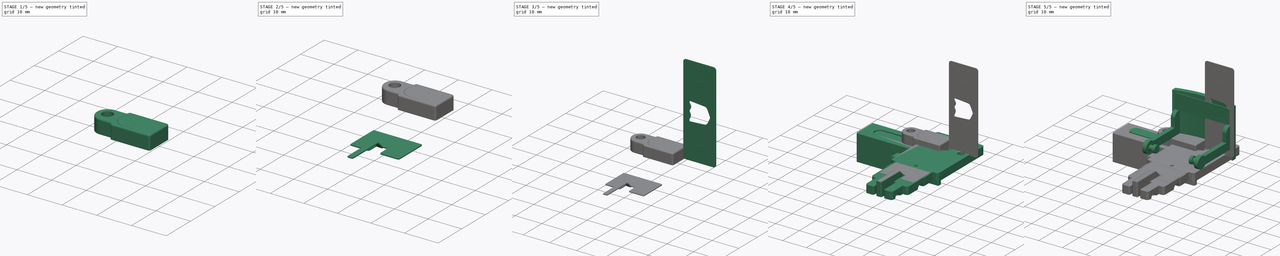
[diagram: build sequence overview — one tinted view per stage of 5, left to right]
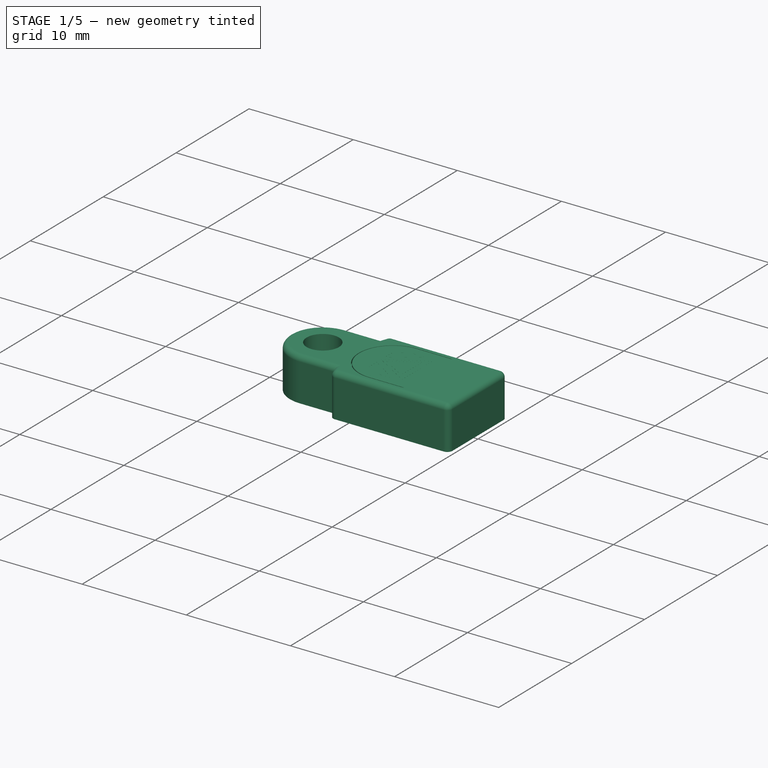
[diagram: stage 1 of 5 — iso view after this stage's code; geometry added in this stage tinted green]
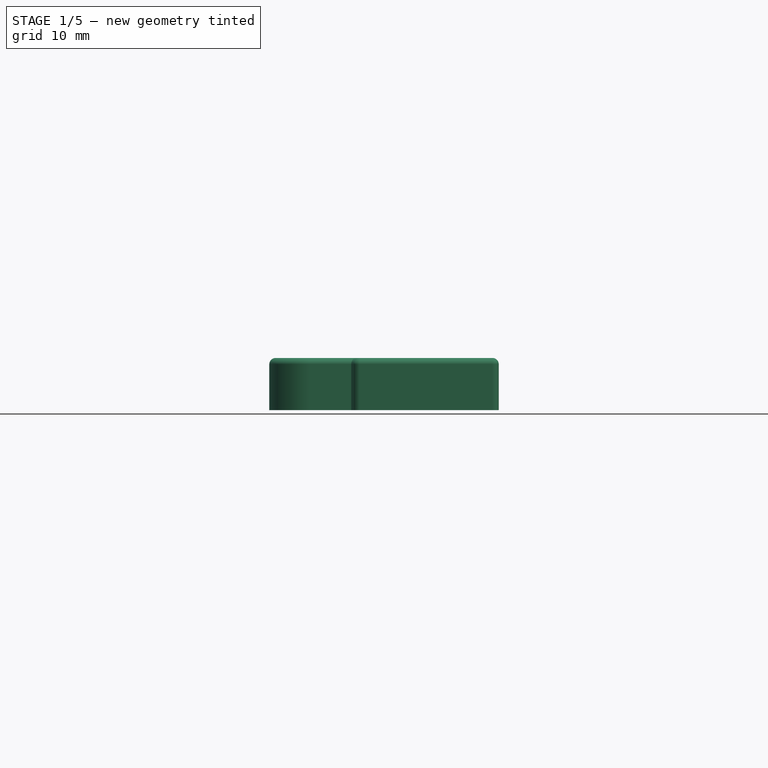
[diagram: stage 1 of 5 — front view after this stage's code; geometry added in this stage tinted green]
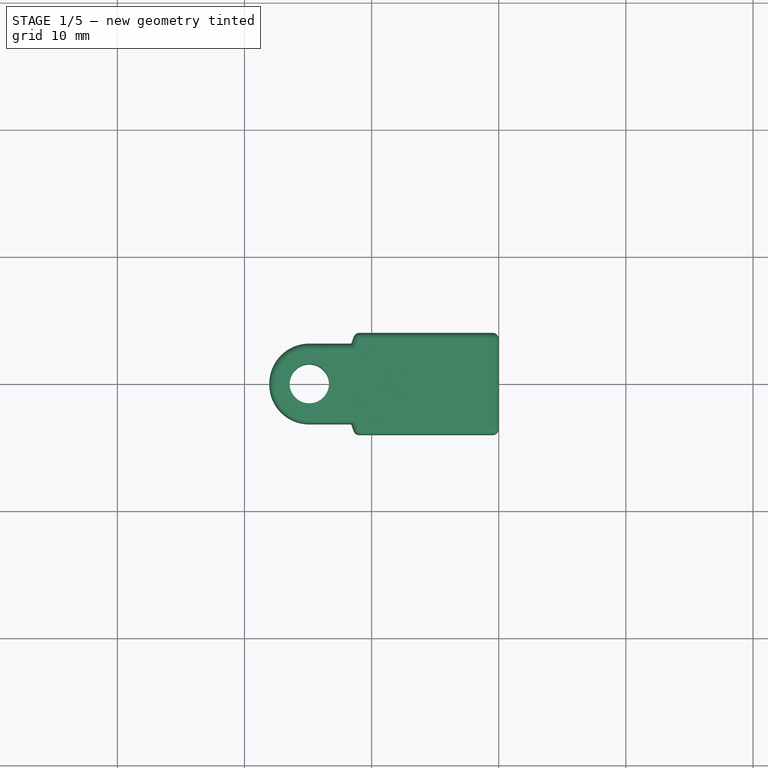
[diagram: stage 1 of 5 — top view after this stage's code; geometry added in this stage tinted green]
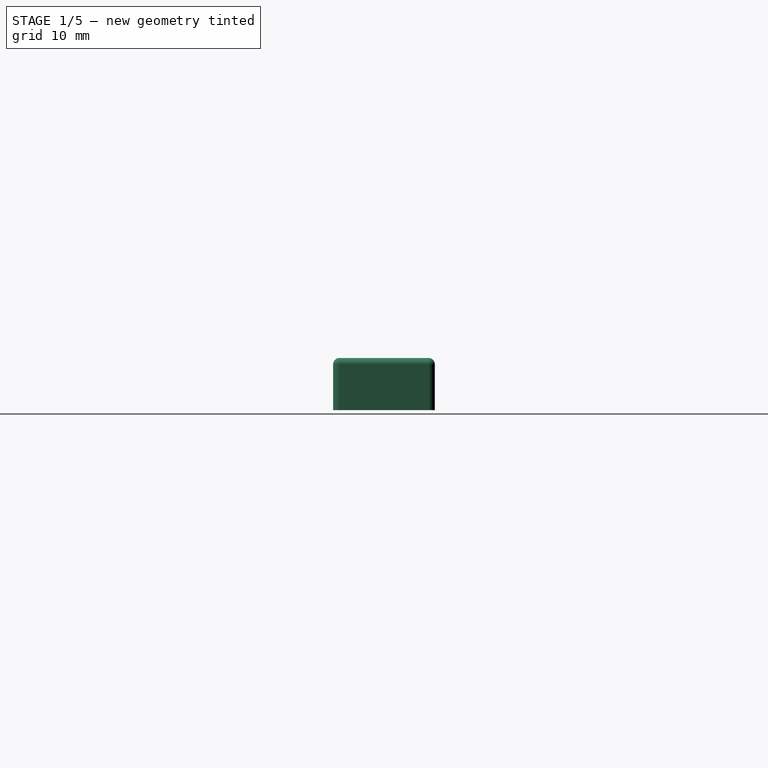
[diagram: stage 1 of 5 — right view after this stage's code; geometry added in this stage tinted green]
FCSTD DOCUMENT  (FreeCAD 1.0R39319 (Git))
Label: Stickered_Parts
License: All rights reserved
LicenseURL: https://en.wikipedia.org/wiki/All_rights_reserved
objects: Sketcher::SketchObject×33, PartDesign::Pocket×27, PartDesign::Body×15, PartDesign::Pad×9, Part::Feature×7, Image::ImagePlane×7, PartDesign::FeatureBase×7, PartDesign::SubShapeBinder×7, PartDesign::Fillet×1
note: 220 computed .brp shape members not serialized (recipe doc carries the construction recipe); baked Part::Feature solids carry a one-line shape summary decoded from their .brp

FEATURE [PartDesign::Body] Body010  label="Sticker5B"
  AllowCompound = false
  Group = -> [Binder004,Sketch022,Pad005,Sketch023,Pocket019,Sketch025,Pocket021]
  Origin = -> Origin010
  Tip = -> Pocket021
FEATURE [Part::Feature] Part__Feature005  label="Left_Bicept"
  shape: bbox 9.582 x 8.165 x 4 mm, 24 faces (baked)
FEATURE [PartDesign::FeatureBase] BaseFeature005
  BaseFeature = -> Part__Feature005
  Suppressed = false
FEATURE [PartDesign::Body] Body011  label="Bicept_Stickered"
  AllowCompound = false
  BaseFeature = -> Part__Feature005
  Group = -> [BaseFeature005,Sketch026,Pocket022]
  Origin = -> Origin011
  Tip = -> Pocket022
FEATURE [PartDesign::SubShapeBinder] Binder005
  BindCopyOnChange = 0
  BindMode = 2
  ClaimChildren = false
  Context = -> Body012 [Binder005.]
  Fuse = false
  MakeFace = true
  OffsetFill = false
  OffsetIntersection = false
  OffsetJoinType = 0
  OffsetOpenResult = false
  PartialLoad = false
  Refine = true
  Relative = true
  _Version = 2
FEATURE [Sketcher::SketchObject] Sketch027
  ArcFitTolerance = 1e-06
  AttachmentSupport = -> [Binder005]
  ExternalGeometry = -> [Binder005]
  FullyConstrained = true
  MakeInternals = false
  MapMode = 5
  Placement = pos=(0,0,3.7) rot=(0,0,1;0rad)
  sketch-geometry (12):
    g0: LineSegment StartX=-7.43 StartY=2.8 StartZ=0 EndX=-7.43 EndY=-2.8 EndZ=0
    g1: LineSegment StartX=-7 StartY=-3.23 StartZ=0 EndX=-3.9 EndY=-3.23 EndZ=0
    g2: LineSegment StartX=-7 StartY=3.23 StartZ=0 EndX=-3.9 EndY=3.23 EndZ=0
    g3: ArcOfCircle CenterX=-7 CenterY=2.8 CenterZ=0 NormalX=0 NormalY=0 NormalZ=1 AngleXU=0 Radius=0.43 StartAngle=1.5708 EndAngle=3.14159
    g4: ArcOfCircle CenterX=-3.9 CenterY=1e-16 CenterZ=0 NormalX=0 NormalY=0 NormalZ=1 AngleXU=0 Radius=3.23 StartAngle=4.71239 EndAngle=7.85398
    g5: ArcOfCircle CenterX=-7 CenterY=-2.8 CenterZ=0 NormalX=0 NormalY=0 NormalZ=1 AngleXU=0 Radius=0.43 StartAngle=3.14159 EndAngle=4.71239
    g6: LineSegment [constr] StartX=-3.9 StartY=-3.23 StartZ=0 EndX=-3.9 EndY=-3.3 EndZ=0
    g7: LineSegment [constr] StartX=-7 StartY=-3.23 StartZ=0 EndX=-7 EndY=-3.3 EndZ=0
    g8: LineSegment [constr] StartX=-7.43 StartY=-2.8 StartZ=0 EndX=-7.5 EndY=-2.8 EndZ=0
    g9: LineSegment [constr] StartX=-7.43 StartY=2.8 StartZ=0 EndX=-7.5 EndY=2.8 EndZ=0
    g10: LineSegment [constr] StartX=-7 StartY=3.23 StartZ=0 EndX=-7 EndY=3.3 EndZ=0
    g11: LineSegment [constr] StartX=-3.9 StartY=3.3 StartZ=0 EndX=-3.9 EndY=3.23 EndZ=0
  constraints (30):
    c: Vertical(g0)
    c: Horizontal(g1)
    c: Horizontal(g2)
    c: Coincident(g3,g2)
    c: Coincident(g3,g0)
    c: Coincident(g4,g2)
    c: Coincident(g4,g1)
    c: Coincident(g5,g1)
    c: Coincident(g5,g0)
    c: Coincident(g5,g-7)
    c: Coincident(g3,g-4)
    c: Coincident(g4,g-6)
    c: Coincident(g6,g1)
    c: Coincident(g6,g-8)
    c: Coincident(g7,g1)
    c: Coincident(g7,g-8)
    c: Coincident(g8,g0)
    c: Coincident(g8,g-7)
    c: Coincident(g9,g0)
    c: Coincident(g9,g-5)
    c: Coincident(g10,g2)
    c: Coincident(g10,g-4)
    c: Coincident(g11,g-6)
    c: Coincident(g11,g2)
    c: Vertical(g11)
    c: Vertical(g10)
    c: Vertical(g7)
    c: Vertical(g6)
    c: Horizontal(g8)
    c: DistanceY(g10,g10) = 0.07
FEATURE [PartDesign::Pad] Pad006
  Direction = (0,0,1)
  Length = 0.3
  Length2 = 10
  Profile = -> Sketch027
  ReferenceAxis = -> Sketch027 [N_Axis]
  Refine = true
  Suppressed = false
  Type = 0
FEATURE [Sketcher::SketchObject] Sketch028
  ArcFitTolerance = 1e-06
  AttachmentSupport = -> [Pad006]
  FullyConstrained = false
  MakeInternals = false
  MapMode = 5
  Placement = pos=(0,0,4) rot=(0,0,1;0rad)
  sketch-geometry (8):
    g0: Circle CenterX=-3.65811 CenterY=0 CenterZ=0 NormalX=0 NormalY=0 NormalZ=1 AngleXU=0 Radius=1.17208
    g1: Circle CenterX=-3.65811 CenterY=0 CenterZ=0 NormalX=0 NormalY=0 NormalZ=1 AngleXU=0 Radius=1.41688
    g2: Circle CenterX=-3.65811 CenterY=0 CenterZ=0 NormalX=0 NormalY=0 NormalZ=1 AngleXU=0 Radius=1.81682
    g3: Circle CenterX=-3.65811 CenterY=0 CenterZ=0 NormalX=0 NormalY=0 NormalZ=1 AngleXU=0 Radius=2.03945
    g4: Circle CenterX=-3.65811 CenterY=0 CenterZ=0 NormalX=0 NormalY=0 NormalZ=1 AngleXU=0 Radius=2.04134
    g5: Circle CenterX=-3.65811 CenterY=0 CenterZ=0 NormalX=0 NormalY=0 NormalZ=1 AngleXU=0 Radius=1.8187
    g6: Circle CenterX=-3.65811 CenterY=0 CenterZ=0 NormalX=0 NormalY=0 NormalZ=1 AngleXU=0 Radius=1.41876
    g7: Circle CenterX=-3.65811 CenterY=0 CenterZ=0 NormalX=0 NormalY=0 NormalZ=1 AngleXU=0 Radius=1.17397
  constraints (4):
    c: PointOnObject(g0,g-1)
    c: Coincident(g1,g0)
    c: Coincident(g2,g0)
    c: Coincident(g3,g0)
FEATURE [PartDesign::Pocket] Pocket023
  BaseFeature = -> Pad006
  Direction = (0,0,-1)
  Length = 0.15
  Length2 = 5
  Profile = -> Sketch028
  ReferenceAxis = -> Sketch028 [N_Axis]
  Refine = true
  Suppressed = false
  Type = 0
FEATURE [Sketcher::SketchObject] Sketch029
  ArcFitTolerance = 1e-06
  AttachmentSupport = -> [Pocket023]
  ExternalGeometry = -> [Pocket023]
  FullyConstrained = false
  MakeInternals = false
  MapMode = 5
  Placement = pos=(0,0,4) rot=(0,0,1;0rad)
  sketch-geometry (81):
    g0: ArcOfCircle CenterX=-5.59288 CenterY=-0.650941 CenterZ=0 NormalX=0 NormalY=0 NormalZ=-1 AngleXU=0.453009 Radius=0.00160765 StartAngle=1.5708 EndAngle=4.71239
    g1: LineSegment StartX=-5.59359 StartY=-0.652386 StartZ=0 EndX=-6.26222 EndY=-0.326916 EndZ=0
    g2: LineSegment StartX=-6.26222 StartY=-0.326916 StartZ=0 EndX=-6.93085 EndY=-0.00144549 EndZ=0
    g3: ArcOfCircle CenterX=-6.93015 CenterY=0 CenterZ=0 NormalX=0 NormalY=0 NormalZ=-1 AngleXU=-2.68858 Radius=0.00160765 StartAngle=1.5708 EndAngle=3.92216
    g4: LineSegment StartX=-5.64999 StartY=0.45054 StartZ=0 EndX=-6.93068 EndY=0.00151711 EndZ=0
    g5: ArcOfCircle CenterX=-5.64945 CenterY=0.449023 CenterZ=0 NormalX=0 NormalY=0 NormalZ=-1 AngleXU=-0.337218 Radius=0.00160765 StartAngle=1.5708 EndAngle=4.71239
    g6: LineSegment StartX=-5.64892 StartY=0.447506 StartZ=0 EndX=-6.92598 EndY=-0.000241675 EndZ=0
    g7: LineSegment StartX=-6.26081 StartY=-0.324025 StartZ=0 EndX=-6.92598 EndY=-0.000241675 EndZ=0
    g8: LineSegment StartX=-5.59218 StartY=-0.649496 StartZ=0 EndX=-6.26081 EndY=-0.324025 EndZ=0
    g9: LineSegment StartX=-2.46174 StartY=1.65295 StartZ=0 EndX=-2.11354 EndY=1.79036 EndZ=0
    g10: LineSegment StartX=-2.11354 StartY=1.79036 StartZ=0 EndX=-1.41714 EndY=2.0652 EndZ=0
    g11: ArcOfCircle CenterX=-1.41773 CenterY=2.0667 CenterZ=0 NormalX=0 NormalY=0 NormalZ=-1 AngleXU=-0.375888 Radius=0.00160765 StartAngle=1.5708 EndAngle=4.71239
    g12: LineSegment StartX=-2.11472 StartY=1.79335 StartZ=0 EndX=-1.41832 EndY=2.06819 EndZ=0
    g13: LineSegment StartX=-2.46292 StartY=1.65594 StartZ=0 EndX=-2.11472 EndY=1.79335 EndZ=0
    g14: ArcOfCircle CenterX=-2.46233 CenterY=1.65444 CenterZ=0 NormalX=0 NormalY=0 NormalZ=-1 AngleXU=2.7657 Radius=0.00160765 StartAngle=1.5708 EndAngle=4.71239
    g15: LineSegment StartX=-1.05646 StartY=1.53253 StartZ=0 EndX=-1.36995 EndY=1.41739 EndZ=0
    g16: LineSegment StartX=-1.36995 StartY=1.41739 StartZ=0 EndX=-1.99692 EndY=1.18712 EndZ=0
    g17: ArcOfCircle CenterX=-1.99637 CenterY=1.18561 CenterZ=0 NormalX=0 NormalY=0 NormalZ=-1 AngleXU=2.78961 Radius=0.00160765 StartAngle=1.5708 EndAngle=4.71239
    g18: LineSegment StartX=-1.36884 StartY=1.41437 StartZ=0 EndX=-1.99581 EndY=1.1841 EndZ=0
    g19: LineSegment StartX=-1.05535 StartY=1.52951 StartZ=0 EndX=-1.36884 EndY=1.41437 EndZ=0
    g20: ArcOfCircle CenterX=-1.0559 CenterY=1.53102 CenterZ=0 NormalX=0 NormalY=0 NormalZ=-1 AngleXU=-0.351985 Radius=0.00160765 StartAngle=1.5708 EndAngle=4.71239
    g21: LineSegment StartX=-0.963052 StartY=1.34457 StartZ=0 EndX=-1.26692 EndY=1.22759 EndZ=0
    g22: LineSegment StartX=-1.26692 StartY=1.22759 StartZ=0 EndX=-1.87467 EndY=0.993638 EndZ=0
    g23: ArcOfCircle CenterX=-1.87409 CenterY=0.992138 CenterZ=0 NormalX=0 NormalY=0 NormalZ=-1 AngleXU=2.77412 Radius=0.00160765 StartAngle=1.5708 EndAngle=4.71239
    g24: LineSegment StartX=-1.26577 StartY=1.22459 StartZ=0 EndX=-1.87351 EndY=0.990638 EndZ=0
    g25: LineSegment StartX=-0.961897 StartY=1.34157 StartZ=0 EndX=-1.26577 EndY=1.22459 EndZ=0
    g26: ArcOfCircle CenterX=-0.962475 CenterY=1.34307 CenterZ=0 NormalX=0 NormalY=0 NormalZ=-1 AngleXU=-0.367473 Radius=0.00160765 StartAngle=1.5708 EndAngle=4.71239
    g27: LineSegment StartX=-1.20523 StartY=-1.78048 StartZ=0 EndX=-1.50151 EndY=-1.62408 EndZ=0
    g28: LineSegment StartX=-1.50151 StartY=-1.62408 StartZ=0 EndX=-2.09407 EndY=-1.31127 EndZ=0
    g29: ArcOfCircle CenterX=-2.09482 CenterY=-1.3127 CenterZ=0 NormalX=0 NormalY=0 NormalZ=-1 AngleXU=-2.65588 Radius=0.00160765 StartAngle=1.5708 EndAngle=4.71239
    g30: LineSegment StartX=-1.50301 StartY=-1.62692 StartZ=0 EndX=-2.09557 EndY=-1.31412 EndZ=0
    g31: LineSegment StartX=-1.20674 StartY=-1.78333 StartZ=0 EndX=-1.50301 EndY=-1.62692 EndZ=0
    g32: ArcOfCircle CenterX=-1.20598 CenterY=-1.7819 CenterZ=0 NormalX=0 NormalY=0 NormalZ=-1 AngleXU=0.485712 Radius=0.00160765 StartAngle=1.5708 EndAngle=4.71239
    g33: LineSegment StartX=-1.35264 StartY=-1.9855 StartZ=0 EndX=-1.65449 EndY=-1.81868 EndZ=0
    g34: LineSegment StartX=-1.65449 StartY=-1.81868 StartZ=0 EndX=-2.2582 EndY=-1.48503 EndZ=0
    g35: ArcOfCircle CenterX=-2.25898 CenterY=-1.48644 CenterZ=0 NormalX=0 NormalY=0 NormalZ=-1 AngleXU=-2.63671 Radius=0.00160765 StartAngle=1.5708 EndAngle=4.71239
    g36: LineSegment StartX=-1.65605 StartY=-1.82149 StartZ=0 EndX=-2.25976 EndY=-1.48784 EndZ=0
    g37: LineSegment StartX=-1.35419 StartY=-1.98832 StartZ=0 EndX=-1.65605 EndY=-1.82149 EndZ=0
    g38: ArcOfCircle CenterX=-1.35342 CenterY=-1.98691 CenterZ=0 NormalX=0 NormalY=0 NormalZ=-1 AngleXU=0.504887 Radius=0.00160765 StartAngle=1.5708 EndAngle=4.71239
    g39: LineSegment StartX=-1.85598 StartY=-2.50009 StartZ=0 EndX=-2.24729 EndY=-2.31374 EndZ=0
    g40: LineSegment StartX=-2.24729 StartY=-2.31374 StartZ=0 EndX=-3.02992 EndY=-1.94105 EndZ=0
    g41: ArcOfCircle CenterX=-3.03061 CenterY=-1.9425 CenterZ=0 NormalX=0 NormalY=0 NormalZ=-1 AngleXU=-2.69716 Radius=0.00160765 StartAngle=1.5708 EndAngle=4.71239
    g42: LineSegment StartX=-2.24867 StartY=-2.31664 StartZ=0 EndX=-3.03131 EndY=-1.94395 EndZ=0
    g43: LineSegment StartX=-1.85736 StartY=-2.50299 StartZ=0 EndX=-2.24867 EndY=-2.31664 EndZ=0
    g44: ArcOfCircle CenterX=-1.85667 CenterY=-2.50154 CenterZ=0 NormalX=0 NormalY=0 NormalZ=-1 AngleXU=0.444428 Radius=0.00160765 StartAngle=1.5708 EndAngle=4.71239
    g45: LineSegment StartX=-2.26471 StartY=-2.78445 StartZ=0 EndX=-2.74439 EndY=-2.5361 EndZ=0
    g46: LineSegment StartX=-2.74439 StartY=-2.5361 StartZ=0 EndX=-3.70376 EndY=-2.03938 EndZ=0
    g47: ArcOfCircle CenterX=-3.7045 CenterY=-2.04081 CenterZ=0 NormalX=0 NormalY=0 NormalZ=-1 AngleXU=-2.66385 Radius=0.00160765 StartAngle=1.5708 EndAngle=4.71239
    g48: LineSegment StartX=-2.74587 StartY=-2.53895 StartZ=0 EndX=-3.70524 EndY=-2.04224 EndZ=0
    g49: LineSegment StartX=-2.26618 StartY=-2.78731 StartZ=0 EndX=-2.74587 EndY=-2.53895 EndZ=0
    g50: ArcOfCircle CenterX=-2.26544 CenterY=-2.78588 CenterZ=0 NormalX=0 NormalY=0 NormalZ=-1 AngleXU=0.477746 Radius=0.00160765 StartAngle=1.5708 EndAngle=4.71239
    g51: LineSegment StartX=-3.15978 StartY=-3.14274 StartZ=0 EndX=-4.58296 EndY=-2.47566 EndZ=0
    g52: LineSegment StartX=-4.58296 StartY=-2.47566 StartZ=0 EndX=-7.42932 EndY=-1.1415 EndZ=0
    g53: ArcOfCircle CenterX=-7.43 CenterY=-1.14296 CenterZ=0 NormalX=0 NormalY=0 NormalZ=-1 AngleXU=-2.70328 Radius=0.00160765 StartAngle=1.5708 EndAngle=4.71239
    g54: LineSegment StartX=-4.58432 StartY=-2.47857 StartZ=0 EndX=-7.43068 EndY=-1.14441 EndZ=0
    g55: LineSegment StartX=-3.16114 StartY=-3.14565 StartZ=0 EndX=-4.58432 EndY=-2.47857 EndZ=0
    g56: ArcOfCircle CenterX=-3.16046 CenterY=-3.1442 CenterZ=0 NormalX=0 NormalY=0 NormalZ=-1 AngleXU=0.438316 Radius=0.00160765 StartAngle=1.5708 EndAngle=4.71239
    g57: LineSegment StartX=-5.1977 StartY=-1.33818 StartZ=0 EndX=-5.94157 EndY=-0.987036 EndZ=0
    g58: LineSegment StartX=-5.94157 StartY=-0.987036 StartZ=0 EndX=-7.42931 EndY=-0.284746 EndZ=0
    g59: ArcOfCircle CenterX=-7.43 CenterY=-0.2862 CenterZ=0 NormalX=0 NormalY=0 NormalZ=-1 AngleXU=-2.70055 Radius=0.00160765 StartAngle=1.5708 EndAngle=4.71239
    g60: LineSegment StartX=-5.94294 StartY=-0.989944 StartZ=0 EndX=-7.43069 EndY=-0.287654 EndZ=0
    g61: LineSegment StartX=-5.19907 StartY=-1.34109 StartZ=0 EndX=-5.94294 EndY=-0.989944 EndZ=0
    g62: ArcOfCircle CenterX=-5.19839 CenterY=-1.33964 CenterZ=0 NormalX=0 NormalY=0 NormalZ=-1 AngleXU=0.441039 Radius=0.00160765 StartAngle=1.5708 EndAngle=4.71239
    g63: LineSegment StartX=-5.42617 StartY=1.02279 StartZ=0 EndX=-6.0943 EndY=0.776875 EndZ=0
    g64: LineSegment StartX=-6.0943 StartY=0.776875 StartZ=0 EndX=-7.43056 EndY=0.285055 EndZ=0
    g65: ArcOfCircle CenterX=-7.43 CenterY=0.283546 CenterZ=0 NormalX=0 NormalY=0 NormalZ=-1 AngleXU=2.78892 Radius=0.00160765 StartAngle=1.5708 EndAngle=4.71239
    g66: LineSegment StartX=-6.09319 StartY=0.773858 StartZ=0 EndX=-7.42944 EndY=0.282037 EndZ=0
    g67: LineSegment StartX=-5.42506 StartY=1.01977 StartZ=0 EndX=-6.09319 EndY=0.773858 EndZ=0
    g68: ArcOfCircle CenterX=-5.42561 CenterY=1.02128 CenterZ=0 NormalX=0 NormalY=0 NormalZ=-1 AngleXU=-0.352671 Radius=0.00160765 StartAngle=1.5708 EndAngle=4.71239
    g69: LineSegment StartX=-7.42945 StartY=1.2973 StartZ=0 EndX=-5.85548 EndY=1.86504 EndZ=0
    g70: LineSegment StartX=-5.85548 StartY=1.86504 StartZ=0 EndX=-2.70752 EndY=3.00052 EndZ=0
    g71: ArcOfCircle CenterX=-2.70806 CenterY=3.00203 CenterZ=0 NormalX=0 NormalY=0 NormalZ=-1 AngleXU=-0.346178 Radius=0.00160765 StartAngle=1.5708 EndAngle=4.71239
    g72: LineSegment StartX=-5.85657 StartY=1.86807 StartZ=0 EndX=-2.70861 EndY=3.00354 EndZ=0
    g73: LineSegment StartX=-7.43055 StartY=1.30033 StartZ=0 EndX=-5.85657 EndY=1.86807 EndZ=0
    g74: ArcOfCircle CenterX=-7.43 CenterY=1.29882 CenterZ=0 NormalX=0 NormalY=0 NormalZ=-1 AngleXU=2.79542 Radius=0.00160765 StartAngle=1.5708 EndAngle=4.71239
    g75: ArcOfCircle CenterX=-1.74229 CenterY=2.40358 CenterZ=0 NormalX=0 NormalY=0 NormalZ=-1 AngleXU=-0.354096 Radius=0.00160765 StartAngle=1.5708 EndAngle=4.71239
    g76: LineSegment StartX=-2.58613 StartY=2.08992 StartZ=0 EndX=-1.74173 EndY=2.40207 EndZ=0
    g77: LineSegment StartX=-3.00833 StartY=1.93384 StartZ=0 EndX=-2.58613 EndY=2.08992 EndZ=0
    g78: ArcOfCircle CenterX=-3.00889 CenterY=1.93535 CenterZ=0 NormalX=0 NormalY=0 NormalZ=-1 AngleXU=2.7875 Radius=0.00160765 StartAngle=1.5708 EndAngle=4.71239
    g79: LineSegment StartX=-3.00945 StartY=1.93686 StartZ=0 EndX=-2.58725 EndY=2.09293 EndZ=0
    g80: LineSegment StartX=-2.58725 StartY=2.09293 StartZ=0 EndX=-1.74285 EndY=2.40509 EndZ=0
  constraints (81):
    c: Tangent(g0,g1) = 1.5708
    c: Tangent(g0,g8) = -1.5708
    c: Coincident(g1,g2)
    c: Tangent(g2,g3) = 1.5708
    c: Tangent(g3,g4) = -1.5708
    c: Tangent(g4,g5) = -1.5708
    c: Tangent(g5,g6) = 1.5708
    c: Coincident(g6,g7)
    c: Coincident(g7,g8)
    c: Coincident(g9,g10)
    c: Tangent(g9,g14) = -1.5708
    c: Tangent(g10,g11) = -1.5708
    c: Tangent(g11,g12) = 1.5708
    c: Coincident(g12,g13)
    c: Tangent(g13,g14) = 1.5708
    c: Coincident(g15,g16)
    c: Tangent(g15,g20) = -1.5708
    c: Tangent(g16,g17) = -1.5708
    c: Tangent(g17,g18) = 1.5708
    c: Coincident(g18,g19)
    c: Tangent(g19,g20) = 1.5708
    c: Coincident(g21,g22)
    c: Tangent(g21,g26) = -1.5708
    c: Tangent(g22,g23) = -1.5708
    c: Tangent(g23,g24) = 1.5708
    c: Coincident(g24,g25)
    c: Tangent(g25,g26) = 1.5708
    c: Coincident(g27,g28)
    c: Tangent(g27,g32) = -1.5708
    c: Tangent(g28,g29) = -1.5708
    c: Tangent(g29,g30) = 1.5708
    c: Coincident(g30,g31)
    c: Tangent(g31,g32) = 1.5708
    c: Coincident(g33,g34)
    c: Tangent(g33,g38) = -1.5708
    c: Tangent(g34,g35) = -1.5708
    c: Tangent(g35,g36) = 1.5708
    c: Coincident(g36,g37)
    c: Tangent(g37,g38) = 1.5708
    c: Coincident(g39,g40)
    c: Tangent(g39,g44) = -1.5708
    c: Tangent(g40,g41) = -1.5708
    c: Tangent(g41,g42) = 1.5708
    c: Coincident(g42,g43)
    c: Tangent(g43,g44) = 1.5708
    c: Coincident(g45,g46)
    c: Tangent(g45,g50) = -1.5708
    c: Tangent(g46,g47) = -1.5708
    c: Tangent(g47,g48) = 1.5708
    c: Coincident(g48,g49)
    c: Tangent(g49,g50) = 1.5708
    c: Coincident(g51,g52)
    c: Tangent(g51,g56) = -1.5708
    c: Tangent(g52,g53) = -1.5708
    c: Tangent(g53,g54) = 1.5708
    c: Coincident(g54,g55)
    c: Tangent(g55,g56) = 1.5708
    c: Coincident(g57,g58)
    c: Tangent(g57,g62) = -1.5708
    c: Tangent(g58,g59) = -1.5708
    c: Tangent(g59,g60) = 1.5708
    c: Coincident(g60,g61)
    c: Tangent(g61,g62) = 1.5708
    c: Coincident(g63,g64)
    c: Tangent(g63,g68) = -1.5708
    c: Tangent(g64,g65) = -1.5708
    c: Tangent(g65,g66) = 1.5708
    c: Coincident(g66,g67)
    c: Tangent(g67,g68) = 1.5708
    c: Coincident(g69,g70)
    c: Tangent(g69,g74) = -1.5708
    c: Tangent(g70,g71) = -1.5708
    c: Tangent(g71,g72) = 1.5708
    c: Coincident(g72,g73)
    c: Tangent(g73,g74) = 1.5708
    c: Tangent(g75,g76) = -1.5708
    c: Tangent(g75,g80) = 1.5708
    c: Coincident(g76,g77)
    c: Tangent(g77,g78) = -1.5708
    c: Tangent(g78,g79) = 1.5708
    c: Coincident(g79,g80)
FEATURE [PartDesign::Pocket] Pocket024
  BaseFeature = -> Pocket023
  Direction = (0,0,-1)
  Length = 0.15
  Length2 = 5
  Profile = -> Sketch029
  ReferenceAxis = -> Sketch029 [N_Axis]
  Refine = true
  Suppressed = false
  Type = 0
FEATURE [PartDesign::Body] Body012  label="Sticker6"
  AllowCompound = false
  Group = -> [Binder005,Sketch027,Pad006,Sketch028,Pocket023,Sketch029,Pocket024]
  Origin = -> Origin012
  Placement = pos=(-12.05,0,0.1) rot=(0,0,1;3.14159rad)
  Tip = -> Pocket024
FEATURE [Part::Feature] Part__Feature006  label="Left_Forearm"
  shape: bbox 18.31 x 8 x 4.1 mm, 38 faces (baked)
FEATURE [Image::ImagePlane] Sticker3  label="S7"
  Placement = pos=(-6,0.2,0) rot=(0,0,-1;1.5708rad)
  XSize = 7.2263
  YSize = 10.1114
FEATURE [PartDesign::FeatureBase] BaseFeature006
  BaseFeature = -> Part__Feature006
  Suppressed = false
FEATURE [Sketcher::SketchObject] Sketch030
  ArcFitTolerance = 1e-06
  AttachmentSupport = -> [BaseFeature006]
  ExternalGeometry = -> [BaseFeature006]
  FullyConstrained = true
  MakeInternals = false
  MapMode = 5
  Placement = pos=(0,0,4.1) rot=(0,0,1;0rad)
  sketch-geometry (10):
    g0: LineSegment StartX=-8.15 StartY=3.3 StartZ=0 EndX=-5.05 EndY=3.3 EndZ=0
    g1: LineSegment StartX=-4.55 StartY=2.8 StartZ=0 EndX=-4.55 EndY=-2.8 EndZ=0
    g2: LineSegment StartX=-5.05 StartY=-3.3 StartZ=0 EndX=-8.15 EndY=-3.3 EndZ=0
    g3: ArcOfCircle CenterX=-8.15 CenterY=1e-16 CenterZ=0 NormalX=0 NormalY=0 NormalZ=1 AngleXU=0 Radius=3.3 StartAngle=1.5708 EndAngle=4.71239
    g4: LineSegment [constr] StartX=-8.15 StartY=3.3 StartZ=0 EndX=-8.15 EndY=0 EndZ=0
    g5: LineSegment [constr] StartX=-8.15 StartY=1e-16 StartZ=0 EndX=-8.15 EndY=-3.3 EndZ=0
    g6: ArcOfCircle CenterX=-5.05 CenterY=-2.8 CenterZ=0 NormalX=0 NormalY=0 NormalZ=1 AngleXU=0 Radius=0.5 StartAngle=4.71239 EndAngle=6.28319
    g7: GeomPoint [constr] X=-4.55 Y=-3.3 Z=0
    g8: ArcOfCircle CenterX=-5.05 CenterY=2.8 CenterZ=0 NormalX=0 NormalY=0 NormalZ=1 AngleXU=0 Radius=0.5 StartAngle=0 EndAngle=1.5708
    g9: GeomPoint [constr] X=-4.55 Y=3.3 Z=0
  constraints (25):
    c: Horizontal(g0)
    c: Vertical(g1)
    c: Horizontal(g2)
    c: Coincident(g3,g2)
    c: Coincident(g3,g0)
    c: Coincident(g4,g0)
    c: Coincident(g4,g3)
    c: Coincident(g5,g3)
    c: Coincident(g5,g2)
    c: Vertical(g4)
    c: Vertical(g5)
    c: PointOnObject(g7,g1)
    c: PointOnObject(g7,g2)
    c: Tangent(g1,g6) = 1.5708
    c: Tangent(g2,g6) = 1.5708
    c: PointOnObject(g9,g0)
    c: PointOnObject(g9,g1)
    c: Tangent(g0,g8) = 1.5708
    c: Tangent(g1,g8) = 1.5708
    c: Radius(g8) = 0.5
    c: Radius(g6) = 0.5
    c: DistanceY(g-5,g2) = 0.2
    c: DistanceY(g0,g-4) = 0.2
    c: DistanceX(g1,g-4) = 4.05
    c: DistanceX(g0,g0) = 3.1
FEATURE [PartDesign::Pocket] Pocket025
  BaseFeature = -> BaseFeature006
  Direction = (0,0,-1)
  Length = 0.3
  Length2 = 5
  Profile = -> Sketch030
  ReferenceAxis = -> Sketch030 [N_Axis]
  Refine = true
  Suppressed = false
  Type = 0
FEATURE [PartDesign::Body] Body013  label="Forearm_Stickered"
  AllowCompound = false
  BaseFeature = -> Part__Feature006
  Group = -> [BaseFeature006,Sketch030,Pocket025]
  Origin = -> Origin013
  Tip = -> Pocket025
FEATURE [PartDesign::SubShapeBinder] Binder006
  BindCopyOnChange = 0
  BindMode = 2
  ClaimChildren = false
  Context = -> Body014 [Binder006.]
  Fuse = false
  MakeFace = true
  OffsetFill = false
  OffsetIntersection = false
  OffsetJoinType = 0
  OffsetOpenResult = false
  PartialLoad = false
  Refine = true
  Relative = true
  _Version = 2
FEATURE [Sketcher::SketchObject] Sketch031
  ArcFitTolerance = 1e-06
  AttachmentSupport = -> [Binder006]
  ExternalGeometry = -> [Binder006]
  FullyConstrained = true
  MakeInternals = false
  MapMode = 5
  Placement = pos=(0,0,3.8) rot=(0,0,1;0rad)
  sketch-geometry (6):
    g0: LineSegment StartX=-5.12 StartY=3.23 StartZ=0 EndX=-8.15 EndY=3.23 EndZ=0
    g1: LineSegment StartX=-5.12 StartY=3.23 StartZ=0 EndX=-5.12 EndY=-3.23 EndZ=0
    g2: LineSegment StartX=-5.12 StartY=-3.23 StartZ=0 EndX=-8.15 EndY=-3.23 EndZ=0
    g3: ArcOfCircle CenterX=-8.15 CenterY=1e-16 CenterZ=0 NormalX=0 NormalY=0 NormalZ=1 AngleXU=0 Radius=3.23 StartAngle=1.5708 EndAngle=4.71239
    g4: LineSegment [constr] StartX=-8.15 StartY=3.3 StartZ=0 EndX=-8.15 EndY=3.23 EndZ=0
    g5: LineSegment [constr] StartX=-8.15 StartY=-3.3 StartZ=0 EndX=-8.15 EndY=-3.23 EndZ=0
  constraints (16):
    c: Horizontal(g0)
    c: Coincident(g1,g0)
    c: Vertical(g1)
    c: Coincident(g2,g1)
    c: Horizontal(g2)
    c: Coincident(g3,g2)
    c: Coincident(g3,g0)
    c: Coincident(g4,g-6)
    c: Coincident(g4,g0)
    c: Coincident(g5,g-6)
    c: Coincident(g5,g2)
    c: Coincident(g3,g-6)
    c: Vertical(g4)
    c: Vertical(g5)
    c: DistanceY(g4,g4) = 0.07
    c: DistanceX(g1,g-5) = 0.07
FEATURE [PartDesign::Pad] Pad007
  Direction = (0,0,1)
  Length = 0.3
  Length2 = 10
  Profile = -> Sketch031
  ReferenceAxis = -> Sketch031 [N_Axis]
  Refine = true
  Suppressed = false
  Type = 0
FEATURE [PartDesign::Pad] Pad008
  BaseFeature = -> Pad007
  Direction = (1,0,0)
  Length = 2
  Length2 = 10
  Profile = -> Pad007 [Face4]
  Refine = true
  Suppressed = false
  Type = 0
FEATURE [Sketcher::SketchObject] Sketch032
  ArcFitTolerance = 1e-06
  AttachmentOffset = pos=(-1,0,0) rot=(0,0,1;0rad)
  AttachmentSupport = -> [Pad008]
  FullyConstrained = false
  MakeInternals = false
  MapMode = 5
  Placement = pos=(-1,0,4.1) rot=(0,0,1;0rad)
  sketch-geometry (36):
    g0: LineSegment StartX=-4.81381 StartY=2.06742 StartZ=0 EndX=-4.81381 EndY=-2.11254 EndZ=0
    g1: LineSegment StartX=-4.81381 StartY=-2.11254 StartZ=0 EndX=-8.29396 EndY=0 EndZ=0
    g2: LineSegment StartX=-8.29396 StartY=0 StartZ=0 EndX=-4.81381 EndY=2.06742 EndZ=0
    g3: LineSegment StartX=-5.36846 StartY=1.42028 StartZ=0 EndX=-5.36846 EndY=-1.46225 EndZ=0
    g4: LineSegment StartX=-5.36846 StartY=-1.46225 StartZ=0 EndX=-7.79078 EndY=0 EndZ=0
    g5: LineSegment StartX=-7.79078 StartY=0 StartZ=0 EndX=-5.36846 EndY=1.42028 EndZ=0
    g6: LineSegment StartX=-5.69701 StartY=2.32014 StartZ=0 EndX=-7.22557 EndY=2.32014 EndZ=0
    g7: LineSegment StartX=-7.22557 StartY=2.32014 StartZ=0 EndX=-8.30135 EndY=1.59882 EndZ=0
    g8: LineSegment StartX=-8.30135 StartY=1.59882 StartZ=0 EndX=-8.30135 EndY=0.571915 EndZ=0
    g9: LineSegment StartX=-8.30135 StartY=0.571915 StartZ=0 EndX=-5.69701 EndY=2.32014 EndZ=0
    g10: LineSegment StartX=-8.30919 StartY=-0.584129 StartZ=0 EndX=-8.30919 EndY=-1.66188 EndZ=0
    g11: LineSegment StartX=-8.30919 StartY=-1.66188 StartZ=0 EndX=-7.24225 EndY=-2.33614 EndZ=0
    g12: LineSegment StartX=-7.24225 StartY=-2.33614 StartZ=0 EndX=-5.62857 EndY=-2.33614 EndZ=0
    g13: LineSegment StartX=-5.62857 StartY=-2.33614 StartZ=0 EndX=-8.30919 EndY=-0.584129 EndZ=0
    g14: LineSegment StartX=-5.37224 StartY=1.41368 StartZ=0 EndX=-5.37224 EndY=-1.45555 EndZ=0
    g15: LineSegment StartX=-5.37224 StartY=-1.45555 StartZ=0 EndX=-7.78338 EndY=-4.73637e-05 EndZ=0
    g16: LineSegment StartX=-7.78338 StartY=-4.73637e-05 StartZ=0 EndX=-5.37224 EndY=1.41368 EndZ=0
    g17: LineSegment StartX=-4.8176 StartY=-2.10581 StartZ=0 EndX=-8.28661 EndY=-3.5023e-05 EndZ=0
    g18: LineSegment StartX=-8.28661 StartY=-3.5023e-05 StartZ=0 EndX=-4.8176 EndY=2.06077 EndZ=0
    g19: LineSegment StartX=-4.8176 StartY=2.06077 StartZ=0 EndX=-4.8176 EndY=-2.10581 EndZ=0
    g20: LineSegment StartX=-5.69701 StartY=2.32392 StartZ=0 EndX=-7.22557 EndY=2.32392 EndZ=0
    g21: ArcOfCircle CenterX=-7.22557 CenterY=2.32014 CenterZ=0 NormalX=0 NormalY=0 NormalZ=-1 AngleXU=-0.590658 Radius=0.00378511 StartAngle=1.5708 EndAngle=2.16145
    g22: LineSegment StartX=-7.22768 StartY=2.32328 StartZ=0 EndX=-8.30346 EndY=1.60196 EndZ=0
    g23: ArcOfCircle CenterX=-8.30135 CenterY=1.59882 CenterZ=0 NormalX=0 NormalY=0 NormalZ=-1 AngleXU=-1.5708 Radius=0.00378511 StartAngle=1.5708 EndAngle=2.55094
    g24: LineSegment StartX=-8.30514 StartY=1.59882 StartZ=0 EndX=-8.30514 EndY=0.571915 EndZ=0
    g25: ArcOfCircle CenterX=-8.30135 CenterY=0.571915 CenterZ=0 NormalX=0 NormalY=0 NormalZ=-1 AngleXU=2.55041 Radius=0.00378511 StartAngle=1.5708 EndAngle=3.73278
    g26: LineSegment StartX=-8.29924 StartY=0.568772 StartZ=0 EndX=-5.6949 EndY=2.317 EndZ=0
    g27: ArcOfCircle CenterX=-5.69701 CenterY=2.32014 CenterZ=0 NormalX=0 NormalY=0 NormalZ=-1 AngleXU=0 Radius=0.00378511 StartAngle=1.5708 EndAngle=4.1212
    g28: LineSegment StartX=-8.31297 StartY=-0.584129 StartZ=0 EndX=-8.31297 EndY=-1.66188 EndZ=0
    g29: ArcOfCircle CenterX=-8.30919 CenterY=-1.66188 CenterZ=0 NormalX=0 NormalY=0 NormalZ=-1 AngleXU=-2.57801 Radius=0.00378511 StartAngle=1.5708 EndAngle=2.57801
    g30: LineSegment StartX=-8.31121 StartY=-1.66508 StartZ=0 EndX=-7.24427 EndY=-2.33934 EndZ=0
    g31: ArcOfCircle CenterX=-7.24225 CenterY=-2.33614 CenterZ=0 NormalX=0 NormalY=0 NormalZ=-1 AngleXU=-3.14159 Radius=0.00378511 StartAngle=1.5708 EndAngle=2.13438
    g32: LineSegment StartX=-7.24225 StartY=-2.33993 StartZ=0 EndX=-5.62857 EndY=-2.33993 EndZ=0
    g33: ArcOfCircle CenterX=-5.62857 CenterY=-2.33614 CenterZ=0 NormalX=0 NormalY=0 NormalZ=-1 AngleXU=0.578893 Radius=0.00378511 StartAngle=1.5708 EndAngle=4.1335
    g34: LineSegment StartX=-5.6265 StartY=-2.33297 StartZ=0 EndX=-8.30712 EndY=-0.580961 EndZ=0
    g35: ArcOfCircle CenterX=-8.30919 CenterY=-0.584129 CenterZ=0 NormalX=0 NormalY=0 NormalZ=-1 AngleXU=-1.5708 Radius=0.00378511 StartAngle=1.5708 EndAngle=3.72049
  constraints (44):
    c: Vertical(g0)
    c: Coincident(g1,g0)
    c: PointOnObject(g1,g-1)
    c: Coincident(g2,g1)
    c: Coincident(g2,g0)
    c: Vertical(g3)
    c: Coincident(g4,g3)
    c: PointOnObject(g4,g-1)
    c: Coincident(g5,g4)
    c: Coincident(g5,g3)
    c: Horizontal(g6)
    c: Coincident(g7,g6)
    c: Coincident(g8,g7)
    c: Vertical(g8)
    c: Coincident(g9,g8)
    c: Coincident(g9,g6)
    c: Vertical(g10)
    c: Coincident(g11,g10)
    c: Coincident(g12,g11)
    c: Coincident(g13,g12)
    c: Coincident(g13,g10)
    c: Horizontal(g12)
    c: Coincident(g14,g15)
    c: Coincident(g14,g16)
    c: Coincident(g15,g16)
    c: Coincident(g17,g18)
    c: Coincident(g17,g19)
    c: Coincident(g18,g19)
    c: Tangent(g20,g21) = -1.5708
    c: Tangent(g20,g27) = -1.5708
    c: Tangent(g21,g22) = -1.5708
    c: Tangent(g22,g23) = -1.5708
    c: Tangent(g23,g24) = -1.5708
    c: Tangent(g24,g25) = -1.5708
    c: Tangent(g25,g26) = -1.5708
    c: Tangent(g26,g27) = -1.5708
    c: Tangent(g28,g29) = -1.5708
    c: Tangent(g28,g35) = -1.5708
    c: Tangent(g29,g30) = -1.5708
    c: Tangent(g30,g31) = -1.5708
    c: Tangent(g31,g32) = -1.5708
    c: Tangent(g32,g33) = -1.5708
    c: Tangent(g33,g34) = -1.5708
    c: Tangent(g34,g35) = -1.5708
FEATURE [PartDesign::Pocket] Pocket026
  BaseFeature = -> Pad008
  Direction = (0,0,-1)
  Length = 0.15
  Length2 = 5
  Profile = -> Sketch032
  ReferenceAxis = -> Sketch032 [N_Axis]
  Refine = true
  Suppressed = false
  Type = 0
FEATURE [PartDesign::Body] Body014  label="Sticker7"
  AllowCompound = false
  Group = -> [Binder006,Sketch031,Pad007,Sketch032,Pad008,Pocket026]
  Origin = -> Origin014
  Placement = pos=(-12,0,0) rot=(0,0,1;3.14159rad)
  Tip = -> Pocket026
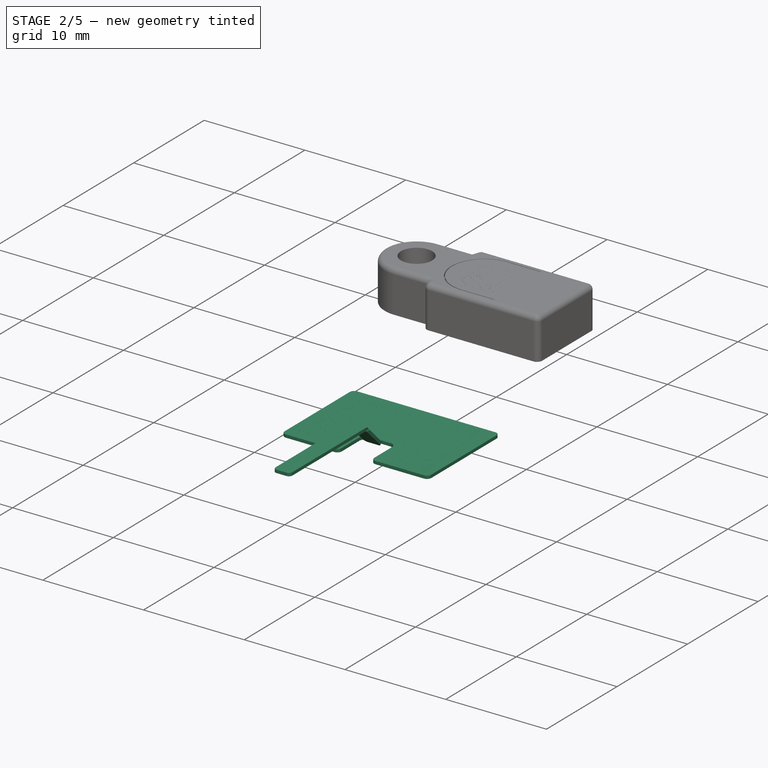
[diagram: stage 2 of 5 — iso view after this stage's code; geometry added in this stage tinted green]
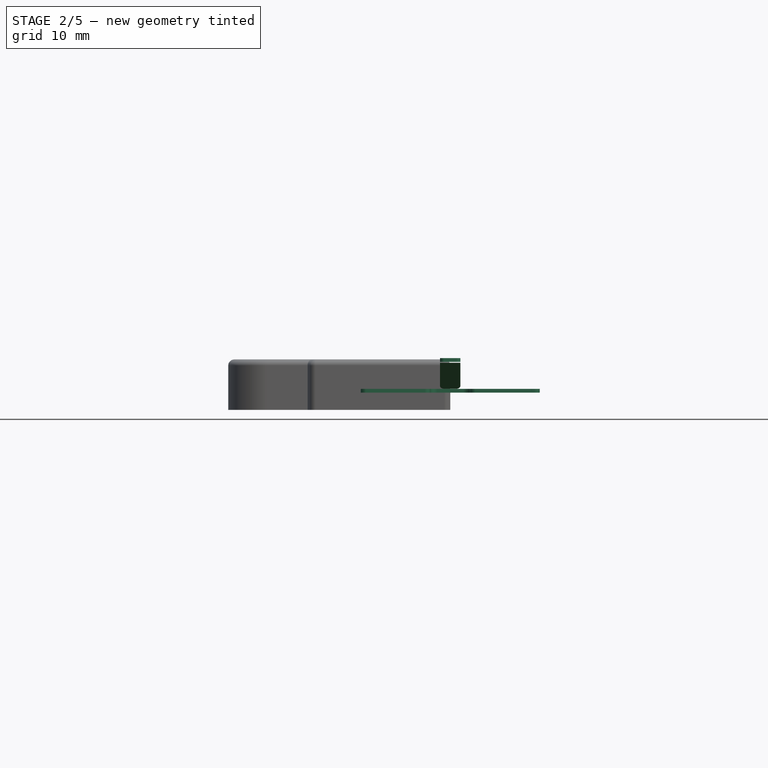
[diagram: stage 2 of 5 — front view after this stage's code; geometry added in this stage tinted green]
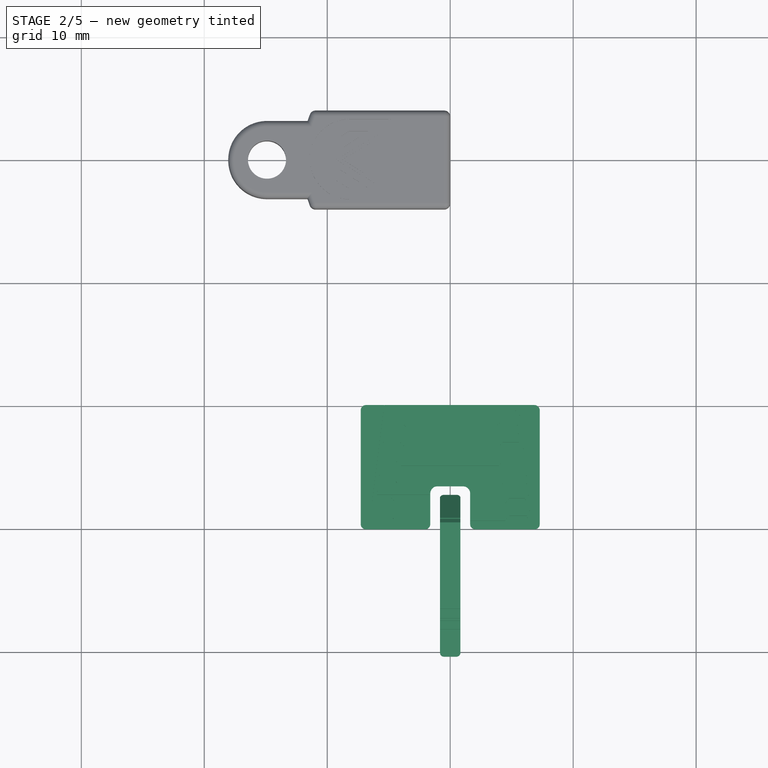
[diagram: stage 2 of 5 — top view after this stage's code; geometry added in this stage tinted green]
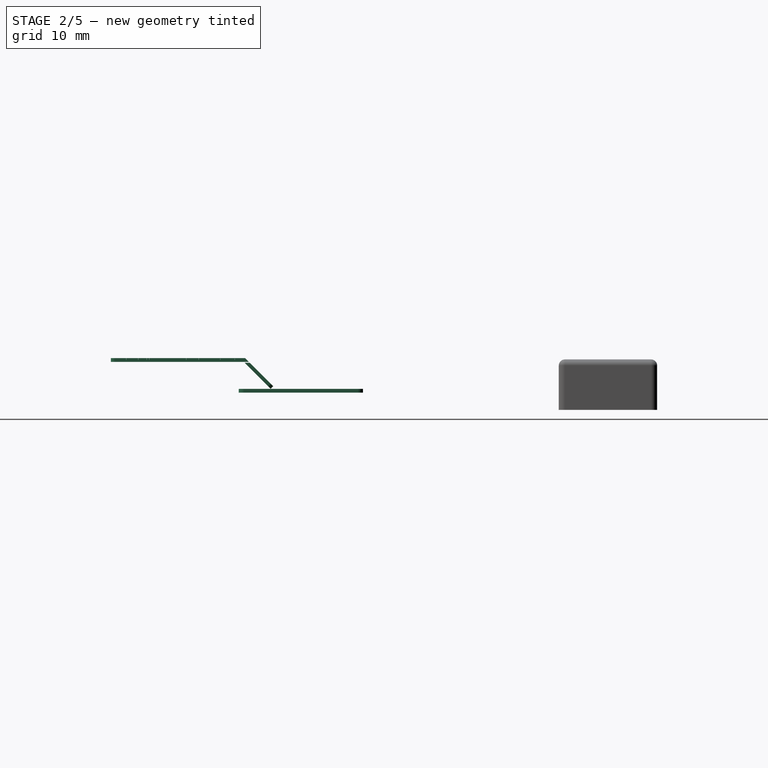
[diagram: stage 2 of 5 — right view after this stage's code; geometry added in this stage tinted green]
FEATURE [PartDesign::Body] Body003  label="Sticker2"
  AllowCompound = false
  Group = -> [Binder,Sketch005,Pad001,Sketch006,Pocket004,Sketch007,Pocket005,Sketch008,Pocket006,Sketch009,Pocket007,Sketch010,Pocket008,Sketch016,Pocket015]
  Origin = -> Origin003
  Tip = -> Pocket015
FEATURE [PartDesign::SubShapeBinder] Binder002
  BindCopyOnChange = 0
  BindMode = 2
  ClaimChildren = false
  Context = -> Body008 [Binder002.]
  Fuse = false
  MakeFace = true
  OffsetFill = false
  OffsetIntersection = false
  OffsetJoinType = 0
  OffsetOpenResult = false
  PartialLoad = false
  Refine = true
  Relative = true
  _Version = 2
FEATURE [Sketcher::SketchObject] Sketch017
  ArcFitTolerance = 1e-06
  AttachmentSupport = -> [Binder002]
  ExternalGeometry = -> [Binder002]
  FullyConstrained = true
  MakeInternals = false
  MapMode = 5
  Placement = pos=(0,0,1.4) rot=(0,0,1;0rad)
  sketch-geometry (32):
    g0: LineSegment StartX=6.85 StartY=-19.92 StartZ=0 EndX=-6.85 EndY=-19.92 EndZ=0
    g1: LineSegment StartX=-7.28 StartY=-20.35 StartZ=0 EndX=-7.28 EndY=-29.6 EndZ=0
    g2: LineSegment StartX=-6.85 StartY=-30.03 StartZ=0 EndX=-2.05 EndY=-30.03 EndZ=0
    g3: LineSegment StartX=-1.62 StartY=-29.6 StartZ=0 EndX=-1.62 EndY=-27.1 EndZ=0
    g4: LineSegment StartX=-1.05 StartY=-26.53 StartZ=0 EndX=1.05 EndY=-26.53 EndZ=0
    g5: LineSegment StartX=1.62 StartY=-27.1 StartZ=0 EndX=1.62 EndY=-29.6 EndZ=0
    g6: LineSegment StartX=2.05 StartY=-30.03 StartZ=0 EndX=6.85 EndY=-30.03 EndZ=0
    g7: LineSegment StartX=7.28 StartY=-29.6 StartZ=0 EndX=7.28 EndY=-20.35 EndZ=0
    g8: ArcOfCircle CenterX=6.85 CenterY=-20.35 CenterZ=0 NormalX=0 NormalY=0 NormalZ=1 AngleXU=0 Radius=0.43 StartAngle=5e-16 EndAngle=1.5708
    g9: ArcOfCircle CenterX=-6.85 CenterY=-20.35 CenterZ=0 NormalX=0 NormalY=0 NormalZ=1 AngleXU=0 Radius=0.43 StartAngle=1.5708 EndAngle=3.14159
    g10: ArcOfCircle CenterX=-6.85 CenterY=-29.6 CenterZ=0 NormalX=0 NormalY=0 NormalZ=1 AngleXU=0 Radius=0.43 StartAngle=3.14159 EndAngle=4.71239
    g11: ArcOfCircle CenterX=-2.05 CenterY=-29.6 CenterZ=0 NormalX=0 NormalY=0 NormalZ=1 AngleXU=0 Radius=0.43 StartAngle=4.71239 EndAngle=6.28319
    g12: ArcOfCircle CenterX=-1.05 CenterY=-27.1 CenterZ=0 NormalX=0 NormalY=0 NormalZ=1 AngleXU=0 Radius=0.57 StartAngle=1.5708 EndAngle=3.14159
    g13: ArcOfCircle CenterX=1.05 CenterY=-27.1 CenterZ=0 NormalX=0 NormalY=0 NormalZ=1 AngleXU=0 Radius=0.57 StartAngle=1.1e-15 EndAngle=1.5708
    g14: ArcOfCircle CenterX=2.05 CenterY=-29.6 CenterZ=0 NormalX=0 NormalY=0 NormalZ=1 AngleXU=0 Radius=0.43 StartAngle=3.14159 EndAngle=4.71239
    g15: ArcOfCircle CenterX=6.85 CenterY=-29.6 CenterZ=0 NormalX=0 NormalY=0 NormalZ=1 AngleXU=0 Radius=0.43 StartAngle=4.71239 EndAngle=6.28319
    g16: LineSegment [constr] StartX=-6.85 StartY=-30.03 StartZ=0 EndX=-6.85 EndY=-30.1 EndZ=0
    g17: LineSegment [constr] StartX=-7.35 StartY=-29.6 StartZ=0 EndX=-7.28 EndY=-29.6 EndZ=0
    g18: LineSegment [constr] StartX=-2.05 StartY=-30.03 StartZ=0 EndX=-2.05 EndY=-30.1 EndZ=0
    g19: LineSegment [constr] StartX=-1.62 StartY=-29.6 StartZ=0 EndX=-1.55 EndY=-29.6 EndZ=0
    g20: LineSegment [constr] StartX=2.05 StartY=-30.03 StartZ=0 EndX=2.05 EndY=-30.1 EndZ=0
    g21: LineSegment [constr] StartX=1.62 StartY=-29.6 StartZ=0 EndX=1.55 EndY=-29.6 EndZ=0
    g22: LineSegment [constr] StartX=-1.55 StartY=-27.1 StartZ=0 EndX=-1.62 EndY=-27.1 EndZ=0
    g23: LineSegment [constr] StartX=-1.05 StartY=-26.6 StartZ=0 EndX=-1.05 EndY=-26.53 EndZ=0
    g24: LineSegment [constr] StartX=1.05 StartY=-26.6 StartZ=0 EndX=1.05 EndY=-26.53 EndZ=0
    g25: LineSegment [constr] StartX=1.55 StartY=-27.1 StartZ=0 EndX=1.62 EndY=-27.1 EndZ=0
    g26: LineSegment [constr] StartX=6.85 StartY=-30.03 StartZ=0 EndX=6.85 EndY=-30.1 EndZ=0
    g27: LineSegment [constr] StartX=7.28 StartY=-29.6 StartZ=0 EndX=7.35 EndY=-29.6 EndZ=0
    g28: LineSegment [constr] StartX=6.85 StartY=-19.92 StartZ=0 EndX=6.85 EndY=-19.85 EndZ=0
    g29: LineSegment [constr] StartX=7.28 StartY=-20.35 StartZ=0 EndX=7.35 EndY=-20.35 EndZ=0
    g30: LineSegment [constr] StartX=-6.85 StartY=-19.92 StartZ=0 EndX=-6.85 EndY=-19.85 EndZ=0
    g31: LineSegment [constr] StartX=-7.28 StartY=-20.35 StartZ=0 EndX=-7.35 EndY=-20.35 EndZ=0
  constraints (80):
    c: Horizontal(g0)
    c: Vertical(g1)
    c: Horizontal(g2)
    c: Vertical(g3)
    c: Horizontal(g4)
    c: Vertical(g5)
    c: Horizontal(g6)
    c: Vertical(g7)
    c: Coincident(g8,g0)
    c: Coincident(g8,g7)
    c: Coincident(g9,g0)
    c: Coincident(g9,g1)
    c: Coincident(g10,g1)
    c: Coincident(g10,g2)
    c: Coincident(g11,g2)
    c: Coincident(g11,g3)
    c: Coincident(g12,g3)
    c: Coincident(g12,g4)
    c: Coincident(g13,g4)
    c: Coincident(g13,g5)
    c: Coincident(g14,g5)
    c: Coincident(g14,g6)
    c: Coincident(g15,g6)
    c: Coincident(g15,g7)
    c: Coincident(g15,g-6)
    c: Coincident(g8,g-4)
    c: Coincident(g9,g-18)
    c: Coincident(g-12,g12)
    c: Coincident(g-11,g13)
    c: Coincident(g14,g-8)
    c: Coincident(g-14,g11)
    c: Coincident(g-16,g10)
    c: Coincident(g16,g2)
    c: Coincident(g16,g-16)
    c: Coincident(g17,g-17)
    c: Coincident(g17,g1)
    c: Horizontal(g17)
    c: Vertical(g16)
    c: DistanceY(g16,g16) = 0.07
    c: Coincident(g18,g2)
    c: Coincident(g18,g-15)
    c: Coincident(g19,g3)
    c: Coincident(g19,g-14)
    c: Horizontal(g19)
    c: Vertical(g18)
    c: Coincident(g20,g6)
    c: Coincident(g20,g-8)
    c: Coincident(g21,g5)
    c: Coincident(g21,g-9)
    c: Horizontal(g21)
    c: Vertical(g20)
    c: Coincident(g22,g-13)
    c: Coincident(g22,g3)
    c: Coincident(g23,g-12)
    c: Coincident(g23,g4)
    c: Coincident(g24,g-11)
    c: Coincident(g24,g4)
    c: Coincident(g25,g-11)
    c: Coincident(g25,g5)
    c: Horizontal(g25)
    c: Vertical(g24)
    c: Vertical(g23)
    c: Horizontal(g22)
    c: Coincident(g26,g6)
    c: Coincident(g26,g-7)
    c: Coincident(g27,g7)
    c: Coincident(g27,g-6)
    c: Vertical(g26)
    c: Horizontal(g27)
    c: Coincident(g28,g0)
    c: Coincident(g28,g-4)
    c: Coincident(g29,g7)
    c: Coincident(g29,g-5)
    c: Horizontal(g29)
    c: Vertical(g28)
    c: Coincident(g30,g0)
    c: Coincident(g30,g-18)
    c: Coincident(g31,g1)
    c: Coincident(g31,g-18)
    c: Horizontal(g31)
FEATURE [PartDesign::Pad] Pad003
  Direction = (0,0,1)
  Length = 0.3
  Length2 = 10
  Profile = -> Sketch017
  ReferenceAxis = -> Sketch017 [N_Axis]
  Refine = true
  Suppressed = false
  Type = 0
FEATURE [Sketcher::SketchObject] Sketch018
  ArcFitTolerance = 1e-06
  AttachmentSupport = -> [Pad003]
  ExternalGeometry = -> [Pad003]
  FullyConstrained = false
  MakeInternals = false
  MapMode = 5
  Placement = pos=(0,0,1.7) rot=(0,0,1;0rad)
  sketch-geometry (166):
    g0: LineSegment StartX=-5.80539 StartY=-25.7759 StartZ=0 EndX=-5.63969 EndY=-24.4628 EndZ=0
    g1: LineSegment StartX=-5.63969 StartY=-24.4628 StartZ=0 EndX=-4.40104 EndY=-24.4628 EndZ=0
    g2: LineSegment StartX=-4.40104 StartY=-24.4628 StartZ=0 EndX=-4.03559 EndY=-24.851 EndZ=0
    g3: LineSegment StartX=-4.03559 StartY=-24.851 StartZ=0 EndX=3.96994 EndY=-24.851 EndZ=0
    g4: LineSegment StartX=3.96994 StartY=-24.851 StartZ=0 EndX=4.32995 EndY=-24.4661 EndZ=0
    g5: LineSegment StartX=4.32995 StartY=-24.4661 StartZ=0 EndX=5.75868 EndY=-24.4661 EndZ=0
    g6: LineSegment StartX=5.75868 StartY=-24.4661 StartZ=0 EndX=5.90911 EndY=-25.7759 EndZ=0
    g7: LineSegment StartX=5.90911 StartY=-25.7759 StartZ=0 EndX=-5.80539 EndY=-25.7759 EndZ=0
    g8: LineSegment StartX=-5.61178 StartY=-24.2358 StartZ=0 EndX=-5.45809 EndY=-22.9162 EndZ=0
    g9: LineSegment StartX=-5.45809 StartY=-22.9162 StartZ=0 EndX=-4.07346 EndY=-22.9162 EndZ=0
    g10: LineSegment StartX=-4.07346 StartY=-22.9162 StartZ=0 EndX=-3.70339 EndY=-23.3215 EndZ=0
    g11: LineSegment StartX=-3.70339 StartY=-23.3215 StartZ=0 EndX=3.9251 EndY=-23.3215 EndZ=0
    g12: LineSegment StartX=3.9251 StartY=-23.3215 StartZ=0 EndX=4.2967 EndY=-22.9297 EndZ=0
    g13: LineSegment StartX=4.2967 StartY=-22.9297 StartZ=0 EndX=5.59647 EndY=-22.9297 EndZ=0
    g14: LineSegment StartX=5.59647 StartY=-22.9297 StartZ=0 EndX=5.73908 EndY=-24.2358 EndZ=0
    g15: LineSegment StartX=5.73908 StartY=-24.2358 StartZ=0 EndX=-5.61178 EndY=-24.2358 EndZ=0
    g16: LineSegment StartX=-5.26396 StartY=-21.3824 StartZ=0 EndX=-5.42643 EndY=-22.689 EndZ=0
    g17: LineSegment StartX=-5.42643 StartY=-22.689 StartZ=0 EndX=5.58347 EndY=-22.689 EndZ=0
    g18: LineSegment StartX=5.58347 StartY=-22.689 StartZ=0 EndX=5.44481 EndY=-21.3781 EndZ=0
    g19: LineSegment StartX=5.44481 StartY=-21.3781 StartZ=0 EndX=4.0186 EndY=-21.3781 EndZ=0
    g20: LineSegment StartX=4.0186 StartY=-21.3781 StartZ=0 EndX=3.65235 EndY=-21.7786 EndZ=0
    g21: LineSegment StartX=3.65235 StartY=-21.7786 StartZ=0 EndX=-3.55866 EndY=-21.7786 EndZ=0
    g22: LineSegment StartX=-3.55866 StartY=-21.7786 StartZ=0 EndX=-3.90875 EndY=-21.3824 EndZ=0
    g23: LineSegment StartX=-3.90875 StartY=-21.3824 StartZ=0 EndX=-5.26396 EndY=-21.3824 EndZ=0
    g24: ArcOfCircle CenterX=5.28095 CenterY=-19.92 CenterZ=0 NormalX=0 NormalY=0 NormalZ=-1 AngleXU=-1.68473 Radius=0.00257145 StartAngle=1.5708 EndAngle=4.71239
    g25: LineSegment StartX=5.42509 StartY=-21.1571 StartZ=0 EndX=5.2835 EndY=-19.9197 EndZ=0
    g26: ArcOfCircle CenterX=5.42254 CenterY=-21.1574 CenterZ=0 NormalX=0 NormalY=0 NormalZ=-1 AngleXU=1.45686 Radius=0.00257145 StartAngle=1.5708 EndAngle=3.25553
    g27: LineSegment StartX=-5.23531 StartY=-21.1599 StartZ=0 EndX=5.42254 EndY=-21.1599 EndZ=0
    g28: ArcOfCircle CenterX=-5.23531 CenterY=-21.1574 CenterZ=0 NormalX=0 NormalY=0 NormalZ=-1 AngleXU=-3.14159 Radius=0.00257145 StartAngle=1.5708 EndAngle=3.25541
    g29: LineSegment StartX=-5.09642 StartY=-19.9197 StartZ=0 EndX=-5.23787 EndY=-21.1571 EndZ=0
    g30: ArcOfCircle CenterX=-5.09387 CenterY=-19.92 CenterZ=0 NormalX=0 NormalY=0 NormalZ=-1 AngleXU=-1.45698 Radius=0.00257145 StartAngle=1.5708 EndAngle=4.71239
    g31: LineSegment StartX=-5.09131 StartY=-19.9203 StartZ=0 EndX=-5.23243 EndY=-21.1548 EndZ=0
    g32: LineSegment StartX=-5.23243 StartY=-21.1548 StartZ=0 EndX=5.41965 EndY=-21.1548 EndZ=0
    g33: LineSegment StartX=5.41965 StartY=-21.1548 StartZ=0 EndX=5.27839 EndY=-19.9203 EndZ=0
    g34: LineSegment StartX=-6.20154 StartY=-26.6603 StartZ=0 EndX=-5.35883 EndY=-19.9203 EndZ=0
    g35: ArcOfCircle CenterX=-5.36138 CenterY=-19.92 CenterZ=0 NormalX=0 NormalY=0 NormalZ=-1 AngleXU=-1.44641 Radius=0.00257145 StartAngle=1.5708 EndAngle=4.71239
    g36: LineSegment StartX=-6.20664 StartY=-26.6597 StartZ=0 EndX=-5.36393 EndY=-19.9197 EndZ=0
    g37: LineSegment StartX=-6.628 StartY=-30.0297 StartZ=0 EndX=-6.20664 EndY=-26.6597 EndZ=0
    g38: ArcOfCircle CenterX=-6.62545 CenterY=-30.03 CenterZ=0 NormalX=0 NormalY=0 NormalZ=-1 AngleXU=1.69518 Radius=0.00257145 StartAngle=1.5708 EndAngle=4.71239
    g39: LineSegment StartX=-6.6229 StartY=-30.0303 StartZ=0 EndX=-6.20154 EndY=-26.6603 EndZ=0
    g40: ArcOfCircle CenterX=6.63474 CenterY=-30.03 CenterZ=0 NormalX=0 NormalY=0 NormalZ=-1 AngleXU=1.46376 Radius=0.00257145 StartAngle=1.5708 EndAngle=4.71239
    g41: LineSegment StartX=5.908 StartY=-23.2903 StartZ=0 EndX=6.63219 EndY=-30.0303 EndZ=0
    g42: LineSegment StartX=5.5459 StartY=-19.9203 StartZ=0 EndX=5.908 EndY=-23.2903 EndZ=0
    g43: ArcOfCircle CenterX=5.54846 CenterY=-19.92 CenterZ=0 NormalX=0 NormalY=0 NormalZ=-1 AngleXU=-1.67783 Radius=0.00257145 StartAngle=1.5708 EndAngle=4.71239
    g44: LineSegment StartX=5.55102 StartY=-19.9197 StartZ=0 EndX=5.91311 EndY=-23.2897 EndZ=0
    g45: LineSegment StartX=5.91311 StartY=-23.2897 StartZ=0 EndX=6.6373 EndY=-30.0297 EndZ=0
    g46: LineSegment StartX=-5.80298 StartY=-25.7738 StartZ=0 EndX=-5.63781 EndY=-24.4649 EndZ=0
    g47: LineSegment StartX=-5.63781 StartY=-24.4649 StartZ=0 EndX=-4.40196 EndY=-24.4649 EndZ=0
    g48: LineSegment StartX=-4.40196 StartY=-24.4649 StartZ=0 EndX=-4.03714 EndY=-24.8525 EndZ=0
    g49: ArcOfCircle CenterX=-4.03559 CenterY=-24.851 CenterZ=0 NormalX=0 NormalY=0 NormalZ=-1 AngleXU=-3.14159 Radius=0.00212476 StartAngle=1.5708 EndAngle=2.38635
    g50: LineSegment StartX=-4.03559 StartY=-24.8531 StartZ=0 EndX=3.96994 EndY=-24.8531 EndZ=0
    g51: ArcOfCircle CenterX=3.96994 CenterY=-24.851 CenterZ=0 NormalX=0 NormalY=0 NormalZ=-1 AngleXU=2.32281 Radius=0.00212476 StartAngle=1.5708 EndAngle=2.38958
    g52: LineSegment StartX=3.97149 StartY=-24.8524 StartZ=0 EndX=4.33087 EndY=-24.4682 EndZ=0
    g53: LineSegment StartX=4.33087 StartY=-24.4682 StartZ=0 EndX=5.75678 EndY=-24.4682 EndZ=0
    g54: LineSegment StartX=5.75678 StartY=-24.4682 StartZ=0 EndX=5.90673 EndY=-25.7738 EndZ=0
    g55: LineSegment StartX=5.90673 StartY=-25.7738 StartZ=0 EndX=-5.80298 EndY=-25.7738 EndZ=0
    g56: LineSegment StartX=-5.6094 StartY=-24.2337 StartZ=0 EndX=-5.4562 EndY=-22.9183 EndZ=0
    g57: LineSegment StartX=-5.4562 StartY=-22.9183 StartZ=0 EndX=-4.0744 EndY=-22.9183 EndZ=0
    g58: LineSegment StartX=-4.0744 StartY=-22.9183 StartZ=0 EndX=-3.70496 EndY=-23.3229 EndZ=0
    g59: ArcOfCircle CenterX=-3.70339 CenterY=-23.3215 CenterZ=0 NormalX=0 NormalY=0 NormalZ=-1 AngleXU=-3.14159 Radius=0.00212476 StartAngle=1.5708 EndAngle=2.40162
    g60: LineSegment StartX=-3.70339 StartY=-23.3236 StartZ=0 EndX=3.9251 EndY=-23.3236 EndZ=0
    g61: ArcOfCircle CenterX=3.9251 CenterY=-23.3215 CenterZ=0 NormalX=0 NormalY=0 NormalZ=-1 AngleXU=2.3298 Radius=0.00212476 StartAngle=1.5708 EndAngle=2.38259
    g62: LineSegment StartX=3.92664 StartY=-23.323 StartZ=0 EndX=4.29761 EndY=-22.9319 EndZ=0
    g63: LineSegment StartX=4.29761 StartY=-22.9319 StartZ=0 EndX=5.59457 EndY=-22.9319 EndZ=0
    g64: LineSegment StartX=5.59457 StartY=-22.9319 StartZ=0 EndX=5.73671 EndY=-24.2337 EndZ=0
    g65: LineSegment StartX=5.73671 StartY=-24.2337 StartZ=0 EndX=-5.6094 EndY=-24.2337 EndZ=0
    g66: LineSegment StartX=4.01703 StartY=-21.3766 StartZ=0 EndX=3.65141 EndY=-21.7765 EndZ=0
    g67: LineSegment StartX=3.65141 StartY=-21.7765 StartZ=0 EndX=-3.55771 EndY=-21.7765 EndZ=0
    g68: LineSegment StartX=-3.55771 StartY=-21.7765 StartZ=0 EndX=-3.90716 EndY=-21.381 EndZ=0
    g69: ArcOfCircle CenterX=-3.90875 CenterY=-21.3824 CenterZ=0 NormalX=0 NormalY=0 NormalZ=-1 AngleXU=0 Radius=0.00212476 StartAngle=1.5708 EndAngle=2.4179
    g70: LineSegment StartX=-3.90875 StartY=-21.3803 StartZ=0 EndX=-5.26396 EndY=-21.3803 EndZ=0
    g71: ArcOfCircle CenterX=-5.26395 CenterY=-21.3824 CenterZ=0 NormalX=0 NormalY=0 NormalZ=-1 AngleXU=-1.44708 Radius=0.00212476 StartAngle=1.5708 EndAngle=3.01788
    g72: LineSegment StartX=-5.26606 StartY=-21.3822 StartZ=0 EndX=-5.42854 EndY=-22.6888 EndZ=0
    g73: ArcOfCircle CenterX=-5.42643 CenterY=-22.689 CenterZ=0 NormalX=0 NormalY=0 NormalZ=-1 AngleXU=-3.14159 Radius=0.00212476 StartAngle=1.5708 EndAngle=3.26531
    g74: LineSegment StartX=-5.42643 StartY=-22.6911 StartZ=0 EndX=5.58347 EndY=-22.6911 EndZ=0
    g75: ArcOfCircle CenterX=5.58347 CenterY=-22.689 CenterZ=0 NormalX=0 NormalY=0 NormalZ=-1 AngleXU=1.46542 Radius=0.00212476 StartAngle=1.5708 EndAngle=3.24697
    g76: LineSegment StartX=5.58558 StartY=-22.6888 StartZ=0 EndX=5.44693 EndY=-21.3778 EndZ=0
    g77: ArcOfCircle CenterX=5.44481 CenterY=-21.3781 CenterZ=0 NormalX=0 NormalY=0 NormalZ=-1 AngleXU=0 Radius=0.00212476 StartAngle=1.5708 EndAngle=3.03622
    g78: LineSegment StartX=5.44481 StartY=-21.3759 StartZ=0 EndX=4.0186 EndY=-21.3759 EndZ=0
    g79: ArcOfCircle CenterX=4.0186 CenterY=-21.3781 CenterZ=0 NormalX=0 NormalY=0 NormalZ=-1 AngleXU=-0.830127 Radius=0.00212476 StartAngle=1.5708 EndAngle=2.40092
    g80: LineSegment StartX=6.05133 StartY=-27.2943 StartZ=0 EndX=5.92699 EndY=-26.0077 EndZ=0
    g81: ArcOfCircle CenterX=5.92487 CenterY=-26.008 CenterZ=0 NormalX=0 NormalY=0 NormalZ=-1 AngleXU=0 Radius=0.00212476 StartAngle=1.5708 EndAngle=3.04525
    g82: LineSegment StartX=5.92487 StartY=-26.0058 StartZ=0 EndX=4.53037 EndY=-26.0058 EndZ=0
    g83: ArcOfCircle CenterX=4.53037 CenterY=-26.008 CenterZ=0 NormalX=0 NormalY=0 NormalZ=-1 AngleXU=-0.827797 Radius=0.00212476 StartAngle=1.5708 EndAngle=2.39859
    g84: LineSegment StartX=4.5288 StartY=-26.0065 StartZ=0 EndX=4.16705 EndY=-26.4003 EndZ=0
    g85: LineSegment StartX=4.16705 StartY=-26.4003 StartZ=0 EndX=-4.19497 EndY=-26.4003 EndZ=0
    g86: LineSegment StartX=-4.19497 StartY=-26.4003 StartZ=0 EndX=-4.54755 EndY=-25.9948 EndZ=0
    g87: ArcOfCircle CenterX=-4.54916 CenterY=-25.9962 CenterZ=0 NormalX=0 NormalY=0 NormalZ=-1 AngleXU=0 Radius=0.00212476 StartAngle=1.5708 EndAngle=2.42595
    g88: LineSegment StartX=-4.54916 StartY=-25.9941 StartZ=0 EndX=-5.83231 EndY=-25.9941 EndZ=0
    g89: ArcOfCircle CenterX=-5.83231 CenterY=-25.9962 CenterZ=0 NormalX=0 NormalY=0 NormalZ=-1 AngleXU=-1.46153 Radius=0.00212476 StartAngle=1.5708 EndAngle=3.03232
    g90: LineSegment StartX=-5.83442 StartY=-25.9959 StartZ=0 EndX=-5.96654 EndY=-27.2002 EndZ=0
    g91: ArcOfCircle CenterX=-5.96443 CenterY=-27.2005 CenterZ=0 NormalX=0 NormalY=0 NormalZ=-1 AngleXU=-3.14159 Radius=0.00212476 StartAngle=1.5708 EndAngle=3.25086
    g92: LineSegment StartX=-5.96443 StartY=-27.2026 StartZ=0 EndX=-1.62 EndY=-27.2026 EndZ=0
    g93: ArcOfCircle CenterX=-1.62 CenterY=-27.2005 CenterZ=0 NormalX=0 NormalY=0 NormalZ=-1 AngleXU=0 Radius=0.00212476 StartAngle=1.5708 EndAngle=4.71239
    g94: LineSegment StartX=-5.96206 StartY=-27.1983 StartZ=0 EndX=-1.62 EndY=-27.1983 EndZ=0
    g95: LineSegment StartX=-5.8304 StartY=-25.9983 StartZ=0 EndX=-5.96206 EndY=-27.1983 EndZ=0
    g96: LineSegment StartX=-4.55012 StartY=-25.9983 StartZ=0 EndX=-5.8304 EndY=-25.9983 EndZ=0
    g97: LineSegment StartX=-4.19755 StartY=-26.4038 StartZ=0 EndX=-4.55012 EndY=-25.9983 EndZ=0
    g98: ArcOfCircle CenterX=-4.19594 CenterY=-26.4025 CenterZ=0 NormalX=0 NormalY=0 NormalZ=-1 AngleXU=-3.14159 Radius=0.00212476 StartAngle=1.5708 EndAngle=2.42595
    g99: LineSegment StartX=4.16798 StartY=-26.4046 StartZ=0 EndX=-4.19594 EndY=-26.4046 EndZ=0
    g100: ArcOfCircle CenterX=4.16798 CenterY=-26.4025 CenterZ=0 NormalX=0 NormalY=0 NormalZ=-1 AngleXU=2.3138 Radius=0.00212476 StartAngle=1.5708 EndAngle=2.39859
    g101: LineSegment StartX=4.5313 StartY=-26.0101 StartZ=0 EndX=4.16955 EndY=-26.4039 EndZ=0
    g102: LineSegment StartX=5.92294 StartY=-26.0101 StartZ=0 EndX=4.5313 EndY=-26.0101 EndZ=0
    g103: LineSegment StartX=6.04687 StartY=-27.2924 StartZ=0 EndX=5.92294 EndY=-26.0101 EndZ=0
    g104: LineSegment StartX=1.62 StartY=-27.2924 StartZ=0 EndX=6.04687 EndY=-27.2924 EndZ=0
    g105: ArcOfCircle CenterX=1.62 CenterY=-27.2945 CenterZ=0 NormalX=0 NormalY=0 NormalZ=-1 AngleXU=-3.14159 Radius=0.00212476 StartAngle=1.5708 EndAngle=4.71239
    g106: LineSegment StartX=1.62 StartY=-27.2966 StartZ=0 EndX=6.04922 EndY=-27.2966 EndZ=0
    g107: ArcOfCircle CenterX=6.04922 CenterY=-27.2945 CenterZ=0 NormalX=0 NormalY=0 NormalZ=-1 AngleXU=1.47445 Radius=0.00212476 StartAngle=1.5708 EndAngle=3.23794
    g108: LineSegment StartX=-4.44123 StartY=-27.8515 StartZ=0 EndX=-1.62 EndY=-27.8515 EndZ=0
    g109: ArcOfCircle CenterX=-1.62 CenterY=-27.8494 CenterZ=0 NormalX=0 NormalY=0 NormalZ=-1 AngleXU=0 Radius=0.00212476 StartAngle=1.5708 EndAngle=4.71239
    g110: LineSegment StartX=-4.44026 StartY=-27.8472 StartZ=0 EndX=-1.62 EndY=-27.8472 EndZ=0
    g111: LineSegment StartX=-4.79711 StartY=-27.4376 StartZ=0 EndX=-4.44026 EndY=-27.8472 EndZ=0
    g112: ArcOfCircle CenterX=-4.79872 CenterY=-27.439 CenterZ=0 NormalX=0 NormalY=0 NormalZ=-1 AngleXU=0 Radius=0.00212476 StartAngle=1.5708 EndAngle=2.42494
    g113: LineSegment StartX=-5.99705 StartY=-27.4369 StartZ=0 EndX=-4.79872 EndY=-27.4369 EndZ=0
    g114: ArcOfCircle CenterX=-5.99705 CenterY=-27.439 CenterZ=0 NormalX=0 NormalY=0 NormalZ=-1 AngleXU=-1.44624 Radius=0.00212476 StartAngle=1.5708 EndAngle=3.01704
    g115: LineSegment StartX=-6.15795 StartY=-28.707 StartZ=0 EndX=-5.99915 EndY=-27.4387 EndZ=0
    g116: ArcOfCircle CenterX=-6.15584 CenterY=-28.7073 CenterZ=0 NormalX=0 NormalY=0 NormalZ=-1 AngleXU=-3.14159 Radius=0.00212476 StartAngle=1.5708 EndAngle=3.26614
    g117: LineSegment StartX=-1.62 StartY=-28.7094 StartZ=0 EndX=-6.15584 EndY=-28.7094 EndZ=0
    g118: ArcOfCircle CenterX=-1.62 CenterY=-28.7073 CenterZ=0 NormalX=0 NormalY=0 NormalZ=-1 AngleXU=0 Radius=0.00212476 StartAngle=1.5708 EndAngle=4.71239
    g119: LineSegment StartX=-1.62 StartY=-28.7052 StartZ=0 EndX=-6.15343 EndY=-28.7052 EndZ=0
    g120: LineSegment StartX=-6.15343 StartY=-28.7052 StartZ=0 EndX=-5.99517 EndY=-27.4411 EndZ=0
    g121: LineSegment StartX=-5.99517 StartY=-27.4411 StartZ=0 EndX=-4.79968 EndY=-27.4411 EndZ=0
    g122: LineSegment StartX=-4.79968 StartY=-27.4411 StartZ=0 EndX=-4.44283 EndY=-27.8508 EndZ=0
    g123: ArcOfCircle CenterX=-4.44123 CenterY=-27.8494 CenterZ=0 NormalX=0 NormalY=0 NormalZ=-1 AngleXU=-3.14159 Radius=0.00212476 StartAngle=1.5708 EndAngle=2.42494
    g124: ArcOfCircle CenterX=4.46543 CenterY=-27.9184 CenterZ=0 NormalX=0 NormalY=0 NormalZ=-1 AngleXU=2.27869 Radius=0.00212476 StartAngle=1.5708 EndAngle=2.4337
    g125: LineSegment StartX=4.81963 StartY=-27.5078 StartZ=0 EndX=4.46705 EndY=-27.9198 EndZ=0
    g126: LineSegment StartX=6.07823 StartY=-27.5078 StartZ=0 EndX=4.81963 EndY=-27.5078 EndZ=0
    g127: LineSegment StartX=6.21515 StartY=-28.7161 StartZ=0 EndX=6.07823 EndY=-27.5078 EndZ=0
    g128: LineSegment StartX=1.62 StartY=-28.7161 StartZ=0 EndX=6.21515 EndY=-28.7161 EndZ=0
    g129: ArcOfCircle CenterX=1.62 CenterY=-28.7182 CenterZ=0 NormalX=0 NormalY=0 NormalZ=-1 AngleXU=-3.14159 Radius=0.00212476 StartAngle=1.5708 EndAngle=4.71239
    g130: LineSegment StartX=1.62 StartY=-28.7203 StartZ=0 EndX=6.21753 EndY=-28.7203 EndZ=0
    g131: ArcOfCircle CenterX=6.21753 CenterY=-28.7182 CenterZ=0 NormalX=0 NormalY=0 NormalZ=-1 AngleXU=1.45796 Radius=0.00212476 StartAngle=1.5708 EndAngle=3.25443
    g132: LineSegment StartX=6.21964 StartY=-28.7179 StartZ=0 EndX=6.08224 EndY=-27.5055 EndZ=0
    g133: ArcOfCircle CenterX=6.08012 CenterY=-27.5057 CenterZ=0 NormalX=0 NormalY=0 NormalZ=-1 AngleXU=0 Radius=0.00212476 StartAngle=1.5708 EndAngle=3.02875
    g134: LineSegment StartX=6.08012 StartY=-27.5036 StartZ=0 EndX=4.81865 EndY=-27.5036 EndZ=0
    g135: ArcOfCircle CenterX=4.81865 CenterY=-27.5057 CenterZ=0 NormalX=0 NormalY=0 NormalZ=-1 AngleXU=-0.8629 Radius=0.00212476 StartAngle=1.5708 EndAngle=2.4337
    g136: LineSegment StartX=4.81703 StartY=-27.5043 StartZ=0 EndX=4.46446 EndY=-27.9163 EndZ=0
    g137: LineSegment StartX=4.46446 StartY=-27.9163 StartZ=0 EndX=1.62 EndY=-27.9163 EndZ=0
    g138: ArcOfCircle CenterX=1.62 CenterY=-27.9184 CenterZ=0 NormalX=0 NormalY=0 NormalZ=-1 AngleXU=-3.14159 Radius=0.00212476 StartAngle=1.5708 EndAngle=4.71239
    g139: LineSegment StartX=4.46543 StartY=-27.9205 StartZ=0 EndX=1.62 EndY=-27.9205 EndZ=0
    g140: ArcOfCircle CenterX=4.45207 CenterY=-29.3373 CenterZ=0 NormalX=0 NormalY=0 NormalZ=-1 AngleXU=2.31674 Radius=0.00212476 StartAngle=1.5708 EndAngle=2.39565
    g141: LineSegment StartX=4.82055 StartY=-28.9417 StartZ=0 EndX=4.45363 EndY=-29.3388 EndZ=0
    g142: LineSegment StartX=6.24008 StartY=-28.9417 StartZ=0 EndX=4.82055 EndY=-28.9417 EndZ=0
    g143: LineSegment StartX=6.34563 StartY=-30.0302 StartZ=0 EndX=6.24008 EndY=-28.9417 EndZ=0
    g144: ArcOfCircle CenterX=6.34775 CenterY=-30.03 CenterZ=0 NormalX=0 NormalY=0 NormalZ=-1 AngleXU=1.47413 Radius=0.00212476 StartAngle=1.5708 EndAngle=4.71239
    g145: LineSegment StartX=6.34986 StartY=-30.0298 StartZ=0 EndX=6.24413 EndY=-28.9394 EndZ=0
    g146: ArcOfCircle CenterX=6.24201 CenterY=-28.9396 CenterZ=0 NormalX=0 NormalY=0 NormalZ=-1 AngleXU=0 Radius=0.00212476 StartAngle=1.5708 EndAngle=3.04493
    g147: LineSegment StartX=6.24201 StartY=-28.9375 StartZ=0 EndX=4.81963 EndY=-28.9375 EndZ=0
    g148: ArcOfCircle CenterX=4.81962 CenterY=-28.9396 CenterZ=0 NormalX=0 NormalY=0 NormalZ=-1 AngleXU=-0.824849 Radius=0.00212476 StartAngle=1.5708 EndAngle=2.39565
    g149: LineSegment StartX=4.81806 StartY=-28.9381 StartZ=0 EndX=4.45114 EndY=-29.3352 EndZ=0
    g150: LineSegment StartX=4.45114 StartY=-29.3352 StartZ=0 EndX=1.6329 EndY=-29.3352 EndZ=0
    g151: ArcOfCircle CenterX=1.6329 CenterY=-29.3373 CenterZ=0 NormalX=0 NormalY=0 NormalZ=-1 AngleXU=-3.14159 Radius=0.00212476 StartAngle=1.5708 EndAngle=4.71239
    g152: LineSegment StartX=4.45207 StartY=-29.3395 StartZ=0 EndX=1.6329 EndY=-29.3395 EndZ=0
    g153: ArcOfCircle CenterX=-4.83981 CenterY=-28.9113 CenterZ=0 NormalX=0 NormalY=0 NormalZ=-1 AngleXU=0 Radius=0.00212476 StartAngle=1.5708 EndAngle=2.42366
    g154: LineSegment StartX=-6.19423 StartY=-28.9091 StartZ=0 EndX=-4.83981 EndY=-28.9091 EndZ=0
    g155: ArcOfCircle CenterX=-6.19423 CenterY=-28.9113 CenterZ=0 NormalX=0 NormalY=0 NormalZ=-1 AngleXU=-1.46097 Radius=0.00212476 StartAngle=1.5708 EndAngle=3.03177
    g156: LineSegment StartX=-6.3197 StartY=-30.0298 StartZ=0 EndX=-6.19634 EndY=-28.911 EndZ=0
    g157: ArcOfCircle CenterX=-6.31758 CenterY=-30.03 CenterZ=0 NormalX=0 NormalY=0 NormalZ=-1 AngleXU=1.68062 Radius=0.00212476 StartAngle=1.5708 EndAngle=4.71239
    g158: LineSegment StartX=-6.31547 StartY=-30.0302 StartZ=0 EndX=-6.19232 EndY=-28.9134 EndZ=0
    g159: LineSegment StartX=-6.19232 StartY=-28.9134 StartZ=0 EndX=-4.84077 EndY=-28.9134 EndZ=0
    g160: LineSegment StartX=-4.84077 StartY=-28.9134 StartZ=0 EndX=-4.49399 EndY=-29.3104 EndZ=0
    g161: ArcOfCircle CenterX=-4.49239 CenterY=-29.309 CenterZ=0 NormalX=0 NormalY=0 NormalZ=-1 AngleXU=-3.14159 Radius=0.00212476 StartAngle=1.5708 EndAngle=2.42366
    g162: LineSegment StartX=-4.49239 StartY=-29.3112 StartZ=0 EndX=-1.62 EndY=-29.3112 EndZ=0
    g163: ArcOfCircle CenterX=-1.62 CenterY=-29.309 CenterZ=0 NormalX=0 NormalY=0 NormalZ=-1 AngleXU=0 Radius=0.00212476 StartAngle=1.5708 EndAngle=4.71239
    g164: LineSegment StartX=-4.49143 StartY=-29.3069 StartZ=0 EndX=-1.62 EndY=-29.3069 EndZ=0
    g165: LineSegment StartX=-4.83821 StartY=-28.9099 StartZ=0 EndX=-4.49143 EndY=-29.3069 EndZ=0
  constraints (178):
    c: Coincident(g1,g0)
    c: Horizontal(g1)
    c: Coincident(g2,g1)
    c: Coincident(g3,g2)
    c: Horizontal(g3)
    c: Coincident(g4,g3)
    c: Coincident(g5,g4)
    c: Horizontal(g5)
    c: Coincident(g6,g5)
    c: Coincident(g7,g6)
    c: Coincident(g7,g0)
    c: Horizontal(g7)
    c: Coincident(g9,g8)
    c: Horizontal(g9)
    c: Coincident(g10,g9)
    c: Coincident(g11,g10)
    c: Horizontal(g11)
    c: Coincident(g12,g11)
    c: Coincident(g13,g12)
    c: Horizontal(g13)
    c: Coincident(g14,g13)
    c: Coincident(g15,g14)
    c: Coincident(g15,g8)
    c: Horizontal(g15)
    c: Coincident(g17,g16)
    c: Horizontal(g17)
    c: Coincident(g18,g17)
    c: Coincident(g19,g18)
    c: Horizontal(g19)
    c: Coincident(g20,g19)
    c: Coincident(g21,g20)
    c: Horizontal(g21)
    c: Coincident(g22,g21)
    c: Coincident(g23,g22)
    c: Coincident(g23,g16)
    c: Horizontal(g23)
    c: Tangent(g24,g25) = -1.5708
    c: Tangent(g24,g33) = 1.5708
    c: Tangent(g25,g26) = -1.5708
    c: Tangent(g26,g27) = -1.5708
    c: Tangent(g27,g28) = -1.5708
    c: Tangent(g28,g29) = -1.5708
    c: Tangent(g29,g30) = -1.5708
    c: Tangent(g30,g31) = 1.5708
    c: Coincident(g31,g32)
    c: Coincident(g32,g33)
    c: Tangent(g34,g35) = -1.5708
    c: Coincident(g34,g39)
    c: Tangent(g35,g36) = 1.5708
    c: Coincident(g36,g37)
    c: Tangent(g37,g38) = 1.5708
    c: Tangent(g38,g39) = -1.5708
    c: Tangent(g40,g41) = -1.5708
    c: Tangent(g40,g45) = 1.5708
    c: Coincident(g41,g42)
    c: Tangent(g42,g43) = -1.5708
    c: Tangent(g43,g44) = 1.5708
    c: Coincident(g44,g45)
    c: Coincident(g46,g47)
    c: Coincident(g46,g55)
    c: Coincident(g47,g48)
    c: Tangent(g48,g49) = -1.5708
    c: Tangent(g49,g50) = -1.5708
    c: Tangent(g50,g51) = -1.5708
    c: Tangent(g51,g52) = -1.5708
    c: Coincident(g52,g53)
    c: Coincident(g53,g54)
    c: Coincident(g54,g55)
    c: Coincident(g56,g57)
    c: Coincident(g56,g65)
    c: Coincident(g57,g58)
    c: Tangent(g58,g59) = -1.5708
    c: Tangent(g59,g60) = -1.5708
    c: Tangent(g60,g61) = -1.5708
    c: Tangent(g61,g62) = -1.5708
    c: Coincident(g62,g63)
    c: Coincident(g63,g64)
    c: Coincident(g64,g65)
    c: Coincident(g66,g67)
    c: Tangent(g66,g79) = -1.5708
    c: Coincident(g67,g68)
    c: Tangent(g68,g69) = -1.5708
    c: Tangent(g69,g70) = -1.5708
    c: Tangent(g70,g71) = -1.5708
    c: Tangent(g71,g72) = -1.5708
    c: Tangent(g72,g73) = -1.5708
    c: Tangent(g73,g74) = -1.5708
    c: Tangent(g74,g75) = -1.5708
    c: Tangent(g75,g76) = -1.5708
    c: Tangent(g76,g77) = -1.5708
    c: Tangent(g77,g78) = -1.5708
    c: Tangent(g78,g79) = -1.5708
    c: Tangent(g80,g81) = -1.5708
    c: Tangent(g80,g107) = -1.5708
    c: Tangent(g81,g82) = -1.5708
    c: Tangent(g82,g83) = -1.5708
    c: Tangent(g83,g84) = -1.5708
    c: Coincident(g84,g85)
    c: Coincident(g85,g86)
    c: Tangent(g86,g87) = -1.5708
    c: Tangent(g87,g88) = -1.5708
    c: Tangent(g88,g89) = -1.5708
    c: Tangent(g89,g90) = -1.5708
    c: Tangent(g90,g91) = -1.5708
    c: Tangent(g91,g92) = -1.5708
    c: Tangent(g92,g93) = -1.5708
    c: Tangent(g93,g94) = 1.5708
    c: Coincident(g94,g95)
    c: Coincident(g95,g96)
    c: Coincident(g96,g97)
    c: Tangent(g97,g98) = 1.5708
    c: Tangent(g98,g99) = 1.5708
    c: Tangent(g99,g100) = 1.5708
    c: Tangent(g100,g101) = 1.5708
    c: Coincident(g101,g102)
    c: Coincident(g102,g103)
    c: Coincident(g103,g104)
    c: Tangent(g104,g105) = 1.5708
    c: Tangent(g105,g106) = -1.5708
    c: Tangent(g106,g107) = -1.5708
    c: Tangent(g108,g109) = -1.5708
    c: Tangent(g108,g123) = -1.5708
    c: Tangent(g109,g110) = 1.5708
    c: Coincident(g110,g111)
    c: Tangent(g111,g112) = 1.5708
    c: Tangent(g112,g113) = 1.5708
    c: Tangent(g113,g114) = 1.5708
    c: Tangent(g114,g115) = 1.5708
    c: Tangent(g115,g116) = 1.5708
    c: Tangent(g116,g117) = 1.5708
    c: Tangent(g117,g118) = 1.5708
    c: Tangent(g118,g119) = -1.5708
    c: Coincident(g119,g120)
    c: Coincident(g120,g121)
    c: Coincident(g121,g122)
    c: Tangent(g122,g123) = -1.5708
    c: Tangent(g124,g125) = 1.5708
    c: Tangent(g124,g139) = 1.5708
    c: Coincident(g125,g126)
    c: Coincident(g126,g127)
    c: Coincident(g127,g128)
    c: Tangent(g128,g129) = 1.5708
    c: Tangent(g129,g130) = -1.5708
    c: Tangent(g130,g131) = -1.5708
    c: Tangent(g131,g132) = -1.5708
    c: Tangent(g132,g133) = -1.5708
    c: Tangent(g133,g134) = -1.5708
    c: Tangent(g134,g135) = -1.5708
    c: Tangent(g135,g136) = -1.5708
    c: Coincident(g136,g137)
    c: Tangent(g137,g138) = -1.5708
    c: Tangent(g138,g139) = 1.5708
    c: Tangent(g140,g141) = 1.5708
    c: Tangent(g140,g152) = 1.5708
    c: Coincident(g141,g142)
    c: Coincident(g142,g143)
    c: Tangent(g143,g144) = 1.5708
    c: Tangent(g144,g145) = -1.5708
    c: Tangent(g145,g146) = -1.5708
    c: Tangent(g146,g147) = -1.5708
    c: Tangent(g147,g148) = -1.5708
    c: Tangent(g148,g149) = -1.5708
    c: Coincident(g149,g150)
    c: Tangent(g150,g151) = -1.5708
    c: Tangent(g151,g152) = 1.5708
    c: Tangent(g153,g154) = 1.5708
    c: Tangent(g153,g165) = 1.5708
    c: Tangent(g154,g155) = 1.5708
    c: Tangent(g155,g156) = 1.5708
    c: Tangent(g156,g157) = 1.5708
    c: Tangent(g157,g158) = -1.5708
    c: Coincident(g158,g159)
    c: Coincident(g159,g160)
    c: Tangent(g160,g161) = -1.5708
    c: Tangent(g161,g162) = -1.5708
    c: Tangent(g162,g163) = -1.5708
    c: Tangent(g163,g164) = 1.5708
    c: Coincident(g164,g165)
FEATURE [PartDesign::Pocket] Pocket016
  BaseFeature = -> Pad003
  Direction = (0,0,-1)
  Length = 0.15
  Length2 = 5
  Profile = -> Sketch018
  ReferenceAxis = -> Sketch018 [N_Axis]
  Refine = true
  Suppressed = false
  Type = 0
FEATURE [PartDesign::Body] Body008  label="Sticker4"
  AllowCompound = false
  Group = -> [Binder002,Sketch017,Pad003,Sketch018,Pocket016,Sketch019,Pocket017]
  Origin = -> Origin008
  Tip = -> Pocket017
FEATURE [PartDesign::SubShapeBinder] Binder003
  BindCopyOnChange = 0
  BindMode = 2
  ClaimChildren = false
  Context = -> Body009 [Binder003.]
  Fuse = false
  MakeFace = true
  OffsetFill = false
  OffsetIntersection = false
  OffsetJoinType = 0
  OffsetOpenResult = false
  PartialLoad = false
  Refine = true
  Relative = true
  _Version = 2
FEATURE [Sketcher::SketchObject] Sketch020
  ArcFitTolerance = 1e-06
  AttachmentSupport = -> [Binder003]
  ExternalGeometry = -> [Binder003]
  FullyConstrained = true
  MakeInternals = false
  MapMode = 5
  Placement = pos=(0,-12.8621,-12.8621) rot=(-1,0,0;0.785398rad)
  sketch-geometry (10):
    g0: LineSegment StartX=-0.83 StartY=-20.944 StartZ=0 EndX=-0.83 EndY=-24.224 EndZ=0
    g1: LineSegment StartX=-0.83 StartY=-24.224 StartZ=0 EndX=0.83 EndY=-24.224 EndZ=0
    g2: LineSegment StartX=0.83 StartY=-24.224 StartZ=0 EndX=0.83 EndY=-20.944 EndZ=0
    g3: LineSegment StartX=0.5 StartY=-20.614 StartZ=0 EndX=-0.5 EndY=-20.614 EndZ=0
    g4: ArcOfCircle CenterX=-0.5 CenterY=-20.944 CenterZ=0 NormalX=0 NormalY=0 NormalZ=1 AngleXU=0 Radius=0.33 StartAngle=1.5708 EndAngle=3.14159
    g5: ArcOfCircle CenterX=0.5 CenterY=-20.944 CenterZ=0 NormalX=0 NormalY=0 NormalZ=1 AngleXU=0 Radius=0.33 StartAngle=3.5e-15 EndAngle=1.5708
    g6: LineSegment [constr] StartX=-0.5 StartY=-20.944 StartZ=0 EndX=-0.5 EndY=-20.614 EndZ=0
    g7: LineSegment [constr] StartX=-0.5 StartY=-20.944 StartZ=0 EndX=-0.83 EndY=-20.944 EndZ=0
    g8: LineSegment [constr] StartX=0.5 StartY=-20.944 StartZ=0 EndX=0.83 EndY=-20.944 EndZ=0
    g9: LineSegment [constr] StartX=0.5 StartY=-20.614 StartZ=0 EndX=0.5 EndY=-20.944 EndZ=0
  constraints (26):
    c: Vertical(g0)
    c: Coincident(g1,g0)
    c: Horizontal(g1)
    c: Coincident(g2,g1)
    c: Vertical(g2)
    c: Horizontal(g3)
    c: Coincident(g4,g3)
    c: Coincident(g4,g0)
    c: Coincident(g5,g2)
    c: Coincident(g5,g3)
    c: Coincident(g4,g-8)
    c: Coincident(g-4,g5)
    c: Coincident(g6,g4)
    c: Coincident(g6,g3)
    c: Coincident(g7,g4)
    c: Coincident(g8,g5)
    c: Coincident(g8,g2)
    c: Coincident(g9,g3)
    c: Coincident(g9,g5)
    c: Vertical(g6)
    c: Vertical(g9)
    c: Horizontal(g8)
    c: Horizontal(g7)
    c: Coincident(g0,g7)
    c: DistanceY(g3,g-8) = 0.07
    c: DistanceY(g0,g0) = 3.28
FEATURE [PartDesign::Pad] Pad004
  Direction = (0,0.707107,0.707107)
  Length = 0.3
  Length2 = 10
  Profile = -> Sketch020
  ReferenceAxis = -> Sketch020 [N_Axis]
  Refine = true
  Suppressed = false
  Type = 0
FEATURE [Sketcher::SketchObject] Sketch021
  ArcFitTolerance = 1e-06
  AttachmentOffset = pos=(0,0,5) rot=(0,0,1;0rad)
  AttachmentSupport = -> [XY_Plane009]
  FullyConstrained = false
  MakeInternals = false
  MapMode = 5
  Placement = pos=(0,0,5) rot=(0,0,1;0rad)
  sketch-geometry (4):
    g0: LineSegment StartX=-1.80666 StartY=-27.873 StartZ=0 EndX=-1.80666 EndY=-30.6988 EndZ=0
    g1: LineSegment StartX=-1.80666 StartY=-30.6988 StartZ=0 EndX=1.73774 EndY=-30.6988 EndZ=0
    g2: LineSegment StartX=1.73774 StartY=-30.6988 StartZ=0 EndX=1.73774 EndY=-27.873 EndZ=0
    g3: LineSegment StartX=1.73774 StartY=-27.873 StartZ=0 EndX=-1.80666 EndY=-27.873 EndZ=0
  constraints (8):
    c: Coincident(g0,g1)
    c: Coincident(g1,g2)
    c: Coincident(g2,g3)
    c: Coincident(g3,g0)
    c: Vertical(g0)
    c: Vertical(g2)
    c: Horizontal(g1)
    c: Horizontal(g3)
FEATURE [PartDesign::Pocket] Pocket018
  BaseFeature = -> Pad004
  Direction = (0,0,-1)
  Length = 1.17
  Length2 = 5
  Profile = -> Sketch021
  ReferenceAxis = -> Sketch021 [N_Axis]
  Refine = true
  Suppressed = false
  Type = 0
FEATURE [PartDesign::SubShapeBinder] Binder004
  BindCopyOnChange = 0
  BindMode = 2
  ClaimChildren = false
  Context = -> Body010 [Binder004.]
  Fuse = false
  MakeFace = true
  OffsetFill = false
  OffsetIntersection = false
  OffsetJoinType = 0
  OffsetOpenResult = false
  PartialLoad = false
  Refine = true
  Relative = true
  _Version = 2
FEATURE [Sketcher::SketchObject] Sketch022
  ArcFitTolerance = 1e-06
  AttachmentSupport = -> [Binder004]
  ExternalGeometry = -> [Binder004]
  FullyConstrained = true
  MakeInternals = false
  MapMode = 5
  Placement = pos=(0,0,3.9) rot=(0,0,1;0rad)
  sketch-geometry (12):
    g0: LineSegment StartX=-0.83 StartY=-29.1243 StartZ=0 EndX=-0.83 EndY=-40.1 EndZ=0
    g1: LineSegment StartX=-0.5 StartY=-40.43 StartZ=0 EndX=0.5 EndY=-40.43 EndZ=0
    g2: LineSegment StartX=0.83 StartY=-40.1 StartZ=0 EndX=0.83 EndY=-29.1243 EndZ=0
    g3: LineSegment StartX=0.83 StartY=-29.1243 StartZ=0 EndX=-0.83 EndY=-29.1243 EndZ=0
    g4: ArcOfCircle CenterX=0.5 CenterY=-40.1 CenterZ=0 NormalX=0 NormalY=0 NormalZ=1 AngleXU=0 Radius=0.33 StartAngle=4.71239 EndAngle=6.28319
    g5: GeomPoint [constr] X=0.83 Y=-40.43 Z=0
    g6: ArcOfCircle CenterX=-0.5 CenterY=-40.1 CenterZ=0 NormalX=0 NormalY=0 NormalZ=1 AngleXU=0 Radius=0.33 StartAngle=3.14159 EndAngle=4.71239
    g7: GeomPoint [constr] X=-0.83 Y=-40.43 Z=0
    g8: LineSegment [constr] StartX=-0.83 StartY=-40.1 StartZ=0 EndX=-0.9 EndY=-40.1 EndZ=0
    g9: LineSegment [constr] StartX=-0.5 StartY=-40.43 StartZ=0 EndX=-0.5 EndY=-40.5 EndZ=0
    g10: LineSegment [constr] StartX=0.5 StartY=-40.43 StartZ=0 EndX=0.5 EndY=-40.5 EndZ=0
    g11: LineSegment [constr] StartX=0.83 StartY=-40.1 StartZ=0 EndX=0.9 EndY=-40.1 EndZ=0
  constraints (26):
    c: Coincident(g2,g3)
    c: Coincident(g3,g0)
    c: Vertical(g0)
    c: Vertical(g2)
    c: Horizontal(g1)
    c: Horizontal(g3)
    c: PointOnObject(g5,g1)
    c: PointOnObject(g5,g2)
    c: Tangent(g1,g4) = -1.5708
    c: Tangent(g2,g4) = -1.5708
    c: PointOnObject(g7,g0)
    c: PointOnObject(g7,g1)
    c: Tangent(g0,g6) = -1.5708
    c: Tangent(g1,g6) = -1.5708
    c: Coincident(g-7,g4)
    c: Coincident(g6,g-6)
    c: Coincident(g8,g0)
    c: Coincident(g8,g-6)
    c: Coincident(g9,g1)
    c: Coincident(g9,g-6)
    c: Coincident(g10,g1)
    c: Coincident(g10,g-7)
    c: Coincident(g11,g2)
    c: Coincident(g11,g-7)
    c: DistanceY(g9,g9) = 0.07
    c: DistanceY(g-4,g0) = 0.5
FEATURE [PartDesign::Pad] Pad005
  Direction = (0,0,1)
  Length = 0.3
  Length2 = 10
  Profile = -> Sketch022
  ReferenceAxis = -> Sketch022 [N_Axis]
  Refine = true
  Suppressed = false
  Type = 0
FEATURE [Sketcher::SketchObject] Sketch023
  ArcFitTolerance = 1e-06
  AttachmentSupport = -> [Pad005]
  ExternalGeometry = -> [Pad005]
  FullyConstrained = true
  MakeInternals = false
  MapMode = 5
  Placement = pos=(-0.83,0,0) rot=(0.57735,-0.57735,-0.57735;2.0944rad)
  sketch-geometry (4):
    g0: LineSegment StartX=29.1243 StartY=4.2 StartZ=0 EndX=29.5043 EndY=4.2 EndZ=0
    g1: LineSegment StartX=29.5043 StartY=4.2 StartZ=0 EndX=29.2043 EndY=3.9 EndZ=0
    g2: LineSegment StartX=29.2043 StartY=3.9 StartZ=0 EndX=29.1243 EndY=3.9 EndZ=0
    g3: LineSegment StartX=29.1243 StartY=3.9 StartZ=0 EndX=29.1243 EndY=4.2 EndZ=0
  constraints (10):
    c: Coincident(g0,g-4)
    c: PointOnObject(g0,g-3)
    c: Coincident(g1,g0)
    c: PointOnObject(g1,g-5)
    c: Coincident(g2,g1)
    c: Coincident(g2,g-5)
    c: Coincident(g3,g2)
    c: Coincident(g3,g0)
    c: Angle(g0,g1) = 0.785398
    c: DistanceX(g0,g0) = 0.38
FEATURE [PartDesign::Pocket] Pocket019
  BaseFeature = -> Pad005
  Direction = (1,0,0)
  Length = 5
  Length2 = 5
  Profile = -> Sketch023
  ReferenceAxis = -> Sketch023 [N_Axis]
  Refine = true
  Suppressed = false
  Type = 0
FEATURE [Sketcher::SketchObject] Sketch024
  ArcFitTolerance = 1e-06
  AttachmentSupport = -> [Pocket018]
  ExternalGeometry = -> [Pocket018]
  FullyConstrained = false
  MakeInternals = false
  MapMode = 5
  Placement = pos=(0,-12.65,-12.65) rot=(0,0.382683,0.92388;3.14159rad)
  sketch-geometry (12):
    g0: ArcOfCircle CenterX=0.83 CenterY=22.2538 CenterZ=0 NormalX=0 NormalY=0 NormalZ=-1 AngleXU=0 Radius=0.00271868 StartAngle=1.5708 EndAngle=4.71239
    g1: LineSegment StartX=0.83 StartY=22.2511 StartZ=0 EndX=0.276667 EndY=22.2511 EndZ=0
    g2: LineSegment StartX=0.276667 StartY=22.2511 StartZ=0 EndX=-0.83 EndY=22.2511 EndZ=0
    g3: ArcOfCircle CenterX=-0.83 CenterY=22.2538 CenterZ=0 NormalX=0 NormalY=0 NormalZ=-1 AngleXU=-3.14159 Radius=0.00271868 StartAngle=1.5708 EndAngle=4.71239
    g4: LineSegment StartX=0.276667 StartY=22.2565 StartZ=0 EndX=-0.83 EndY=22.2565 EndZ=0
    g5: LineSegment StartX=0.83 StartY=22.2565 StartZ=0 EndX=0.276667 EndY=22.2565 EndZ=0
    g6: ArcOfCircle CenterX=-0.83 CenterY=22.5547 CenterZ=0 NormalX=0 NormalY=0 NormalZ=-1 AngleXU=-3.14159 Radius=0.00271868 StartAngle=1.5708 EndAngle=4.71239
    g7: LineSegment StartX=-0.83 StartY=22.5574 StartZ=0 EndX=-0.276667 EndY=22.5574 EndZ=0
    g8: LineSegment StartX=-0.276667 StartY=22.5574 StartZ=0 EndX=0.83 EndY=22.5574 EndZ=0
    g9: ArcOfCircle CenterX=0.83 CenterY=22.5547 CenterZ=0 NormalX=0 NormalY=0 NormalZ=-1 AngleXU=0 Radius=0.00271868 StartAngle=1.5708 EndAngle=4.71239
    g10: LineSegment StartX=-0.276667 StartY=22.552 StartZ=0 EndX=0.83 EndY=22.552 EndZ=0
    g11: LineSegment StartX=-0.83 StartY=22.552 StartZ=0 EndX=-0.276667 EndY=22.552 EndZ=0
  constraints (12):
    c: Tangent(g0,g1) = 1.5708
    c: Tangent(g0,g5) = -1.5708
    c: Coincident(g1,g2)
    c: Tangent(g2,g3) = 1.5708
    c: Tangent(g3,g4) = -1.5708
    c: Coincident(g4,g5)
    c: Tangent(g6,g7) = 1.5708
    c: Tangent(g6,g11) = -1.5708
    c: Coincident(g7,g8)
    c: Tangent(g8,g9) = 1.5708
    c: Tangent(g9,g10) = -1.5708
    c: Coincident(g10,g11)
FEATURE [PartDesign::Pocket] Pocket020
  BaseFeature = -> Pocket018
  Direction = (0,-0.707107,-0.707107)
  Length = 0.15
  Length2 = 5
  Profile = -> Sketch024
  ReferenceAxis = -> Sketch024 [N_Axis]
  Refine = true
  Suppressed = false
  Type = 0
FEATURE [PartDesign::Body] Body009  label="Sticker5A"
  AllowCompound = false
  Group = -> [Binder003,Sketch020,Pad004,Sketch021,Pocket018,Sketch024,Pocket020]
  Origin = -> Origin009
  Tip = -> Pocket020
FEATURE [Sketcher::SketchObject] Sketch025
  ArcFitTolerance = 1e-06
  AttachmentSupport = -> [Pocket019]
  ExternalGeometry = -> [Pocket019]
  FullyConstrained = false
  MakeInternals = false
  MapMode = 5
  Placement = pos=(0,0,4.2) rot=(0,0,1;0rad)
  sketch-geometry (126):
    g0: ArcOfCircle CenterX=-0.83 CenterY=-29.6717 CenterZ=0 NormalX=0 NormalY=0 NormalZ=-1 AngleXU=-3.14159 Radius=0.00148234 StartAngle=1.5708 EndAngle=4.71239
    g1: LineSegment StartX=-0.83 StartY=-29.6703 StartZ=0 EndX=-0.276667 EndY=-29.6703 EndZ=0
    g2: LineSegment StartX=-0.276667 StartY=-29.6703 StartZ=0 EndX=0.83 EndY=-29.6703 EndZ=0
    g3: ArcOfCircle CenterX=0.83 CenterY=-29.6717 CenterZ=0 NormalX=0 NormalY=0 NormalZ=-1 AngleXU=0 Radius=0.00148234 StartAngle=1.5708 EndAngle=4.71239
    g4: LineSegment StartX=-0.276667 StartY=-29.6732 StartZ=0 EndX=0.83 EndY=-29.6732 EndZ=0
    g5: LineSegment StartX=-0.83 StartY=-29.6732 StartZ=0 EndX=-0.276667 EndY=-29.6732 EndZ=0
    g6: ArcOfCircle CenterX=0.822545 CenterY=-30.5536 CenterZ=0 NormalX=0 NormalY=0 NormalZ=-1 AngleXU=0 Radius=0.00148234 StartAngle=1.5708 EndAngle=4.71239
    g7: LineSegment StartX=0.822545 StartY=-30.5551 StartZ=0 EndX=0.271697 EndY=-30.5551 EndZ=0
    g8: LineSegment StartX=0.271697 StartY=-30.5551 StartZ=0 EndX=-0.83 EndY=-30.5551 EndZ=0
    g9: ArcOfCircle CenterX=-0.83 CenterY=-30.5536 CenterZ=0 NormalX=0 NormalY=0 NormalZ=-1 AngleXU=-3.14159 Radius=0.00148234 StartAngle=1.5708 EndAngle=4.71239
    g10: LineSegment StartX=0.271697 StartY=-30.5521 StartZ=0 EndX=-0.83 EndY=-30.5521 EndZ=0
    g11: LineSegment StartX=0.822545 StartY=-30.5521 StartZ=0 EndX=0.271697 EndY=-30.5521 EndZ=0
    g12: ArcOfCircle CenterX=-0.83 CenterY=-30.3464 CenterZ=0 NormalX=0 NormalY=0 NormalZ=-1 AngleXU=-3.14159 Radius=0.00148234 StartAngle=1.5708 EndAngle=4.71239
    g13: LineSegment StartX=-0.83 StartY=-30.3449 StartZ=0 EndX=-0.276667 EndY=-30.3449 EndZ=0
    g14: LineSegment StartX=-0.276667 StartY=-30.3449 StartZ=0 EndX=0.83 EndY=-30.3449 EndZ=0
    g15: ArcOfCircle CenterX=0.83 CenterY=-30.3464 CenterZ=0 NormalX=0 NormalY=0 NormalZ=-1 AngleXU=0 Radius=0.00148234 StartAngle=1.5708 EndAngle=4.71239
    g16: LineSegment StartX=-0.276667 StartY=-30.3479 StartZ=0 EndX=0.83 EndY=-30.3479 EndZ=0
    g17: LineSegment StartX=-0.83 StartY=-30.3479 StartZ=0 EndX=-0.276667 EndY=-30.3479 EndZ=0
    g18: ArcOfCircle CenterX=-0.83 CenterY=-31.3195 CenterZ=0 NormalX=0 NormalY=0 NormalZ=-1 AngleXU=-3.14159 Radius=0.00140799 StartAngle=1.5708 EndAngle=4.71239
    g19: LineSegment StartX=-0.83 StartY=-31.3181 StartZ=0 EndX=-0.276667 EndY=-31.3181 EndZ=0
    g20: LineSegment StartX=-0.276667 StartY=-31.3181 StartZ=0 EndX=0.83 EndY=-31.3181 EndZ=0
    g21: ArcOfCircle CenterX=0.83 CenterY=-31.3195 CenterZ=0 NormalX=0 NormalY=0 NormalZ=-1 AngleXU=0 Radius=0.00140799 StartAngle=1.5708 EndAngle=4.71239
    g22: LineSegment StartX=-0.276667 StartY=-31.3209 StartZ=0 EndX=0.83 EndY=-31.3209 EndZ=0
    g23: LineSegment StartX=-0.83 StartY=-31.3209 StartZ=0 EndX=-0.276667 EndY=-31.3209 EndZ=0
    g24: ArcOfCircle CenterX=0.83 CenterY=-33.5143 CenterZ=0 NormalX=0 NormalY=0 NormalZ=-1 AngleXU=0 Radius=0.00140799 StartAngle=1.5708 EndAngle=4.71239
    g25: LineSegment StartX=0.83 StartY=-33.5158 StartZ=0 EndX=0.276667 EndY=-33.5158 EndZ=0
    g26: LineSegment StartX=0.276667 StartY=-33.5158 StartZ=0 EndX=-0.83 EndY=-33.5158 EndZ=0
    g27: ArcOfCircle CenterX=-0.83 CenterY=-33.5143 CenterZ=0 NormalX=0 NormalY=0 NormalZ=-1 AngleXU=-3.14159 Radius=0.00140799 StartAngle=1.5708 EndAngle=4.71239
    g28: LineSegment StartX=0.276667 StartY=-33.5129 StartZ=0 EndX=-0.83 EndY=-33.5129 EndZ=0
    g29: LineSegment StartX=0.83 StartY=-33.5129 StartZ=0 EndX=0.276667 EndY=-33.5129 EndZ=0
    g30: ArcOfCircle CenterX=-0.83 CenterY=-33.296 CenterZ=0 NormalX=0 NormalY=0 NormalZ=-1 AngleXU=-3.14159 Radius=0.00140799 StartAngle=1.5708 EndAngle=4.71239
    g31: LineSegment StartX=-0.83 StartY=-33.2946 StartZ=0 EndX=-0.276667 EndY=-33.2946 EndZ=0
    g32: LineSegment StartX=-0.276667 StartY=-33.2946 StartZ=0 EndX=0.83 EndY=-33.2946 EndZ=0
    g33: ArcOfCircle CenterX=0.83 CenterY=-33.296 CenterZ=0 NormalX=0 NormalY=0 NormalZ=-1 AngleXU=0 Radius=0.00140799 StartAngle=1.5708 EndAngle=4.71239
    g34: LineSegment StartX=-0.276667 StartY=-33.2974 StartZ=0 EndX=0.83 EndY=-33.2974 EndZ=0
    g35: LineSegment StartX=-0.83 StartY=-33.2974 StartZ=0 EndX=-0.276667 EndY=-33.2974 EndZ=0
    g36: ArcOfCircle CenterX=0.83 CenterY=-32.4865 CenterZ=0 NormalX=0 NormalY=0 NormalZ=-1 AngleXU=0 Radius=0.00140799 StartAngle=1.5708 EndAngle=4.71239
    g37: LineSegment StartX=0.83 StartY=-32.4879 StartZ=0 EndX=0.276667 EndY=-32.4879 EndZ=0
    g38: LineSegment StartX=0.276667 StartY=-32.4879 StartZ=0 EndX=-0.83 EndY=-32.4879 EndZ=0
    g39: ArcOfCircle CenterX=-0.83 CenterY=-32.4865 CenterZ=0 NormalX=0 NormalY=0 NormalZ=-1 AngleXU=-3.14159 Radius=0.00140799 StartAngle=1.5708 EndAngle=4.71239
    g40: LineSegment StartX=0.276667 StartY=-32.4851 StartZ=0 EndX=-0.83 EndY=-32.4851 EndZ=0
    g41: LineSegment StartX=0.83 StartY=-32.4851 StartZ=0 EndX=0.276667 EndY=-32.4851 EndZ=0
    g42: ArcOfCircle CenterX=-0.83 CenterY=-32.302 CenterZ=0 NormalX=0 NormalY=0 NormalZ=-1 AngleXU=-3.14159 Radius=0.00140799 StartAngle=1.5708 EndAngle=4.71239
    g43: LineSegment StartX=-0.83 StartY=-32.3006 StartZ=0 EndX=-0.276667 EndY=-32.3006 EndZ=0
    g44: LineSegment StartX=-0.276667 StartY=-32.3006 StartZ=0 EndX=0.83 EndY=-32.3006 EndZ=0
    g45: ArcOfCircle CenterX=0.83 CenterY=-32.302 CenterZ=0 NormalX=0 NormalY=0 NormalZ=-1 AngleXU=0 Radius=0.00140799 StartAngle=1.5708 EndAngle=4.71239
    g46: LineSegment StartX=-0.276667 StartY=-32.3034 StartZ=0 EndX=0.83 EndY=-32.3034 EndZ=0
    g47: LineSegment StartX=-0.83 StartY=-32.3034 StartZ=0 EndX=-0.276667 EndY=-32.3034 EndZ=0
    g48: ArcOfCircle CenterX=0.83 CenterY=-31.5269 CenterZ=0 NormalX=0 NormalY=0 NormalZ=-1 AngleXU=0 Radius=0.00140799 StartAngle=1.5708 EndAngle=4.71239
    g49: LineSegment StartX=0.83 StartY=-31.5283 StartZ=0 EndX=0.276667 EndY=-31.5283 EndZ=0
    g50: LineSegment StartX=0.276667 StartY=-31.5283 StartZ=0 EndX=-0.83 EndY=-31.5283 EndZ=0
    g51: ArcOfCircle CenterX=-0.83 CenterY=-31.5269 CenterZ=0 NormalX=0 NormalY=0 NormalZ=-1 AngleXU=-3.14159 Radius=0.00140799 StartAngle=1.5708 EndAngle=4.71239
    g52: LineSegment StartX=0.276667 StartY=-31.5255 StartZ=0 EndX=-0.83 EndY=-31.5255 EndZ=0
    g53: LineSegment StartX=0.83 StartY=-31.5255 StartZ=0 EndX=0.276667 EndY=-31.5255 EndZ=0
    g54: ArcOfCircle CenterX=-0.83 CenterY=-34.3118 CenterZ=0 NormalX=0 NormalY=0 NormalZ=-1 AngleXU=-3.14159 Radius=0.000533665 StartAngle=1.5708 EndAngle=4.71239
    g55: LineSegment StartX=-0.83 StartY=-34.3112 StartZ=0 EndX=-0.276667 EndY=-34.3112 EndZ=0
    g56: LineSegment StartX=-0.276667 StartY=-34.3112 StartZ=0 EndX=0.83 EndY=-34.3112 EndZ=0
    g57: ArcOfCircle CenterX=0.83 CenterY=-34.3118 CenterZ=0 NormalX=0 NormalY=0 NormalZ=-1 AngleXU=0 Radius=0.000533665 StartAngle=1.5708 EndAngle=4.71239
    g58: LineSegment StartX=-0.276667 StartY=-34.3123 StartZ=0 EndX=0.83 EndY=-34.3123 EndZ=0
    g59: LineSegment StartX=-0.83 StartY=-34.3123 StartZ=0 EndX=-0.276667 EndY=-34.3123 EndZ=0
    g60: ArcOfCircle CenterX=-0.83 CenterY=-34.5116 CenterZ=0 NormalX=0 NormalY=0 NormalZ=-1 AngleXU=-3.14159 Radius=0.000533665 StartAngle=1.5708 EndAngle=4.71239
    g61: LineSegment StartX=-0.83 StartY=-34.5111 StartZ=0 EndX=-0.276667 EndY=-34.5111 EndZ=0
    g62: LineSegment StartX=-0.276667 StartY=-34.5111 StartZ=0 EndX=0.83 EndY=-34.5111 EndZ=0
    g63: ArcOfCircle CenterX=0.83 CenterY=-34.5116 CenterZ=0 NormalX=0 NormalY=0 NormalZ=-1 AngleXU=0 Radius=0.000533665 StartAngle=1.5708 EndAngle=4.71239
    g64: LineSegment StartX=-0.276667 StartY=-34.5122 StartZ=0 EndX=0.83 EndY=-34.5122 EndZ=0
    g65: LineSegment StartX=-0.83 StartY=-34.5122 StartZ=0 EndX=-0.276667 EndY=-34.5122 EndZ=0
    g66: ArcOfCircle CenterX=-0.83 CenterY=-35.3623 CenterZ=0 NormalX=0 NormalY=0 NormalZ=-1 AngleXU=-3.14159 Radius=0.000514969 StartAngle=1.5708 EndAngle=4.71239
    g67: LineSegment StartX=-0.83 StartY=-35.3618 StartZ=0 EndX=-0.276667 EndY=-35.3618 EndZ=0
    g68: LineSegment StartX=-0.276667 StartY=-35.3618 StartZ=0 EndX=0.83 EndY=-35.3618 EndZ=0
    g69: ArcOfCircle CenterX=0.83 CenterY=-35.3623 CenterZ=0 NormalX=0 NormalY=0 NormalZ=-1 AngleXU=0 Radius=0.000514969 StartAngle=1.5708 EndAngle=4.71239
    g70: LineSegment StartX=-0.276667 StartY=-35.3628 StartZ=0 EndX=0.83 EndY=-35.3628 EndZ=0
    g71: LineSegment StartX=-0.83 StartY=-35.3628 StartZ=0 EndX=-0.276667 EndY=-35.3628 EndZ=0
    g72: ArcOfCircle CenterX=-0.83 CenterY=-35.5529 CenterZ=0 NormalX=0 NormalY=0 NormalZ=-1 AngleXU=-3.14159 Radius=0.000514969 StartAngle=1.5708 EndAngle=4.71239
    g73: LineSegment StartX=-0.83 StartY=-35.5524 StartZ=0 EndX=-0.276667 EndY=-35.5524 EndZ=0
    g74: LineSegment StartX=-0.276667 StartY=-35.5524 StartZ=0 EndX=0.83 EndY=-35.5524 EndZ=0
    g75: ArcOfCircle CenterX=0.83 CenterY=-35.5529 CenterZ=0 NormalX=0 NormalY=0 NormalZ=-1 AngleXU=0 Radius=0.000514969 StartAngle=1.5708 EndAngle=4.71239
    g76: LineSegment StartX=-0.276667 StartY=-35.5534 StartZ=0 EndX=0.83 EndY=-35.5534 EndZ=0
    g77: LineSegment StartX=-0.83 StartY=-35.5534 StartZ=0 EndX=-0.276667 EndY=-35.5534 EndZ=0
    g78: ArcOfCircle CenterX=-0.83 CenterY=-36.356 CenterZ=0 NormalX=0 NormalY=0 NormalZ=-1 AngleXU=-3.14159 Radius=0.000198298 StartAngle=1.5708 EndAngle=4.71239
    g79: LineSegment StartX=-0.83 StartY=-36.3558 StartZ=0 EndX=-0.276667 EndY=-36.3558 EndZ=0
    g80: LineSegment StartX=-0.276667 StartY=-36.3558 StartZ=0 EndX=0.83 EndY=-36.3558 EndZ=0
    g81: ArcOfCircle CenterX=0.83 CenterY=-36.356 CenterZ=0 NormalX=0 NormalY=0 NormalZ=-1 AngleXU=0 Radius=0.000198298 StartAngle=1.5708 EndAngle=4.71239
    g82: LineSegment StartX=-0.276667 StartY=-36.3562 StartZ=0 EndX=0.83 EndY=-36.3562 EndZ=0
    g83: LineSegment StartX=-0.83 StartY=-36.3562 StartZ=0 EndX=-0.276667 EndY=-36.3562 EndZ=0
    g84: ArcOfCircle CenterX=-0.83 CenterY=-36.5467 CenterZ=0 NormalX=0 NormalY=0 NormalZ=-1 AngleXU=-3.14159 Radius=0.000198298 StartAngle=1.5708 EndAngle=4.71239
    g85: LineSegment StartX=-0.83 StartY=-36.5465 StartZ=0 EndX=-0.276667 EndY=-36.5465 EndZ=0
    g86: LineSegment StartX=-0.276667 StartY=-36.5465 StartZ=0 EndX=0.83 EndY=-36.5465 EndZ=0
    g87: ArcOfCircle CenterX=0.83 CenterY=-36.5467 CenterZ=0 NormalX=0 NormalY=0 NormalZ=-1 AngleXU=0 Radius=0.000198298 StartAngle=1.5708 EndAngle=4.71239
    g88: LineSegment StartX=-0.276667 StartY=-36.5469 StartZ=0 EndX=0.83 EndY=-36.5469 EndZ=0
    g89: LineSegment StartX=-0.83 StartY=-36.5469 StartZ=0 EndX=-0.276667 EndY=-36.5469 EndZ=0
    g90: ArcOfCircle CenterX=-0.83 CenterY=-37.31 CenterZ=0 NormalX=0 NormalY=0 NormalZ=-1 AngleXU=-3.14159 Radius=0.00117537 StartAngle=1.5708 EndAngle=4.71239
    g91: LineSegment StartX=-0.83 StartY=-37.3088 StartZ=0 EndX=-0.276667 EndY=-37.3088 EndZ=0
    g92: LineSegment StartX=-0.276667 StartY=-37.3088 StartZ=0 EndX=0.83 EndY=-37.3088 EndZ=0
    g93: ArcOfCircle CenterX=0.83 CenterY=-37.31 CenterZ=0 NormalX=0 NormalY=0 NormalZ=-1 AngleXU=0 Radius=0.00117537 StartAngle=1.5708 EndAngle=4.71239
    g94: LineSegment StartX=-0.276667 StartY=-37.3112 StartZ=0 EndX=0.83 EndY=-37.3112 EndZ=0
    g95: LineSegment StartX=-0.83 StartY=-37.3112 StartZ=0 EndX=-0.276667 EndY=-37.3112 EndZ=0
    g96: ArcOfCircle CenterX=-0.83 CenterY=-37.513 CenterZ=0 NormalX=0 NormalY=0 NormalZ=-1 AngleXU=-3.14159 Radius=0.00117537 StartAngle=1.5708 EndAngle=4.71239
    g97: LineSegment StartX=-0.83 StartY=-37.5118 StartZ=0 EndX=-0.276667 EndY=-37.5118 EndZ=0
    g98: LineSegment StartX=-0.276667 StartY=-37.5118 StartZ=0 EndX=0.83 EndY=-37.5118 EndZ=0
    g99: ArcOfCircle CenterX=0.83 CenterY=-37.513 CenterZ=0 NormalX=0 NormalY=0 NormalZ=-1 AngleXU=0 Radius=0.00117537 StartAngle=1.5708 EndAngle=4.71239
    g100: LineSegment StartX=-0.276667 StartY=-37.5141 StartZ=0 EndX=0.83 EndY=-37.5141 EndZ=0
    g101: LineSegment StartX=-0.83 StartY=-37.5141 StartZ=0 EndX=-0.276667 EndY=-37.5141 EndZ=0
    g102: ArcOfCircle CenterX=-0.83 CenterY=-38.1833 CenterZ=0 NormalX=0 NormalY=0 NormalZ=-1 AngleXU=-3.14159 Radius=0.00207944 StartAngle=1.5708 EndAngle=4.71239
    g103: LineSegment StartX=-0.83 StartY=-38.1812 StartZ=0 EndX=-0.276667 EndY=-38.1812 EndZ=0
    g104: LineSegment StartX=-0.276667 StartY=-38.1812 StartZ=0 EndX=0.83 EndY=-38.1812 EndZ=0
    g105: ArcOfCircle CenterX=0.83 CenterY=-38.1833 CenterZ=0 NormalX=0 NormalY=0 NormalZ=-1 AngleXU=0 Radius=0.00207944 StartAngle=1.5708 EndAngle=4.71239
    g106: LineSegment StartX=-0.276667 StartY=-38.1854 StartZ=0 EndX=0.83 EndY=-38.1854 EndZ=0
    g107: LineSegment StartX=-0.83 StartY=-38.1854 StartZ=0 EndX=-0.276667 EndY=-38.1854 EndZ=0
    g108: ArcOfCircle CenterX=-0.83 CenterY=-38.3924 CenterZ=0 NormalX=0 NormalY=0 NormalZ=-1 AngleXU=-3.14159 Radius=0.00207944 StartAngle=1.5708 EndAngle=4.71239
    g109: LineSegment StartX=-0.83 StartY=-38.3903 StartZ=0 EndX=-0.276667 EndY=-38.3903 EndZ=0
    g110: LineSegment StartX=-0.276667 StartY=-38.3903 StartZ=0 EndX=0.83 EndY=-38.3903 EndZ=0
    g111: ArcOfCircle CenterX=0.83 CenterY=-38.3924 CenterZ=0 NormalX=0 NormalY=0 NormalZ=-1 AngleXU=0 Radius=0.00207944 StartAngle=1.5708 EndAngle=4.71239
    g112: LineSegment StartX=-0.276667 StartY=-38.3945 StartZ=0 EndX=0.83 EndY=-38.3945 EndZ=0
    g113: LineSegment StartX=-0.83 StartY=-38.3945 StartZ=0 EndX=-0.276667 EndY=-38.3945 EndZ=0
    g114: ArcOfCircle CenterX=-0.83 CenterY=-39.1809 CenterZ=0 NormalX=0 NormalY=0 NormalZ=-1 AngleXU=-3.14159 Radius=0.000774772 StartAngle=1.5708 EndAngle=4.71239
    g115: LineSegment StartX=-0.83 StartY=-39.1801 StartZ=0 EndX=-0.276667 EndY=-39.1801 EndZ=0
    g116: LineSegment StartX=-0.276667 StartY=-39.1801 StartZ=0 EndX=0.83 EndY=-39.1801 EndZ=0
    g117: ArcOfCircle CenterX=0.83 CenterY=-39.1809 CenterZ=0 NormalX=0 NormalY=0 NormalZ=-1 AngleXU=0 Radius=0.000774772 StartAngle=1.5708 EndAngle=4.71239
    g118: LineSegment StartX=-0.276667 StartY=-39.1817 StartZ=0 EndX=0.83 EndY=-39.1817 EndZ=0
    g119: LineSegment StartX=-0.83 StartY=-39.1817 StartZ=0 EndX=-0.276667 EndY=-39.1817 EndZ=0
    g120: ArcOfCircle CenterX=-0.83 CenterY=-39.3746 CenterZ=0 NormalX=0 NormalY=0 NormalZ=-1 AngleXU=-3.14159 Radius=0.000774772 StartAngle=1.5708 EndAngle=4.71239
    g121: LineSegment StartX=-0.83 StartY=-39.3738 StartZ=0 EndX=-0.276667 EndY=-39.3738 EndZ=0
    g122: LineSegment StartX=-0.276667 StartY=-39.3738 StartZ=0 EndX=0.83 EndY=-39.3738 EndZ=0
    g123: ArcOfCircle CenterX=0.83 CenterY=-39.3746 CenterZ=0 NormalX=0 NormalY=0 NormalZ=-1 AngleXU=0 Radius=0.000774772 StartAngle=1.5708 EndAngle=4.71239
    g124: LineSegment StartX=-0.276667 StartY=-39.3754 StartZ=0 EndX=0.83 EndY=-39.3754 EndZ=0
    g125: LineSegment StartX=-0.83 StartY=-39.3754 StartZ=0 EndX=-0.276667 EndY=-39.3754 EndZ=0
  constraints (126):
    c: Tangent(g0,g1) = 1.5708
    c: Tangent(g0,g5) = -1.5708
    c: Coincident(g1,g2)
    c: Tangent(g2,g3) = 1.5708
    c: Tangent(g3,g4) = -1.5708
    c: Coincident(g4,g5)
    c: Tangent(g6,g7) = 1.5708
    c: Tangent(g6,g11) = -1.5708
    c: Coincident(g7,g8)
    c: Tangent(g8,g9) = 1.5708
    c: Tangent(g9,g10) = -1.5708
    c: Coincident(g10,g11)
    c: Tangent(g12,g13) = 1.5708
    c: Tangent(g12,g17) = -1.5708
    c: Coincident(g13,g14)
    c: Tangent(g14,g15) = 1.5708
    c: Tangent(g15,g16) = -1.5708
    c: Coincident(g16,g17)
    c: Tangent(g18,g19) = 1.5708
    c: Tangent(g18,g23) = -1.5708
    c: Coincident(g19,g20)
    c: Tangent(g20,g21) = 1.5708
    c: Tangent(g21,g22) = -1.5708
    c: Coincident(g22,g23)
    c: Tangent(g24,g25) = 1.5708
    c: Tangent(g24,g29) = -1.5708
    c: Coincident(g25,g26)
    c: Tangent(g26,g27) = 1.5708
    c: Tangent(g27,g28) = -1.5708
    c: Coincident(g28,g29)
    c: Tangent(g30,g31) = 1.5708
    c: Tangent(g30,g35) = -1.5708
    c: Coincident(g31,g32)
    c: Tangent(g32,g33) = 1.5708
    c: Tangent(g33,g34) = -1.5708
    c: Coincident(g34,g35)
    c: Tangent(g36,g37) = 1.5708
    c: Tangent(g36,g41) = -1.5708
    c: Coincident(g37,g38)
    c: Tangent(g38,g39) = 1.5708
    c: Tangent(g39,g40) = -1.5708
    c: Coincident(g40,g41)
    c: Tangent(g42,g43) = 1.5708
    c: Tangent(g42,g47) = -1.5708
    c: Coincident(g43,g44)
    c: Tangent(g44,g45) = 1.5708
    c: Tangent(g45,g46) = -1.5708
    c: Coincident(g46,g47)
    c: Tangent(g48,g49) = 1.5708
    c: Tangent(g48,g53) = -1.5708
    c: Coincident(g49,g50)
    c: Tangent(g50,g51) = 1.5708
    c: Tangent(g51,g52) = -1.5708
    c: Coincident(g52,g53)
    c: Tangent(g54,g55) = 1.5708
    c: Tangent(g54,g59) = -1.5708
    c: Coincident(g55,g56)
    c: Tangent(g56,g57) = 1.5708
    c: Tangent(g57,g58) = -1.5708
    c: Coincident(g58,g59)
    c: Tangent(g60,g61) = 1.5708
    c: Tangent(g60,g65) = -1.5708
    c: Coincident(g61,g62)
    c: Tangent(g62,g63) = 1.5708
    c: Tangent(g63,g64) = -1.5708
    c: Coincident(g64,g65)
    c: Tangent(g66,g67) = 1.5708
    c: Tangent(g66,g71) = -1.5708
    c: Coincident(g67,g68)
    c: Tangent(g68,g69) = 1.5708
    c: Tangent(g69,g70) = -1.5708
    c: Coincident(g70,g71)
    c: Tangent(g72,g73) = 1.5708
    c: Tangent(g72,g77) = -1.5708
    c: Coincident(g73,g74)
    c: Tangent(g74,g75) = 1.5708
    c: Tangent(g75,g76) = -1.5708
    c: Coincident(g76,g77)
    c: Tangent(g78,g79) = 1.5708
    c: Tangent(g78,g83) = -1.5708
    c: Coincident(g79,g80)
    c: Tangent(g80,g81) = 1.5708
    c: Tangent(g81,g82) = -1.5708
    c: Coincident(g82,g83)
    c: Tangent(g84,g85) = 1.5708
    c: Tangent(g84,g89) = -1.5708
    c: Coincident(g85,g86)
    c: Tangent(g86,g87) = 1.5708
    c: Tangent(g87,g88) = -1.5708
    c: Coincident(g88,g89)
    c: Tangent(g90,g91) = 1.5708
    c: Tangent(g90,g95) = -1.5708
    c: Coincident(g91,g92)
    c: Tangent(g92,g93) = 1.5708
    c: Tangent(g93,g94) = -1.5708
    c: Coincident(g94,g95)
    c: Tangent(g96,g97) = 1.5708
    c: Tangent(g96,g101) = -1.5708
    c: Coincident(g97,g98)
    c: Tangent(g98,g99) = 1.5708
    c: Tangent(g99,g100) = -1.5708
    c: Coincident(g100,g101)
    c: Tangent(g102,g103) = 1.5708
    c: Tangent(g102,g107) = -1.5708
    c: Coincident(g103,g104)
    c: Tangent(g104,g105) = 1.5708
    c: Tangent(g105,g106) = -1.5708
    c: Coincident(g106,g107)
    c: Tangent(g108,g109) = 1.5708
    c: Tangent(g108,g113) = -1.5708
    c: Coincident(g109,g110)
    c: Tangent(g110,g111) = 1.5708
    c: Tangent(g111,g112) = -1.5708
    c: Coincident(g112,g113)
    c: Tangent(g114,g115) = 1.5708
    c: Tangent(g114,g119) = -1.5708
    c: Coincident(g115,g116)
    c: Tangent(g116,g117) = 1.5708
    c: Tangent(g117,g118) = -1.5708
    c: Coincident(g118,g119)
    c: Tangent(g120,g121) = 1.5708
    c: Tangent(g120,g125) = -1.5708
    c: Coincident(g121,g122)
    c: Tangent(g122,g123) = 1.5708
    c: Tangent(g123,g124) = -1.5708
    c: Coincident(g124,g125)
FEATURE [PartDesign::Pocket] Pocket021
  BaseFeature = -> Pocket019
  Direction = (0,0,-1)
  Length = 0.15
  Length2 = 5
  Profile = -> Sketch025
  ReferenceAxis = -> Sketch025 [N_Axis]
  Refine = true
  Suppressed = false
  Type = 0
FEATURE [Image::ImagePlane] Sticker004  label="S6"
  Placement = pos=(-4.2,-9e-16,0) rot=(0,0,-1;1.5708rad)
  XSize = 7.46185
  YSize = 7.8229
FEATURE [Sketcher::SketchObject] Sketch026
  ArcFitTolerance = 1e-06
  AttachmentSupport = -> [BaseFeature005]
  ExternalGeometry = -> [BaseFeature005]
  FullyConstrained = true
  MakeInternals = false
  MapMode = 5
  Placement = pos=(0,0,4) rot=(0,0,1;0rad)
  sketch-geometry (6):
    g0: LineSegment StartX=-8.95 StartY=3.3 StartZ=0 EndX=-8.95 EndY=-3.3 EndZ=0
    g1: LineSegment StartX=-8.95 StartY=-3.3 StartZ=0 EndX=-3.85 EndY=-3.3 EndZ=0
    g2: LineSegment StartX=-8.95 StartY=3.3 StartZ=0 EndX=-3.85 EndY=3.3 EndZ=0
    g3: ArcOfCircle CenterX=-3.85 CenterY=2e-16 CenterZ=0 NormalX=0 NormalY=0 NormalZ=1 AngleXU=0 Radius=3.3 StartAngle=4.71239 EndAngle=7.85398
    g4: LineSegment [constr] StartX=-3.85 StartY=3.3 StartZ=0 EndX=-3.85 EndY=0 EndZ=0
    g5: LineSegment [constr] StartX=-3.85 StartY=2e-16 StartZ=0 EndX=-3.85 EndY=-3.3 EndZ=0
  constraints (17):
    c: Vertical(g0)
    c: Horizontal(g1)
    c: Horizontal(g2)
    c: Coincident(g3,g2)
    c: Coincident(g3,g1)
    c: Coincident(g4,g2)
    c: Coincident(g4,g3)
    c: Coincident(g5,g3)
    c: Coincident(g5,g1)
    c: Vertical(g4)
    c: Vertical(g5)
    c: Coincident(g2,g0)
    c: Coincident(g1,g0)
    c: DistanceY(g0,g-3) = 0.2
    c: DistanceY(g-5,g0) = 0.2
    c: DistanceX(g-5,g0) = 0.55
    c: DistanceX(g1,g1) = 5.1
FEATURE [PartDesign::Pocket] Pocket022
  BaseFeature = -> BaseFeature005
  Direction = (0,0,-1)
  Length = 0.3
  Length2 = 5
  Profile = -> Sketch026
  ReferenceAxis = -> Sketch026 [N_Axis]
  Refine = true
  Suppressed = false
  Type = 0
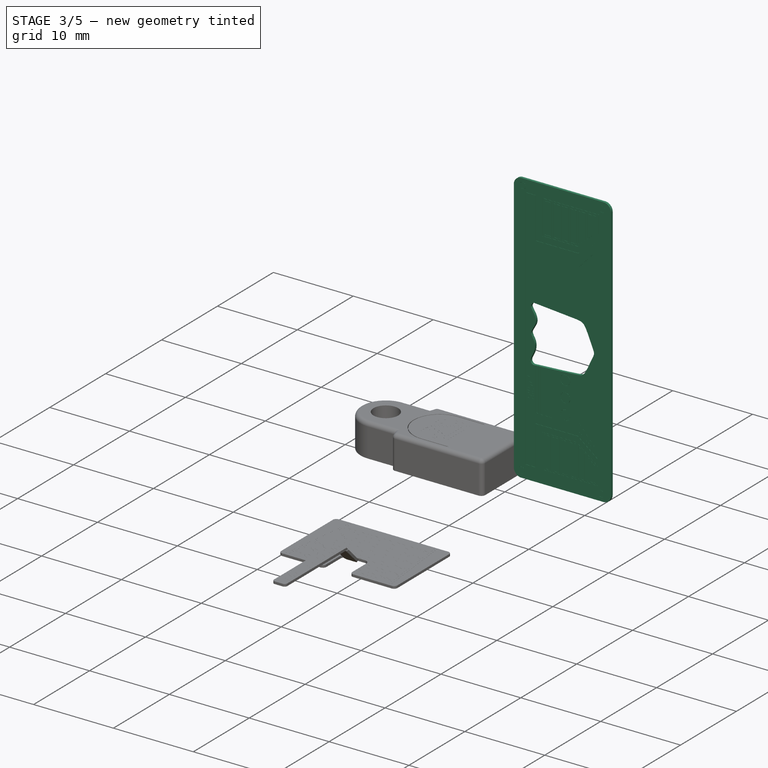
[diagram: stage 3 of 5 — iso view after this stage's code; geometry added in this stage tinted green]
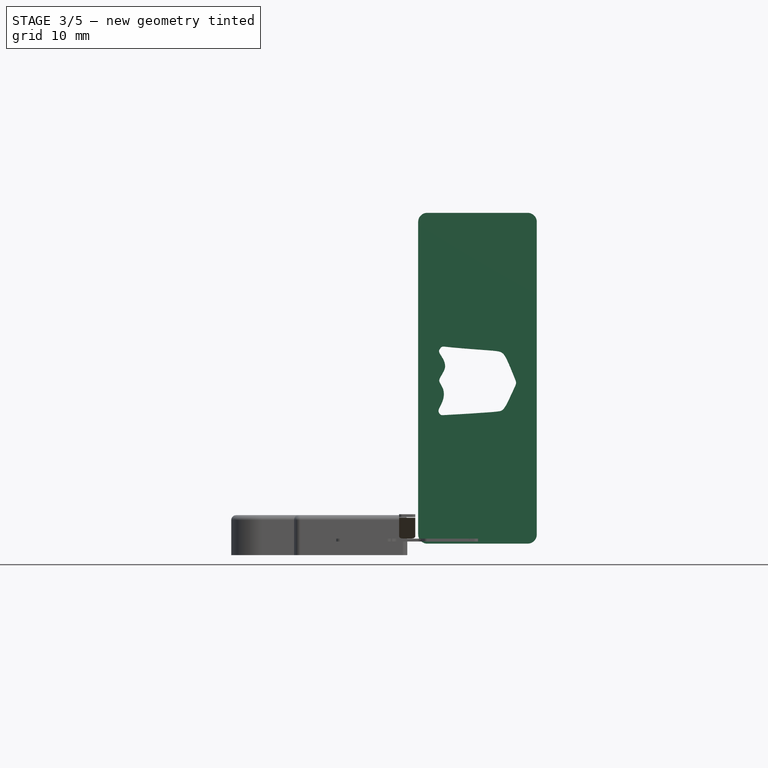
[diagram: stage 3 of 5 — front view after this stage's code; geometry added in this stage tinted green]
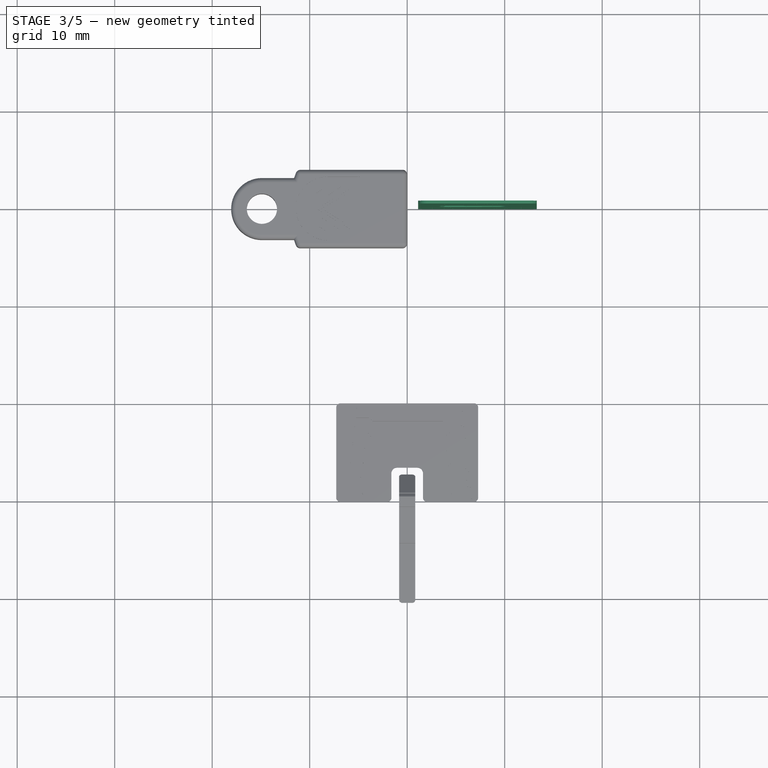
[diagram: stage 3 of 5 — top view after this stage's code; geometry added in this stage tinted green]
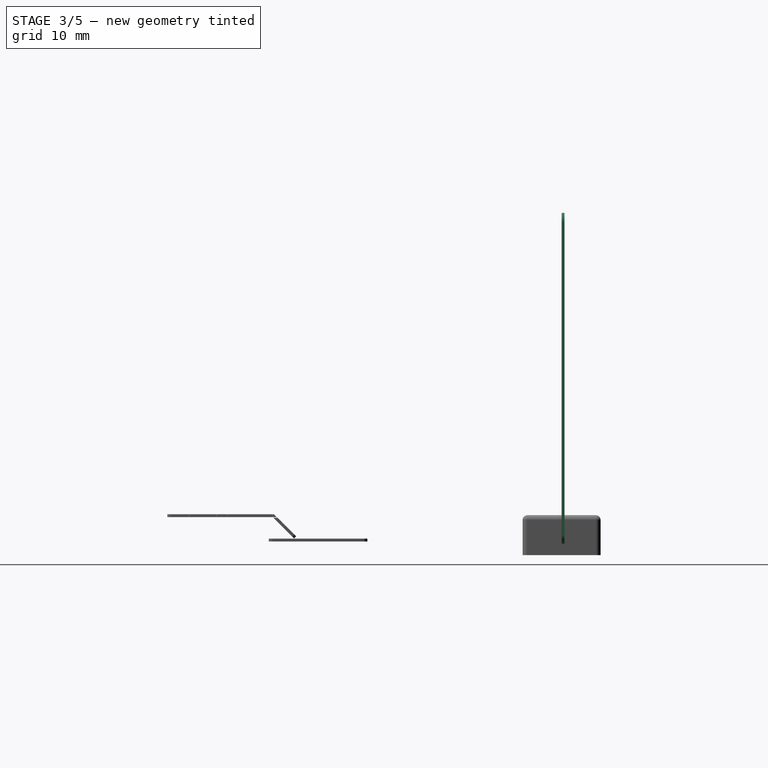
[diagram: stage 3 of 5 — right view after this stage's code; geometry added in this stage tinted green]
FEATURE [PartDesign::Body] Body001  label="Sticker1"
  AllowCompound = false
  Group = -> [Sketch001,Pad,Sketch002,Pocket001]
  Origin = -> Origin001
  Tip = -> Pocket001
FEATURE [Part::Feature] Part__Feature001  label="Scoop"
  Placement = pos=(0,12,0) rot=(0,0,1;0rad)
  shape: bbox 22.2 x 21.4 x 36.3 mm, 41 faces (baked)
FEATURE [Image::ImagePlane] Sticker2  label="S2"
  Placement = pos=(7.5,18,18.2) rot=(0.57735,0.57735,-0.57735;2.0944rad)
  XSize = 36.1798
  YSize = 13.6397
FEATURE [PartDesign::FeatureBase] BaseFeature001
  BaseFeature = -> Part__Feature001
  Suppressed = false
FEATURE [Sketcher::SketchObject] Sketch003
  ArcFitTolerance = 1e-06
  AttachmentSupport = -> [BaseFeature001]
  FullyConstrained = false
  MakeInternals = false
  MapMode = 5
  Placement = pos=(0,0,0) rot=(1,0,0;1.5708rad)
  sketch-geometry (12):
    g0: LineSegment StartX=1.05669 StartY=34.1789 StartZ=0 EndX=1.05669 EndY=2.11288 EndZ=0
    g1: LineSegment StartX=2.05669 StartY=1.11288 StartZ=0 EndX=12.361 EndY=1.11288 EndZ=0
    g2: LineSegment StartX=13.361 StartY=2.11288 StartZ=0 EndX=13.361 EndY=34.1789 EndZ=0
    g3: LineSegment StartX=12.361 StartY=35.1789 StartZ=0 EndX=2.05669 EndY=35.1789 EndZ=0
    g4: ArcOfCircle CenterX=2.05669 CenterY=34.1789 CenterZ=0 NormalX=0 NormalY=0 NormalZ=1 AngleXU=0 Radius=1 StartAngle=1.5708 EndAngle=3.14159
    g5: GeomPoint [constr] X=1.05669 Y=35.1789 Z=0
    g6: ArcOfCircle CenterX=12.361 CenterY=34.1789 CenterZ=0 NormalX=0 NormalY=0 NormalZ=1 AngleXU=0 Radius=1 StartAngle=-9e-16 EndAngle=1.5708
    g7: GeomPoint [constr] X=13.361 Y=35.1789 Z=0
    g8: ArcOfCircle CenterX=2.05669 CenterY=2.11288 CenterZ=0 NormalX=0 NormalY=0 NormalZ=1 AngleXU=0 Radius=1 StartAngle=3.14159 EndAngle=4.71239
    g9: GeomPoint [constr] X=1.05669 Y=1.11288 Z=0
    g10: ArcOfCircle CenterX=12.361 CenterY=2.11288 CenterZ=0 NormalX=0 NormalY=0 NormalZ=1 AngleXU=0 Radius=1 StartAngle=4.71239 EndAngle=6.28319
    g11: GeomPoint [constr] X=13.361 Y=1.11288 Z=0
  constraints (24):
    c: Vertical(g0)
    c: Vertical(g2)
    c: Horizontal(g1)
    c: Horizontal(g3)
    c: PointOnObject(g5,g0)
    c: PointOnObject(g5,g3)
    c: Tangent(g0,g4) = -1.5708
    c: Tangent(g3,g4) = -1.5708
    c: PointOnObject(g7,g2)
    c: PointOnObject(g7,g3)
    c: Tangent(g2,g6) = -1.5708
    c: Tangent(g3,g6) = -1.5708
    c: PointOnObject(g9,g0)
    c: PointOnObject(g9,g1)
    c: Tangent(g0,g8) = -1.5708
    c: Tangent(g1,g8) = -1.5708
    c: PointOnObject(g11,g1)
    c: PointOnObject(g11,g2)
    c: Tangent(g1,g10) = -1.5708
    c: Tangent(g2,g10) = -1.5708
    c: Radius(g10) = 1
    c: Radius(g8) = 1
    c: Radius(g4) = 1
    c: Radius(g6) = 1
FEATURE [PartDesign::Pocket] Pocket002
  BaseFeature = -> BaseFeature001
  Direction = (0,1,-2e-16)
  Length = 0.3
  Length2 = 5
  Profile = -> Sketch003
  ReferenceAxis = -> Sketch003 [N_Axis]
  Refine = true
  Suppressed = false
  Type = 0
FEATURE [Sketcher::SketchObject] Sketch004
  ArcFitTolerance = 1e-06
  AttachmentOffset = pos=(-80,13,0) rot=(0,0,1;1.5708rad)
  AttachmentSupport = -> [Pocket002]
  FullyConstrained = false
  MakeInternals = false
  MapMode = 5
  Placement = pos=(13.5,80,13) rot=(0,-1,0;1.5708rad)
  sketch-geometry (55):
    g0-g23: Circle [constr] x24 (B-spline internal-alignment scaffolding for g24; pole/knot coordinates omitted)
    g24: BSplineCurve PolesCount=28 KnotsCount=26 Degree=3 IsPeriodic=0
    g25-g48: GeomPoint [constr] x24 (B-spline internal-alignment scaffolding for g24; pole/knot coordinates omitted)
    g49: Circle [constr] CenterX=7.96829 CenterY=-71.2558 CenterZ=0 NormalX=0 NormalY=0 NormalZ=1 AngleXU=0 Radius=1
    g50: GeomPoint [constr] X=8.18848 Y=-67.9665 Z=0
    g51: Circle [constr] CenterX=8.19567 CenterY=-67.6744 CenterZ=0 NormalX=0 NormalY=0 NormalZ=1 AngleXU=0 Radius=1
    g52: Circle [constr] CenterX=8.37992 CenterY=-65.8459 CenterZ=0 NormalX=0 NormalY=0 NormalZ=1 AngleXU=0 Radius=1
    g53: Circle [constr] CenterX=8.42259 CenterY=-65.5512 CenterZ=0 NormalX=0 NormalY=0 NormalZ=1 AngleXU=0 Radius=1
    g54: GeomPoint [constr] X=8.35632 Y=-66.1015 Z=0
  constraints (15):
    c: Weight(g0) = 1
    c: Equal(g0, g1-g23) x23
    c: InternalAlignment(g0-g23 -> g24) x24
    c: InternalAlignment(g25-g48 -> g24) x24
    c: Coincident(g23,g0)
    c: InternalAlignment(g49,g24)
    c: Equal(g49,g0)
    c: InternalAlignment(g50,g24)
    c: InternalAlignment(g51,g24)
    c: Equal(g51,g0)
    c: InternalAlignment(g52,g24)
    c: Equal(g52,g0)
    c: InternalAlignment(g53,g24)
    c: Equal(g53,g0)
    c: InternalAlignment(g54,g24)
FEATURE [PartDesign::Pocket] Pocket003
  BaseFeature = -> Pocket002
  Direction = (1,0,0)
  Length = 0.3
  Length2 = 5
  Profile = -> Sketch004
  ReferenceAxis = -> Sketch004 [N_Axis]
  Refine = true
  Suppressed = false
  Type = 0
FEATURE [PartDesign::Body] Body002  label="Scoop_Stickered"
  AllowCompound = false
  BaseFeature = -> Part__Feature001
  Group = -> [BaseFeature001,Sketch003,Pocket002,Sketch004,Pocket003]
  Origin = -> Origin002
  Tip = -> Pocket003
FEATURE [PartDesign::SubShapeBinder] Binder
  BindCopyOnChange = 0
  BindMode = 0
  ClaimChildren = false
  Context = -> Body003 [Binder.]
  Fuse = false
  MakeFace = true
  OffsetFill = false
  OffsetIntersection = false
  OffsetJoinType = 0
  OffsetOpenResult = false
  PartialLoad = false
  Refine = true
  Relative = true
  Support = -> [Body002[Pocket003.Face30]]
  _Version = 2
FEATURE [Sketcher::SketchObject] Sketch005
  ArcFitTolerance = 1e-06
  AttachmentSupport = -> [Binder]
  ExternalGeometry = -> [Binder]
  FullyConstrained = true
  MakeInternals = false
  MapMode = 5
  Placement = pos=(0,0.3,0) rot=(1,0,0;1.5708rad)
  sketch-geometry (12):
    g0: LineSegment StartX=1.12669 StartY=34.1789 StartZ=0 EndX=1.12669 EndY=2.11288 EndZ=0
    g1: LineSegment StartX=2.05669 StartY=1.18288 StartZ=0 EndX=12.361 EndY=1.18288 EndZ=0
    g2: LineSegment StartX=13.291 StartY=2.11288 StartZ=0 EndX=13.291 EndY=34.1789 EndZ=0
    g3: LineSegment StartX=12.361 StartY=35.1089 StartZ=0 EndX=2.05669 EndY=35.1089 EndZ=0
    g4: ArcOfCircle CenterX=2.05669 CenterY=2.11288 CenterZ=0 NormalX=0 NormalY=0 NormalZ=1 AngleXU=0 Radius=0.93 StartAngle=3.14159 EndAngle=4.71239
    g5: GeomPoint [constr] X=1.12669 Y=1.18288 Z=0
    g6: ArcOfCircle CenterX=12.361 CenterY=2.11288 CenterZ=0 NormalX=0 NormalY=0 NormalZ=1 AngleXU=0 Radius=0.93 StartAngle=4.71239 EndAngle=6.28319
    g7: GeomPoint [constr] X=13.291 Y=1.18288 Z=0
    g8: ArcOfCircle CenterX=12.361 CenterY=34.1789 CenterZ=0 NormalX=0 NormalY=0 NormalZ=1 AngleXU=0 Radius=0.93 StartAngle=0 EndAngle=1.5708
    g9: GeomPoint [constr] X=13.291 Y=35.1089 Z=0
    g10: ArcOfCircle CenterX=2.05669 CenterY=34.1789 CenterZ=0 NormalX=0 NormalY=0 NormalZ=1 AngleXU=0 Radius=0.93 StartAngle=1.5708 EndAngle=3.14159
    g11: GeomPoint [constr] X=1.12669 Y=35.1089 Z=0
  constraints (29):
    c: Vertical(g0)
    c: Vertical(g2)
    c: Horizontal(g1)
    c: Horizontal(g3)
    c: PointOnObject(g5,g0)
    c: PointOnObject(g5,g1)
    c: Tangent(g0,g4) = -1.5708
    c: Tangent(g1,g4) = -1.5708
    c: PointOnObject(g7,g1)
    c: PointOnObject(g7,g2)
    c: Tangent(g1,g6) = -1.5708
    c: Tangent(g2,g6) = -1.5708
    c: PointOnObject(g9,g2)
    c: PointOnObject(g9,g3)
    c: Tangent(g2,g8) = -1.5708
    c: Tangent(g3,g8) = -1.5708
    c: PointOnObject(g11,g0)
    c: PointOnObject(g11,g3)
    c: Tangent(g0,g10) = -1.5708
    c: Tangent(g3,g10) = -1.5708
    c: Radius(g-7) = 1
    c: Radius(g10) = 0.93
    c: Radius(g8) = 0.93
    c: Radius(g4) = 0.93
    c: Radius(g6) = 0.93
    c: DistanceY(g-9,g1) = 0.07
    c: DistanceX(g-9,g0) = 0.07
    c: DistanceX(g2,g-10) = 0.07
    c: DistanceY(g3,g-4) = 0.07
FEATURE [PartDesign::Pad] Pad001
  Direction = (0,-1,2e-16)
  Length = 0.3
  Length2 = 10
  Profile = -> Sketch005
  ReferenceAxis = -> Sketch005 [N_Axis]
  Refine = true
  Suppressed = false
  Type = 0
FEATURE [Sketcher::SketchObject] Sketch006
  ArcFitTolerance = 1e-06
  AttachmentOffset = pos=(-62,13,0) rot=(0,0,1;1.5708rad)
  AttachmentSupport = -> [Pad001]
  FullyConstrained = false
  MakeInternals = false
  MapMode = 5
  Placement = pos=(-62,7e-15,13) rot=(0.57735,-0.57735,0.57735;2.0944rad)
  sketch-geometry (55):
    g0-g23: Circle [constr] x24 (B-spline internal-alignment scaffolding for g24; pole/knot coordinates omitted)
    g24: BSplineCurve PolesCount=28 KnotsCount=26 Degree=3 IsPeriodic=0
    g25-g48: GeomPoint [constr] x24 (B-spline internal-alignment scaffolding for g24; pole/knot coordinates omitted)
    g49: Circle [constr] CenterX=7.96829 CenterY=-71.2558 CenterZ=0 NormalX=0 NormalY=0 NormalZ=1 AngleXU=0 Radius=1
    g50: GeomPoint [constr] X=8.18848 Y=-67.9665 Z=0
    g51: Circle [constr] CenterX=8.19567 CenterY=-67.6744 CenterZ=0 NormalX=0 NormalY=0 NormalZ=1 AngleXU=0 Radius=1
    g52: Circle [constr] CenterX=8.37992 CenterY=-65.8459 CenterZ=0 NormalX=0 NormalY=0 NormalZ=1 AngleXU=0 Radius=1
    g53: Circle [constr] CenterX=8.42259 CenterY=-65.5512 CenterZ=0 NormalX=0 NormalY=0 NormalZ=1 AngleXU=0 Radius=1
    g54: GeomPoint [constr] X=8.35632 Y=-66.1015 Z=0
  constraints (15):
    c: Weight(g0) = 1
    c: Equal(g0, g1-g23) x23
    c: InternalAlignment(g0-g23 -> g24) x24
    c: InternalAlignment(g25-g48 -> g24) x24
    c: Coincident(g23,g0)
    c: InternalAlignment(g49,g24)
    c: Equal(g49,g0)
    c: InternalAlignment(g50,g24)
    c: InternalAlignment(g51,g24)
    c: Equal(g51,g0)
    c: InternalAlignment(g52,g24)
    c: Equal(g52,g0)
    c: InternalAlignment(g53,g24)
    c: Equal(g53,g0)
    c: InternalAlignment(g54,g24)
FEATURE [PartDesign::Pocket] Pocket004
  BaseFeature = -> Pad001
  Direction = (0,1,-2e-16)
  Length = 5
  Length2 = 5
  Profile = -> Sketch006
  ReferenceAxis = -> Sketch006 [N_Axis]
  Refine = true
  Suppressed = false
  Type = 0
FEATURE [Sketcher::SketchObject] Sketch007
  ArcFitTolerance = 1e-06
  AttachmentSupport = -> [Pocket004]
  FullyConstrained = false
  MakeInternals = false
  MapMode = 5
  Placement = pos=(0,4.1e-15,0) rot=(1,0,0;1.5708rad)
  sketch-geometry (158):
    g0: Circle CenterX=2.11938 CenterY=2.07354 CenterZ=0 NormalX=0 NormalY=0 NormalZ=1 AngleXU=0 Radius=0.369525
    g1: Circle CenterX=2.24563 CenterY=34.3088 CenterZ=0 NormalX=0 NormalY=0 NormalZ=1 AngleXU=0 Radius=0.369525
    g2: Circle CenterX=12.0451 CenterY=2.02844 CenterZ=0 NormalX=0 NormalY=0 NormalZ=1 AngleXU=0 Radius=0.369525
    g3: Circle CenterX=12.174 CenterY=34.2592 CenterZ=0 NormalX=0 NormalY=0 NormalZ=1 AngleXU=0 Radius=0.369525
    g4: Circle CenterX=12.0451 CenterY=2.02844 CenterZ=0 NormalX=0 NormalY=0 NormalZ=1 AngleXU=0 Radius=0.375091
    g5: Circle CenterX=2.24563 CenterY=34.3088 CenterZ=0 NormalX=0 NormalY=0 NormalZ=1 AngleXU=0 Radius=0.375091
    g6: Circle CenterX=12.174 CenterY=34.2592 CenterZ=0 NormalX=0 NormalY=0 NormalZ=1 AngleXU=0 Radius=0.375091
    g7: Circle CenterX=2.11938 CenterY=2.07354 CenterZ=0 NormalX=0 NormalY=0 NormalZ=1 AngleXU=0 Radius=0.375091
    g8: LineSegment StartX=4.69136 StartY=7.04113 StartZ=0 EndX=4.69136 EndY=2.8224 EndZ=0
    g9: LineSegment StartX=4.69136 StartY=2.8224 StartZ=0 EndX=11.6826 EndY=2.8224 EndZ=0
    g10: LineSegment StartX=11.6826 StartY=2.8224 StartZ=0 EndX=11.6826 EndY=4.98297 EndZ=0
    g11: LineSegment StartX=11.6826 StartY=4.98297 StartZ=0 EndX=9.03636 EndY=7.04113 EndZ=0
    g12: LineSegment StartX=9.03636 StartY=7.04113 StartZ=0 EndX=4.69136 EndY=7.04113 EndZ=0
    g13: LineSegment StartX=4.92801 StartY=6.83217 StartZ=0 EndX=4.92801 EndY=3.00181 EndZ=0
    g14: LineSegment StartX=4.92801 StartY=3.00181 StartZ=0 EndX=5.70683 EndY=3.00181 EndZ=0
    g15: LineSegment StartX=5.70683 StartY=3.00181 StartZ=0 EndX=5.70683 EndY=6.83217 EndZ=0
    g16: LineSegment StartX=5.70683 StartY=6.83217 StartZ=0 EndX=4.92801 EndY=6.83217 EndZ=0
    g17: LineSegment StartX=5.99566 StartY=6.83237 StartZ=0 EndX=5.99566 EndY=3.00476 EndZ=0
    g18: LineSegment StartX=5.99566 StartY=3.00476 StartZ=0 EndX=6.8028 EndY=3.00476 EndZ=0
    g19: LineSegment StartX=6.8028 StartY=3.00476 StartZ=0 EndX=6.8028 EndY=6.83237 EndZ=0
    g20: LineSegment StartX=6.8028 StartY=6.83237 StartZ=0 EndX=5.99566 EndY=6.83237 EndZ=0
    g21: LineSegment StartX=7.06129 StartY=6.81801 StartZ=0 EndX=7.06129 EndY=3.00794 EndZ=0
    g22: LineSegment StartX=7.06129 StartY=3.00794 StartZ=0 EndX=7.81886 EndY=3.00794 EndZ=0
    g23: LineSegment StartX=7.81886 StartY=3.00794 StartZ=0 EndX=7.81886 EndY=6.81801 EndZ=0
    g24: LineSegment StartX=7.81886 StartY=6.81801 StartZ=0 EndX=7.06129 EndY=6.81801 EndZ=0
    g25: LineSegment StartX=8.09283 StartY=6.81093 StartZ=0 EndX=8.09283 EndY=3.00889 EndZ=0
    g26: LineSegment StartX=8.09283 StartY=3.00889 StartZ=0 EndX=8.91413 EndY=3.00889 EndZ=0
    g27: LineSegment StartX=8.91413 StartY=3.00889 StartZ=0 EndX=8.91413 EndY=6.81093 EndZ=0
    g28: LineSegment StartX=8.91413 StartY=6.81093 StartZ=0 EndX=8.09283 EndY=6.81093 EndZ=0
    g29: LineSegment StartX=9.17779 StartY=6.72446 StartZ=0 EndX=9.17779 EndY=3.00297 EndZ=0
    g30: LineSegment StartX=9.17779 StartY=3.00297 StartZ=0 EndX=10.0125 EndY=3.00297 EndZ=0
    g31: LineSegment StartX=10.0125 StartY=3.00297 StartZ=0 EndX=10.0125 EndY=6.04625 EndZ=0
    g32: LineSegment StartX=10.0125 StartY=6.04625 StartZ=0 EndX=9.17779 EndY=6.72446 EndZ=0
    g33: LineSegment StartX=10.2814 StartY=5.80278 StartZ=0 EndX=10.2814 EndY=3.0221 EndZ=0
    g34: LineSegment StartX=10.2814 StartY=3.0221 StartZ=0 EndX=11.3964 EndY=3.0221 EndZ=0
    g35: LineSegment StartX=11.3964 StartY=3.0221 StartZ=0 EndX=11.3964 EndY=4.89849 EndZ=0
    g36: LineSegment StartX=11.3964 StartY=4.89849 StartZ=0 EndX=10.2814 EndY=5.80278 EndZ=0
    g37: LineSegment StartX=4.93421 StartY=3.00802 StartZ=0 EndX=5.70062 EndY=3.00802 EndZ=0
    g38: LineSegment StartX=5.70062 StartY=3.00802 StartZ=0 EndX=5.70062 EndY=6.82597 EndZ=0
    g39: LineSegment StartX=5.70062 StartY=6.82597 StartZ=0 EndX=4.93421 EndY=6.82597 EndZ=0
    g40: LineSegment StartX=4.93421 StartY=6.82597 StartZ=0 EndX=4.93421 EndY=3.00802 EndZ=0
    g41: LineSegment StartX=6.79659 StartY=3.01096 StartZ=0 EndX=6.79659 EndY=6.82616 EndZ=0
    g42: LineSegment StartX=6.79659 StartY=6.82616 StartZ=0 EndX=6.00186 EndY=6.82616 EndZ=0
    g43: LineSegment StartX=6.00186 StartY=6.82616 StartZ=0 EndX=6.00186 EndY=3.01096 EndZ=0
    g44: LineSegment StartX=6.00186 StartY=3.01096 StartZ=0 EndX=6.79659 EndY=3.01096 EndZ=0
    g45: LineSegment StartX=7.06749 StartY=3.01414 StartZ=0 EndX=7.81266 EndY=3.01414 EndZ=0
    g46: LineSegment StartX=7.81266 StartY=3.01414 StartZ=0 EndX=7.81266 EndY=6.81181 EndZ=0
    g47: LineSegment StartX=7.81266 StartY=6.81181 StartZ=0 EndX=7.06749 EndY=6.81181 EndZ=0
    g48: LineSegment StartX=7.06749 StartY=6.81181 StartZ=0 EndX=7.06749 EndY=3.01414 EndZ=0
    g49: LineSegment StartX=8.90793 StartY=3.0151 StartZ=0 EndX=8.90793 EndY=6.80473 EndZ=0
    g50: LineSegment StartX=8.90793 StartY=6.80473 StartZ=0 EndX=8.09904 EndY=6.80473 EndZ=0
    g51: LineSegment StartX=8.09904 StartY=6.80473 StartZ=0 EndX=8.09904 EndY=3.0151 EndZ=0
    g52: LineSegment StartX=8.09904 StartY=3.0151 StartZ=0 EndX=8.90793 EndY=3.0151 EndZ=0
    g53: LineSegment StartX=10.0063 StartY=3.00917 StartZ=0 EndX=10.0063 EndY=6.04329 EndZ=0
    g54: LineSegment StartX=10.0063 StartY=6.04329 StartZ=0 EndX=9.18399 EndY=6.71143 EndZ=0
    g55: LineSegment StartX=9.18399 StartY=6.71143 StartZ=0 EndX=9.18399 EndY=3.00917 EndZ=0
    g56: LineSegment StartX=9.18399 StartY=3.00917 StartZ=0 EndX=10.0063 EndY=3.00917 EndZ=0
    g57: LineSegment StartX=11.3902 StartY=3.02831 StartZ=0 EndX=11.3902 EndY=4.89554 EndZ=0
    g58: LineSegment StartX=11.3902 StartY=4.89554 StartZ=0 EndX=10.2876 EndY=5.78976 EndZ=0
    g59: LineSegment StartX=10.2876 StartY=5.78976 StartZ=0 EndX=10.2876 EndY=3.02831 EndZ=0
    g60: LineSegment StartX=10.2876 StartY=3.02831 StartZ=0 EndX=11.3902 EndY=3.02831 EndZ=0
    g61: LineSegment StartX=11.6764 StartY=4.97994 StartZ=0 EndX=9.03423 EndY=7.03492 EndZ=0
    g62: LineSegment StartX=9.03423 StartY=7.03492 StartZ=0 EndX=4.69756 EndY=7.03492 EndZ=0
    g63: LineSegment StartX=4.69756 StartY=7.03492 StartZ=0 EndX=4.69756 EndY=2.8286 EndZ=0
    g64: LineSegment StartX=4.69756 StartY=2.8286 StartZ=0 EndX=11.6764 EndY=2.8286 EndZ=0
    g65: LineSegment StartX=11.6764 StartY=2.8286 StartZ=0 EndX=11.6764 EndY=4.97994 EndZ=0
    g66: LineSegment StartX=4.73143 StartY=33.5344 StartZ=0 EndX=4.73143 EndY=29.2436 EndZ=0
    g67: LineSegment StartX=4.73143 StartY=29.2436 StartZ=0 EndX=9.18332 EndY=29.2436 EndZ=0
    g68: LineSegment StartX=9.18332 StartY=29.2436 StartZ=0 EndX=11.7835 EndY=31.3664 EndZ=0
    g69: LineSegment StartX=11.7835 StartY=31.3664 StartZ=0 EndX=11.7835 EndY=33.5344 EndZ=0
    g70: LineSegment StartX=11.7835 StartY=33.5344 StartZ=0 EndX=4.73143 EndY=33.5344 EndZ=0
    g71: LineSegment StartX=4.98905 StartY=33.2944 StartZ=0 EndX=4.98905 EndY=29.4699 EndZ=0
    g72: LineSegment StartX=4.98905 StartY=29.4699 StartZ=0 EndX=5.78935 EndY=29.4699 EndZ=0
    g73: LineSegment StartX=5.78935 StartY=29.4699 StartZ=0 EndX=5.78935 EndY=33.2944 EndZ=0
    g74: LineSegment StartX=5.78935 StartY=33.2944 StartZ=0 EndX=4.98905 EndY=33.2944 EndZ=0
    g75: LineSegment StartX=6.09039 StartY=33.2919 StartZ=0 EndX=6.09039 EndY=29.4646 EndZ=0
    g76: LineSegment StartX=6.09039 StartY=29.4646 StartZ=0 EndX=6.89238 EndY=29.4646 EndZ=0
    g77: LineSegment StartX=6.89238 StartY=29.4646 StartZ=0 EndX=6.89238 EndY=33.2919 EndZ=0
    g78: LineSegment StartX=6.89238 StartY=33.2919 StartZ=0 EndX=6.09039 EndY=33.2919 EndZ=0
    g79: LineSegment StartX=7.14469 StartY=33.2785 StartZ=0 EndX=7.14469 EndY=29.4578 EndZ=0
    g80: LineSegment StartX=7.14469 StartY=29.4578 StartZ=0 EndX=7.91812 EndY=29.4578 EndZ=0
    g81: LineSegment StartX=7.91812 StartY=29.4578 StartZ=0 EndX=7.91812 EndY=33.2785 EndZ=0
    g82: LineSegment StartX=7.91812 StartY=33.2785 StartZ=0 EndX=7.14469 EndY=33.2785 EndZ=0
    g83: LineSegment StartX=8.21691 StartY=33.2723 StartZ=0 EndX=8.21691 EndY=29.4646 EndZ=0
    g84: LineSegment StartX=8.21691 StartY=29.4646 StartZ=0 EndX=8.98345 EndY=29.4646 EndZ=0
    g85: LineSegment StartX=8.98345 StartY=29.4646 StartZ=0 EndX=8.98345 EndY=33.2723 EndZ=0
    g86: LineSegment StartX=8.98345 StartY=33.2723 StartZ=0 EndX=8.21691 EndY=33.2723 EndZ=0
    g87: LineSegment StartX=9.25989 StartY=33.2707 StartZ=0 EndX=10.0871 EndY=33.2707 EndZ=0
    g88: LineSegment StartX=10.0871 StartY=33.2707 StartZ=0 EndX=10.0871 EndY=30.2179 EndZ=0
    g89: LineSegment StartX=10.0871 StartY=30.2179 StartZ=0 EndX=9.25989 EndY=29.5677 EndZ=0
    g90: LineSegment StartX=9.25989 StartY=29.5677 StartZ=0 EndX=9.25989 EndY=33.2707 EndZ=0
    g91: LineSegment StartX=10.374 StartY=33.2612 StartZ=0 EndX=11.4843 EndY=33.2612 EndZ=0
    g92: LineSegment StartX=11.4843 StartY=33.2612 StartZ=0 EndX=11.4843 EndY=31.3798 EndZ=0
    g93: LineSegment StartX=11.4843 StartY=31.3798 StartZ=0 EndX=10.374 EndY=30.47 EndZ=0
    g94: LineSegment StartX=10.374 StartY=30.47 StartZ=0 EndX=10.374 EndY=33.2612 EndZ=0
    g95: LineSegment StartX=4.99925 StartY=29.4801 StartZ=0 EndX=5.77916 EndY=29.4801 EndZ=0
    g96: LineSegment StartX=5.77916 StartY=29.4801 StartZ=0 EndX=5.77916 EndY=33.2842 EndZ=0
    g97: LineSegment StartX=5.77916 StartY=33.2842 StartZ=0 EndX=4.99925 EndY=33.2842 EndZ=0
    g98: LineSegment StartX=4.99925 StartY=33.2842 StartZ=0 EndX=4.99925 EndY=29.4801 EndZ=0
    g99: LineSegment StartX=6.10058 StartY=29.4747 StartZ=0 EndX=6.88219 EndY=29.4747 EndZ=0
    g100: LineSegment StartX=6.88219 StartY=29.4747 StartZ=0 EndX=6.88219 EndY=33.2817 EndZ=0
    g101: LineSegment StartX=6.88219 StartY=33.2817 StartZ=0 EndX=6.10058 EndY=33.2817 EndZ=0
    g102: LineSegment StartX=6.10058 StartY=33.2817 StartZ=0 EndX=6.10058 EndY=29.4747 EndZ=0
    g103: LineSegment StartX=7.15488 StartY=29.468 StartZ=0 EndX=7.90792 EndY=29.468 EndZ=0
    g104: LineSegment StartX=7.90792 StartY=29.468 StartZ=0 EndX=7.90792 EndY=33.2683 EndZ=0
    g105: LineSegment StartX=7.90792 StartY=33.2683 StartZ=0 EndX=7.15488 EndY=33.2683 EndZ=0
    g106: LineSegment StartX=7.15488 StartY=33.2683 StartZ=0 EndX=7.15488 EndY=29.468 EndZ=0
    g107: LineSegment StartX=8.2271 StartY=29.4748 StartZ=0 EndX=8.97325 EndY=29.4748 EndZ=0
    g108: LineSegment StartX=8.97325 StartY=29.4748 StartZ=0 EndX=8.97325 EndY=33.2621 EndZ=0
    g109: LineSegment StartX=8.97325 StartY=33.2621 StartZ=0 EndX=8.2271 EndY=33.2621 EndZ=0
    g110: LineSegment StartX=8.2271 StartY=33.2621 StartZ=0 EndX=8.2271 EndY=29.4748 EndZ=0
    g111: LineSegment StartX=10.0973 StartY=33.2707 StartZ=0 EndX=10.0973 EndY=30.2179 EndZ=0
    g112: ArcOfCircle CenterX=10.0871 CenterY=30.2179 CenterZ=0 NormalX=0 NormalY=0 NormalZ=-1 AngleXU=1.5708 Radius=0.0101933 StartAngle=1.5708 EndAngle=2.47543
    g113: LineSegment StartX=10.0934 StartY=30.2099 StartZ=0 EndX=9.26619 EndY=29.5597 EndZ=0
    g114: ArcOfCircle CenterX=9.25989 CenterY=29.5677 CenterZ=0 NormalX=0 NormalY=0 NormalZ=-1 AngleXU=2.47543 Radius=0.0101933 StartAngle=1.5708 EndAngle=3.80776
    g115: LineSegment StartX=9.2497 StartY=29.5677 StartZ=0 EndX=9.2497 EndY=33.2707 EndZ=0
    g116: ArcOfCircle CenterX=9.25989 CenterY=33.2707 CenterZ=0 NormalX=0 NormalY=0 NormalZ=-1 AngleXU=-1.5708 Radius=0.0101933 StartAngle=1.5708 EndAngle=3.14159
    g117: LineSegment StartX=9.25989 StartY=33.2809 StartZ=0 EndX=10.0871 EndY=33.2809 EndZ=0
    g118: ArcOfCircle CenterX=10.0871 CenterY=33.2707 CenterZ=0 NormalX=0 NormalY=0 NormalZ=-1 AngleXU=0 Radius=0.0101933 StartAngle=1.5708 EndAngle=3.14159
    g119: LineSegment StartX=10.3638 StartY=30.47 StartZ=0 EndX=10.3638 EndY=33.2612 EndZ=0
    g120: ArcOfCircle CenterX=10.374 CenterY=30.47 CenterZ=0 NormalX=0 NormalY=0 NormalZ=-1 AngleXU=2.45507 Radius=0.0101933 StartAngle=1.5708 EndAngle=3.82811
    g121: LineSegment StartX=11.4907 StartY=31.372 StartZ=0 EndX=10.3805 EndY=30.4621 EndZ=0
    g122: ArcOfCircle CenterX=11.4843 CenterY=31.3798 CenterZ=0 NormalX=0 NormalY=0 NormalZ=-1 AngleXU=1.5708 Radius=0.0101933 StartAngle=1.5708 EndAngle=2.45507
    g123: LineSegment StartX=11.4945 StartY=33.2612 StartZ=0 EndX=11.4945 EndY=31.3798 EndZ=0
    g124: ArcOfCircle CenterX=11.4843 CenterY=33.2612 CenterZ=0 NormalX=0 NormalY=0 NormalZ=-1 AngleXU=0 Radius=0.0101933 StartAngle=1.5708 EndAngle=3.14159
    g125: LineSegment StartX=10.374 StartY=33.2714 StartZ=0 EndX=11.4843 EndY=33.2714 EndZ=0
    g126: ArcOfCircle CenterX=10.374 CenterY=33.2612 CenterZ=0 NormalX=0 NormalY=0 NormalZ=-1 AngleXU=-1.5708 Radius=0.0101933 StartAngle=1.5708 EndAngle=3.14159
    g127: LineSegment StartX=11.7733 StartY=31.3712 StartZ=0 EndX=11.7733 EndY=33.5242 EndZ=0
    g128: LineSegment StartX=11.7733 StartY=33.5242 StartZ=0 EndX=4.74163 EndY=33.5242 EndZ=0
    g129: LineSegment StartX=4.74163 StartY=33.5242 StartZ=0 EndX=4.74163 EndY=29.2538 EndZ=0
    g130: LineSegment StartX=4.74163 StartY=29.2538 StartZ=0 EndX=9.17968 EndY=29.2538 EndZ=0
    g131: LineSegment StartX=9.17968 StartY=29.2538 StartZ=0 EndX=11.7733 EndY=31.3712 EndZ=0
    g132: LineSegment StartX=2.58059 StartY=2.84671 StartZ=0 EndX=2.58059 EndY=33.6178 EndZ=0
    g133: LineSegment StartX=2.58059 StartY=33.6178 StartZ=0 EndX=3.84992 EndY=33.6178 EndZ=0
    g134: LineSegment StartX=3.84992 StartY=33.6178 StartZ=0 EndX=3.84992 EndY=28.4827 EndZ=0
    g135: LineSegment StartX=3.84992 StartY=28.4827 StartZ=0 EndX=9.19379 EndY=28.4827 EndZ=0
    g136: LineSegment StartX=9.19379 StartY=28.4827 StartZ=0 EndX=11.6865 EndY=30.4736 EndZ=0
    g137: LineSegment StartX=11.6865 StartY=30.4736 StartZ=0 EndX=11.6865 EndY=5.79806 EndZ=0
    g138: LineSegment StartX=11.6865 StartY=5.79806 StartZ=0 EndX=9.1328 EndY=7.78687 EndZ=0
    g139: LineSegment StartX=9.1328 StartY=7.78687 StartZ=0 EndX=3.78803 EndY=7.78687 EndZ=0
    g140: LineSegment StartX=3.78803 StartY=7.78687 StartZ=0 EndX=3.78803 EndY=2.84671 EndZ=0
    g141: LineSegment StartX=3.78803 StartY=2.84671 StartZ=0 EndX=2.58059 EndY=2.84671 EndZ=0
    g142: LineSegment StartX=2.58059 StartY=33.6312 StartZ=0 EndX=3.84992 EndY=33.6312 EndZ=0
    g143: ArcOfCircle CenterX=3.84992 CenterY=33.6178 CenterZ=0 NormalX=0 NormalY=0 NormalZ=1 AngleXU=-1.5708 Radius=0.0133752 StartAngle=1.5708 EndAngle=3.14159
    g144: LineSegment StartX=3.8633 StartY=33.6178 StartZ=0 EndX=3.8633 EndY=28.496 EndZ=0
    g145: LineSegment StartX=3.8633 StartY=28.496 StartZ=0 EndX=9.1891 EndY=28.496 EndZ=0
    g146: LineSegment StartX=9.1891 StartY=28.496 StartZ=0 EndX=11.6782 EndY=30.484 EndZ=0
    g147: ArcOfCircle CenterX=11.6865 CenterY=30.4736 CenterZ=0 NormalX=0 NormalY=0 NormalZ=1 AngleXU=-1.5708 Radius=0.0133752 StartAngle=1.5708 EndAngle=3.81552
    g148: LineSegment StartX=11.6999 StartY=30.4736 StartZ=0 EndX=11.6999 EndY=5.79806 EndZ=0
    g149: ArcOfCircle CenterX=11.6865 CenterY=5.79806 CenterZ=0 NormalX=0 NormalY=0 NormalZ=1 AngleXU=2.47992 Radius=0.0133752 StartAngle=1.5708 EndAngle=3.80326
    g150: LineSegment StartX=11.6783 StartY=5.78751 StartZ=0 EndX=9.12821 EndY=7.7735 EndZ=0
    g151: LineSegment StartX=9.12821 StartY=7.7735 StartZ=0 EndX=3.8014 EndY=7.7735 EndZ=0
    g152: LineSegment StartX=3.8014 StartY=7.7735 StartZ=0 EndX=3.8014 EndY=2.84671 EndZ=0
    g153: ArcOfCircle CenterX=3.78803 CenterY=2.84671 CenterZ=0 NormalX=0 NormalY=0 NormalZ=1 AngleXU=-3.14159 Radius=0.0133752 StartAngle=1.5708 EndAngle=3.14159
    g154: LineSegment StartX=3.78803 StartY=2.83333 StartZ=0 EndX=2.58059 EndY=2.83333 EndZ=0
    g155: ArcOfCircle CenterX=2.58059 CenterY=2.84671 CenterZ=0 NormalX=0 NormalY=0 NormalZ=1 AngleXU=1.5708 Radius=0.0133752 StartAngle=1.5708 EndAngle=3.14159
    g156: LineSegment StartX=2.56722 StartY=2.84671 StartZ=0 EndX=2.56722 EndY=33.6178 EndZ=0
    g157: ArcOfCircle CenterX=2.58059 CenterY=33.6178 CenterZ=0 NormalX=0 NormalY=0 NormalZ=1 AngleXU=0 Radius=0.0133752 StartAngle=1.5708 EndAngle=3.14159
  constraints (210):
    c: Vertical(g8)
    c: Coincident(g9,g8)
    c: Horizontal(g9)
    c: Coincident(g10,g9)
    c: Vertical(g10)
    c: Coincident(g11,g10)
    c: Coincident(g12,g11)
    c: Coincident(g12,g8)
    c: Horizontal(g12)
    c: Coincident(g13,g14)
    c: Coincident(g14,g15)
    c: Coincident(g15,g16)
    c: Coincident(g16,g13)
    c: Vertical(g13)
    c: Vertical(g15)
    c: Horizontal(g14)
    c: Horizontal(g16)
    c: Coincident(g17,g18)
    c: Coincident(g18,g19)
    c: Coincident(g19,g20)
    c: Coincident(g20,g17)
    c: Vertical(g17)
    c: Vertical(g19)
    c: Horizontal(g18)
    c: Horizontal(g20)
    c: Coincident(g21,g22)
    c: Coincident(g22,g23)
    c: Coincident(g23,g24)
    c: Coincident(g24,g21)
    c: Vertical(g21)
    c: Vertical(g23)
    c: Horizontal(g22)
    c: Horizontal(g24)
    c: Coincident(g25,g26)
    c: Coincident(g26,g27)
    c: Coincident(g27,g28)
    c: Coincident(g28,g25)
    c: Vertical(g25)
    c: Vertical(g27)
    c: Horizontal(g26)
    c: Horizontal(g28)
    c: Vertical(g29)
    c: Coincident(g30,g29)
    c: Horizontal(g30)
    c: Coincident(g31,g30)
    c: Vertical(g31)
    c: Coincident(g32,g31)
    c: Coincident(g32,g29)
    c: Vertical(g33)
    c: Coincident(g34,g33)
    c: Horizontal(g34)
    c: Coincident(g35,g34)
    c: Vertical(g35)
    c: Coincident(g36,g35)
    c: Coincident(g36,g33)
    c: Coincident(g37,g38)
    c: Coincident(g37,g40)
    c: Coincident(g38,g39)
    c: Coincident(g39,g40)
    c: Coincident(g41,g42)
    c: Coincident(g41,g44)
    c: Coincident(g42,g43)
    c: Coincident(g43,g44)
    c: Coincident(g45,g46)
    c: Coincident(g45,g48)
    c: Coincident(g46,g47)
    c: Coincident(g47,g48)
    c: Coincident(g49,g50)
    c: Coincident(g49,g52)
    c: Coincident(g50,g51)
    c: Coincident(g51,g52)
    c: Coincident(g53,g54)
    c: Coincident(g53,g56)
    c: Coincident(g54,g55)
    c: Coincident(g55,g56)
    c: Coincident(g57,g58)
    c: Coincident(g57,g60)
    c: Coincident(g58,g59)
    c: Coincident(g59,g60)
    c: Coincident(g61,g62)
    c: Coincident(g61,g65)
    c: Coincident(g62,g63)
    c: Coincident(g63,g64)
    c: Coincident(g64,g65)
    c: Vertical(g66)
    c: Coincident(g67,g66)
    c: Horizontal(g67)
    c: Coincident(g68,g67)
    c: Coincident(g69,g68)
    c: Vertical(g69)
    c: Coincident(g70,g69)
    c: Coincident(g70,g66)
    c: Horizontal(g70)
    c: Coincident(g71,g72)
    c: Coincident(g72,g73)
    c: Coincident(g73,g74)
    c: Coincident(g74,g71)
    c: Vertical(g71)
    c: Vertical(g73)
    c: Horizontal(g72)
    c: Horizontal(g74)
    c: Coincident(g75,g76)
    c: Coincident(g76,g77)
    c: Coincident(g77,g78)
    c: Coincident(g78,g75)
    c: Vertical(g75)
    c: Vertical(g77)
    c: Horizontal(g76)
    c: Horizontal(g78)
    c: Coincident(g79,g80)
    c: Coincident(g80,g81)
    c: Coincident(g81,g82)
    c: Coincident(g82,g79)
    c: Vertical(g79)
    c: Vertical(g81)
    c: Horizontal(g80)
    c: Horizontal(g82)
    c: Coincident(g83,g84)
    c: Coincident(g84,g85)
    c: Coincident(g85,g86)
    c: Coincident(g86,g83)
    c: Vertical(g83)
    c: Vertical(g85)
    c: Horizontal(g84)
    c: Horizontal(g86)
    c: Horizontal(g87)
    c: Coincident(g88,g87)
    c: Vertical(g88)
    c: Coincident(g89,g88)
    c: Coincident(g90,g89)
    c: Coincident(g90,g87)
    c: Vertical(g90)
    c: Horizontal(g91)
    c: Coincident(g92,g91)
    c: Vertical(g92)
    c: Coincident(g93,g92)
    c: Coincident(g94,g93)
    c: Coincident(g94,g91)
    c: Vertical(g94)
    c: Coincident(g95,g96)
    c: Coincident(g95,g98)
    c: Coincident(g96,g97)
    c: Coincident(g97,g98)
    c: Coincident(g99,g100)
    c: Coincident(g99,g102)
    c: Coincident(g100,g101)
    c: Coincident(g101,g102)
    c: Coincident(g103,g104)
    c: Coincident(g103,g106)
    c: Coincident(g104,g105)
    c: Coincident(g105,g106)
    c: Coincident(g107,g108)
    c: Coincident(g107,g110)
    c: Coincident(g108,g109)
    c: Coincident(g109,g110)
    c: Tangent(g111,g112) = 1.5708
    c: Tangent(g111,g118) = 1.5708
    c: Tangent(g112,g113) = 1.5708
    c: Tangent(g113,g114) = 1.5708
    c: Tangent(g114,g115) = 1.5708
    c: Tangent(g115,g116) = 1.5708
    c: Tangent(g116,g117) = 1.5708
    c: Tangent(g117,g118) = 1.5708
    c: Tangent(g119,g120) = 1.5708
    c: Tangent(g119,g126) = 1.5708
    c: Tangent(g120,g121) = 1.5708
    c: Tangent(g121,g122) = 1.5708
    c: Tangent(g122,g123) = 1.5708
    c: Tangent(g123,g124) = 1.5708
    c: Tangent(g124,g125) = 1.5708
    c: Tangent(g125,g126) = 1.5708
    c: Coincident(g127,g128)
    c: Coincident(g127,g131)
    c: Coincident(g128,g129)
    c: Coincident(g129,g130)
    c: Coincident(g130,g131)
    c: Vertical(g132)
    c: Coincident(g133,g132)
    c: Horizontal(g133)
    c: Coincident(g134,g133)
    c: Vertical(g134)
    c: Coincident(g135,g134)
    c: Horizontal(g135)
    c: Coincident(g136,g135)
    c: Coincident(g137,g136)
    c: Vertical(g137)
    c: Coincident(g138,g137)
    c: Coincident(g139,g138)
    c: Horizontal(g139)
    c: Coincident(g140,g139)
    c: Vertical(g140)
    c: Coincident(g141,g140)
    c: Coincident(g141,g132)
    c: Horizontal(g141)
    c: Tangent(g142,g143) = 1.5708
    c: Tangent(g142,g157) = 1.5708
    c: Tangent(g143,g144) = 1.5708
    c: Coincident(g144,g145)
    c: Coincident(g145,g146)
    c: Tangent(g146,g147) = 1.5708
    c: Tangent(g147,g148) = 1.5708
    c: Tangent(g148,g149) = 1.5708
    c: Tangent(g149,g150) = 1.5708
    c: Coincident(g150,g151)
    c: Coincident(g151,g152)
    c: Tangent(g152,g153) = 1.5708
    c: Tangent(g153,g154) = 1.5708
    c: Tangent(g154,g155) = 1.5708
    c: Tangent(g155,g156) = 1.5708
    c: Tangent(g156,g157) = 1.5708
FEATURE [PartDesign::Pocket] Pocket005
  BaseFeature = -> Pocket004
  Direction = (0,1,-2e-16)
  Length = 0.15
  Length2 = 5
  Profile = -> Sketch007
  ReferenceAxis = -> Sketch007 [N_Axis]
  Refine = true
  Suppressed = false
  Type = 0
FEATURE [Sketcher::SketchObject] Sketch008
  ArcFitTolerance = 1e-06
  AttachmentSupport = -> [Pocket005]
  FullyConstrained = false
  MakeInternals = false
  MapMode = 5
  Placement = pos=(0,4.1e-15,0) rot=(1,0,0;1.5708rad)
  sketch-geometry (100):
    g0: Circle CenterX=7.57214 CenterY=11.6897 CenterZ=0 NormalX=0 NormalY=0 NormalZ=1 AngleXU=0 Radius=0.598536
    g1: Circle CenterX=7.56752 CenterY=9.74225 CenterZ=0 NormalX=0 NormalY=0 NormalZ=1 AngleXU=0 Radius=0.598536
    g2: Circle CenterX=7.56284 CenterY=13.6852 CenterZ=0 NormalX=0 NormalY=0 NormalZ=1 AngleXU=0 Radius=0.598536
    g3: Circle CenterX=7.56752 CenterY=9.74225 CenterZ=0 NormalX=0 NormalY=0 NormalZ=1 AngleXU=0 Radius=0.606718
    g4: Circle CenterX=7.56284 CenterY=13.6852 CenterZ=0 NormalX=0 NormalY=0 NormalZ=1 AngleXU=0 Radius=0.606718
    g5: Circle CenterX=7.57214 CenterY=11.6897 CenterZ=0 NormalX=0 NormalY=0 NormalZ=1 AngleXU=0 Radius=0.606718
    g6: LineSegment StartX=6.05973 StartY=8.99003 StartZ=0 EndX=6.05973 EndY=14.5412 EndZ=0
    g7: LineSegment StartX=6.05973 StartY=14.5412 StartZ=0 EndX=4.47452 EndY=14.5412 EndZ=0
    g8: LineSegment StartX=4.47452 StartY=14.5412 StartZ=0 EndX=4.47452 EndY=8.99003 EndZ=0
    g9: LineSegment StartX=4.47452 StartY=8.99003 StartZ=0 EndX=6.05973 EndY=8.99003 EndZ=0
    g10: LineSegment StartX=4.20282 StartY=9.02557 StartZ=0 EndX=4.20282 EndY=14.6119 EndZ=0
    g11: LineSegment StartX=4.20282 StartY=14.6119 StartZ=0 EndX=3.89264 EndY=14.6119 EndZ=0
    g12: LineSegment StartX=3.89264 StartY=14.6119 StartZ=0 EndX=3.89264 EndY=9.02557 EndZ=0
    g13: LineSegment StartX=3.89264 StartY=9.02557 StartZ=0 EndX=4.20282 EndY=9.02557 EndZ=0
    g14: LineSegment StartX=2.85351 StartY=12.9074 StartZ=0 EndX=2.85351 EndY=12.3009 EndZ=0
    g15: LineSegment StartX=2.85351 StartY=12.3009 StartZ=0 EndX=3.53776 EndY=12.3009 EndZ=0
    g16: LineSegment StartX=3.53776 StartY=12.3009 StartZ=0 EndX=3.53776 EndY=12.9074 EndZ=0
    g17: LineSegment StartX=3.53776 StartY=12.9074 StartZ=0 EndX=2.85351 EndY=12.9074 EndZ=0
    g18: LineSegment StartX=2.85352 StartY=11.9891 StartZ=0 EndX=2.85352 EndY=11.6253 EndZ=0
    g19: LineSegment StartX=2.85352 StartY=11.6253 StartZ=0 EndX=3.57241 EndY=11.6253 EndZ=0
    g20: LineSegment StartX=3.57241 StartY=11.6253 StartZ=0 EndX=3.57241 EndY=11.9891 EndZ=0
    g21: LineSegment StartX=3.57241 StartY=11.9891 StartZ=0 EndX=2.85352 EndY=11.9891 EndZ=0
    g22: LineSegment StartX=2.84047 StartY=11.3216 StartZ=0 EndX=2.84047 EndY=11.0834 EndZ=0
    g23: LineSegment StartX=2.84047 StartY=11.0834 StartZ=0 EndX=3.56856 EndY=11.0834 EndZ=0
    g24: LineSegment StartX=3.56856 StartY=11.0834 StartZ=0 EndX=3.56856 EndY=11.3216 EndZ=0
    g25: LineSegment StartX=3.56856 StartY=11.3216 StartZ=0 EndX=2.84047 EndY=11.3216 EndZ=0
    g26: LineSegment StartX=2.82043 StartY=10.8264 StartZ=0 EndX=2.82043 EndY=10.5189 EndZ=0
    g27: LineSegment StartX=2.82043 StartY=10.5189 StartZ=0 EndX=3.56501 EndY=10.5189 EndZ=0
    g28: LineSegment StartX=3.56501 StartY=10.5189 StartZ=0 EndX=3.56501 EndY=10.8264 EndZ=0
    g29: LineSegment StartX=3.56501 StartY=10.8264 StartZ=0 EndX=2.82043 EndY=10.8264 EndZ=0
    g30: LineSegment StartX=2.815 StartY=10.8264 StartZ=0 EndX=2.815 EndY=10.5189 EndZ=0
    g31: ArcOfCircle CenterX=2.82043 CenterY=10.5189 CenterZ=0 NormalX=0 NormalY=0 NormalZ=-1 AngleXU=-3.14159 Radius=0.00542759 StartAngle=1.5708 EndAngle=3.14159
    g32: LineSegment StartX=2.82043 StartY=10.5135 StartZ=0 EndX=3.56501 EndY=10.5135 EndZ=0
    g33: ArcOfCircle CenterX=3.56501 CenterY=10.5189 CenterZ=0 NormalX=0 NormalY=0 NormalZ=-1 AngleXU=1.5708 Radius=0.00542759 StartAngle=1.5708 EndAngle=3.14159
    g34: LineSegment StartX=3.57044 StartY=10.5189 StartZ=0 EndX=3.57044 EndY=10.8264 EndZ=0
    g35: ArcOfCircle CenterX=3.56501 CenterY=10.8264 CenterZ=0 NormalX=0 NormalY=0 NormalZ=-1 AngleXU=0 Radius=0.00542759 StartAngle=1.5708 EndAngle=3.14159
    g36: LineSegment StartX=3.56501 StartY=10.8319 StartZ=0 EndX=2.82043 EndY=10.8319 EndZ=0
    g37: ArcOfCircle CenterX=2.82043 CenterY=10.8264 CenterZ=0 NormalX=0 NormalY=0 NormalZ=-1 AngleXU=-1.5708 Radius=0.00542759 StartAngle=1.5708 EndAngle=3.14159
    g38: LineSegment StartX=2.85351 StartY=12.2955 StartZ=0 EndX=3.53776 EndY=12.2955 EndZ=0
    g39: ArcOfCircle CenterX=3.53776 CenterY=12.3009 CenterZ=0 NormalX=0 NormalY=0 NormalZ=-1 AngleXU=1.5708 Radius=0.00542759 StartAngle=1.5708 EndAngle=3.14159
    g40: LineSegment StartX=3.54319 StartY=12.3009 StartZ=0 EndX=3.54319 EndY=12.9074 EndZ=0
    g41: ArcOfCircle CenterX=3.53776 CenterY=12.9074 CenterZ=0 NormalX=0 NormalY=0 NormalZ=-1 AngleXU=0 Radius=0.00542759 StartAngle=1.5708 EndAngle=3.14159
    g42: LineSegment StartX=3.53776 StartY=12.9129 StartZ=0 EndX=2.85351 EndY=12.9129 EndZ=0
    g43: ArcOfCircle CenterX=2.85351 CenterY=12.9074 CenterZ=0 NormalX=0 NormalY=0 NormalZ=-1 AngleXU=-1.5708 Radius=0.00542759 StartAngle=1.5708 EndAngle=3.14159
    g44: LineSegment StartX=2.84809 StartY=12.9074 StartZ=0 EndX=2.84809 EndY=12.3009 EndZ=0
    g45: ArcOfCircle CenterX=2.85352 CenterY=12.3009 CenterZ=0 NormalX=0 NormalY=0 NormalZ=-1 AngleXU=-3.14159 Radius=0.00542759 StartAngle=1.5708 EndAngle=3.14159
    g46: LineSegment StartX=4.20282 StartY=14.6173 StartZ=0 EndX=3.89264 EndY=14.6173 EndZ=0
    g47: ArcOfCircle CenterX=3.89264 CenterY=14.6119 CenterZ=0 NormalX=0 NormalY=0 NormalZ=-1 AngleXU=-1.5708 Radius=0.00542759 StartAngle=1.5708 EndAngle=3.14159
    g48: LineSegment StartX=3.88722 StartY=14.6119 StartZ=0 EndX=3.88722 EndY=9.02557 EndZ=0
    g49: ArcOfCircle CenterX=3.89264 CenterY=9.02557 CenterZ=0 NormalX=0 NormalY=0 NormalZ=-1 AngleXU=-3.14159 Radius=0.00542759 StartAngle=1.5708 EndAngle=3.14159
    g50: LineSegment StartX=3.89264 StartY=9.02015 StartZ=0 EndX=4.20282 EndY=9.02015 EndZ=0
    g51: ArcOfCircle CenterX=4.20282 CenterY=9.02557 CenterZ=0 NormalX=0 NormalY=0 NormalZ=-1 AngleXU=1.5708 Radius=0.00542759 StartAngle=1.5708 EndAngle=3.14159
    g52: LineSegment StartX=4.20825 StartY=9.02557 StartZ=0 EndX=4.20825 EndY=14.6119 EndZ=0
    g53: ArcOfCircle CenterX=4.20282 CenterY=14.6119 CenterZ=0 NormalX=0 NormalY=0 NormalZ=-1 AngleXU=0 Radius=0.00542759 StartAngle=1.5708 EndAngle=3.14159
    g54: LineSegment StartX=6.05973 StartY=14.5467 StartZ=0 EndX=4.47452 EndY=14.5467 EndZ=0
    g55: ArcOfCircle CenterX=4.47452 CenterY=14.5412 CenterZ=0 NormalX=0 NormalY=0 NormalZ=-1 AngleXU=-1.5708 Radius=0.00542759 StartAngle=1.5708 EndAngle=3.14159
    g56: LineSegment StartX=4.46909 StartY=14.5412 StartZ=0 EndX=4.46909 EndY=8.99003 EndZ=0
    g57: ArcOfCircle CenterX=4.47452 CenterY=8.99003 CenterZ=0 NormalX=0 NormalY=0 NormalZ=-1 AngleXU=-3.14159 Radius=0.00542759 StartAngle=1.5708 EndAngle=3.14159
    g58: LineSegment StartX=4.47452 StartY=8.9846 StartZ=0 EndX=6.05973 EndY=8.9846 EndZ=0
    g59: ArcOfCircle CenterX=6.05973 CenterY=8.99003 CenterZ=0 NormalX=0 NormalY=0 NormalZ=-1 AngleXU=1.5708 Radius=0.00542759 StartAngle=1.5708 EndAngle=3.14159
    g60: LineSegment StartX=6.06516 StartY=8.99003 StartZ=0 EndX=6.06516 EndY=14.5412 EndZ=0
    g61: ArcOfCircle CenterX=6.05973 CenterY=14.5412 CenterZ=0 NormalX=0 NormalY=0 NormalZ=-1 AngleXU=0 Radius=0.00542759 StartAngle=1.5708 EndAngle=3.14159
    g62: LineSegment StartX=2.85352 StartY=11.6199 StartZ=0 EndX=3.57241 EndY=11.6199 EndZ=0
    g63: ArcOfCircle CenterX=3.57241 CenterY=11.6253 CenterZ=0 NormalX=0 NormalY=0 NormalZ=-1 AngleXU=1.5708 Radius=0.00542759 StartAngle=1.5708 EndAngle=3.14159
    g64: LineSegment StartX=3.57784 StartY=11.6253 StartZ=0 EndX=3.57784 EndY=11.9891 EndZ=0
    g65: ArcOfCircle CenterX=3.57241 CenterY=11.9891 CenterZ=0 NormalX=0 NormalY=0 NormalZ=-1 AngleXU=0 Radius=0.00542759 StartAngle=1.5708 EndAngle=3.14159
    g66: LineSegment StartX=3.57241 StartY=11.9945 StartZ=0 EndX=2.85352 EndY=11.9945 EndZ=0
    g67: ArcOfCircle CenterX=2.85351 CenterY=11.9891 CenterZ=0 NormalX=0 NormalY=0 NormalZ=-1 AngleXU=-1.5708 Radius=0.00542759 StartAngle=1.5708 EndAngle=3.14159
    g68: LineSegment StartX=2.84809 StartY=11.9891 StartZ=0 EndX=2.84809 EndY=11.6253 EndZ=0
    g69: ArcOfCircle CenterX=2.85351 CenterY=11.6253 CenterZ=0 NormalX=0 NormalY=0 NormalZ=-1 AngleXU=-3.14159 Radius=0.00542759 StartAngle=1.5708 EndAngle=3.14159
    g70: LineSegment StartX=3.57399 StartY=11.0834 StartZ=0 EndX=3.57399 EndY=11.3216 EndZ=0
    g71: ArcOfCircle CenterX=3.56856 CenterY=11.3216 CenterZ=0 NormalX=0 NormalY=0 NormalZ=-1 AngleXU=0 Radius=0.00542759 StartAngle=1.5708 EndAngle=3.14159
    g72: LineSegment StartX=3.56856 StartY=11.3271 StartZ=0 EndX=2.84047 EndY=11.3271 EndZ=0
    g73: ArcOfCircle CenterX=2.84047 CenterY=11.3216 CenterZ=0 NormalX=0 NormalY=0 NormalZ=-1 AngleXU=-1.5708 Radius=0.00542759 StartAngle=1.5708 EndAngle=3.14159
    g74: LineSegment StartX=2.83505 StartY=11.3216 StartZ=0 EndX=2.83505 EndY=11.0834 EndZ=0
    g75: ArcOfCircle CenterX=2.84047 CenterY=11.0834 CenterZ=0 NormalX=0 NormalY=0 NormalZ=-1 AngleXU=-3.14159 Radius=0.00542759 StartAngle=1.5708 EndAngle=3.14159
    g76: LineSegment StartX=2.84047 StartY=11.078 StartZ=0 EndX=3.56856 EndY=11.078 EndZ=0
    g77: ArcOfCircle CenterX=3.56856 CenterY=11.0834 CenterZ=0 NormalX=0 NormalY=0 NormalZ=-1 AngleXU=1.5708 Radius=0.00542759 StartAngle=1.5708 EndAngle=3.14159
    g78: LineSegment StartX=10.9054 StartY=6.97757 StartZ=0 EndX=11.1473 EndY=7.17246 EndZ=0
    g79: LineSegment StartX=11.1473 StartY=7.17246 StartZ=0 EndX=9.23681 EndY=9.37414 EndZ=0
    g80: LineSegment StartX=9.23681 StartY=9.37414 StartZ=0 EndX=9.23681 EndY=26.9012 EndZ=0
    g81: LineSegment StartX=9.23681 StartY=26.9012 StartZ=0 EndX=11.2922 EndY=29.1298 EndZ=0
    g82: LineSegment StartX=11.2922 StartY=29.1298 StartZ=0 EndX=11.0289 EndY=29.4123 EndZ=0
    g83: LineSegment StartX=11.0289 StartY=29.4123 StartZ=0 EndX=8.77201 EndY=27.5685 EndZ=0
    g84: LineSegment StartX=8.77201 StartY=27.5685 StartZ=0 EndX=8.77201 EndY=8.74597 EndZ=0
    g85: LineSegment StartX=8.77201 StartY=8.74597 StartZ=0 EndX=10.9054 EndY=6.97757 EndZ=0
    g86: LineSegment StartX=11.2947 StartY=29.1321 StartZ=0 EndX=11.0314 EndY=29.4146 EndZ=0
    g87: ArcOfCircle CenterX=11.0289 CenterY=29.4123 CenterZ=0 NormalX=0 NormalY=0 NormalZ=-1 AngleXU=-0.684987 Radius=0.00334925 StartAngle=1.5708 EndAngle=3.07637
    g88: LineSegment StartX=11.0268 StartY=29.4149 StartZ=0 EndX=8.7699 EndY=27.5711 EndZ=0
    g89: ArcOfCircle CenterX=8.77201 CenterY=27.5685 CenterZ=0 NormalX=0 NormalY=0 NormalZ=-1 AngleXU=-1.5708 Radius=0.00334925 StartAngle=1.5708 EndAngle=2.45661
    g90: LineSegment StartX=8.76866 StartY=27.5685 StartZ=0 EndX=8.76866 EndY=8.74597 EndZ=0
    g91: ArcOfCircle CenterX=8.77201 CenterY=8.74597 CenterZ=0 NormalX=0 NormalY=0 NormalZ=-1 AngleXU=-2.44947 Radius=0.00334925 StartAngle=1.5708 EndAngle=2.44947
    g92: LineSegment StartX=8.76988 StartY=8.74339 StartZ=0 EndX=10.9033 EndY=6.97499 EndZ=0
    g93: ArcOfCircle CenterX=10.9054 CenterY=6.97757 CenterZ=0 NormalX=0 NormalY=0 NormalZ=-1 AngleXU=2.46343 Radius=0.00334925 StartAngle=1.5708 EndAngle=2.94108
    g94: LineSegment StartX=10.9075 StartY=6.97496 StartZ=0 EndX=11.1494 EndY=7.16985 EndZ=0
    g95: ArcOfCircle CenterX=11.1473 CenterY=7.17246 CenterZ=0 NormalX=0 NormalY=0 NormalZ=-1 AngleXU=0.856087 Radius=0.00334925 StartAngle=1.5708 EndAngle=3.17814
    g96: LineSegment StartX=11.1498 StartY=7.17466 StartZ=0 EndX=9.24016 EndY=9.37539 EndZ=0
    g97: LineSegment StartX=9.24016 StartY=9.37539 StartZ=0 EndX=9.24016 EndY=26.8998 EndZ=0
    g98: LineSegment StartX=9.24016 StartY=26.8998 StartZ=0 EndX=11.2947 EndY=29.1275 EndZ=0
    g99: ArcOfCircle CenterX=11.2922 CenterY=29.1298 CenterZ=0 NormalX=0 NormalY=0 NormalZ=-1 AngleXU=0.82059 Radius=0.00334925 StartAngle=1.5708 EndAngle=3.066
  constraints (120):
    c: Coincident(g6,g7)
    c: Coincident(g7,g8)
    c: Coincident(g8,g9)
    c: Coincident(g9,g6)
    c: Vertical(g6)
    c: Vertical(g8)
    c: Horizontal(g7)
    c: Horizontal(g9)
    c: Coincident(g10,g11)
    c: Coincident(g11,g12)
    c: Coincident(g12,g13)
    c: Coincident(g13,g10)
    c: Vertical(g10)
    c: Vertical(g12)
    c: Horizontal(g11)
    c: Horizontal(g13)
    c: Coincident(g14,g15)
    c: Coincident(g15,g16)
    c: Coincident(g16,g17)
    c: Coincident(g17,g14)
    c: Vertical(g14)
    c: Vertical(g16)
    c: Horizontal(g15)
    c: Horizontal(g17)
    c: Coincident(g18,g19)
    c: Coincident(g19,g20)
    c: Coincident(g20,g21)
    c: Coincident(g21,g18)
    c: Vertical(g18)
    c: Vertical(g20)
    c: Horizontal(g19)
    c: Horizontal(g21)
    c: Coincident(g22,g23)
    c: Coincident(g23,g24)
    c: Coincident(g24,g25)
    c: Coincident(g25,g22)
    c: Vertical(g22)
    c: Vertical(g24)
    c: Horizontal(g23)
    c: Horizontal(g25)
    c: Coincident(g26,g27)
    c: Coincident(g27,g28)
    c: Coincident(g28,g29)
    c: Coincident(g29,g26)
    c: Vertical(g26)
    c: Vertical(g28)
    c: Horizontal(g27)
    c: Horizontal(g29)
    c: Tangent(g30,g31) = -1.5708
    c: Tangent(g30,g37) = -1.5708
    c: Tangent(g31,g32) = -1.5708
    c: Tangent(g32,g33) = -1.5708
    c: Tangent(g33,g34) = -1.5708
    c: Tangent(g34,g35) = -1.5708
    c: Tangent(g35,g36) = -1.5708
    c: Tangent(g36,g37) = -1.5708
    c: Tangent(g38,g39) = -1.5708
    c: Tangent(g38,g45) = -1.5708
    c: Tangent(g39,g40) = -1.5708
    c: Tangent(g40,g41) = -1.5708
    c: Tangent(g41,g42) = -1.5708
    c: Tangent(g42,g43) = -1.5708
    c: Tangent(g43,g44) = -1.5708
    c: Tangent(g44,g45) = -1.5708
    c: Tangent(g46,g47) = -1.5708
    c: Tangent(g46,g53) = -1.5708
    c: Tangent(g47,g48) = -1.5708
    c: Tangent(g48,g49) = -1.5708
    c: Tangent(g49,g50) = -1.5708
    c: Tangent(g50,g51) = -1.5708
    c: Tangent(g51,g52) = -1.5708
    c: Tangent(g52,g53) = -1.5708
    c: Tangent(g54,g55) = -1.5708
    c: Tangent(g54,g61) = -1.5708
    c: Tangent(g55,g56) = -1.5708
    c: Tangent(g56,g57) = -1.5708
    c: Tangent(g57,g58) = -1.5708
    c: Tangent(g58,g59) = -1.5708
    c: Tangent(g59,g60) = -1.5708
    c: Tangent(g60,g61) = -1.5708
    c: Tangent(g62,g63) = -1.5708
    c: Tangent(g62,g69) = -1.5708
    c: Tangent(g63,g64) = -1.5708
    c: Tangent(g64,g65) = -1.5708
    c: Tangent(g65,g66) = -1.5708
    c: Tangent(g66,g67) = -1.5708
    c: Tangent(g67,g68) = -1.5708
    c: Tangent(g68,g69) = -1.5708
    c: Tangent(g70,g71) = -1.5708
    c: Tangent(g70,g77) = -1.5708
    c: Tangent(g71,g72) = -1.5708
    c: Tangent(g72,g73) = -1.5708
    c: Tangent(g73,g74) = -1.5708
    c: Tangent(g74,g75) = -1.5708
    c: Tangent(g75,g76) = -1.5708
    c: Tangent(g76,g77) = -1.5708
    c: Coincident(g79,g78)
    c: Coincident(g80,g79)
    c: Vertical(g80)
    c: Coincident(g81,g80)
    c: Coincident(g82,g81)
    c: Coincident(g83,g82)
    c: Coincident(g84,g83)
    c: Vertical(g84)
    c: Coincident(g85,g84)
    c: Coincident(g85,g78)
    c: Tangent(g86,g87) = -1.5708
    c: Tangent(g86,g99) = -1.5708
    c: Tangent(g87,g88) = -1.5708
    c: Tangent(g88,g89) = -1.5708
    c: Tangent(g89,g90) = -1.5708
    c: Tangent(g90,g91) = -1.5708
    c: Tangent(g91,g92) = -1.5708
    c: Tangent(g92,g93) = -1.5708
    c: Tangent(g93,g94) = -1.5708
    c: Tangent(g94,g95) = -1.5708
    c: Tangent(g95,g96) = -1.5708
    c: Coincident(g96,g97)
    c: Coincident(g97,g98)
    c: Tangent(g98,g99) = -1.5708
FEATURE [PartDesign::Pocket] Pocket006
  BaseFeature = -> Pocket005
  Direction = (0,1,-2e-16)
  Length = 0.15
  Length2 = 5
  Profile = -> Sketch008
  ReferenceAxis = -> Sketch008 [N_Axis]
  Refine = true
  Suppressed = false
  Type = 0
FEATURE [Sketcher::SketchObject] Sketch019
  ArcFitTolerance = 1e-06
  AttachmentSupport = -> [Pocket016]
  FullyConstrained = false
  MakeInternals = false
  MapMode = 5
  Placement = pos=(0,0,1.7) rot=(0,0,1;0rad)
  sketch-geometry (6):
    g0: ArcOfCircle CenterX=1.63438 CenterY=-29.3372 CenterZ=0 NormalX=0 NormalY=0 NormalZ=-1 AngleXU=0 Radius=0.0019954 StartAngle=1.5708 EndAngle=4.71239
    g1: LineSegment StartX=1.63438 StartY=-29.3392 StartZ=0 EndX=1.62732 EndY=-29.3392 EndZ=0
    g2: LineSegment StartX=1.62732 StartY=-29.3392 StartZ=0 EndX=1.6132 EndY=-29.3392 EndZ=0
    g3: ArcOfCircle CenterX=1.6132 CenterY=-29.3372 CenterZ=0 NormalX=0 NormalY=0 NormalZ=-1 AngleXU=-3.14159 Radius=0.0019954 StartAngle=1.5708 EndAngle=4.71239
    g4: LineSegment StartX=1.62732 StartY=-29.3352 StartZ=0 EndX=1.6132 EndY=-29.3352 EndZ=0
    g5: LineSegment StartX=1.63438 StartY=-29.3352 StartZ=0 EndX=1.62732 EndY=-29.3352 EndZ=0
  constraints (6):
    c: Tangent(g0,g1) = 1.5708
    c: Tangent(g0,g5) = -1.5708
    c: Coincident(g1,g2)
    c: Tangent(g2,g3) = 1.5708
    c: Tangent(g3,g4) = -1.5708
    c: Coincident(g4,g5)
FEATURE [PartDesign::Pocket] Pocket017
  BaseFeature = -> Pocket016
  Direction = (0,0,-1)
  Length = 0.15
  Length2 = 5
  Profile = -> Sketch019
  ReferenceAxis = -> Sketch019 [N_Axis]
  Refine = true
  Suppressed = false
  Type = 0
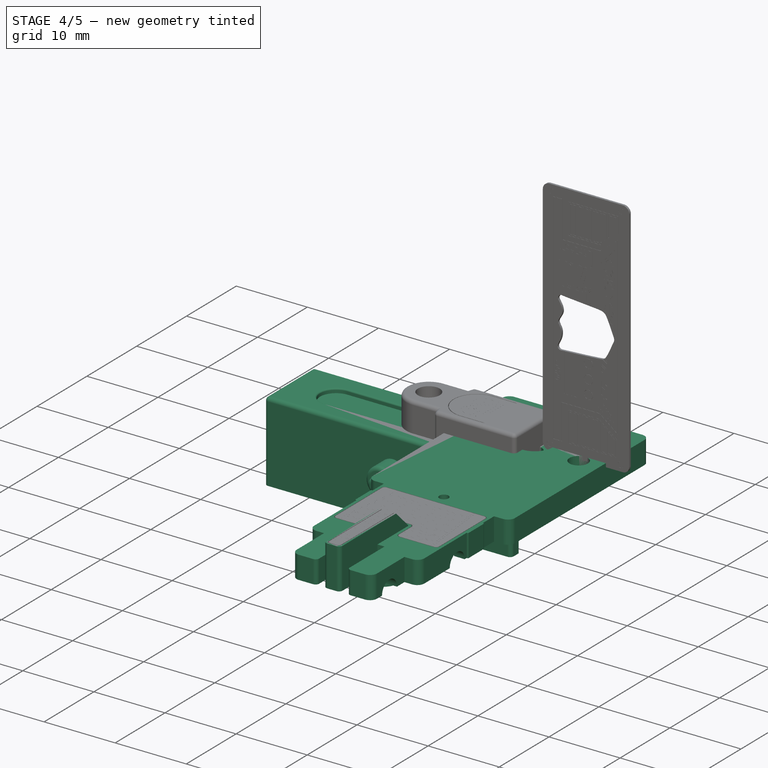
[diagram: stage 4 of 5 — iso view after this stage's code; geometry added in this stage tinted green]
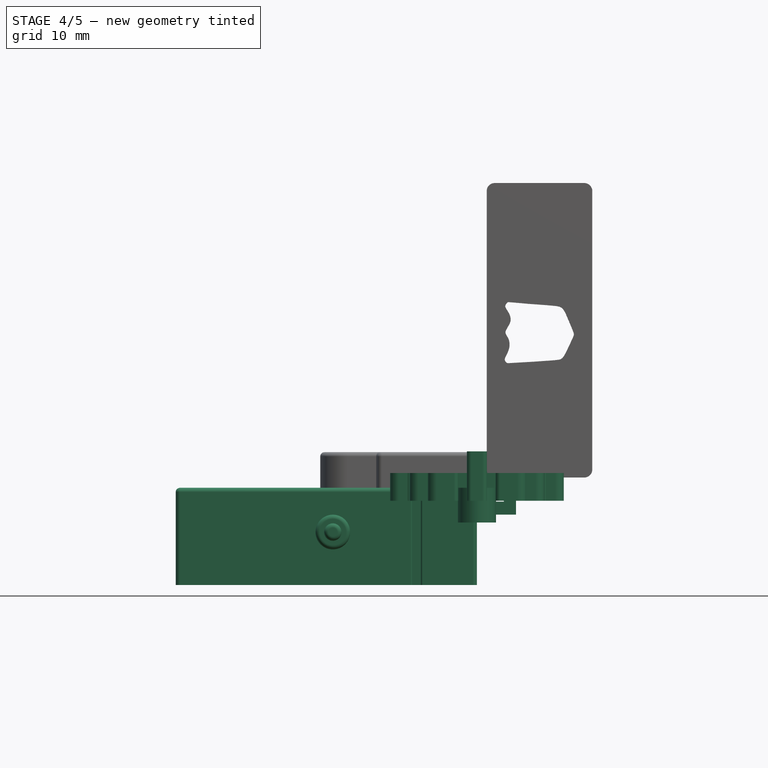
[diagram: stage 4 of 5 — front view after this stage's code; geometry added in this stage tinted green]
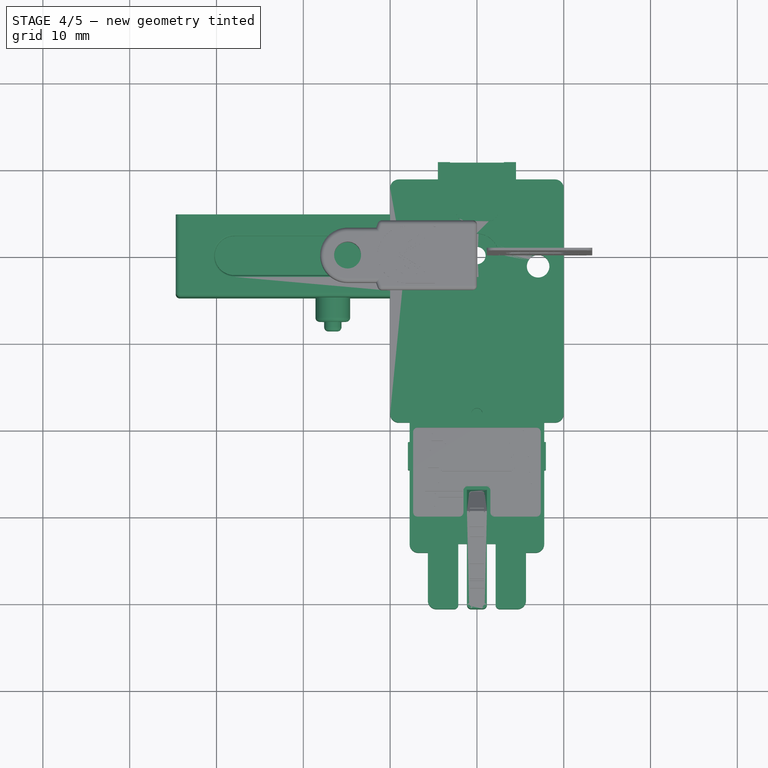
[diagram: stage 4 of 5 — top view after this stage's code; geometry added in this stage tinted green]
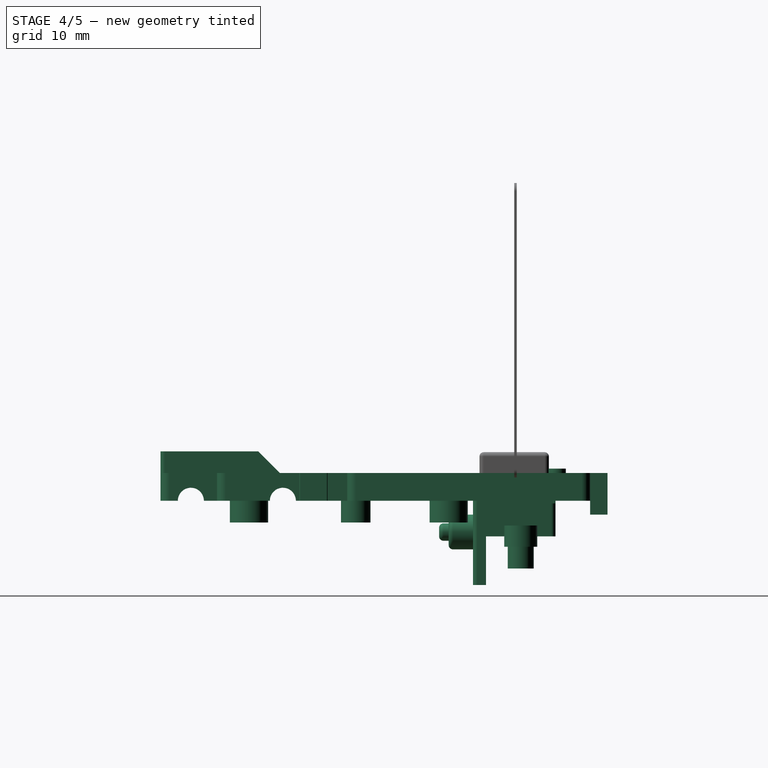
[diagram: stage 4 of 5 — right view after this stage's code; geometry added in this stage tinted green]
FEATURE [Sketcher::SketchObject] Sketch009
  ArcFitTolerance = 1e-06
  AttachmentSupport = -> [Pocket006]
  FullyConstrained = false
  MakeInternals = false
  MapMode = 5
  Placement = pos=(0,4.1e-15,0) rot=(1,0,0;1.5708rad)
  sketch-geometry (84):
    g0: ArcOfCircle CenterX=11.373 CenterY=21.0425 CenterZ=0 NormalX=0 NormalY=0 NormalZ=1 AngleXU=0 Radius=1.5415 StartAngle=2.26944 EndAngle=3.0506
    g1: ArcOfCircle CenterX=9.76507 CenterY=21.1829 CenterZ=0 NormalX=0 NormalY=0 NormalZ=1 AngleXU=0 Radius=1.28552 StartAngle=0.0641482 EndAngle=0.934075
    g2: ArcOfCircle CenterX=6.28576 CenterY=19.932 CenterZ=0 NormalX=0 NormalY=0 NormalZ=1 AngleXU=0 Radius=4.92199 StartAngle=6.24941 EndAngle=6.50687
    g3: ArcOfCircle CenterX=4.45267 CenterY=19.5827 CenterZ=0 NormalX=0 NormalY=0 NormalZ=1 AngleXU=0 Radius=6.75058 StartAngle=6.11425 EndAngle=6.28943
    g4: ArcOfCircle CenterX=11.184 CenterY=23.678 CenterZ=0 NormalX=0 NormalY=0 NormalZ=1 AngleXU=0 Radius=1.33694 StartAngle=3.22105 EndAngle=4.06734
    g5: ArcOfCircle CenterX=9.38739 CenterY=23.8345 CenterZ=0 NormalX=0 NormalY=0 NormalZ=1 AngleXU=0 Radius=1.67921 StartAngle=5.45532 EndAngle=6.16375
    g6: ArcOfCircle CenterX=16.2632 CenterY=24.8838 CenterZ=0 NormalX=0 NormalY=0 NormalZ=1 AngleXU=0 Radius=6.55424 StartAngle=3.11758 EndAngle=3.30866
    g7: ArcOfCircle CenterX=5.7482 CenterY=24.9493 CenterZ=0 NormalX=0 NormalY=0 NormalZ=1 AngleXU=0 Radius=5.46728 StartAngle=6.08258 EndAngle=6.30068
    g8: ArcOfCircle CenterX=14.8145 CenterY=25.4314 CenterZ=0 NormalX=0 NormalY=0 NormalZ=1 AngleXU=0 Radius=5.1138 StartAngle=2.95596 EndAngle=3.19107
    g9: ArcOfCircle CenterX=4.70307 CenterY=25.227 CenterZ=0 NormalX=0 NormalY=0 NormalZ=1 AngleXU=0 Radius=6.49997 StartAngle=6.2781 EndAngle=6.47293
    g10: ArcOfCircle CenterX=11.3054 CenterY=26.4852 CenterZ=0 NormalX=0 NormalY=0 NormalZ=1 AngleXU=0 Radius=1.48656 StartAngle=2.2506 EndAngle=3.0679
    g11: ArcOfCircle CenterX=9.73463 CenterY=26.5885 CenterZ=0 NormalX=0 NormalY=0 NormalZ=1 AngleXU=0 Radius=1.30853 StartAngle=0.069824 EndAngle=0.927729
    g12: LineSegment StartX=9.83791 StartY=21.1826 StartZ=0 EndX=10.3816 EndY=20.006 EndZ=0
    g13: LineSegment StartX=10.3816 StartY=20.006 StartZ=0 EndX=10.3816 EndY=22.2229 EndZ=0
    g14: LineSegment StartX=10.5294 StartY=22.2165 StartZ=0 EndX=10.5294 EndY=20.041 EndZ=0
    g15: LineSegment StartX=10.5294 StartY=20.041 StartZ=0 EndX=11.0479 EndY=21.2653 EndZ=0
    g16: LineSegment StartX=11.0851 StartY=21.0238 StartZ=0 EndX=10.572 EndY=19.7658 EndZ=0
    g17: LineSegment StartX=11.2049 StartY=19.7658 StartZ=0 EndX=10.572 EndY=19.7658 EndZ=0
    g18: LineSegment StartX=11.2031 StartY=19.6249 StartZ=0 EndX=10.5647 EndY=19.6249 EndZ=0
    g19: LineSegment StartX=10.5647 StartY=19.6249 StartZ=0 EndX=11.1072 EndY=18.4478 EndZ=0
    g20: LineSegment StartX=9.8513 StartY=23.5719 StartZ=0 EndX=10.3802 EndY=24.7698 EndZ=0
    g21: LineSegment StartX=10.3802 StartY=24.7698 StartZ=0 EndX=10.3802 EndY=22.6097 EndZ=0
    g22: LineSegment StartX=10.5233 StartY=22.5978 StartZ=0 EndX=10.5233 EndY=24.8047 EndZ=0
    g23: LineSegment StartX=10.5233 StartY=24.8047 StartZ=0 EndX=11.0546 EndY=23.6344 EndZ=0
    g24: LineSegment StartX=11.1058 StartY=23.8599 StartZ=0 EndX=10.5558 EndY=25.045 EndZ=0
    g25: LineSegment StartX=10.5558 StartY=25.045 StartZ=0 EndX=11.2146 EndY=25.045 EndZ=0
    g26: LineSegment StartX=11.203 StartY=25.194 StartZ=0 EndX=10.5593 EndY=25.194 EndZ=0
    g27: LineSegment StartX=10.5593 StartY=25.194 StartZ=0 EndX=11.0864 EndY=26.4529 EndZ=0
    g28: LineSegment StartX=11.04 StartY=26.6798 StartZ=0 EndX=10.5193 EndY=25.4386 EndZ=0
    g29: LineSegment StartX=10.5193 StartY=25.4386 StartZ=0 EndX=10.5193 EndY=27.6356 EndZ=0
    g30: LineSegment StartX=10.3708 StartY=27.6413 StartZ=0 EndX=10.3708 EndY=25.4385 EndZ=0
    g31: LineSegment StartX=10.3708 StartY=25.4385 StartZ=0 EndX=9.82283 EndY=26.5947 EndZ=0
    g32: LineSegment StartX=9.78858 StartY=26.3752 StartZ=0 EndX=10.3448 EndY=25.1784 EndZ=0
    g33: LineSegment StartX=9.70698 StartY=25.1784 StartZ=0 EndX=10.3448 EndY=25.1784 EndZ=0
    g34: LineSegment StartX=9.80025 StartY=23.7939 StartZ=0 EndX=10.3506 EndY=25.0411 EndZ=0
    g35: LineSegment StartX=10.3506 StartY=25.0411 StartZ=0 EndX=9.71088 EndY=25.0411 EndZ=0
    g36: ArcOfCircle CenterX=4.45267 CenterY=19.5827 CenterZ=0 NormalX=0 NormalY=0 NormalZ=1 AngleXU=0 Radius=6.74674 StartAngle=6.11609 EndAngle=6.28887
    g37: LineSegment StartX=11.1993 StartY=19.6211 StartZ=0 EndX=10.5707 EndY=19.6211 EndZ=0
    g38: LineSegment StartX=10.5707 StartY=19.6211 StartZ=0 EndX=11.1054 EndY=18.4606 EndZ=0
    g39: LineSegment StartX=10.5332 StartY=20.0599 StartZ=0 EndX=11.0441 EndY=21.266 EndZ=0
    g40: ArcOfCircle CenterX=9.76507 CenterY=21.1829 CenterZ=0 NormalX=0 NormalY=0 NormalZ=1 AngleXU=0 Radius=1.28168 StartAngle=0.0648571 EndAngle=0.928118
    g41: LineSegment StartX=10.5332 StartY=22.2089 StartZ=0 EndX=10.5332 EndY=20.0599 EndZ=0
    g42: LineSegment StartX=9.84183 StartY=21.1833 StartZ=0 EndX=10.3777 EndY=20.0235 EndZ=0
    g43: LineSegment StartX=10.3777 StartY=20.0235 StartZ=0 EndX=10.3777 EndY=22.2146 EndZ=0
    g44: ArcOfCircle CenterX=11.373 CenterY=21.0425 CenterZ=0 NormalX=0 NormalY=0 NormalZ=1 AngleXU=0 Radius=1.53765 StartAngle=2.27481 EndAngle=3.04993
    g45: ArcOfCircle CenterX=9.38739 CenterY=23.8345 CenterZ=0 NormalX=0 NormalY=0 NormalZ=1 AngleXU=0 Radius=1.67537 StartAngle=5.46055 EndAngle=6.16311
    g46: LineSegment StartX=10.5271 StartY=24.787 StartZ=0 EndX=11.0507 EndY=23.6338 EndZ=0
    g47: LineSegment StartX=10.5271 StartY=22.6066 StartZ=0 EndX=10.5271 EndY=24.787 EndZ=0
    g48: ArcOfCircle CenterX=16.2632 CenterY=24.8838 CenterZ=0 NormalX=0 NormalY=0 NormalZ=1 AngleXU=0 Radius=6.5504 StartAngle=3.11815 EndAngle=3.3067
    g49: LineSegment StartX=9.80192 StartY=23.8071 StartZ=0 EndX=10.3447 EndY=25.0373 EndZ=0
    g50: LineSegment StartX=10.3447 StartY=25.0373 StartZ=0 EndX=9.71464 EndY=25.0373 EndZ=0
    g51: ArcOfCircle CenterX=5.7482 CenterY=24.9493 CenterZ=0 NormalX=0 NormalY=0 NormalZ=1 AngleXU=0 Radius=5.46343 StartAngle=6.08473 EndAngle=6.29999
    g52: LineSegment StartX=10.5618 StartY=25.0411 StartZ=0 EndX=11.2109 EndY=25.0411 EndZ=0
    g53: LineSegment StartX=11.1044 StartY=23.8721 StartZ=0 EndX=10.5618 EndY=25.0411 EndZ=0
    g54: ArcOfCircle CenterX=9.73463 CenterY=26.5885 CenterZ=0 NormalX=0 NormalY=0 NormalZ=1 AngleXU=0 Radius=1.30469 StartAngle=0.0705239 EndAngle=0.92183
    g55: LineSegment StartX=10.5231 StartY=25.4577 StartZ=0 EndX=10.5231 EndY=27.6279 EndZ=0
    g56: LineSegment StartX=11.0361 StartY=26.6804 StartZ=0 EndX=10.5231 EndY=25.4577 EndZ=0
    g57: ArcOfCircle CenterX=11.3054 CenterY=26.4852 CenterZ=0 NormalX=0 NormalY=0 NormalZ=1 AngleXU=0 Radius=1.48272 StartAngle=2.25604 EndAngle=3.06721
    g58: LineSegment StartX=10.367 StartY=25.4556 StartZ=0 EndX=9.82673 EndY=26.5954 EndZ=0
    g59: LineSegment StartX=10.367 StartY=27.6333 StartZ=0 EndX=10.367 EndY=25.4556 EndZ=0
    g60: LineSegment StartX=9.79206 StartY=26.3768 StartZ=0 EndX=10.3483 EndY=25.1801 EndZ=0
    g61: ArcOfCircle CenterX=10.3448 CenterY=25.1784 CenterZ=0 NormalX=0 NormalY=0 NormalZ=-1 AngleXU=1.13571 Radius=0.00384167 StartAngle=1.5708 EndAngle=3.57668
    g62: LineSegment StartX=9.70698 StartY=25.1746 StartZ=0 EndX=10.3448 EndY=25.1746 EndZ=0
    g63: ArcOfCircle CenterX=9.70698 CenterY=25.1784 CenterZ=0 NormalX=0 NormalY=0 NormalZ=-1 AngleXU=-3.14159 Radius=0.00384167 StartAngle=1.5708 EndAngle=3.09211
    g64: ArcOfCircle CenterX=14.8145 CenterY=25.4314 CenterZ=0 NormalX=0 NormalY=0 NormalZ=1 AngleXU=0 Radius=5.11764 StartAngle=2.95596 EndAngle=3.19107
    g65: ArcOfCircle CenterX=9.78858 CenterY=26.3752 CenterZ=0 NormalX=0 NormalY=0 NormalZ=-1 AngleXU=-1.38516 Radius=0.00384167 StartAngle=1.5708 EndAngle=4.09167
    g66: LineSegment StartX=11.2049 StartY=19.762 StartZ=0 EndX=10.572 EndY=19.762 EndZ=0
    g67: ArcOfCircle CenterX=10.572 CenterY=19.7658 CenterZ=0 NormalX=0 NormalY=0 NormalZ=-1 AngleXU=-3.14159 Radius=0.00384167 StartAngle=1.5708 EndAngle=3.5289
    g68: LineSegment StartX=11.0816 StartY=21.0253 StartZ=0 EndX=10.5684 EndY=19.7672 EndZ=0
    g69: ArcOfCircle CenterX=11.0851 CenterY=21.0238 CenterZ=0 NormalX=0 NormalY=0 NormalZ=-1 AngleXU=-1.18349 Radius=0.00384167 StartAngle=1.5708 EndAngle=4.1014
    g70: ArcOfCircle CenterX=6.28576 CenterY=19.932 CenterZ=0 NormalX=0 NormalY=0 NormalZ=1 AngleXU=0 Radius=4.92584 StartAngle=6.24941 EndAngle=6.50687
    g71: ArcOfCircle CenterX=11.2049 CenterY=19.7658 CenterZ=0 NormalX=0 NormalY=0 NormalZ=-1 AngleXU=1.60458 Radius=0.00384167 StartAngle=1.5708 EndAngle=3.10781
    g72: LineSegment StartX=10.384 StartY=24.7698 StartZ=0 EndX=10.384 EndY=22.6097 EndZ=0
    g73: ArcOfCircle CenterX=10.3802 CenterY=22.6097 CenterZ=0 NormalX=0 NormalY=0 NormalZ=-1 AngleXU=1.5708 Radius=0.00384167 StartAngle=1.5708 EndAngle=3.78665
    g74: ArcOfCircle CenterX=11.184 CenterY=23.678 CenterZ=0 NormalX=0 NormalY=0 NormalZ=1 AngleXU=0 Radius=1.34078 StartAngle=3.22105 EndAngle=4.06734
    g75: ArcOfCircle CenterX=9.8513 CenterY=23.5719 CenterZ=0 NormalX=0 NormalY=0 NormalZ=-1 AngleXU=-1.65025 Radius=0.00384167 StartAngle=1.5708 EndAngle=2.06604
    g76: LineSegment StartX=9.84779 StartY=23.5735 StartZ=0 EndX=10.3767 EndY=24.7714 EndZ=0
    g77: ArcOfCircle CenterX=10.3802 CenterY=24.7698 CenterZ=0 NormalX=0 NormalY=0 NormalZ=-1 AngleXU=-1.15501 Radius=0.00384167 StartAngle=1.5708 EndAngle=4.2966
    g78: LineSegment StartX=11.203 StartY=25.1901 StartZ=0 EndX=10.5593 EndY=25.1901 EndZ=0
    g79: ArcOfCircle CenterX=10.5593 CenterY=25.194 CenterZ=0 NormalX=0 NormalY=0 NormalZ=-1 AngleXU=-3.14159 Radius=0.00384167 StartAngle=1.5708 EndAngle=3.5381
    g80: LineSegment StartX=10.5557 StartY=25.1955 StartZ=0 EndX=11.0828 EndY=26.4544 EndZ=0
    g81: ArcOfCircle CenterX=11.0864 CenterY=26.4529 CenterZ=0 NormalX=0 NormalY=0 NormalZ=-1 AngleXU=-1.17429 Radius=0.00384167 StartAngle=1.5708 EndAngle=4.12614
    g82: ArcOfCircle CenterX=4.70307 CenterY=25.227 CenterZ=0 NormalX=0 NormalY=0 NormalZ=1 AngleXU=0 Radius=6.50381 StartAngle=6.2781 EndAngle=6.47293
    g83: ArcOfCircle CenterX=11.203 CenterY=25.194 CenterZ=0 NormalX=0 NormalY=0 NormalZ=-1 AngleXU=1.57588 Radius=0.00384167 StartAngle=1.5708 EndAngle=3.13651
  constraints (96):
    c: Coincident(g12,g0)
    c: Coincident(g13,g12)
    c: Coincident(g13,g0)
    c: Vertical(g13)
    c: Coincident(g14,g1)
    c: Vertical(g14)
    c: Coincident(g15,g14)
    c: Coincident(g15,g1)
    c: Coincident(g16,g2)
    c: Coincident(g17,g2)
    c: Coincident(g17,g16)
    c: Horizontal(g17)
    c: Coincident(g18,g3)
    c: Horizontal(g18)
    c: Coincident(g19,g18)
    c: Coincident(g19,g3)
    c: Coincident(g20,g4)
    c: Coincident(g21,g20)
    c: Coincident(g21,g4)
    c: Vertical(g21)
    c: Coincident(g22,g5)
    c: Vertical(g22)
    c: Coincident(g23,g22)
    c: Coincident(g23,g5)
    c: Coincident(g24,g7)
    c: Coincident(g25,g24)
    c: Coincident(g25,g7)
    c: Horizontal(g25)
    c: Coincident(g26,g9)
    c: Horizontal(g26)
    c: Coincident(g27,g26)
    c: Coincident(g27,g9)
    c: Coincident(g28,g11)
    c: Coincident(g29,g28)
    c: Coincident(g29,g11)
    c: Vertical(g29)
    c: Coincident(g30,g10)
    c: Vertical(g30)
    c: Coincident(g31,g30)
    c: Coincident(g31,g10)
    c: Coincident(g32,g8)
    c: Coincident(g33,g8)
    c: Coincident(g33,g32)
    c: Horizontal(g33)
    c: Coincident(g34,g6)
    c: Coincident(g35,g34)
    c: Coincident(g35,g6)
    c: Horizontal(g35)
    c: Coincident(g36,g37)
    c: Coincident(g36,g38)
    c: Coincident(g37,g38)
    c: Coincident(g39,g40)
    c: Coincident(g39,g41)
    c: Coincident(g40,g41)
    c: Coincident(g42,g43)
    c: Coincident(g42,g44)
    c: Coincident(g43,g44)
    c: Coincident(g45,g46)
    c: Coincident(g45,g47)
    c: Coincident(g46,g47)
    c: Coincident(g48,g49)
    c: Coincident(g48,g50)
    c: Coincident(g49,g50)
    c: Coincident(g51,g52)
    c: Coincident(g51,g53)
    c: Coincident(g52,g53)
    c: Coincident(g54,g55)
    c: Coincident(g54,g56)
    c: Coincident(g55,g56)
    c: Coincident(g57,g58)
    c: Coincident(g57,g59)
    c: Coincident(g58,g59)
    c: Tangent(g60,g61) = 1.5708
    c: Tangent(g60,g65) = 1.5708
    c: Tangent(g61,g62) = -1.5708
    c: Tangent(g62,g63) = -1.5708
    c: Tangent(g63,g64) = -1.5708
    c: Tangent(g64,g65) = -1.5708
    c: Tangent(g66,g67) = 1.5708
    c: Tangent(g66,g71) = 1.5708
    c: Tangent(g67,g68) = -1.5708
    c: Tangent(g68,g69) = -1.5708
    c: Tangent(g69,g70) = -1.5708
    c: Tangent(g70,g71) = -1.5708
    c: Tangent(g72,g73) = 1.5708
    c: Tangent(g72,g77) = 1.5708
    c: Tangent(g73,g74) = -1.5708
    c: Tangent(g74,g75) = -1.5708
    c: Tangent(g75,g76) = 1.5708
    c: Tangent(g76,g77) = 1.5708
    c: Tangent(g78,g79) = 1.5708
    c: Tangent(g78,g83) = 1.5708
    c: Tangent(g79,g80) = 1.5708
    c: Tangent(g80,g81) = 1.5708
    c: Tangent(g81,g82) = -1.5708
    c: Tangent(g82,g83) = -1.5708
FEATURE [PartDesign::Pocket] Pocket007
  BaseFeature = -> Pocket006
  Direction = (0,1,-2e-16)
  Length = 0.15
  Length2 = 5
  Profile = -> Sketch009
  ReferenceAxis = -> Sketch009 [N_Axis]
  Refine = true
  Suppressed = false
  Type = 0
FEATURE [Sketcher::SketchObject] Sketch010
  ArcFitTolerance = 1e-06
  AttachmentSupport = -> [Pocket007]
  FullyConstrained = false
  MakeInternals = false
  MapMode = 5
  Placement = pos=(0,4.1e-15,0) rot=(1,0,0;1.5708rad)
  sketch-geometry (100):
    g0: ArcOfCircle CenterX=5.71527 CenterY=25.3385 CenterZ=0 NormalX=0 NormalY=0 NormalZ=1 AngleXU=0 Radius=0.301722 StartAngle=6.26829 EndAngle=9.42812
    g1: ArcOfCircle CenterX=5.71559 CenterY=23.1336 CenterZ=0 NormalX=0 NormalY=0 NormalZ=1 AngleXU=0 Radius=0.302241 StartAngle=3.1057 EndAngle=6.3594
    g2: LineSegment StartX=5.41355 StartY=23.1444 StartZ=0 EndX=5.41355 EndY=25.3375 EndZ=0
    g3: LineSegment StartX=6.01696 StartY=25.334 StartZ=0 EndX=6.01696 EndY=23.1566 EndZ=0
    g4: ArcOfCircle CenterX=4.85183 CenterY=25.3387 CenterZ=0 NormalX=0 NormalY=0 NormalZ=1 AngleXU=0 Radius=0.301625 StartAngle=6.26618 EndAngle=9.42781
    g5: ArcOfCircle CenterX=4.85182 CenterY=23.1407 CenterZ=0 NormalX=0 NormalY=0 NormalZ=1 AngleXU=0 Radius=0.302052 StartAngle=3.0876 EndAngle=6.33827
    g6: LineSegment StartX=4.55021 StartY=23.157 StartZ=0 EndX=4.55021 EndY=25.3378 EndZ=0
    g7: LineSegment StartX=5.15341 StartY=25.3336 StartZ=0 EndX=5.15341 EndY=23.1573 EndZ=0
    g8: ArcOfCircle CenterX=4.05099 CenterY=25.3389 CenterZ=0 NormalX=0 NormalY=0 NormalZ=1 AngleXU=0 Radius=0.301808 StartAngle=6.26409 EndAngle=9.42755
    g9: ArcOfCircle CenterX=4.05066 CenterY=23.1471 CenterZ=0 NormalX=0 NormalY=0 NormalZ=1 AngleXU=0 Radius=0.302319 StartAngle=3.06659 EndAngle=6.32205
    g10: LineSegment StartX=3.74919 StartY=23.1698 StartZ=0 EndX=3.74919 EndY=25.3381 EndZ=0
    g11: LineSegment StartX=4.35275 StartY=25.3331 StartZ=0 EndX=4.35275 EndY=23.1589 EndZ=0
    g12: ArcOfCircle CenterX=6.46672 CenterY=23.1091 CenterZ=0 NormalX=0 NormalY=0 NormalZ=1 AngleXU=0 Radius=0.263556 StartAngle=3.08762 EndAngle=6.2805
    g13: ArcOfCircle CenterX=7.05888 CenterY=25.3621 CenterZ=0 NormalX=0 NormalY=0 NormalZ=1 AngleXU=0 Radius=0.263216 StartAngle=6.1919 EndAngle=9.50136
    g14: LineSegment StartX=6.20355 StartY=23.1233 StartZ=0 EndX=6.20355 EndY=23.508 EndZ=0
    g15: LineSegment StartX=6.20355 StartY=23.508 StartZ=0 EndX=6.79643 EndY=25.342 EndZ=0
    g16: LineSegment StartX=6.73027 StartY=23.1084 StartZ=0 EndX=6.73027 EndY=23.3758 EndZ=0
    g17: LineSegment StartX=6.73027 StartY=23.3758 StartZ=0 EndX=7.321 EndY=25.2138 EndZ=0
    g18: LineSegment StartX=7.321 StartY=25.2138 StartZ=0 EndX=7.321 EndY=25.3381 EndZ=0
    g19: ArcOfCircle CenterX=3.68118 CenterY=26.9659 CenterZ=0 NormalX=0 NormalY=0 NormalZ=1 AngleXU=0 Radius=0.278351 StartAngle=1.38835 EndAngle=3.04953
    g20: LineSegment StartX=3.404 StartY=26.9915 StartZ=0 EndX=3.404 EndY=25.8287 EndZ=0
    g21: LineSegment StartX=3.404 StartY=25.8287 StartZ=0 EndX=7.49932 EndY=25.8287 EndZ=0
    g22: LineSegment StartX=7.49932 StartY=25.8287 StartZ=0 EndX=7.49932 EndY=27.2396 EndZ=0
    g23: LineSegment StartX=7.49932 StartY=27.2396 StartZ=0 EndX=3.73168 EndY=27.2396 EndZ=0
    g24: ArcOfCircle CenterX=7.67614 CenterY=26.3146 CenterZ=0 NormalX=0 NormalY=0 NormalZ=1 AngleXU=0 Radius=0.376198 StartAngle=4.99836 EndAngle=6.18091
    g25: LineSegment StartX=8.05037 StartY=26.2762 StartZ=0 EndX=8.05037 EndY=28.0271 EndZ=0
    g26: LineSegment StartX=8.05037 StartY=28.0271 StartZ=0 EndX=4.44021 EndY=28.0271 EndZ=0
    g27: LineSegment StartX=4.44021 StartY=28.0271 StartZ=0 EndX=3.95489 EndY=27.5002 EndZ=0
    g28: LineSegment StartX=3.95489 StartY=27.5002 StartZ=0 EndX=7.78226 EndY=27.5002 EndZ=0
    g29: LineSegment StartX=7.78226 StartY=27.5002 StartZ=0 EndX=7.78226 EndY=25.9537 EndZ=0
    g30: ArcOfCircle CenterX=4.07702 CenterY=21.8437 CenterZ=0 NormalX=0 NormalY=0 NormalZ=1 AngleXU=0 Radius=0.777711 StartAngle=3.40246 EndAngle=4.5711
    g31: LineSegment StartX=3.32562 StartY=21.6431 StartZ=0 EndX=3.32562 EndY=22.6019 EndZ=0
    g32: LineSegment StartX=3.32562 StartY=22.6019 StartZ=0 EndX=7.31513 EndY=22.6019 EndZ=0
    g33: LineSegment StartX=7.31513 StartY=22.6019 StartZ=0 EndX=7.31513 EndY=21.0737 EndZ=0
    g34: LineSegment StartX=7.31513 StartY=21.0737 StartZ=0 EndX=3.9675 EndY=21.0737 EndZ=0
    g35: LineSegment StartX=6.95867 StartY=23.2839 StartZ=0 EndX=7.89634 EndY=23.2839 EndZ=0
    g36: LineSegment StartX=7.89634 StartY=23.2839 StartZ=0 EndX=7.38583 EndY=22.7942 EndZ=0
    g37: LineSegment StartX=7.38583 StartY=22.7942 StartZ=0 EndX=6.95867 EndY=22.7942 EndZ=0
    g38: LineSegment StartX=6.95867 StartY=22.7942 StartZ=0 EndX=6.95867 EndY=23.2839 EndZ=0
    g39: LineSegment StartX=8.07872 StartY=23.1406 StartZ=0 EndX=7.56555 EndY=22.6978 EndZ=0
    g40: LineSegment StartX=7.56555 StartY=22.6978 StartZ=0 EndX=7.56555 EndY=21.1131 EndZ=0
    g41: LineSegment StartX=7.56555 StartY=21.1131 StartZ=0 EndX=8.07872 EndY=21.6288 EndZ=0
    g42: LineSegment StartX=8.07872 StartY=21.6288 StartZ=0 EndX=8.07872 EndY=23.1406 EndZ=0
    g43: LineSegment StartX=7.38455 StartY=22.7974 StartZ=0 EndX=6.96184 EndY=22.7974 EndZ=0
    g44: LineSegment StartX=6.96184 StartY=22.7974 StartZ=0 EndX=6.96184 EndY=23.2807 EndZ=0
    g45: LineSegment StartX=6.96184 StartY=23.2807 StartZ=0 EndX=7.88845 EndY=23.2807 EndZ=0
    g46: LineSegment StartX=7.88845 StartY=23.2807 StartZ=0 EndX=7.38455 EndY=22.7974 EndZ=0
    g47: LineSegment StartX=3.32879 StartY=21.6435 StartZ=0 EndX=3.32879 EndY=22.5987 EndZ=0
    g48: LineSegment StartX=3.32879 StartY=22.5987 StartZ=0 EndX=7.31196 EndY=22.5987 EndZ=0
    g49: LineSegment StartX=7.31196 StartY=22.5987 StartZ=0 EndX=7.31196 EndY=21.0769 EndZ=0
    g50: LineSegment StartX=7.31196 StartY=21.0769 StartZ=0 EndX=3.96772 EndY=21.0769 EndZ=0
    g51: ArcOfCircle CenterX=4.07702 CenterY=21.8437 CenterZ=0 NormalX=0 NormalY=0 NormalZ=1 AngleXU=0 Radius=0.774539 StartAngle=3.40299 EndAngle=4.57081
    g52: LineSegment StartX=4.34958 StartY=25.3332 StartZ=0 EndX=4.34958 EndY=23.1587 EndZ=0
    g53: ArcOfCircle CenterX=4.05066 CenterY=23.1471 CenterZ=0 NormalX=0 NormalY=0 NormalZ=1 AngleXU=0 Radius=0.299142 StartAngle=3.06659 EndAngle=6.32205
    g54: ArcOfCircle CenterX=4.05099 CenterY=25.3389 CenterZ=0 NormalX=0 NormalY=0 NormalZ=1 AngleXU=0 Radius=0.298636 StartAngle=6.26409 EndAngle=9.42755
    g55: ArcOfCircle CenterX=3.68118 CenterY=26.9659 CenterZ=0 NormalX=0 NormalY=0 NormalZ=1 AngleXU=0 Radius=0.281523 StartAngle=1.38939 EndAngle=3.04953
    g56: LineSegment StartX=3.40084 StartY=26.9918 StartZ=0 EndX=3.40083 EndY=25.8287 EndZ=0
    g57: ArcOfCircle CenterX=3.404 CenterY=25.8287 CenterZ=0 NormalX=0 NormalY=0 NormalZ=-1 AngleXU=-3.14159 Radius=0.00317206 StartAngle=1.5708 EndAngle=3.1416
    g58: LineSegment StartX=3.404 StartY=25.8255 StartZ=0 EndX=7.49932 EndY=25.8255 EndZ=0
    g59: ArcOfCircle CenterX=7.49932 CenterY=25.8287 CenterZ=0 NormalX=0 NormalY=0 NormalZ=-1 AngleXU=1.5708 Radius=0.0031721 StartAngle=1.5708 EndAngle=3.14159
    g60: LineSegment StartX=7.50249 StartY=25.8287 StartZ=0 EndX=7.50249 EndY=27.2396 EndZ=0
    g61: ArcOfCircle CenterX=7.49932 CenterY=27.2396 CenterZ=0 NormalX=0 NormalY=0 NormalZ=-1 AngleXU=0 Radius=0.0031721 StartAngle=1.5708 EndAngle=3.14159
    g62: LineSegment StartX=7.49932 StartY=27.2428 StartZ=0 EndX=3.73197 EndY=27.2428 EndZ=0
    g63: ArcOfCircle CenterX=7.78226 CenterY=25.9537 CenterZ=0 NormalX=0 NormalY=0 NormalZ=-1 AngleXU=2.85562 Radius=0.0031721 StartAngle=1.5708 EndAngle=3.42756
    g64: ArcOfCircle CenterX=7.67614 CenterY=26.3146 CenterZ=0 NormalX=0 NormalY=0 NormalZ=1 AngleXU=0 Radius=0.37937 StartAngle=4.99836 EndAngle=6.18091
    g65: ArcOfCircle CenterX=8.05037 CenterY=26.2762 CenterZ=0 NormalX=0 NormalY=0 NormalZ=-1 AngleXU=1.5708 Radius=0.0031721 StartAngle=1.5708 EndAngle=1.67307
    g66: LineSegment StartX=8.05354 StartY=26.2762 StartZ=0 EndX=8.05354 EndY=28.0271 EndZ=0
    g67: ArcOfCircle CenterX=8.05037 CenterY=28.0271 CenterZ=0 NormalX=0 NormalY=0 NormalZ=-1 AngleXU=0 Radius=0.0031721 StartAngle=1.5708 EndAngle=3.14159
    g68: LineSegment StartX=8.05037 StartY=28.0303 StartZ=0 EndX=4.44021 EndY=28.0303 EndZ=0
    g69: ArcOfCircle CenterX=4.44021 CenterY=28.0271 CenterZ=0 NormalX=0 NormalY=0 NormalZ=-1 AngleXU=-0.826493 Radius=0.0031721 StartAngle=1.5708 EndAngle=2.39729
    g70: LineSegment StartX=4.43788 StartY=28.0293 StartZ=0 EndX=3.95255 EndY=27.5023 EndZ=0
    g71: ArcOfCircle CenterX=3.95489 CenterY=27.5002 CenterZ=0 NormalX=0 NormalY=0 NormalZ=-1 AngleXU=-3.14159 Radius=0.0031721 StartAngle=1.5708 EndAngle=3.8859
    g72: LineSegment StartX=3.95489 StartY=27.497 StartZ=0 EndX=7.77909 EndY=27.497 EndZ=0
    g73: LineSegment StartX=7.77909 StartY=27.497 StartZ=0 EndX=7.77909 EndY=25.9537 EndZ=0
    g74: LineSegment StartX=7.5678 StartY=21.1108 StartZ=0 EndX=8.08097 EndY=21.6266 EndZ=0
    g75: ArcOfCircle CenterX=8.07872 CenterY=21.6288 CenterZ=0 NormalX=0 NormalY=0 NormalZ=-1 AngleXU=1.5708 Radius=0.0031721 StartAngle=1.5708 EndAngle=2.35372
    g76: LineSegment StartX=8.08189 StartY=21.6288 StartZ=0 EndX=8.08189 EndY=23.1406 EndZ=0
    g77: ArcOfCircle CenterX=8.07872 CenterY=23.1406 CenterZ=0 NormalX=0 NormalY=0 NormalZ=-1 AngleXU=-0.711909 Radius=0.0031721 StartAngle=1.5708 EndAngle=3.8535
    g78: LineSegment StartX=8.07665 StartY=23.143 StartZ=0 EndX=7.56348 EndY=22.7002 EndZ=0
    g79: ArcOfCircle CenterX=7.56555 CenterY=22.6978 CenterZ=0 NormalX=0 NormalY=0 NormalZ=-1 AngleXU=-1.5708 Radius=0.0031721 StartAngle=1.5708 EndAngle=2.42968
    g80: LineSegment StartX=7.56238 StartY=22.6978 StartZ=0 EndX=7.56238 EndY=21.1131 EndZ=0
    g81: ArcOfCircle CenterX=7.56555 CenterY=21.1131 CenterZ=0 NormalX=0 NormalY=0 NormalZ=-1 AngleXU=2.35372 Radius=0.0031721 StartAngle=1.5708 EndAngle=3.92947
    g82: ArcOfCircle CenterX=7.32099 CenterY=25.2138 CenterZ=0 NormalX=0 NormalY=0 NormalZ=-1 AngleXU=1.5708 Radius=0.0031721 StartAngle=1.5708 EndAngle=1.88178
    g83: LineSegment StartX=7.32417 StartY=25.2138 StartZ=0 EndX=7.32417 EndY=25.338 EndZ=0
    g84: ArcOfCircle CenterX=7.05888 CenterY=25.3621 CenterZ=0 NormalX=0 NormalY=0 NormalZ=1 AngleXU=0 Radius=0.266388 StartAngle=6.19245 EndAngle=9.499
    g85: LineSegment StartX=6.20053 StartY=23.5089 StartZ=0 EndX=6.79322 EndY=25.3424 EndZ=0
    g86: ArcOfCircle CenterX=6.20355 CenterY=23.508 CenterZ=0 NormalX=0 NormalY=0 NormalZ=-1 AngleXU=-1.5708 Radius=0.0031721 StartAngle=1.5708 EndAngle=1.88346
    g87: LineSegment StartX=6.20037 StartY=23.1234 StartZ=0 EndX=6.20037 EndY=23.508 EndZ=0
    g88: ArcOfCircle CenterX=6.46672 CenterY=23.1091 CenterZ=0 NormalX=0 NormalY=0 NormalZ=1 AngleXU=0 Radius=0.266728 StartAngle=3.08794 EndAngle=6.2805
    g89: LineSegment StartX=6.73345 StartY=23.1083 StartZ=0 EndX=6.73345 EndY=23.3753 EndZ=0
    g90: LineSegment StartX=6.73345 StartY=23.3753 StartZ=0 EndX=7.32401 EndY=25.2128 EndZ=0
    g91: LineSegment StartX=4.54703 StartY=23.1571 StartZ=0 EndX=4.54703 EndY=25.3378 EndZ=0
    g92: ArcOfCircle CenterX=4.85182 CenterY=23.1407 CenterZ=0 NormalX=0 NormalY=0 NormalZ=1 AngleXU=0 Radius=0.305224 StartAngle=3.08788 EndAngle=6.33798
    g93: LineSegment StartX=5.15658 StartY=25.3336 StartZ=0 EndX=5.15658 EndY=23.1574 EndZ=0
    g94: ArcOfCircle CenterX=4.85183 CenterY=25.3387 CenterZ=0 NormalX=0 NormalY=0 NormalZ=1 AngleXU=0 Radius=0.304797 StartAngle=6.26627 EndAngle=9.4278
    g95: LineSegment StartX=5.41038 StartY=23.1445 StartZ=0 EndX=5.41038 EndY=25.3375 EndZ=0
    g96: ArcOfCircle CenterX=5.71559 CenterY=23.1336 CenterZ=0 NormalX=0 NormalY=0 NormalZ=1 AngleXU=0 Radius=0.305413 StartAngle=3.10589 EndAngle=6.359
    g97: LineSegment StartX=6.02013 StartY=25.334 StartZ=0 EndX=6.02013 EndY=23.1567 EndZ=0
    g98: ArcOfCircle CenterX=5.71527 CenterY=25.3385 CenterZ=0 NormalX=0 NormalY=0 NormalZ=1 AngleXU=0 Radius=0.304894 StartAngle=6.26836 EndAngle=9.4281
    g99: LineSegment StartX=3.75236 StartY=25.3381 StartZ=0 EndX=3.75236 EndY=23.1695 EndZ=0
  constraints (127):
    c: Coincident(g2,g1)
    c: Coincident(g2,g0)
    c: Vertical(g2)
    c: Coincident(g3,g0)
    c: Coincident(g3,g1)
    c: Vertical(g3)
    c: Coincident(g6,g5)
    c: Coincident(g6,g4)
    c: Vertical(g6)
    c: Coincident(g7,g4)
    c: Coincident(g7,g5)
    c: Vertical(g7)
    c: Coincident(g10,g9)
    c: Coincident(g10,g8)
    c: Vertical(g10)
    c: Coincident(g11,g8)
    c: Coincident(g11,g9)
    c: Vertical(g11)
    c: Coincident(g14,g12)
    c: Vertical(g14)
    c: Coincident(g15,g14)
    c: Coincident(g15,g13)
    c: Coincident(g16,g12)
    c: Vertical(g16)
    c: Coincident(g17,g16)
    c: Coincident(g18,g17)
    c: Coincident(g18,g13)
    c: Vertical(g18)
    c: Coincident(g20,g19)
    c: Vertical(g20)
    c: Coincident(g21,g20)
    c: Horizontal(g21)
    c: Coincident(g22,g21)
    c: Vertical(g22)
    c: Coincident(g23,g22)
    c: Coincident(g23,g19)
    c: Horizontal(g23)
    c: Coincident(g25,g24)
    c: Vertical(g25)
    c: Coincident(g26,g25)
    c: Horizontal(g26)
    c: Coincident(g27,g26)
    c: Coincident(g28,g27)
    c: Horizontal(g28)
    c: Coincident(g29,g28)
    c: Coincident(g29,g24)
    c: Vertical(g29)
    c: Coincident(g31,g30)
    c: Vertical(g31)
    c: Coincident(g32,g31)
    c: Horizontal(g32)
    c: Coincident(g33,g32)
    c: Vertical(g33)
    c: Coincident(g34,g33)
    c: Coincident(g34,g30)
    c: Horizontal(g34)
    c: Horizontal(g35)
    c: Coincident(g36,g35)
    c: Coincident(g37,g36)
    c: Horizontal(g37)
    c: Coincident(g38,g37)
    c: Coincident(g38,g35)
    c: Vertical(g38)
    c: Coincident(g40,g39)
    c: Vertical(g40)
    c: Coincident(g41,g40)
    c: Coincident(g42,g41)
    c: Coincident(g42,g39)
    c: Vertical(g42)
    c: Coincident(g43,g44)
    c: Coincident(g43,g46)
    c: Coincident(g44,g45)
    c: Coincident(g45,g46)
    c: Coincident(g47,g48)
    c: Coincident(g47,g51)
    c: Coincident(g48,g49)
    c: Coincident(g49,g50)
    c: Coincident(g50,g51)
    c: Coincident(g55,g62)
    c: Tangent(g56,g57) = -1.5708
    c: Tangent(g57,g58) = -1.5708
    c: Tangent(g58,g59) = -1.5708
    c: Tangent(g59,g60) = -1.5708
    c: Tangent(g60,g61) = -1.5708
    c: Tangent(g61,g62) = -1.5708
    c: Tangent(g63,g64) = -1.5708
    c: Tangent(g63,g73) = -1.5708
    c: Tangent(g64,g65) = -1.5708
    c: Tangent(g65,g66) = -1.5708
    c: Tangent(g66,g67) = -1.5708
    c: Tangent(g67,g68) = -1.5708
    c: Tangent(g68,g69) = -1.5708
    c: Tangent(g69,g70) = -1.5708
    c: Tangent(g70,g71) = -1.5708
    c: Tangent(g71,g72) = -1.5708
    c: Coincident(g72,g73)
    c: Tangent(g74,g75) = -1.5708
    c: Tangent(g74,g81) = -1.5708
    c: Tangent(g75,g76) = -1.5708
    c: Tangent(g76,g77) = -1.5708
    c: Tangent(g77,g78) = -1.5708
    c: Tangent(g78,g79) = -1.5708
    c: Tangent(g79,g80) = -1.5708
    c: Tangent(g80,g81) = -1.5708
    c: Tangent(g82,g83) = -1.5708
    c: Tangent(g82,g90) = -1.5708
    c: Coincident(g83,g84)
    c: Coincident(g84,g85)
    c: Tangent(g85,g86) = 1.5708
    c: Tangent(g86,g87) = 1.5708
    c: Coincident(g87,g88)
    c: Coincident(g89,g90)
    c: Coincident(g91,g92)
    c: Coincident(g91,g94)
    c: Coincident(g92,g93)
    c: Coincident(g93,g94)
    c: Coincident(g95,g96)
    c: Coincident(g95,g98)
    c: Coincident(g96,g97)
    c: Coincident(g97,g98)
    c: Coincident(g52,g53)
    c: Coincident(g89,g88)
    c: Coincident(g54,g52)
    c: Coincident(g99,g54)
    c: Coincident(g99,g53)
    c: Vertical(g99)
    c: Coincident(g55,g56)
FEATURE [PartDesign::Pocket] Pocket008
  BaseFeature = -> Pocket007
  Direction = (0,1,-2e-16)
  Length = 0.15
  Length2 = 5
  Profile = -> Sketch010
  ReferenceAxis = -> Sketch010 [N_Axis]
  Refine = true
  Suppressed = false
  Type = 0
FEATURE [PartDesign::Body] Body005  label="Sticker3"
  AllowCompound = false
  Group = -> [Binder001,Sketch011,Pad002,Sketch012,Pocket010]
  Origin = -> Origin005
  Tip = -> Pocket010
FEATURE [Part::Feature] Part__Feature003  label="Left_Arm_Shileld"
  shape: bbox 34.7 x 13.4 x 11.24 mm, 74 faces (baked)
FEATURE [PartDesign::FeatureBase] BaseFeature003
  BaseFeature = -> Part__Feature003
  Suppressed = false
FEATURE [PartDesign::Pocket] Pocket011
  BaseFeature = -> BaseFeature003
  Direction = (0,0,-1)
  Length = 0.3
  Length2 = 5
  Profile = -> BaseFeature003 [Face44]
  Refine = true
  Suppressed = false
  Type = 0
FEATURE [PartDesign::Body] Body006  label="Left_Arm_Shield_Stickered"
  AllowCompound = false
  BaseFeature = -> Part__Feature003
  Group = -> [BaseFeature003,Pocket011]
  Origin = -> Origin006
  Tip = -> Pocket011
FEATURE [Part::Feature] Part__Feature004  label="Front_Torso"
  shape: bbox 20 x 51.5 x 8.2 mm, 188 faces (baked)
FEATURE [PartDesign::FeatureBase] BaseFeature004
  BaseFeature = -> Part__Feature004
  Suppressed = false
FEATURE [Image::ImagePlane] Sticker4  label="S4"
  Placement = pos=(0.22,-25,0) rot=(0,0,-1;3.14159rad)
  XSize = 15.7132
  YSize = 10.9252
FEATURE [Image::ImagePlane] Sticker5  label="S5"
  Placement = pos=(-7.5e-15,-33.85,0) rot=(0,0,1;1.5708rad)
  XSize = 15.0385
  YSize = 3.61965
FEATURE [Sketcher::SketchObject] Sketch013
  ArcFitTolerance = 1e-06
  AttachmentSupport = -> [BaseFeature004]
  ExternalGeometry = -> [BaseFeature004]
  FullyConstrained = true
  MakeInternals = false
  MapMode = 5
  Placement = pos=(0,0,1.7) rot=(0,0,1;0rad)
  sketch-geometry (33):
    g0: LineSegment StartX=6.85 StartY=-19.85 StartZ=0 EndX=-6.85 EndY=-19.85 EndZ=0
    g1: LineSegment StartX=-7.35 StartY=-20.35 StartZ=0 EndX=-7.35 EndY=-29.6 EndZ=0
    g2: LineSegment StartX=-6.85 StartY=-30.1 StartZ=0 EndX=-2.05 EndY=-30.1 EndZ=0
    g3: LineSegment StartX=-1.55 StartY=-29.6 StartZ=0 EndX=-1.55 EndY=-27.1 EndZ=0
    g4: LineSegment StartX=-1.05 StartY=-26.6 StartZ=0 EndX=1.05 EndY=-26.6 EndZ=0
    g5: LineSegment StartX=1.55 StartY=-27.1 StartZ=0 EndX=1.55 EndY=-29.6 EndZ=0
    g6: LineSegment StartX=2.05 StartY=-30.1 StartZ=0 EndX=6.85 EndY=-30.1 EndZ=0
    g7: LineSegment StartX=7.35 StartY=-29.6 StartZ=0 EndX=7.35 EndY=-20.35 EndZ=0
    g8: ArcOfCircle CenterX=-1.05 CenterY=-27.1 CenterZ=0 NormalX=0 NormalY=0 NormalZ=1 AngleXU=0 Radius=0.5 StartAngle=1.5708 EndAngle=3.14159
    g9: ArcOfCircle CenterX=1.05 CenterY=-27.1 CenterZ=0 NormalX=0 NormalY=0 NormalZ=1 AngleXU=0 Radius=0.5 StartAngle=4e-16 EndAngle=1.5708
    g10: ArcOfCircle CenterX=-2.05 CenterY=-29.6 CenterZ=0 NormalX=0 NormalY=0 NormalZ=1 AngleXU=0 Radius=0.5 StartAngle=4.71239 EndAngle=6.28319
    g11: ArcOfCircle CenterX=2.05 CenterY=-29.6 CenterZ=0 NormalX=0 NormalY=0 NormalZ=1 AngleXU=0 Radius=0.5 StartAngle=3.14159 EndAngle=4.71239
    g12: ArcOfCircle CenterX=6.85 CenterY=-29.6 CenterZ=0 NormalX=0 NormalY=0 NormalZ=1 AngleXU=0 Radius=0.5 StartAngle=4.71239 EndAngle=6.28319
    g13: ArcOfCircle CenterX=6.85 CenterY=-20.35 CenterZ=0 NormalX=0 NormalY=0 NormalZ=1 AngleXU=0 Radius=0.5 StartAngle=-1.8e-15 EndAngle=1.5708
    g14: ArcOfCircle CenterX=-6.85 CenterY=-20.35 CenterZ=0 NormalX=0 NormalY=0 NormalZ=1 AngleXU=0 Radius=0.5 StartAngle=1.5708 EndAngle=3.14159
    g15: ArcOfCircle CenterX=-6.85 CenterY=-29.6 CenterZ=0 NormalX=0 NormalY=0 NormalZ=1 AngleXU=0 Radius=0.5 StartAngle=3.14159 EndAngle=4.71239
    g16: LineSegment [constr] StartX=-6.85 StartY=-30.1 StartZ=0 EndX=-6.85 EndY=-29.6 EndZ=0
    g17: LineSegment [constr] StartX=-6.85 StartY=-29.6 StartZ=0 EndX=-7.35 EndY=-29.6 EndZ=0
    g18: LineSegment [constr] StartX=-1.55 StartY=-29.6 StartZ=0 EndX=-2.05 EndY=-29.6 EndZ=0
    g19: LineSegment [constr] StartX=-2.05 StartY=-30.1 StartZ=0 EndX=-2.05 EndY=-29.6 EndZ=0
    g20: LineSegment [constr] StartX=-1.55 StartY=-27.1 StartZ=0 EndX=-1.05 EndY=-27.1 EndZ=0
    g21: LineSegment [constr] StartX=-1.05 StartY=-27.1 StartZ=0 EndX=-1.05 EndY=-26.6 EndZ=0
    g22: LineSegment [constr] StartX=1.05 StartY=-26.6 StartZ=0 EndX=1.05 EndY=-27.1 EndZ=0
    g23: LineSegment [constr] StartX=1.05 StartY=-27.1 StartZ=0 EndX=1.55 EndY=-27.1 EndZ=0
    g24: LineSegment [constr] StartX=1.55 StartY=-29.6 StartZ=0 EndX=2.05 EndY=-29.6 EndZ=0
    g25: LineSegment [constr] StartX=2.05 StartY=-29.6 StartZ=0 EndX=2.05 EndY=-30.1 EndZ=0
    g26: LineSegment [constr] StartX=6.85 StartY=-30.1 StartZ=0 EndX=6.85 EndY=-29.6 EndZ=0
    g27: LineSegment [constr] StartX=6.85 StartY=-29.6 StartZ=0 EndX=7.35 EndY=-29.6 EndZ=0
    g28: LineSegment [constr] StartX=-6.85 StartY=-19.85 StartZ=0 EndX=-6.85 EndY=-20.35 EndZ=0
    g29: LineSegment [constr] StartX=-6.85 StartY=-20.35 StartZ=0 EndX=-7.35 EndY=-20.35 EndZ=0
    g30: LineSegment [constr] StartX=7.35 StartY=-20.35 StartZ=0 EndX=6.85 EndY=-20.35 EndZ=0
    g31: LineSegment [constr] StartX=6.85 StartY=-20.35 StartZ=0 EndX=6.85 EndY=-19.85 EndZ=0
    g32: LineSegment [constr] StartX=-2.05 StartY=-30.1 StartZ=0 EndX=2.05 EndY=-30.1 EndZ=0
  constraints (90):
    c: Horizontal(g0)
    c: Vertical(g1)
    c: Horizontal(g2)
    c: Horizontal(g4)
    c: Vertical(g5)
    c: Horizontal(g6)
    c: Vertical(g7)
    c: Vertical(g3)
    c: Coincident(g8,g4)
    c: Coincident(g8,g3)
    c: Coincident(g9,g4)
    c: Coincident(g9,g5)
    c: Coincident(g10,g3)
    c: Coincident(g10,g2)
    c: Coincident(g11,g5)
    c: Coincident(g11,g6)
    c: Coincident(g12,g6)
    c: Coincident(g12,g7)
    c: Coincident(g13,g0)
    c: Coincident(g13,g7)
    c: Coincident(g14,g0)
    c: Coincident(g14,g1)
    c: Coincident(g15,g2)
    c: Coincident(g15,g1)
    c: Coincident(g16,g2)
    c: Coincident(g16,g15)
    c: Coincident(g17,g15)
    c: Coincident(g17,g1)
    c: Horizontal(g17)
    c: Coincident(g18,g3)
    c: Coincident(g18,g10)
    c: Coincident(g19,g2)
    c: Coincident(g19,g10)
    c: Vertical(g19)
    c: Coincident(g20,g3)
    c: Coincident(g20,g8)
    c: Coincident(g21,g8)
    c: Coincident(g21,g4)
    c: Coincident(g22,g4)
    c: Coincident(g22,g9)
    c: Coincident(g23,g9)
    c: Coincident(g23,g5)
    c: Coincident(g24,g5)
    c: Coincident(g24,g11)
    c: Coincident(g25,g11)
    c: Coincident(g25,g6)
    c: Coincident(g26,g6)
    c: Coincident(g26,g12)
    c: Coincident(g27,g12)
    c: Coincident(g27,g7)
    c: Horizontal(g27)
    c: Vertical(g26)
    c: Vertical(g25)
    c: Vertical(g22)
    c: Vertical(g21)
    c: Vertical(g16)
    c: Horizontal(g18)
    c: Horizontal(g20)
    c: Horizontal(g23)
    c: Horizontal(g24)
    c: Coincident(g28,g0)
    c: Coincident(g28,g14)
    c: Coincident(g29,g14)
    c: Coincident(g29,g1)
    c: Horizontal(g29)
    c: Coincident(g30,g7)
    c: Coincident(g30,g13)
    c: Coincident(g31,g13)
    c: Coincident(g31,g0)
    c: Horizontal(g30)
    c: Vertical(g28)
    c: Vertical(g31)
    c: DistanceX(g-3,g1) = 0.4
    c: DistanceX(g7,g-6) = 0.4
    c: Radius(g8) = 0.5
    c: Radius(g9) = 0.5
    c: Radius(g11) = 0.5
    c: Radius(g10) = 0.5
    c: Radius(g15) = 0.5
    c: Radius(g14) = 0.5
    c: Radius(g13) = 0.5
    c: Radius(g12) = 0.5
    c: DistanceY(g-7,g4) = 0.4
    c: DistanceX(g-7,g5) = 0.4
    c: DistanceX(g3,g-7) = 0.4
    c: Coincident(g32,g2)
    c: Coincident(g32,g6)
    c: Horizontal(g32)
    c: DistanceY(g0,g-3) = 0.6
    c: DistanceY(g2,g4) = 3.5
FEATURE [PartDesign::Pocket] Pocket012
  BaseFeature = -> BaseFeature004
  Direction = (0,0,-1)
  Length = 0.3
  Length2 = 5
  Profile = -> Sketch013
  ReferenceAxis = -> Sketch013 [N_Axis]
  Refine = true
  Suppressed = false
  Type = 0
FEATURE [Sketcher::SketchObject] Sketch014
  ArcFitTolerance = 1e-06
  AttachmentSupport = -> [Pocket012]
  ExternalGeometry = -> [Pocket012]
  FullyConstrained = true
  MakeInternals = false
  MapMode = 5
  Placement = pos=(0,0,4.2) rot=(0,0,1;0rad)
  sketch-geometry (8):
    g0: LineSegment StartX=0.9 StartY=-40.1 StartZ=0 EndX=0.9 EndY=-29 EndZ=0
    g1: LineSegment StartX=0.9 StartY=-29 StartZ=0 EndX=-0.9 EndY=-29 EndZ=0
    g2: LineSegment StartX=-0.9 StartY=-29 StartZ=0 EndX=-0.9 EndY=-40.1 EndZ=0
    g3: LineSegment StartX=-0.5 StartY=-40.5 StartZ=0 EndX=0.5 EndY=-40.5 EndZ=0
    g4: ArcOfCircle CenterX=-0.5 CenterY=-40.1 CenterZ=0 NormalX=0 NormalY=0 NormalZ=1 AngleXU=0 Radius=0.4 StartAngle=3.14159 EndAngle=4.71239
    g5: GeomPoint [constr] X=-0.9 Y=-40.5 Z=0
    g6: ArcOfCircle CenterX=0.5 CenterY=-40.1 CenterZ=0 NormalX=0 NormalY=0 NormalZ=1 AngleXU=0 Radius=0.4 StartAngle=4.71239 EndAngle=6.28319
    g7: GeomPoint [constr] X=0.9 Y=-40.5 Z=0
  constraints (21):
    c: Coincident(g0,g1)
    c: Coincident(g1,g2)
    c: Vertical(g0)
    c: Vertical(g2)
    c: Horizontal(g1)
    c: Horizontal(g3)
    c: PointOnObject(g5,g2)
    c: PointOnObject(g5,g3)
    c: Tangent(g2,g4) = -1.5708
    c: Tangent(g3,g4) = -1.5708
    c: PointOnObject(g7,g0)
    c: PointOnObject(g7,g3)
    c: Tangent(g0,g6) = -1.5708
    c: Tangent(g3,g6) = -1.5708
    c: DistanceY(g-6,g3) = 0.25
    c: Radius(g4) = 0.4
    c: Radius(g-5) = 0.5
    c: Radius(g6) = 0.4
    c: DistanceX(g0,g-7) = 0.25
    c: DistanceX(g-5,g2) = 0.25
    c: DistanceY(g-3,g1) = 0.5
FEATURE [PartDesign::Pocket] Pocket013
  BaseFeature = -> Pocket012
  Direction = (0,0,-1)
  Length = 0.3
  Length2 = 5
  Profile = -> Sketch014
  ReferenceAxis = -> Sketch014 [N_Axis]
  Refine = true
  Suppressed = false
  Type = 0
FEATURE [Sketcher::SketchObject] Sketch015
  ArcFitTolerance = 1e-06
  AttachmentSupport = -> [Pocket013]
  ExternalGeometry = -> [Pocket013]
  FullyConstrained = true
  MakeInternals = false
  MapMode = 5
  Placement = pos=(0,-12.65,-12.65) rot=(0,0.382683,0.92388;3.14159rad)
  sketch-geometry (8):
    g0: LineSegment StartX=-0.9 StartY=23.8295 StartZ=0 EndX=-0.9 EndY=20.944 EndZ=0
    g1: LineSegment StartX=-0.5 StartY=20.544 StartZ=0 EndX=0.5 EndY=20.544 EndZ=0
    g2: LineSegment StartX=0.9 StartY=20.944 StartZ=0 EndX=0.9 EndY=23.8295 EndZ=0
    g3: LineSegment StartX=0.9 StartY=23.8295 StartZ=0 EndX=-0.9 EndY=23.8295 EndZ=0
    g4: ArcOfCircle CenterX=0.5 CenterY=20.944 CenterZ=0 NormalX=0 NormalY=0 NormalZ=1 AngleXU=0 Radius=0.4 StartAngle=4.71239 EndAngle=6.28319
    g5: GeomPoint [constr] X=0.9 Y=20.544 Z=0
    g6: ArcOfCircle CenterX=-0.5 CenterY=20.944 CenterZ=0 NormalX=0 NormalY=0 NormalZ=1 AngleXU=0 Radius=0.4 StartAngle=3.14159 EndAngle=4.71239
    g7: GeomPoint [constr] X=-0.9 Y=20.544 Z=0
  constraints (19):
    c: Coincident(g2,g3)
    c: Coincident(g3,g0)
    c: Vertical(g0)
    c: Vertical(g2)
    c: Horizontal(g1)
    c: Horizontal(g3)
    c: Coincident(g0,g-6)
    c: DistanceX(g2,g-3) = 0.25
    c: PointOnObject(g5,g1)
    c: PointOnObject(g5,g2)
    c: Tangent(g1,g4) = -1.5708
    c: Tangent(g2,g4) = -1.5708
    c: PointOnObject(g7,g0)
    c: PointOnObject(g7,g1)
    c: Tangent(g0,g6) = -1.5708
    c: Tangent(g1,g6) = -1.5708
    c: Radius(g6) = 0.4
    c: Radius(g4) = 0.4
    c: DistanceY(g-5,g1) = 0.25
FEATURE [PartDesign::Pocket] Pocket014
  BaseFeature = -> Pocket013
  Direction = (0,-0.707107,-0.707107)
  Length = 0.3
  Length2 = 5
  Profile = -> Sketch015
  ReferenceAxis = -> Sketch015 [N_Axis]
  Refine = true
  Suppressed = false
  Type = 0
FEATURE [PartDesign::Body] Body007  label="Front_Torso_Stickered"
  AllowCompound = false
  BaseFeature = -> Part__Feature004
  Group = -> [BaseFeature004,Sketch013,Pocket012,Sketch014,Pocket013,Sketch015,Pocket014]
  Origin = -> Origin007
  Tip = -> Pocket014
FEATURE [Sketcher::SketchObject] Sketch016
  ArcFitTolerance = 1e-06
  AttachmentSupport = -> [Pocket008]
  FullyConstrained = false
  MakeInternals = false
  MapMode = 5
  Placement = pos=(0,4.1e-15,0) rot=(1,0,0;1.5708rad)
  sketch-geometry (97):
    g0: LineSegment StartX=9.38171 StartY=14.863 StartZ=0 EndX=9.38171 EndY=14.1528 EndZ=0
    g1: LineSegment StartX=9.38171 StartY=14.1528 StartZ=0 EndX=10.1514 EndY=13.6703 EndZ=0
    g2: LineSegment StartX=10.1514 StartY=13.6703 StartZ=0 EndX=10.1514 EndY=14.379 EndZ=0
    g3: LineSegment StartX=10.1514 StartY=14.379 StartZ=0 EndX=9.38171 EndY=14.863 EndZ=0
    g4: LineSegment StartX=9.37439 StartY=13.9018 StartZ=0 EndX=9.37439 EndY=13.1731 EndZ=0
    g5: LineSegment StartX=9.37439 StartY=13.1731 StartZ=0 EndX=10.1554 EndY=12.6996 EndZ=0
    g6: LineSegment StartX=10.1554 StartY=12.6996 StartZ=0 EndX=10.1554 EndY=13.4006 EndZ=0
    g7: LineSegment StartX=9.37439 StartY=13.9018 StartZ=0 EndX=10.1554 EndY=13.4006 EndZ=0
    g8: LineSegment StartX=9.38654 StartY=12.9351 StartZ=0 EndX=9.38654 EndY=12.2187 EndZ=0
    g9: LineSegment StartX=9.38654 StartY=12.2187 StartZ=0 EndX=10.1553 EndY=11.7359 EndZ=0
    g10: LineSegment StartX=10.1553 StartY=11.7359 StartZ=0 EndX=10.1553 EndY=12.4401 EndZ=0
    g11: LineSegment StartX=10.1553 StartY=12.4401 StartZ=0 EndX=9.38654 EndY=12.9351 EndZ=0
    g12: LineSegment StartX=9.3854 StartY=12.0028 StartZ=0 EndX=10.1549 EndY=11.5184 EndZ=0
    g13: LineSegment StartX=10.1549 StartY=11.5184 StartZ=0 EndX=10.1549 EndY=10.8046 EndZ=0
    g14: LineSegment StartX=10.1549 StartY=10.8046 StartZ=0 EndX=9.3854 EndY=11.2856 EndZ=0
    g15: LineSegment StartX=9.3854 StartY=11.2856 StartZ=0 EndX=9.3854 EndY=12.0028 EndZ=0
    g16: LineSegment StartX=9.37187 StartY=11.0026 StartZ=0 EndX=9.37187 EndY=10.2838 EndZ=0
    g17: LineSegment StartX=9.37187 StartY=10.2838 StartZ=0 EndX=10.1566 EndY=9.80449 EndZ=0
    g18: LineSegment StartX=10.1566 StartY=9.80449 StartZ=0 EndX=10.1566 EndY=10.5065 EndZ=0
    g19: LineSegment StartX=10.1566 StartY=10.5065 StartZ=0 EndX=9.37187 EndY=11.0026 EndZ=0
    g20: LineSegment StartX=9.38365 StartY=10.0312 StartZ=0 EndX=9.38365 EndY=9.37476 EndZ=0
    g21: LineSegment StartX=9.38365 StartY=9.37476 StartZ=0 EndX=10.1516 EndY=8.55751 EndZ=0
    g22: LineSegment StartX=10.1516 StartY=8.55751 StartZ=0 EndX=10.1516 EndY=9.51772 EndZ=0
    g23: LineSegment StartX=10.1516 StartY=9.51772 StartZ=0 EndX=9.38365 EndY=10.0312 EndZ=0
    g24: LineSegment StartX=9.3823 StartY=15.8739 StartZ=0 EndX=9.3823 EndY=15.1574 EndZ=0
    g25: LineSegment StartX=9.3823 StartY=15.1574 StartZ=0 EndX=10.151 EndY=14.6839 EndZ=0
    g26: LineSegment StartX=10.151 StartY=14.6839 StartZ=0 EndX=10.151 EndY=15.3911 EndZ=0
    g27: LineSegment StartX=10.151 StartY=15.3911 StartZ=0 EndX=9.3823 EndY=15.8739 EndZ=0
    g28: LineSegment StartX=9.4458 StartY=16.2243 StartZ=0 EndX=10.2951 EndY=15.5302 EndZ=0
    g29: LineSegment StartX=10.2951 StartY=15.5302 StartZ=0 EndX=10.2951 EndY=8.39767 EndZ=0
    g30: LineSegment StartX=10.2951 StartY=8.39767 StartZ=0 EndX=10.6972 EndY=7.99435 EndZ=0
    g31: LineSegment StartX=10.6972 StartY=7.99435 StartZ=0 EndX=10.6972 EndY=15.9874 EndZ=0
    g32: LineSegment StartX=10.6972 StartY=15.9874 StartZ=0 EndX=9.4458 EndY=16.8739 EndZ=0
    g33: LineSegment StartX=9.4458 StartY=16.8739 StartZ=0 EndX=9.4458 EndY=16.2243 EndZ=0
    g34: LineSegment StartX=9.38976 StartY=11.9949 StartZ=0 EndX=10.1505 EndY=11.516 EndZ=0
    g35: LineSegment StartX=10.1505 StartY=11.516 StartZ=0 EndX=10.1505 EndY=10.8125 EndZ=0
    g36: LineSegment StartX=10.1505 StartY=10.8125 StartZ=0 EndX=9.38976 EndY=11.288 EndZ=0
    g37: LineSegment StartX=9.38976 StartY=11.288 StartZ=0 EndX=9.38976 EndY=11.9949 EndZ=0
    g38: LineSegment StartX=10.1609 StartY=9.80449 StartZ=0 EndX=10.1609 EndY=10.5065 EndZ=0
    g39: ArcOfCircle CenterX=10.1566 CenterY=10.5065 CenterZ=0 NormalX=0 NormalY=0 NormalZ=-1 AngleXU=0.563803 Radius=0.00436143 StartAngle=1.5708 EndAngle=2.57779
    g40: LineSegment StartX=10.1589 StartY=10.5102 StartZ=0 EndX=9.3742 EndY=11.0063 EndZ=0
    g41: ArcOfCircle CenterX=9.37187 CenterY=11.0026 CenterZ=0 NormalX=0 NormalY=0 NormalZ=-1 AngleXU=-1.5708 Radius=0.00436143 StartAngle=1.5708 EndAngle=3.7054
    g42: LineSegment StartX=9.36751 StartY=11.0026 StartZ=0 EndX=9.36751 EndY=10.2838 EndZ=0
    g43: ArcOfCircle CenterX=9.37187 CenterY=10.2838 CenterZ=0 NormalX=0 NormalY=0 NormalZ=-1 AngleXU=-2.5933 Radius=0.00436143 StartAngle=1.5708 EndAngle=2.5933
    g44: LineSegment StartX=9.3696 StartY=10.28 StartZ=0 EndX=10.1543 EndY=9.80077 EndZ=0
    g45: ArcOfCircle CenterX=10.1566 CenterY=9.80449 CenterZ=0 NormalX=0 NormalY=0 NormalZ=-1 AngleXU=1.5708 Radius=0.00436143 StartAngle=1.5708 EndAngle=3.68988
    g46: LineSegment StartX=9.44143 StartY=16.8739 StartZ=0 EndX=9.44143 EndY=16.2243 EndZ=0
    g47: ArcOfCircle CenterX=9.4458 CenterY=16.2243 CenterZ=0 NormalX=0 NormalY=0 NormalZ=-1 AngleXU=-2.45642 Radius=0.00436143 StartAngle=1.5708 EndAngle=2.45642
    g48: LineSegment StartX=9.44304 StartY=16.2209 StartZ=0 EndX=10.2907 EndY=15.5281 EndZ=0
    g49: LineSegment StartX=10.2907 StartY=15.5281 StartZ=0 EndX=10.2907 EndY=8.39767 EndZ=0
    g50: ArcOfCircle CenterX=10.2951 CenterY=8.39767 CenterZ=0 NormalX=0 NormalY=0 NormalZ=-1 AngleXU=-2.35474 Radius=0.00436143 StartAngle=1.5708 EndAngle=2.35474
    g51: LineSegment StartX=10.292 StartY=8.39459 StartZ=0 EndX=10.6942 EndY=7.99127 EndZ=0
    g52: ArcOfCircle CenterX=10.6972 CenterY=7.99435 CenterZ=0 NormalX=0 NormalY=0 NormalZ=-1 AngleXU=1.5708 Radius=0.00436143 StartAngle=1.5708 EndAngle=3.92844
    g53: LineSegment StartX=10.7016 StartY=7.99435 StartZ=0 EndX=10.7016 EndY=15.9874 EndZ=0
    g54: ArcOfCircle CenterX=10.6972 CenterY=15.9874 CenterZ=0 NormalX=0 NormalY=0 NormalZ=-1 AngleXU=0.616312 Radius=0.00436143 StartAngle=1.5708 EndAngle=2.52528
    g55: LineSegment StartX=10.6998 StartY=15.9909 StartZ=0 EndX=9.44832 EndY=16.8774 EndZ=0
    g56: ArcOfCircle CenterX=9.4458 CenterY=16.8739 CenterZ=0 NormalX=0 NormalY=0 NormalZ=-1 AngleXU=-1.5708 Radius=0.00436143 StartAngle=1.5708 EndAngle=3.7579
    g57: LineSegment StartX=9.37929 StartY=10.0312 StartZ=0 EndX=9.37929 EndY=9.37476 EndZ=0
    g58: ArcOfCircle CenterX=9.38365 CenterY=9.37476 CenterZ=0 NormalX=0 NormalY=0 NormalZ=-1 AngleXU=-2.32513 Radius=0.00436143 StartAngle=1.5708 EndAngle=2.32513
    g59: LineSegment StartX=9.38047 StartY=9.37177 StartZ=0 EndX=10.1485 EndY=8.55452 EndZ=0
    g60: ArcOfCircle CenterX=10.1516 CenterY=8.55751 CenterZ=0 NormalX=0 NormalY=0 NormalZ=-1 AngleXU=1.5708 Radius=0.00436143 StartAngle=1.5708 EndAngle=3.95805
    g61: LineSegment StartX=10.156 StartY=8.55751 StartZ=0 EndX=10.156 EndY=9.51772 EndZ=0
    g62: ArcOfCircle CenterX=10.1516 CenterY=9.51772 CenterZ=0 NormalX=0 NormalY=0 NormalZ=-1 AngleXU=0.589353 Radius=0.00436143 StartAngle=1.5708 EndAngle=2.55224
    g63: LineSegment StartX=10.1541 StartY=9.52134 StartZ=0 EndX=9.38607 EndY=10.0348 EndZ=0
    g64: ArcOfCircle CenterX=9.38365 CenterY=10.0312 CenterZ=0 NormalX=0 NormalY=0 NormalZ=-1 AngleXU=-1.5708 Radius=0.00436143 StartAngle=1.5708 EndAngle=3.73095
    g65: LineSegment StartX=9.38218 StartY=12.9351 StartZ=0 EndX=9.38218 EndY=12.2187 EndZ=0
    g66: ArcOfCircle CenterX=9.38654 CenterY=12.2187 CenterZ=0 NormalX=0 NormalY=0 NormalZ=-1 AngleXU=-2.58084 Radius=0.00436143 StartAngle=1.5708 EndAngle=2.58084
    g67: LineSegment StartX=9.38422 StartY=12.215 StartZ=0 EndX=10.1529 EndY=11.7322 EndZ=0
    g68: ArcOfCircle CenterX=10.1553 CenterY=11.7359 CenterZ=0 NormalX=0 NormalY=0 NormalZ=-1 AngleXU=1.5708 Radius=0.00436143 StartAngle=1.5708 EndAngle=3.70235
    g69: LineSegment StartX=10.1596 StartY=11.7359 StartZ=0 EndX=10.1596 EndY=12.4401 EndZ=0
    g70: ArcOfCircle CenterX=10.1553 CenterY=12.4401 CenterZ=0 NormalX=0 NormalY=0 NormalZ=-1 AngleXU=0.572146 Radius=0.00436143 StartAngle=1.5708 EndAngle=2.56945
    g71: LineSegment StartX=10.1576 StartY=12.4437 StartZ=0 EndX=9.3889 EndY=12.9388 EndZ=0
    g72: ArcOfCircle CenterX=9.38654 CenterY=12.9351 CenterZ=0 NormalX=0 NormalY=0 NormalZ=-1 AngleXU=-1.5708 Radius=0.00436143 StartAngle=1.5708 EndAngle=3.71374
    g73: LineSegment StartX=9.37002 StartY=13.9018 StartZ=0 EndX=9.37002 EndY=13.1731 EndZ=0
    g74: ArcOfCircle CenterX=9.37439 CenterY=13.1731 CenterZ=0 NormalX=0 NormalY=0 NormalZ=-1 AngleXU=-2.59655 Radius=0.00436143 StartAngle=1.5708 EndAngle=2.59655
    g75: LineSegment StartX=9.37212 StartY=13.1694 StartZ=0 EndX=10.1531 EndY=12.6958 EndZ=0
    g76: ArcOfCircle CenterX=10.1554 CenterY=12.6996 CenterZ=0 NormalX=0 NormalY=0 NormalZ=-1 AngleXU=1.5708 Radius=0.00436143 StartAngle=1.5708 EndAngle=3.68663
    g77: LineSegment StartX=10.1598 StartY=12.6996 StartZ=0 EndX=10.1598 EndY=13.4006 EndZ=0
    g78: ArcOfCircle CenterX=10.1554 CenterY=13.4006 CenterZ=0 NormalX=0 NormalY=0 NormalZ=-1 AngleXU=0.570541 Radius=0.00436143 StartAngle=1.5708 EndAngle=2.57105
    g79: LineSegment StartX=9.37674 StartY=13.9055 StartZ=0 EndX=10.1578 EndY=13.4043 EndZ=0
    g80: ArcOfCircle CenterX=9.37439 CenterY=13.9018 CenterZ=0 NormalX=0 NormalY=0 NormalZ=-1 AngleXU=-1.5708 Radius=0.00436143 StartAngle=1.5708 EndAngle=3.71213
    g81: LineSegment StartX=9.37735 StartY=14.863 StartZ=0 EndX=9.37735 EndY=14.1528 EndZ=0
    g82: ArcOfCircle CenterX=9.38171 CenterY=14.1528 CenterZ=0 NormalX=0 NormalY=0 NormalZ=-1 AngleXU=-2.58162 Radius=0.00436143 StartAngle=1.5708 EndAngle=2.58162
    g83: LineSegment StartX=9.37939 StartY=14.1491 StartZ=0 EndX=10.1491 EndY=13.6666 EndZ=0
    g84: ArcOfCircle CenterX=10.1514 CenterY=13.6703 CenterZ=0 NormalX=0 NormalY=0 NormalZ=-1 AngleXU=1.5708 Radius=0.00436143 StartAngle=1.5708 EndAngle=3.70157
    g85: LineSegment StartX=10.1558 StartY=13.6703 StartZ=0 EndX=10.1558 EndY=14.379 EndZ=0
    g86: ArcOfCircle CenterX=10.1514 CenterY=14.379 CenterZ=0 NormalX=0 NormalY=0 NormalZ=-1 AngleXU=0.561263 Radius=0.00436143 StartAngle=1.5708 EndAngle=2.58033
    g87: LineSegment StartX=10.1537 StartY=14.3827 StartZ=0 EndX=9.38403 EndY=14.8667 EndZ=0
    g88: ArcOfCircle CenterX=9.38171 CenterY=14.863 CenterZ=0 NormalX=0 NormalY=0 NormalZ=-1 AngleXU=-1.5708 Radius=0.00436143 StartAngle=1.5708 EndAngle=3.70286
    g89: LineSegment StartX=9.38001 StartY=15.1537 StartZ=0 EndX=10.1487 EndY=14.6802 EndZ=0
    g90: ArcOfCircle CenterX=10.151 CenterY=14.6839 CenterZ=0 NormalX=0 NormalY=0 NormalZ=-1 AngleXU=1.5708 Radius=0.00436143 StartAngle=1.5708 EndAngle=3.69369
    g91: LineSegment StartX=10.1554 StartY=14.6839 StartZ=0 EndX=10.1554 EndY=15.3911 EndZ=0
    g92: ArcOfCircle CenterX=10.151 CenterY=15.3911 CenterZ=0 NormalX=0 NormalY=0 NormalZ=-1 AngleXU=0.560753 Radius=0.00436143 StartAngle=1.5708 EndAngle=2.58084
    g93: LineSegment StartX=10.1533 StartY=15.3948 StartZ=0 EndX=9.38462 EndY=15.8776 EndZ=0
    g94: ArcOfCircle CenterX=9.3823 CenterY=15.8739 CenterZ=0 NormalX=0 NormalY=0 NormalZ=-1 AngleXU=-1.5708 Radius=0.00436143 StartAngle=1.5708 EndAngle=3.70235
    g95: LineSegment StartX=9.37793 StartY=15.8739 StartZ=0 EndX=9.37793 EndY=15.1574 EndZ=0
    g96: ArcOfCircle CenterX=9.3823 CenterY=15.1574 CenterZ=0 NormalX=0 NormalY=0 NormalZ=-1 AngleXU=-2.58949 Radius=0.00436143 StartAngle=1.5708 EndAngle=2.58949
  constraints (114):
    c: Vertical(g0)
    c: Coincident(g1,g0)
    c: Coincident(g2,g1)
    c: Vertical(g2)
    c: Coincident(g3,g2)
    c: Coincident(g3,g0)
    c: Vertical(g4)
    c: Coincident(g5,g4)
    c: Coincident(g6,g5)
    c: Vertical(g6)
    c: Coincident(g7,g4)
    c: Coincident(g7,g6)
    c: Vertical(g8)
    c: Coincident(g9,g8)
    c: Coincident(g10,g9)
    c: Vertical(g10)
    c: Coincident(g11,g10)
    c: Coincident(g11,g8)
    c: Coincident(g13,g12)
    c: Vertical(g13)
    c: Coincident(g14,g13)
    c: Coincident(g15,g14)
    c: Coincident(g15,g12)
    c: Vertical(g15)
    c: Vertical(g16)
    c: Coincident(g17,g16)
    c: Coincident(g18,g17)
    c: Vertical(g18)
    c: Coincident(g19,g18)
    c: Coincident(g19,g16)
    c: Vertical(g20)
    c: Coincident(g21,g20)
    c: Coincident(g22,g21)
    c: Vertical(g22)
    c: Coincident(g23,g22)
    c: Coincident(g23,g20)
    c: Vertical(g24)
    c: Coincident(g25,g24)
    c: Coincident(g26,g25)
    c: Vertical(g26)
    c: Coincident(g27,g26)
    c: Coincident(g27,g24)
    c: Coincident(g29,g28)
    c: Vertical(g29)
    c: Coincident(g30,g29)
    c: Coincident(g31,g30)
    c: Vertical(g31)
    c: Coincident(g33,g32)
    c: Coincident(g33,g28)
    c: Vertical(g33)
    c: Coincident(g32,g31)
    c: Coincident(g34,g35)
    c: Coincident(g34,g37)
    c: Coincident(g35,g36)
    c: Coincident(g36,g37)
    c: Tangent(g38,g39) = -1.5708
    c: Tangent(g38,g45) = -1.5708
    c: Tangent(g39,g40) = -1.5708
    c: Tangent(g40,g41) = -1.5708
    c: Tangent(g41,g42) = -1.5708
    c: Tangent(g42,g43) = -1.5708
    c: Tangent(g43,g44) = -1.5708
    c: Tangent(g44,g45) = -1.5708
    c: Tangent(g46,g47) = -1.5708
    c: Tangent(g46,g56) = -1.5708
    c: Tangent(g47,g48) = -1.5708
    c: Coincident(g48,g49)
    c: Tangent(g49,g50) = -1.5708
    c: Tangent(g50,g51) = -1.5708
    c: Tangent(g51,g52) = -1.5708
    c: Tangent(g52,g53) = -1.5708
    c: Tangent(g53,g54) = -1.5708
    c: Tangent(g54,g55) = -1.5708
    c: Tangent(g55,g56) = -1.5708
    c: Tangent(g57,g58) = -1.5708
    c: Tangent(g57,g64) = -1.5708
    c: Tangent(g58,g59) = -1.5708
    c: Tangent(g59,g60) = -1.5708
    c: Tangent(g60,g61) = -1.5708
    c: Tangent(g61,g62) = -1.5708
    c: Tangent(g62,g63) = -1.5708
    c: Tangent(g63,g64) = -1.5708
    c: Tangent(g65,g66) = -1.5708
    c: Tangent(g65,g72) = -1.5708
    c: Tangent(g66,g67) = -1.5708
    c: Tangent(g67,g68) = -1.5708
    c: Tangent(g68,g69) = -1.5708
    c: Tangent(g69,g70) = -1.5708
    c: Tangent(g70,g71) = -1.5708
    c: Tangent(g71,g72) = -1.5708
    c: Tangent(g73,g74) = -1.5708
    c: Tangent(g73,g80) = -1.5708
    c: Tangent(g74,g75) = -1.5708
    c: Tangent(g75,g76) = -1.5708
    c: Tangent(g76,g77) = -1.5708
    c: Tangent(g77,g78) = -1.5708
    c: Tangent(g78,g79) = 1.5708
    c: Tangent(g79,g80) = 1.5708
    c: Tangent(g81,g82) = -1.5708
    c: Tangent(g81,g88) = -1.5708
    c: Tangent(g82,g83) = -1.5708
    c: Tangent(g83,g84) = -1.5708
    c: Tangent(g84,g85) = -1.5708
    c: Tangent(g85,g86) = -1.5708
    c: Tangent(g86,g87) = -1.5708
    c: Tangent(g87,g88) = -1.5708
    c: Tangent(g89,g90) = -1.5708
    c: Tangent(g89,g96) = -1.5708
    c: Tangent(g90,g91) = -1.5708
    c: Tangent(g91,g92) = -1.5708
    c: Tangent(g92,g93) = -1.5708
    c: Tangent(g93,g94) = -1.5708
    c: Tangent(g94,g95) = -1.5708
    c: Tangent(g95,g96) = -1.5708
FEATURE [PartDesign::Pocket] Pocket015
  BaseFeature = -> Pocket008
  Direction = (0,1,-2e-16)
  Length = 0.15
  Length2 = 5
  Profile = -> Sketch016
  ReferenceAxis = -> Sketch016 [N_Axis]
  Refine = true
  Suppressed = false
  Type = 0
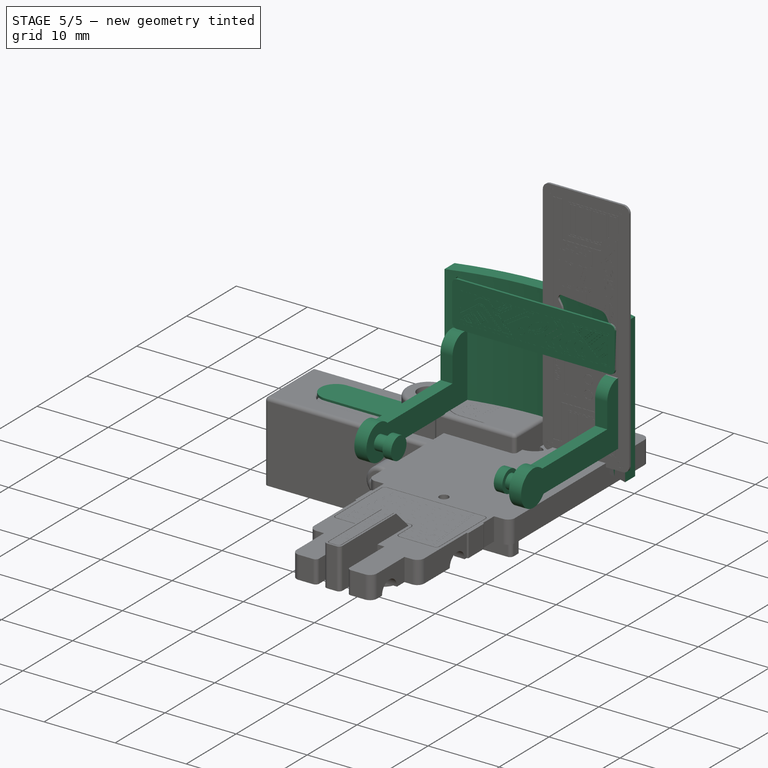
[diagram: stage 5 of 5 — iso view after this stage's code; geometry added in this stage tinted green]
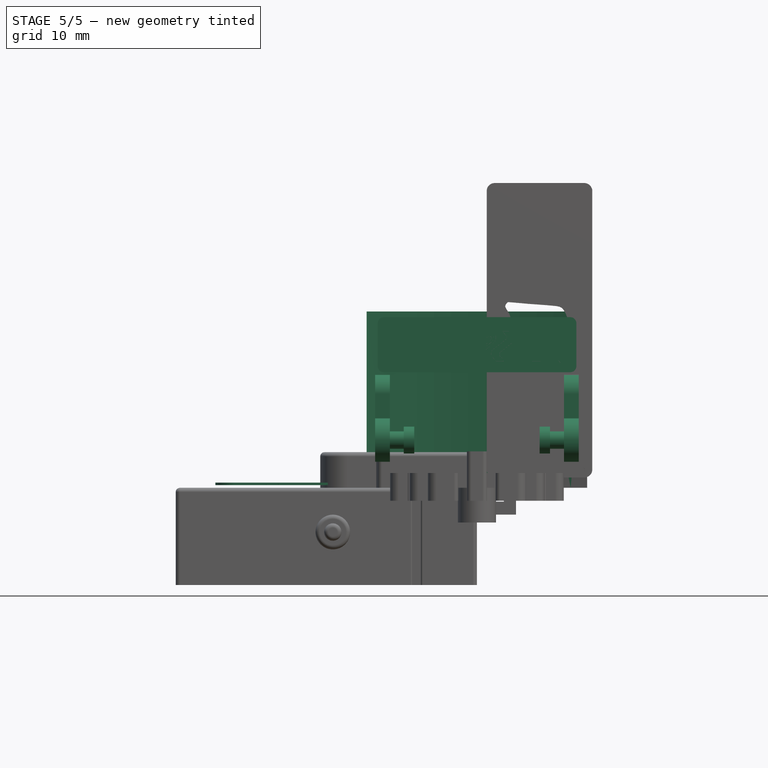
[diagram: stage 5 of 5 — front view after this stage's code; geometry added in this stage tinted green]
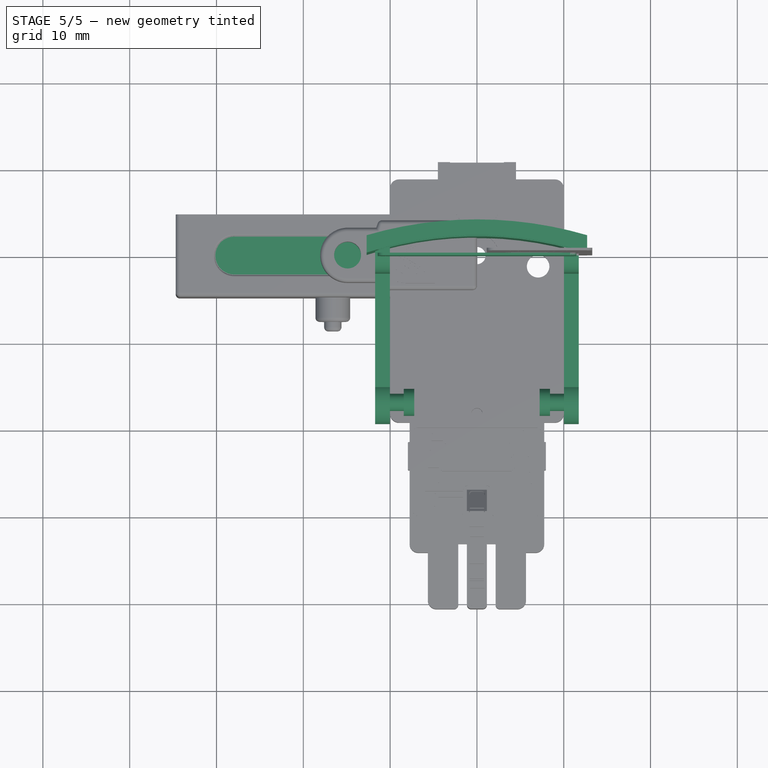
[diagram: stage 5 of 5 — top view after this stage's code; geometry added in this stage tinted green]
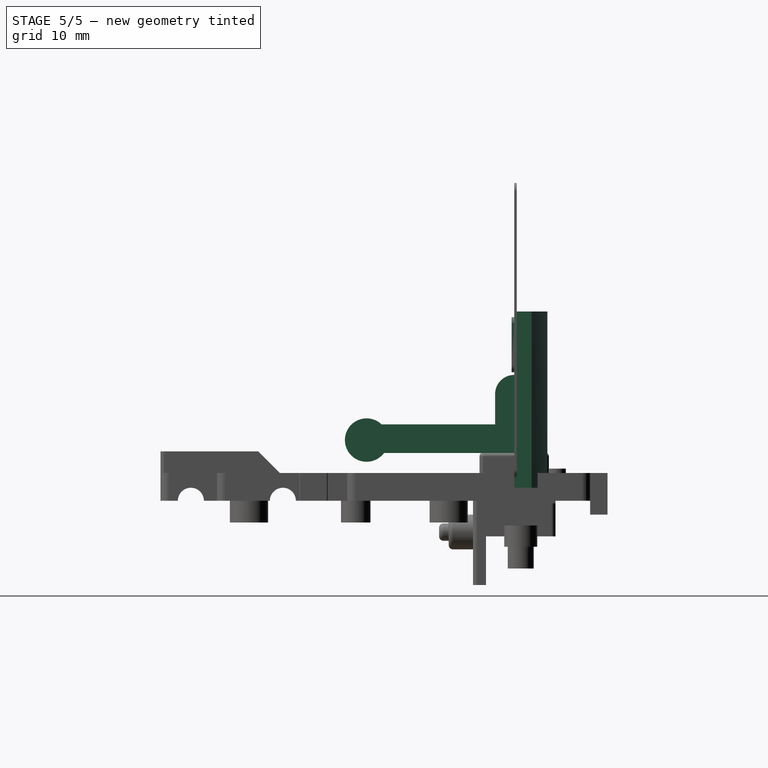
[diagram: stage 5 of 5 — right view after this stage's code; geometry added in this stage tinted green]
FEATURE [Part::Feature] Part__Feature  label="Canopy"
  shape: bbox 25.4 x 23.33 x 20.3 mm, 30 faces (baked)
FEATURE [Image::ImagePlane] Sticker1  label="Bicept_Stickered001"
  Placement = pos=(0.1,8,16.6) rot=(1,0,0;1.5708rad)
  XSize = 23.8079
  YSize = 7.35489
FEATURE [PartDesign::FeatureBase] BaseFeature
  BaseFeature = -> Part__Feature
  Suppressed = false
FEATURE [Sketcher::SketchObject] Sketch
  ArcFitTolerance = 1e-06
  AttachmentOffset = pos=(0,0,-0.6) rot=(0,0,1;0rad)
  AttachmentSupport = -> [BaseFeature]
  ExternalGeometry = -> [BaseFeature]
  FullyConstrained = true
  MakeInternals = false
  MapMode = 5
  Placement = pos=(0,0,19.7) rot=(0,0,1;0rad)
  sketch-geometry (4):
    g0: LineSegment StartX=-11.5 StartY=0.367537 StartZ=0 EndX=-11.5 EndY=0.667537 EndZ=0
    g1: LineSegment StartX=11.5 StartY=0.367537 StartZ=0 EndX=11.5 EndY=0.667537 EndZ=0
    g2: ArcOfCircle CenterX=-7.6e-15 CenterY=-39.3225 CenterZ=0 NormalX=0 NormalY=0 NormalZ=1 AngleXU=0 Radius=41.6107 StartAngle=1.29078 EndAngle=1.85081
    g3: ArcOfCircle CenterX=-7.6e-15 CenterY=-39.3225 CenterZ=0 NormalX=0 NormalY=0 NormalZ=1 AngleXU=0 Radius=41.3225 StartAngle=1.28877 EndAngle=1.85282
  constraints (12):
    c: PointOnObject(g0,g-3)
    c: Vertical(g0)
    c: Vertical(g1)
    c: Coincident(g2,g1)
    c: Coincident(g2,g0)
    c: Coincident(g3,g0)
    c: Coincident(g3,g1)
    c: DistanceY(g0,g0) = 0.3
    c: DistanceY(g1,g1) = 0.3
    c: Coincident(g2,g3)
    c: Coincident(g2,g-3)
    c: DistanceX(g1,g-3) = 1.2
FEATURE [PartDesign::Pocket] Pocket
  BaseFeature = -> BaseFeature
  Direction = (0,0,-1)
  Length = 6.45
  Length2 = 5
  Profile = -> Sketch
  ReferenceAxis = -> Sketch [N_Axis]
  Refine = true
  Suppressed = false
  Type = 0
FEATURE [PartDesign::Fillet] Fillet
  Base = -> Pocket [Edge31,Edge28,Edge27,Edge26]
  BaseFeature = -> Pocket
  Radius = 0.75
  Refine = true
  SupportTransform = false
  Suppressed = false
  UseAllEdges = false
FEATURE [PartDesign::Body] Body  label="Canopy_Stickered"
  AllowCompound = false
  BaseFeature = -> Part__Feature
  Group = -> [BaseFeature,Sketch,Pocket,Fillet]
  Origin = -> Origin
  Tip = -> Fillet
FEATURE [Sketcher::SketchObject] Sketch001
  ArcFitTolerance = 1e-06
  AttachmentSupport = -> [XZ_Plane001]
  FullyConstrained = false
  MakeInternals = false
  MapMode = 5
  Placement = pos=(0,0,0) rot=(1,0,0;1.5708rad)
  sketch-geometry (12):
    g0: LineSegment StartX=-11.4231 StartY=18.9519 StartZ=0 EndX=-11.4231 EndY=14.0134 EndZ=0
    g1: LineSegment StartX=-10.7231 StartY=13.3134 StartZ=0 EndX=10.7564 EndY=13.3134 EndZ=0
    g2: LineSegment StartX=11.4564 StartY=14.0134 StartZ=0 EndX=11.4564 EndY=18.9519 EndZ=0
    g3: LineSegment StartX=10.7564 StartY=19.6519 StartZ=0 EndX=-10.7231 EndY=19.6519 EndZ=0
    g4: ArcOfCircle CenterX=-10.7231 CenterY=18.9519 CenterZ=0 NormalX=0 NormalY=0 NormalZ=1 AngleXU=0 Radius=0.7 StartAngle=1.5708 EndAngle=3.14159
    g5: GeomPoint [constr] X=-11.4231 Y=19.6519 Z=0
    g6: ArcOfCircle CenterX=-10.7231 CenterY=14.0134 CenterZ=0 NormalX=0 NormalY=0 NormalZ=1 AngleXU=0 Radius=0.7 StartAngle=3.14159 EndAngle=4.71239
    g7: GeomPoint [constr] X=-11.4231 Y=13.3134 Z=0
    g8: ArcOfCircle CenterX=10.7564 CenterY=14.0134 CenterZ=0 NormalX=0 NormalY=0 NormalZ=1 AngleXU=0 Radius=0.7 StartAngle=4.71239 EndAngle=6.28319
    g9: GeomPoint [constr] X=11.4564 Y=13.3134 Z=0
    g10: ArcOfCircle CenterX=10.7564 CenterY=18.9519 CenterZ=0 NormalX=0 NormalY=0 NormalZ=1 AngleXU=0 Radius=0.7 StartAngle=1e-16 EndAngle=1.5708
    g11: GeomPoint [constr] X=11.4564 Y=19.6519 Z=0
  constraints (24):
    c: Vertical(g0)
    c: Vertical(g2)
    c: Horizontal(g1)
    c: Horizontal(g3)
    c: PointOnObject(g5,g0)
    c: PointOnObject(g5,g3)
    c: Tangent(g0,g4) = -1.5708
    c: Tangent(g3,g4) = -1.5708
    c: PointOnObject(g7,g0)
    c: PointOnObject(g7,g1)
    c: Tangent(g0,g6) = -1.5708
    c: Tangent(g1,g6) = -1.5708
    c: PointOnObject(g9,g1)
    c: PointOnObject(g9,g2)
    c: Tangent(g1,g8) = -1.5708
    c: Tangent(g2,g8) = -1.5708
    c: PointOnObject(g11,g2)
    c: PointOnObject(g11,g3)
    c: Tangent(g2,g10) = -1.5708
    c: Tangent(g3,g10) = -1.5708
    c: Radius(g4) = 0.7
    c: Radius(g6) = 0.7
    c: Radius(g8) = 0.7
    c: Radius(g10) = 0.7
FEATURE [PartDesign::Pad] Pad
  Direction = (0,-1,2e-16)
  Length = 0.3
  Length2 = 10
  Placement = pos=(0,0,0) rot=(1,0,0;1.5708rad)
  Profile = -> Sketch001
  ReferenceAxis = -> Sketch001 [N_Axis]
  Refine = true
  Suppressed = false
  Type = 0
FEATURE [Sketcher::SketchObject] Sketch002
  ArcFitTolerance = 1e-06
  AttachmentSupport = -> [Pad]
  FullyConstrained = false
  MakeInternals = false
  MapMode = 5
  Placement = pos=(0,-0.3,0) rot=(1,0,0;1.5708rad)
  sketch-geometry (307):
    g0: LineSegment StartX=-10.4944 StartY=18.3619 StartZ=0 EndX=-10.4944 EndY=14.2296 EndZ=0
    g1: LineSegment StartX=-10.4944 StartY=14.2296 StartZ=0 EndX=10.6816 EndY=14.2296 EndZ=0
    g2: LineSegment StartX=10.6816 StartY=14.2296 StartZ=0 EndX=10.6816 EndY=18.3619 EndZ=0
    g3: LineSegment StartX=10.6816 StartY=18.3619 StartZ=0 EndX=-10.4944 EndY=18.3619 EndZ=0
    g4: ArcOfCircle CenterX=-5.12647 CenterY=17.0946 CenterZ=0 NormalX=0 NormalY=0 NormalZ=1 AngleXU=0 Radius=0.564193 StartAngle=2.61649 EndAngle=5.20572
    g5: ArcOfCircle CenterX=-3.9218 CenterY=15.9195 CenterZ=0 NormalX=0 NormalY=0 NormalZ=1 AngleXU=0 Radius=0.610004 StartAngle=2.70234 EndAngle=5.19903
    g6: LineSegment StartX=-3.63652 StartY=15.3803 StartZ=0 EndX=-3.03945 EndY=14.6355 EndZ=0
    g7: LineSegment StartX=-3.03945 StartY=14.6355 StartZ=0 EndX=-4.26449 EndY=14.6355 EndZ=0
    g8: LineSegment StartX=-4.26449 StartY=14.6355 StartZ=0 EndX=-6.99282 EndY=17.3048 EndZ=0
    g9: LineSegment StartX=-5.61465 StartY=17.3774 StartZ=0 EndX=-6.28679 EndY=18.1576 EndZ=0
    g10: LineSegment StartX=-6.28679 StartY=18.1576 StartZ=0 EndX=-7.53514 EndY=18.1576 EndZ=0
    g11: LineSegment StartX=-7.53514 StartY=18.1576 StartZ=0 EndX=-10.3249 EndY=16.1295 EndZ=0
    g12: LineSegment StartX=-10.3249 StartY=16.1295 StartZ=0 EndX=-10.3249 EndY=15.4666 EndZ=0
    g13: LineSegment StartX=-10.3249 StartY=15.4666 StartZ=0 EndX=-7.76819 EndY=17.3166 EndZ=0
    g14: ArcOfCircle CenterX=-7.39421 CenterY=16.4089 CenterZ=0 NormalX=0 NormalY=0 NormalZ=1 AngleXU=0 Radius=0.981695 StartAngle=1.14957 EndAngle=1.96163
    g15: LineSegment StartX=-4.85929 StartY=16.5976 StartZ=0 EndX=-4.47389 EndY=16.1789 EndZ=0
    g16: LineSegment StartX=-3.62742 StartY=15.3876 StartZ=0 EndX=-3.03035 EndY=14.6428 EndZ=0
    g17: ArcOfCircle CenterX=-3.03945 CenterY=14.6355 CenterZ=0 NormalX=0 NormalY=0 NormalZ=1 AngleXU=-3.14159 Radius=0.0116668 StartAngle=1.5708 EndAngle=3.81729
    g18: LineSegment StartX=-3.03945 StartY=14.6238 StartZ=0 EndX=-4.26449 EndY=14.6238 EndZ=0
    g19: ArcOfCircle CenterX=-4.26449 CenterY=14.6355 CenterZ=0 NormalX=0 NormalY=0 NormalZ=1 AngleXU=2.36712 Radius=0.0116668 StartAngle=1.5708 EndAngle=2.34527
    g20: LineSegment StartX=-4.27265 StartY=14.6271 StartZ=0 EndX=-6.99948 EndY=17.295 EndZ=0
    g21: ArcOfCircle CenterX=-7.39421 CenterY=16.4089 CenterZ=0 NormalX=0 NormalY=0 NormalZ=1 AngleXU=0 Radius=0.970028 StartAngle=1.15171 EndAngle=1.96021
    g22: LineSegment StartX=-10.318 StartY=15.4571 StartZ=0 EndX=-7.76248 EndY=17.3063 EndZ=0
    g23: ArcOfCircle CenterX=-10.3249 CenterY=15.4666 CenterZ=0 NormalX=0 NormalY=0 NormalZ=1 AngleXU=1.5708 Radius=0.0116668 StartAngle=1.5708 EndAngle=3.76798
    g24: LineSegment StartX=-10.3365 StartY=16.1295 StartZ=0 EndX=-10.3365 EndY=15.4666 EndZ=0
    g25: ArcOfCircle CenterX=-10.3249 CenterY=16.1295 CenterZ=0 NormalX=0 NormalY=0 NormalZ=1 AngleXU=0.628613 Radius=0.0116668 StartAngle=1.5708 EndAngle=2.51298
    g26: LineSegment StartX=-7.542 StartY=18.1671 StartZ=0 EndX=-10.3317 EndY=16.1389 EndZ=0
    g27: ArcOfCircle CenterX=-7.53514 CenterY=18.1576 CenterZ=0 NormalX=0 NormalY=0 NormalZ=1 AngleXU=0 Radius=0.0116668 StartAngle=1.5708 EndAngle=2.19941
    g28: LineSegment StartX=-6.28679 StartY=18.1693 StartZ=0 EndX=-7.53514 EndY=18.1693 EndZ=0
    g29: ArcOfCircle CenterX=-6.28679 CenterY=18.1576 CenterZ=0 NormalX=0 NormalY=0 NormalZ=1 AngleXU=-0.859678 Radius=0.0116668 StartAngle=1.5708 EndAngle=2.43047
    g30: LineSegment StartX=-5.60581 StartY=17.385 StartZ=0 EndX=-6.27795 EndY=18.1652 EndZ=0
    g31: ArcOfCircle CenterX=-5.61465 CenterY=17.3774 CenterZ=0 NormalX=0 NormalY=0 NormalZ=1 AngleXU=-2.09589 Radius=0.0116668 StartAngle=1.5708 EndAngle=2.80701
    g32: ArcOfCircle CenterX=-5.12647 CenterY=17.0946 CenterZ=0 NormalX=0 NormalY=0 NormalZ=1 AngleXU=0 Radius=0.552526 StartAngle=2.61649 EndAngle=5.20572
    g33: ArcOfCircle CenterX=-4.85929 CenterY=16.5976 CenterZ=0 NormalX=0 NormalY=0 NormalZ=1 AngleXU=-0.826813 Radius=0.0116668 StartAngle=1.5708 EndAngle=2.89094
    g34: LineSegment StartX=-4.8507 StartY=16.6056 StartZ=0 EndX=-4.46531 EndY=16.1868 EndZ=0
    g35: ArcOfCircle CenterX=-4.47389 CenterY=16.1789 CenterZ=0 NormalX=0 NormalY=0 NormalZ=1 AngleXU=-2.01005 Radius=0.0116668 StartAngle=1.5708 EndAngle=2.75403
    g36: ArcOfCircle CenterX=-3.9218 CenterY=15.9195 CenterZ=0 NormalX=0 NormalY=0 NormalZ=1 AngleXU=0 Radius=0.598337 StartAngle=2.70234 EndAngle=5.19903
    g37: ArcOfCircle CenterX=-3.63652 CenterY=15.3803 CenterZ=0 NormalX=0 NormalY=0 NormalZ=1 AngleXU=-0.895101 Radius=0.0116668 StartAngle=1.5708 EndAngle=2.95254
    g38: LineSegment StartX=-9.35825 StartY=14.6201 StartZ=0 EndX=-9.66064 EndY=14.9961 EndZ=0
    g39: LineSegment StartX=-9.66064 StartY=14.9961 StartZ=0 EndX=-9.27684 EndY=15.283 EndZ=0
    g40: LineSegment StartX=-9.27684 StartY=15.283 StartZ=0 EndX=-8.68759 EndY=14.6201 EndZ=0
    g41: LineSegment StartX=-8.68759 StartY=14.6201 StartZ=0 EndX=-9.35825 EndY=14.6201 EndZ=0
    g42: LineSegment StartX=-8.43581 StartY=15.9194 StartZ=0 EndX=-7.42219 EndY=14.8585 EndZ=0
    g43: LineSegment StartX=-7.42219 StartY=14.8585 StartZ=0 EndX=-6.8966 EndY=15.3462 EndZ=0
    g44: LineSegment StartX=-6.8966 StartY=15.3462 StartZ=0 EndX=-7.89321 EndY=16.3393 EndZ=0
    g45: LineSegment StartX=-8.43581 StartY=15.9194 StartZ=0 EndX=-7.89321 EndY=16.3393 EndZ=0
    g46: LineSegment StartX=-7.42136 StartY=14.8859 StartZ=0 EndX=-6.92475 EndY=15.3467 EndZ=0
    g47: LineSegment StartX=-6.92475 StartY=15.3467 StartZ=0 EndX=-7.89484 EndY=16.3134 EndZ=0
    g48: LineSegment StartX=-8.40674 StartY=15.9173 StartZ=0 EndX=-7.89484 EndY=16.3134 EndZ=0
    g49: LineSegment StartX=-8.40674 StartY=15.9173 StartZ=0 EndX=-7.42136 EndY=14.8859 EndZ=0
    g50: LineSegment StartX=-8.68758 StartY=14.6006 StartZ=0 EndX=-9.35826 EndY=14.6006 EndZ=0
    g51: ArcOfCircle CenterX=-9.35825 CenterY=14.6201 CenterZ=0 NormalX=0 NormalY=0 NormalZ=-1 AngleXU=-3.14159 Radius=0.0195124 StartAngle=1.5708 EndAngle=2.46434
    g52: LineSegment StartX=-9.37346 StartY=14.6078 StartZ=0 EndX=-9.67584 EndY=14.9839 EndZ=0
    g53: ArcOfCircle CenterX=-9.66064 CenterY=14.9961 CenterZ=0 NormalX=0 NormalY=0 NormalZ=-1 AngleXU=-2.24805 Radius=0.0195124 StartAngle=1.5708 EndAngle=3.17696
    g54: LineSegment StartX=-9.67232 StartY=15.0117 StartZ=0 EndX=-9.28853 EndY=15.2986 EndZ=0
    g55: ArcOfCircle CenterX=-9.27684 CenterY=15.283 CenterZ=0 NormalX=0 NormalY=0 NormalZ=-1 AngleXU=-0.641883 Radius=0.0195124 StartAngle=1.5708 EndAngle=3.05683
    g56: LineSegment StartX=-9.26226 StartY=15.2959 StartZ=0 EndX=-8.673 EndY=14.633 EndZ=0
    g57: ArcOfCircle CenterX=-8.68758 CenterY=14.6201 CenterZ=0 NormalX=0 NormalY=0 NormalZ=-1 AngleXU=0.844154 Radius=0.0195124 StartAngle=1.5708 EndAngle=3.86823
    g58: LineSegment StartX=-10.3292 StartY=14.6959 StartZ=0 EndX=-10.3292 EndY=15.1194 EndZ=0
    g59: LineSegment StartX=-10.3292 StartY=15.1194 StartZ=0 EndX=-7.82792 EndY=17.063 EndZ=0
    g60: LineSegment StartX=-7.03794 StartY=17.076 StartZ=0 EndX=-4.53175 EndY=14.6469 EndZ=0
    g61: LineSegment StartX=-4.53175 StartY=14.6469 StartZ=0 EndX=-7.02124 EndY=14.6469 EndZ=0
    g62: LineSegment StartX=-7.02124 StartY=14.6469 StartZ=0 EndX=-6.31182 EndY=15.268 EndZ=0
    g63: LineSegment StartX=-6.31182 StartY=15.268 StartZ=0 EndX=-7.70054 EndY=16.7584 EndZ=0
    g64: LineSegment StartX=-7.70054 StartY=16.7584 StartZ=0 EndX=-8.78489 EndY=15.9212 EndZ=0
    g65: LineSegment StartX=-8.78489 StartY=15.9212 StartZ=0 EndX=-7.56602 EndY=14.6552 EndZ=0
    g66: LineSegment StartX=-7.56602 StartY=14.6552 StartZ=0 EndX=-8.05717 EndY=14.6552 EndZ=0
    g67: LineSegment StartX=-8.05717 StartY=14.6552 StartZ=0 EndX=-9.08101 EndY=15.6919 EndZ=0
    g68: LineSegment StartX=-10.3292 StartY=14.6959 StartZ=0 EndX=-9.72159 EndY=14.6959 EndZ=0
    g69: LineSegment StartX=-9.72159 StartY=14.6959 StartZ=0 EndX=-9.97366 EndY=15.0292 EndZ=0
    g70: LineSegment StartX=-9.08101 StartY=15.6919 StartZ=0 EndX=-9.97366 EndY=15.0292 EndZ=0
    g71: ArcOfCircle CenterX=-7.42186 CenterY=16.3965 CenterZ=0 NormalX=0 NormalY=0 NormalZ=1 AngleXU=0 Radius=0.780504 StartAngle=1.05654 EndAngle=2.11795
    g72: LineSegment StartX=-6.30664 StartY=15.2728 StartZ=0 EndX=-7.69537 EndY=16.7632 EndZ=0
    g73: ArcOfCircle CenterX=-7.70054 CenterY=16.7584 CenterZ=0 NormalX=0 NormalY=0 NormalZ=1 AngleXU=-0.820695 Radius=0.00708008 StartAngle=1.5708 EndAngle=3.04896
    g74: LineSegment StartX=-7.70487 StartY=16.764 StartZ=0 EndX=-8.78922 EndY=15.9268 EndZ=0
    g75: ArcOfCircle CenterX=-8.78489 CenterY=15.9212 CenterZ=0 NormalX=0 NormalY=0 NormalZ=1 AngleXU=0.657471 Radius=0.00708008 StartAngle=1.5708 EndAngle=3.25057
    g76: LineSegment StartX=-8.78999 StartY=15.9163 StartZ=0 EndX=-7.58267 EndY=14.6623 EndZ=0
    g77: LineSegment StartX=-7.58267 StartY=14.6623 StartZ=0 EndX=-8.05421 EndY=14.6623 EndZ=0
    g78: LineSegment StartX=-8.05421 StartY=14.6623 StartZ=0 EndX=-9.07597 EndY=15.6969 EndZ=0
    g79: ArcOfCircle CenterX=-9.08101 CenterY=15.6919 CenterZ=0 NormalX=0 NormalY=0 NormalZ=1 AngleXU=-0.791615 Radius=0.00708008 StartAngle=1.5708 EndAngle=3.001
    g80: LineSegment StartX=-9.08523 StartY=15.6976 StartZ=0 EndX=-9.97788 EndY=15.0349 EndZ=0
    g81: ArcOfCircle CenterX=-9.97366 CenterY=15.0292 CenterZ=0 NormalX=0 NormalY=0 NormalZ=1 AngleXU=0.638593 Radius=0.00708008 StartAngle=1.5708 EndAngle=3.15042
    g82: LineSegment StartX=-9.73582 StartY=14.7029 StartZ=0 EndX=-9.9793 EndY=15.025 EndZ=0
    g83: LineSegment StartX=-10.3222 StartY=14.7029 StartZ=0 EndX=-9.73582 EndY=14.7029 EndZ=0
    g84: LineSegment StartX=-10.3222 StartY=14.7029 StartZ=0 EndX=-10.3222 EndY=15.116 EndZ=0
    g85: LineSegment StartX=-10.3222 StartY=15.116 StartZ=0 EndX=-7.82389 EndY=17.0572 EndZ=0
    g86: ArcOfCircle CenterX=-7.42186 CenterY=16.3965 CenterZ=0 NormalX=0 NormalY=0 NormalZ=1 AngleXU=0 Radius=0.773424 StartAngle=1.05771 EndAngle=2.11743
    g87: LineSegment StartX=-7.04221 StartY=17.0703 StartZ=0 EndX=-4.54923 EndY=14.654 EndZ=0
    g88: LineSegment StartX=-4.54923 StartY=14.654 StartZ=0 EndX=-7.00241 EndY=14.654 EndZ=0
    g89: LineSegment StartX=-7.00241 StartY=14.654 StartZ=0 EndX=-6.30715 EndY=15.2626 EndZ=0
    g90: ArcOfCircle CenterX=-6.31181 CenterY=15.268 CenterZ=0 NormalX=0 NormalY=0 NormalZ=1 AngleXU=-2.4225 Radius=0.00708008 StartAngle=1.5708 EndAngle=3.1726
    g91: ArcOfCircle CenterX=-0.559775 CenterY=16.1078 CenterZ=0 NormalX=0 NormalY=0 NormalZ=1 AngleXU=0 Radius=0.160943 StartAngle=2.7411 EndAngle=4.73972
    g92: ArcOfCircle CenterX=1.77094 CenterY=14.323 CenterZ=0 NormalX=0 NormalY=0 NormalZ=1 AngleXU=0 Radius=3.0917 StartAngle=1.65472 EndAngle=2.50109
    g93: ArcOfCircle CenterX=-0.791996 CenterY=18.9962 CenterZ=0 NormalX=0 NormalY=0 NormalZ=1 AngleXU=0 Radius=3.05846 StartAngle=4.78983 EndAngle=5.65994
    g94: ArcOfCircle CenterX=1.53799 CenterY=17.2481 CenterZ=0 NormalX=0 NormalY=0 NormalZ=1 AngleXU=0 Radius=0.15786 StartAngle=6.04641 EndAngle=8.02092
    g95: ArcOfCircle CenterX=1.53799 CenterY=17.2481 CenterZ=0 NormalX=0 NormalY=0 NormalZ=1 AngleXU=0 Radius=0.164038 StartAngle=6.04641 EndAngle=8.01934
    g96: ArcOfCircle CenterX=1.77094 CenterY=14.323 CenterZ=0 NormalX=0 NormalY=0 NormalZ=1 AngleXU=0 Radius=3.09788 StartAngle=1.6548 EndAngle=2.50109
    g97: ArcOfCircle CenterX=-0.707986 CenterY=16.1706 CenterZ=0 NormalX=0 NormalY=0 NormalZ=-1 AngleXU=-1.17031 Radius=0.00617842 StartAngle=1.5708 EndAngle=1.81081
    g98: ArcOfCircle CenterX=-0.559775 CenterY=16.1078 CenterZ=0 NormalX=0 NormalY=0 NormalZ=1 AngleXU=0 Radius=0.167125 StartAngle=2.7411 EndAngle=4.73972
    g99: ArcOfCircle CenterX=-0.791996 CenterY=18.9962 CenterZ=0 NormalX=0 NormalY=0 NormalZ=1 AngleXU=0 Radius=3.06464 StartAngle=4.78973 EndAngle=5.65994
    g100: ArcOfCircle CenterX=1.69145 CenterY=17.2111 CenterZ=0 NormalX=0 NormalY=0 NormalZ=-1 AngleXU=1.80757 Radius=0.00617842 StartAngle=1.5708 EndAngle=1.95726
    g101: LineSegment StartX=5.72507 StartY=18.1456 StartZ=0 EndX=6.88421 EndY=18.1456 EndZ=0
    g102: LineSegment StartX=6.88421 StartY=18.1456 StartZ=0 EndX=6.21354 EndY=17.5143 EndZ=0
    g103: LineSegment StartX=6.21354 StartY=17.5143 StartZ=0 EndX=5.72507 EndY=18.1456 EndZ=0
    g104: LineSegment StartX=7.25638 StartY=18.1338 StartZ=0 EndX=6.37249 EndY=17.3476 EndZ=0
    g105: LineSegment StartX=6.37249 StartY=17.3476 StartZ=0 EndX=6.97725 EndY=16.8049 EndZ=0
    g106: LineSegment StartX=6.97725 StartY=16.8049 StartZ=0 EndX=8.32247 EndY=18.1338 EndZ=0
    g107: LineSegment StartX=8.32247 StartY=18.1338 StartZ=0 EndX=7.25638 EndY=18.1338 EndZ=0
    g108: LineSegment StartX=8.65199 StartY=18.1152 StartZ=0 EndX=7.17109 EndY=16.6886 EndZ=0
    g109: LineSegment StartX=7.17109 StartY=16.6886 StartZ=0 EndX=7.58202 EndY=16.2971 EndZ=0
    g110: LineSegment StartX=7.58202 StartY=16.2971 StartZ=0 EndX=9.41571 EndY=18.1152 EndZ=0
    g111: LineSegment StartX=9.41571 StartY=18.1152 StartZ=0 EndX=8.65199 EndY=18.1152 EndZ=0
    g112: LineSegment StartX=9.84406 StartY=18.1204 StartZ=0 EndX=7.79688 EndY=16.0714 EndZ=0
    g113: LineSegment StartX=7.79688 StartY=16.0714 StartZ=0 EndX=8.30581 EndY=15.5914 EndZ=0
    g114: LineSegment StartX=8.30581 StartY=15.5914 StartZ=0 EndX=10.4869 EndY=17.5425 EndZ=0
    g115: LineSegment StartX=10.4869 StartY=17.5425 StartZ=0 EndX=10.4869 EndY=18.1204 EndZ=0
    g116: LineSegment StartX=10.4869 StartY=18.1204 StartZ=0 EndX=9.84406 EndY=18.1204 EndZ=0
    g117: LineSegment StartX=10.4823 StartY=17.046 StartZ=0 EndX=8.59777 EndY=15.3746 EndZ=0
    g118: LineSegment StartX=8.59777 StartY=15.3746 StartZ=0 EndX=9.08548 EndY=14.9389 EndZ=0
    g119: LineSegment StartX=9.08548 StartY=14.9389 StartZ=0 EndX=10.4823 EndY=16.1795 EndZ=0
    g120: LineSegment StartX=10.4823 StartY=16.1795 StartZ=0 EndX=10.4823 EndY=17.046 EndZ=0
    g121: LineSegment StartX=10.4543 StartY=15.8414 StartZ=0 EndX=9.26112 EndY=14.7902 EndZ=0
    g122: LineSegment StartX=9.26112 StartY=14.7902 StartZ=0 EndX=9.60677 EndY=14.4114 EndZ=0
    g123: LineSegment StartX=9.60677 StartY=14.4114 StartZ=0 EndX=10.4543 EndY=14.4114 EndZ=0
    g124: LineSegment StartX=10.4543 StartY=14.4114 StartZ=0 EndX=10.4543 EndY=15.8414 EndZ=0
    g125: LineSegment StartX=10.4428 StartY=14.423 StartZ=0 EndX=10.4428 EndY=15.8157 EndZ=0
    g126: LineSegment StartX=10.4428 StartY=15.8157 StartZ=0 EndX=9.27761 EndY=14.7893 EndZ=0
    g127: LineSegment StartX=9.27761 StartY=14.7893 StartZ=0 EndX=9.61188 EndY=14.423 EndZ=0
    g128: LineSegment StartX=9.61188 StartY=14.423 StartZ=0 EndX=10.4428 EndY=14.423 EndZ=0
    g129: LineSegment StartX=10.4707 StartY=16.1847 StartZ=0 EndX=10.4707 EndY=17.0203 EndZ=0
    g130: LineSegment StartX=10.4707 StartY=17.0203 StartZ=0 EndX=8.61518 EndY=15.3745 EndZ=0
    g131: LineSegment StartX=8.61518 StartY=15.3745 StartZ=0 EndX=9.0855 EndY=14.9544 EndZ=0
    g132: LineSegment StartX=9.0855 StartY=14.9544 StartZ=0 EndX=10.4707 EndY=16.1847 EndZ=0
    g133: LineSegment StartX=10.4753 StartY=18.1088 StartZ=0 EndX=9.84886 EndY=18.1088 EndZ=0
    g134: LineSegment StartX=9.84886 StartY=18.1088 StartZ=0 EndX=7.81348 EndY=16.0717 EndZ=0
    g135: LineSegment StartX=7.81348 StartY=16.0717 StartZ=0 EndX=8.30602 EndY=15.6071 EndZ=0
    g136: LineSegment StartX=8.30602 StartY=15.6071 StartZ=0 EndX=10.4753 EndY=17.5477 EndZ=0
    g137: LineSegment StartX=10.4753 StartY=17.5477 StartZ=0 EndX=10.4753 EndY=18.1088 EndZ=0
    g138: LineSegment StartX=7.58186 StartY=16.3132 StartZ=0 EndX=9.38759 EndY=18.1037 EndZ=0
    g139: LineSegment StartX=9.38759 StartY=18.1037 StartZ=0 EndX=8.65666 EndY=18.1037 EndZ=0
    g140: LineSegment StartX=8.65666 StartY=18.1037 StartZ=0 EndX=7.18782 EndY=16.6887 EndZ=0
    g141: LineSegment StartX=7.18782 StartY=16.6887 StartZ=0 EndX=7.58186 EndY=16.3132 EndZ=0
    g142: LineSegment StartX=6.97687 StartY=16.8208 StartZ=0 EndX=8.29428 EndY=18.1223 EndZ=0
    g143: LineSegment StartX=8.29428 StartY=18.1223 StartZ=0 EndX=7.26078 EndY=18.1223 EndZ=0
    g144: LineSegment StartX=7.26078 StartY=18.1223 StartZ=0 EndX=6.38986 EndY=17.3476 EndZ=0
    g145: LineSegment StartX=6.38986 StartY=17.3476 StartZ=0 EndX=6.97687 EndY=16.8208 EndZ=0
    g146: LineSegment StartX=6.89214 StartY=18.1371 StartZ=0 EndX=6.22147 EndY=17.5059 EndZ=0
    g147: ArcOfCircle CenterX=6.21354 CenterY=17.5143 CenterZ=0 NormalX=0 NormalY=0 NormalZ=-1 AngleXU=2.38649 Radius=0.0115756 StartAngle=1.5708 EndAngle=3.2381
    g148: LineSegment StartX=6.20438 StartY=17.5073 StartZ=0 EndX=5.71592 EndY=18.1385 EndZ=0
    g149: ArcOfCircle CenterX=5.72507 CenterY=18.1456 CenterZ=0 NormalX=0 NormalY=0 NormalZ=-1 AngleXU=-2.22939 Radius=0.0115756 StartAngle=1.5708 EndAngle=3.80018
    g150: LineSegment StartX=5.72507 StartY=18.1571 StartZ=0 EndX=6.88421 EndY=18.1571 EndZ=0
    g151: ArcOfCircle CenterX=6.88421 CenterY=18.1456 CenterZ=0 NormalX=0 NormalY=0 NormalZ=-1 AngleXU=0 Radius=0.0115756 StartAngle=1.5708 EndAngle=3.95729
    g152: LineSegment StartX=-3.94235 StartY=18.2233 StartZ=0 EndX=-5.37967 EndY=17.2636 EndZ=0
    g153: LineSegment StartX=-5.37967 StartY=17.2636 StartZ=0 EndX=-5.41085 EndY=16.9543 EndZ=0
    g154: LineSegment StartX=-5.41085 StartY=16.9543 StartZ=0 EndX=-5.26013 EndY=16.814 EndZ=0
    g155: LineSegment StartX=-5.26013 StartY=16.814 StartZ=0 EndX=-4.82876 EndY=16.814 EndZ=0
    g156: LineSegment StartX=-4.82876 StartY=16.814 StartZ=0 EndX=-2.9911 EndY=18.0047 EndZ=0
    g157: LineSegment StartX=-2.9911 StartY=18.0047 StartZ=0 EndX=-2.9911 EndY=18.171 EndZ=0
    g158: LineSegment StartX=-2.9911 StartY=18.171 StartZ=0 EndX=-3.29255 EndY=18.171 EndZ=0
    g159: LineSegment StartX=-3.29255 StartY=18.171 StartZ=0 EndX=-4.84653 EndY=17.1134 EndZ=0
    g160: LineSegment StartX=-4.84653 StartY=17.1134 StartZ=0 EndX=-4.97907 EndY=17.2511 EndZ=0
    g161: LineSegment StartX=-4.97907 StartY=17.2511 StartZ=0 EndX=-3.787 EndY=18.046 EndZ=0
    g162: LineSegment StartX=-3.787 StartY=18.046 StartZ=0 EndX=-3.94235 EndY=18.2233 EndZ=0
    g163: ArcOfCircle CenterX=-4.04104 CenterY=15.8248 CenterZ=0 NormalX=0 NormalY=0 NormalZ=1 AngleXU=0 Radius=0.259722 StartAngle=2.20641 EndAngle=6.1834
    g164: LineSegment StartX=-4.19523 StartY=16.0338 StartZ=0 EndX=-0.849728 EndY=18.1652 EndZ=0
    g165: LineSegment StartX=-0.849728 StartY=18.1652 StartZ=0 EndX=0.03381 EndY=18.1262 EndZ=0
    g166: LineSegment StartX=0.03381 StartY=18.1262 StartZ=0 EndX=0.03381 EndY=17.9989 EndZ=0
    g167: LineSegment StartX=0.03381 StartY=17.9989 StartZ=0 EndX=-0.587265 EndY=17.5233 EndZ=0
    g168: LineSegment StartX=-0.587265 StartY=17.5233 StartZ=0 EndX=-1.04463 EndY=17.5233 EndZ=0
    g169: LineSegment StartX=-1.04463 StartY=17.5233 StartZ=0 EndX=-3.78261 EndY=15.7989 EndZ=0
    g170: ArcOfCircle CenterX=-4.04104 CenterY=15.8248 CenterZ=0 NormalX=0 NormalY=0 NormalZ=1 AngleXU=0 Radius=0.2705 StartAngle=2.20641 EndAngle=6.16378
    g171: LineSegment StartX=-1.04151 StartY=17.5126 StartZ=0 EndX=-3.77246 EndY=15.7926 EndZ=0
    g172: LineSegment StartX=-0.587265 StartY=17.5126 StartZ=0 EndX=-1.04151 EndY=17.5126 EndZ=0
    g173: ArcOfCircle CenterX=-0.587265 CenterY=17.5233 CenterZ=0 NormalX=0 NormalY=0 NormalZ=-1 AngleXU=2.48812 Radius=0.0107779 StartAngle=1.5708 EndAngle=2.22426
    g174: LineSegment StartX=0.0403624 StartY=17.9903 StartZ=0 EndX=-0.580713 EndY=17.5148 EndZ=0
    g175: ArcOfCircle CenterX=0.03381 CenterY=17.9989 CenterZ=0 NormalX=0 NormalY=0 NormalZ=-1 AngleXU=1.5708 Radius=0.0107779 StartAngle=1.5708 EndAngle=2.48812
    g176: LineSegment StartX=0.0445879 StartY=18.1262 StartZ=0 EndX=0.0445879 EndY=17.9989 EndZ=0
    g177: ArcOfCircle CenterX=0.03381 CenterY=18.1262 CenterZ=0 NormalX=0 NormalY=0 NormalZ=-1 AngleXU=0.0440906 Radius=0.0107779 StartAngle=1.5708 EndAngle=3.0975
    g178: LineSegment StartX=-0.849253 StartY=18.176 StartZ=0 EndX=0.0342851 EndY=18.137 EndZ=0
    g179: ArcOfCircle CenterX=-0.849728 CenterY=18.1652 CenterZ=0 NormalX=0 NormalY=0 NormalZ=-1 AngleXU=-0.56725 Radius=0.0107779 StartAngle=1.5708 EndAngle=2.18214
    g180: LineSegment StartX=-4.20102 StartY=16.0429 StartZ=0 EndX=-0.855519 EndY=18.1743 EndZ=0
    g181: ArcOfCircle CenterX=-4.19523 CenterY=16.0338 CenterZ=0 NormalX=0 NormalY=0 NormalZ=-1 AngleXU=-0.635611 Radius=0.0107779 StartAngle=1.5708 EndAngle=1.63916
    g182: LineSegment StartX=-4.84508 StartY=17.1274 StartZ=0 EndX=-4.96236 EndY=17.2493 EndZ=0
    g183: LineSegment StartX=-4.96236 StartY=17.2493 StartZ=0 EndX=-3.78102 EndY=18.0371 EndZ=0
    g184: ArcOfCircle CenterX=-3.787 CenterY=18.046 CenterZ=0 NormalX=0 NormalY=0 NormalZ=-1 AngleXU=0.851085 Radius=0.0107779 StartAngle=1.5708 EndAngle=3.27317
    g185: LineSegment StartX=-3.7789 StartY=18.0531 StartZ=0 EndX=-3.93425 EndY=18.2304 EndZ=0
    g186: ArcOfCircle CenterX=-3.94235 CenterY=18.2233 CenterZ=0 NormalX=0 NormalY=0 NormalZ=-1 AngleXU=-0.588719 Radius=0.0107779 StartAngle=1.5708 EndAngle=3.0106
    g187: LineSegment StartX=-3.94834 StartY=18.2322 StartZ=0 EndX=-5.38565 EndY=17.2725 EndZ=0
    g188: ArcOfCircle CenterX=-5.37967 CenterY=17.2636 CenterZ=0 NormalX=0 NormalY=0 NormalZ=-1 AngleXU=-1.47029 Radius=0.0107779 StartAngle=1.5708 EndAngle=2.45237
    g189: LineSegment StartX=-5.39039 StartY=17.2646 StartZ=0 EndX=-5.42158 EndY=16.9554 EndZ=0
    g190: ArcOfCircle CenterX=-5.41085 CenterY=16.9543 CenterZ=0 NormalX=0 NormalY=0 NormalZ=-1 AngleXU=-2.39189 Radius=0.0107779 StartAngle=1.5708 EndAngle=2.49239
    g191: LineSegment StartX=-5.4182 StartY=16.9464 StartZ=0 EndX=-5.26748 EndY=16.8061 EndZ=0
    g192: ArcOfCircle CenterX=-5.26013 CenterY=16.814 CenterZ=0 NormalX=0 NormalY=0 NormalZ=-1 AngleXU=-3.14159 Radius=0.0107779 StartAngle=1.5708 EndAngle=2.3205
    g193: LineSegment StartX=-5.26013 StartY=16.8032 StartZ=0 EndX=-4.82876 EndY=16.8032 EndZ=0
    g194: ArcOfCircle CenterX=-4.82876 CenterY=16.814 CenterZ=0 NormalX=0 NormalY=0 NormalZ=-1 AngleXU=2.56666 Radius=0.0107779 StartAngle=1.5708 EndAngle=2.14573
    g195: LineSegment StartX=-4.8229 StartY=16.8049 StartZ=0 EndX=-2.98524 EndY=17.9957 EndZ=0
    g196: ArcOfCircle CenterX=-2.9911 CenterY=18.0047 CenterZ=0 NormalX=0 NormalY=0 NormalZ=-1 AngleXU=1.5708 Radius=0.0107779 StartAngle=1.5708 EndAngle=2.56666
    g197: LineSegment StartX=-2.98033 StartY=18.0047 StartZ=0 EndX=-2.98033 EndY=18.171 EndZ=0
    g198: ArcOfCircle CenterX=-2.9911 CenterY=18.171 CenterZ=0 NormalX=0 NormalY=0 NormalZ=-1 AngleXU=0 Radius=0.0107779 StartAngle=1.5708 EndAngle=3.14159
    g199: LineSegment StartX=-2.9911 StartY=18.1818 StartZ=0 EndX=-3.29255 EndY=18.1818 EndZ=0
    g200: ArcOfCircle CenterX=-3.29255 CenterY=18.171 CenterZ=0 NormalX=0 NormalY=0 NormalZ=-1 AngleXU=-0.597589 Radius=0.0107779 StartAngle=1.5708 EndAngle=2.16839
    g201: LineSegment StartX=-3.29861 StartY=18.1799 StartZ=0 EndX=-4.84508 EndY=17.1274 EndZ=0
    g202: Circle CenterX=-1.66502 CenterY=15.4621 CenterZ=0 NormalX=0 NormalY=0 NormalZ=1 AngleXU=0 Radius=0.450725
    g203: Circle CenterX=-1.66502 CenterY=15.4621 CenterZ=0 NormalX=0 NormalY=0 NormalZ=1 AngleXU=0 Radius=0.455791
    g204: ArcOfCircle CenterX=-0.6194 CenterY=18.8441 CenterZ=0 NormalX=0 NormalY=0 NormalZ=1 AngleXU=0 Radius=3.0611 StartAngle=4.97422 EndAngle=5.69361
    g205: ArcOfCircle CenterX=-0.646294 CenterY=18.7917 CenterZ=0 NormalX=0 NormalY=0 NormalZ=1 AngleXU=0 Radius=3.29849 StartAngle=4.99054 EndAngle=5.73782
    g206: LineSegment StartX=1.92492 StartY=17.1422 StartZ=0 EndX=1.94401 EndY=17.5717 EndZ=0
    g207: LineSegment StartX=1.94401 StartY=17.5717 StartZ=0 EndX=2.17371 EndY=17.5717 EndZ=0
    g208: LineSegment StartX=2.17371 StartY=17.5717 StartZ=0 EndX=2.17371 EndY=17.0806 EndZ=0
    g209: LineSegment StartX=0.172959 StartY=15.8874 StartZ=0 EndX=-0.721423 EndY=15.7712 EndZ=0
    g210: LineSegment StartX=-0.721423 StartY=15.7712 StartZ=0 EndX=-0.721423 EndY=15.62 EndZ=0
    g211: LineSegment StartX=0.259388 StartY=15.62 StartZ=0 EndX=-0.721423 EndY=15.62 EndZ=0
    g212: LineSegment StartX=0.259388 StartY=15.615 StartZ=0 EndX=-0.721423 EndY=15.615 EndZ=0
    g213: ArcOfCircle CenterX=-0.721423 CenterY=15.62 CenterZ=0 NormalX=0 NormalY=0 NormalZ=1 AngleXU=1.5708 Radius=0.00498494 StartAngle=1.5708 EndAngle=3.14159
    g214: LineSegment StartX=-0.726408 StartY=15.7712 StartZ=0 EndX=-0.726408 EndY=15.62 EndZ=0
    g215: ArcOfCircle CenterX=-0.721423 CenterY=15.7712 CenterZ=0 NormalX=0 NormalY=0 NormalZ=1 AngleXU=0.129214 Radius=0.00498494 StartAngle=1.5708 EndAngle=3.01238
    g216: LineSegment StartX=0.171988 StartY=15.8923 StartZ=0 EndX=-0.722065 EndY=15.7761 EndZ=0
    g217: ArcOfCircle CenterX=-0.6194 CenterY=18.8441 CenterZ=0 NormalX=0 NormalY=0 NormalZ=1 AngleXU=0 Radius=3.05611 StartAngle=4.97433 EndAngle=5.69316
    g218: LineSegment StartX=1.92 StartY=17.1438 StartZ=0 EndX=1.93903 EndY=17.572 EndZ=0
    g219: ArcOfCircle CenterX=1.94401 CenterY=17.5717 CenterZ=0 NormalX=0 NormalY=0 NormalZ=1 AngleXU=0 Radius=0.00498494 StartAngle=1.5708 EndAngle=3.09719
    g220: LineSegment StartX=1.94401 StartY=17.5767 StartZ=0 EndX=2.17371 EndY=17.5767 EndZ=0
    g221: ArcOfCircle CenterX=2.17371 CenterY=17.5717 CenterZ=0 NormalX=0 NormalY=0 NormalZ=1 AngleXU=-1.5708 Radius=0.00498494 StartAngle=1.5708 EndAngle=3.14159
    g222: LineSegment StartX=2.1787 StartY=17.5717 StartZ=0 EndX=2.1787 EndY=17.0806 EndZ=0
    g223: ArcOfCircle CenterX=2.17371 CenterY=17.0806 CenterZ=0 NormalX=0 NormalY=0 NormalZ=1 AngleXU=-2.11616 Radius=0.00498494 StartAngle=1.5708 EndAngle=2.11616
    g224: ArcOfCircle CenterX=-0.646294 CenterY=18.7917 CenterZ=0 NormalX=0 NormalY=0 NormalZ=1 AngleXU=0 Radius=3.30348 StartAngle=4.99054 EndAngle=5.73782
    g225: ArcOfCircle CenterX=0.259388 CenterY=15.62 CenterZ=0 NormalX=0 NormalY=0 NormalZ=1 AngleXU=-3.14159 Radius=0.00498494 StartAngle=1.5708 EndAngle=1.84894
    g226: ArcOfCircle CenterX=2.25396 CenterY=15.462 CenterZ=0 NormalX=0 NormalY=0 NormalZ=1 AngleXU=0 Radius=0.624512 StartAngle=2.47951 EndAngle=3.63266
    g227: ArcOfCircle CenterX=3.01736 CenterY=15.3684 CenterZ=0 NormalX=0 NormalY=0 NormalZ=1 AngleXU=0 Radius=0.410835 StartAngle=2.4552 EndAngle=3.89938
    g228: ArcOfCircle CenterX=3.10587 CenterY=17.3333 CenterZ=0 NormalX=0 NormalY=0 NormalZ=1 AngleXU=0 Radius=0.337059 StartAngle=5.44896 EndAngle=6.84877
    g229: ArcOfCircle CenterX=3.60431 CenterY=17.2079 CenterZ=0 NormalX=0 NormalY=0 NormalZ=1 AngleXU=0 Radius=0.689808 StartAngle=5.58569 EndAngle=6.59105
    g230: ArcOfCircle CenterX=4.35843 CenterY=15.4595 CenterZ=0 NormalX=0 NormalY=0 NormalZ=1 AngleXU=0 Radius=0.709666 StartAngle=2.37942 EndAngle=3.75746
    g231: ArcOfCircle CenterX=5.13528 CenterY=15.376 CenterZ=0 NormalX=0 NormalY=0 NormalZ=1 AngleXU=0 Radius=0.548316 StartAngle=2.34405 EndAngle=3.68189
    g232: ArcOfCircle CenterX=6.44698 CenterY=15.5429 CenterZ=0 NormalX=0 NormalY=0 NormalZ=1 AngleXU=0 Radius=0.703461 StartAngle=2.41559 EndAngle=3.67588
    g233: ArcOfCircle CenterX=7.18273 CenterY=15.3368 CenterZ=0 NormalX=0 NormalY=0 NormalZ=1 AngleXU=0 Radius=0.417097 StartAngle=2.20201 EndAngle=3.80488
    g234: ArcOfCircle CenterX=6.6208 CenterY=15.959 CenterZ=0 NormalX=0 NormalY=0 NormalZ=1 AngleXU=0 Radius=0.500678 StartAngle=6.00076 EndAngle=8.2892
    g235: ArcOfCircle CenterX=5.72631 CenterY=16.9129 CenterZ=0 NormalX=0 NormalY=0 NormalZ=1 AngleXU=0 Radius=0.41942 StartAngle=6.08392 EndAngle=8.32189
    g236: ArcOfCircle CenterX=2.55679 CenterY=14.6362 CenterZ=0 NormalX=0 NormalY=0 NormalZ=1 AngleXU=0 Radius=0.47823 StartAngle=6.17267 EndAngle=7.50806
    g237: LineSegment StartX=1.70324 StartY=15.1675 StartZ=0 EndX=2.20323 EndY=14.5834 EndZ=0
    g238: LineSegment StartX=2.20323 StartY=14.5834 StartZ=0 EndX=3.03211 EndY=14.5834 EndZ=0
    g239: LineSegment StartX=2.69956 StartY=15.6288 StartZ=0 EndX=4.13301 EndY=16.7648 EndZ=0
    g240: LineSegment StartX=1.76139 StartY=15.8459 StartZ=0 EndX=3.33229 EndY=17.0836 EndZ=0
    g241: LineSegment StartX=3.39044 StartY=17.5139 StartZ=0 EndX=2.92397 EndY=18.0315 EndZ=0
    g242: LineSegment StartX=2.92397 StartY=18.0315 StartZ=0 EndX=3.88153 EndY=18.0315 EndZ=0
    g243: LineSegment StartX=3.88153 StartY=18.0315 StartZ=0 EndX=4.26168 EndY=17.4169 EndZ=0
    g244: LineSegment StartX=4.66507 StartY=15.094 StartZ=0 EndX=5.11269 EndY=14.5775 EndZ=0
    g245: LineSegment StartX=5.11269 StartY=14.5775 StartZ=0 EndX=4.26841 EndY=14.5363 EndZ=0
    g246: LineSegment StartX=4.26841 StartY=14.5363 StartZ=0 EndX=3.77915 EndY=15.0496 EndZ=0
    g247: LineSegment StartX=3.8451 StartY=15.9496 StartZ=0 EndX=5.53715 EndY=17.2873 EndZ=0
    g248: LineSegment StartX=4.7523 StartY=15.7684 StartZ=0 EndX=6.13744 EndY=16.8299 EndZ=0
    g249: LineSegment StartX=6.40971 StartY=16.413 StartZ=0 EndX=5.92091 EndY=16.0099 EndZ=0
    g250: LineSegment StartX=6.93659 StartY=15.6735 StartZ=0 EndX=7.10164 EndY=15.8195 EndZ=0
    g251: LineSegment StartX=5.84156 StartY=15.1847 StartZ=0 EndX=6.35841 EndY=14.5735 EndZ=0
    g252: LineSegment StartX=6.35841 StartY=14.5735 StartZ=0 EndX=7.34124 EndY=14.5735 EndZ=0
    g253: LineSegment StartX=7.34124 StartY=14.5735 StartZ=0 EndX=6.85407 EndY=15.08 EndZ=0
    g254: LineSegment StartX=4.27208 StartY=14.5454 StartZ=0 EndX=3.7861 EndY=15.0553 EndZ=0
    g255: ArcOfCircle CenterX=4.35843 CenterY=15.4595 CenterZ=0 NormalX=0 NormalY=0 NormalZ=1 AngleXU=0 Radius=0.700689 StartAngle=2.38031 EndAngle=3.75653
    g256: LineSegment StartX=3.85116 StartY=15.9429 StartZ=0 EndX=5.542 EndY=17.2797 EndZ=0
    g257: ArcOfCircle CenterX=5.72631 CenterY=16.9129 CenterZ=0 NormalX=0 NormalY=0 NormalZ=1 AngleXU=0 Radius=0.410443 StartAngle=6.09208 EndAngle=8.3197
    g258: LineSegment StartX=4.74684 StartY=15.7755 StartZ=0 EndX=6.12929 EndY=16.835 EndZ=0
    g259: ArcOfCircle CenterX=4.7523 CenterY=15.7684 CenterZ=0 NormalX=0 NormalY=0 NormalZ=-1 AngleXU=-0.773252 Radius=0.00897689 StartAngle=1.5708 EndAngle=1.69017
    g260: ArcOfCircle CenterX=5.13528 CenterY=15.376 CenterZ=0 NormalX=0 NormalY=0 NormalZ=1 AngleXU=0 Radius=0.557293 StartAngle=2.34405 EndAngle=3.68189
    g261: ArcOfCircle CenterX=4.66507 CenterY=15.094 CenterZ=0 NormalX=0 NormalY=0 NormalZ=-1 AngleXU=-2.28494 Radius=0.00897689 StartAngle=1.5708 EndAngle=1.74464
    g262: LineSegment StartX=4.65829 StartY=15.0881 StartZ=0 EndX=5.09382 EndY=14.5856 EndZ=0
    g263: LineSegment StartX=5.09382 StartY=14.5856 StartZ=0 EndX=4.27208 EndY=14.5454 EndZ=0
    g264: ArcOfCircle CenterX=3.60431 CenterY=17.2079 CenterZ=0 NormalX=0 NormalY=0 NormalZ=1 AngleXU=0 Radius=0.698785 StartAngle=5.58569 EndAngle=6.59105
    g265: ArcOfCircle CenterX=4.26168 CenterY=17.4169 CenterZ=0 NormalX=0 NormalY=0 NormalZ=-1 AngleXU=1.01686 Radius=0.00897689 StartAngle=1.5708 EndAngle=1.81686
    g266: LineSegment StartX=3.88916 StartY=18.0362 StartZ=0 EndX=4.26932 EndY=17.4216 EndZ=0
    g267: ArcOfCircle CenterX=3.88153 CenterY=18.0315 CenterZ=0 NormalX=0 NormalY=0 NormalZ=-1 AngleXU=0 Radius=0.00897689 StartAngle=1.5708 EndAngle=2.58766
    g268: LineSegment StartX=2.92397 StartY=18.0405 StartZ=0 EndX=3.88153 EndY=18.0405 EndZ=0
    g269: ArcOfCircle CenterX=2.92397 CenterY=18.0315 CenterZ=0 NormalX=0 NormalY=0 NormalZ=-1 AngleXU=-2.30427 Radius=0.00897689 StartAngle=1.5708 EndAngle=3.87507
    g270: LineSegment StartX=3.38326 StartY=17.5085 StartZ=0 EndX=2.91731 EndY=18.0255 EndZ=0
    g271: ArcOfCircle CenterX=3.10587 CenterY=17.3333 CenterZ=0 NormalX=0 NormalY=0 NormalZ=1 AngleXU=0 Radius=0.328082 StartAngle=5.4499 EndAngle=6.84648
    g272: LineSegment StartX=1.75584 StartY=15.853 StartZ=0 EndX=3.32649 EndY=17.0904 EndZ=0
    g273: ArcOfCircle CenterX=1.76139 CenterY=15.8459 CenterZ=0 NormalX=0 NormalY=0 NormalZ=-1 AngleXU=-0.908715 Radius=0.00897689 StartAngle=1.5708 EndAngle=1.8122
    g274: ArcOfCircle CenterX=2.25396 CenterY=15.462 CenterZ=0 NormalX=0 NormalY=0 NormalZ=1 AngleXU=0 Radius=0.633489 StartAngle=2.47951 EndAngle=3.63266
    g275: ArcOfCircle CenterX=1.70324 CenterY=15.1675 CenterZ=0 NormalX=0 NormalY=0 NormalZ=-1 AngleXU=-2.2788 Radius=0.00897689 StartAngle=1.5708 EndAngle=1.78773
    g276: LineSegment StartX=1.69642 StartY=15.1616 StartZ=0 EndX=2.19641 EndY=14.5776 EndZ=0
    g277: ArcOfCircle CenterX=2.20323 CenterY=14.5834 CenterZ=0 NormalX=0 NormalY=0 NormalZ=-1 AngleXU=-3.14159 Radius=0.00897689 StartAngle=1.5708 EndAngle=2.43359
    g278: LineSegment StartX=2.20323 StartY=14.5745 StartZ=0 EndX=3.03211 EndY=14.5745 EndZ=0
    g279: ArcOfCircle CenterX=3.03211 CenterY=14.5834 CenterZ=0 NormalX=0 NormalY=0 NormalZ=-1 AngleXU=1.68131 Radius=0.00897689 StartAngle=1.5708 EndAngle=3.03108
    g280: ArcOfCircle CenterX=2.55679 CenterY=14.6362 CenterZ=0 NormalX=0 NormalY=0 NormalZ=1 AngleXU=0 Radius=0.487207 StartAngle=6.17267 EndAngle=7.50363
    g281: ArcOfCircle CenterX=3.01736 CenterY=15.3684 CenterZ=0 NormalX=0 NormalY=0 NormalZ=1 AngleXU=0 Radius=0.401858 StartAngle=2.45759 EndAngle=3.89412
    g282: LineSegment StartX=2.7059 StartY=15.6224 StartZ=0 EndX=4.13859 EndY=16.7578 EndZ=0
    g283: ArcOfCircle CenterX=4.13301 CenterY=16.7648 CenterZ=0 NormalX=0 NormalY=0 NormalZ=-1 AngleXU=2.26829 Radius=0.00897689 StartAngle=1.5708 EndAngle=1.77395
    g284: ArcOfCircle CenterX=6.6208 CenterY=15.959 CenterZ=0 NormalX=0 NormalY=0 NormalZ=1 AngleXU=0 Radius=0.509655 StartAngle=6.00076 EndAngle=8.2892
    g285: ArcOfCircle CenterX=6.40971 CenterY=16.413 CenterZ=0 NormalX=0 NormalY=0 NormalZ=-1 AngleXU=-0.689608 Radius=0.00897689 StartAngle=1.5708 EndAngle=1.82519
    g286: LineSegment StartX=6.404 StartY=16.42 StartZ=0 EndX=5.9152 EndY=16.0169 EndZ=0
    g287: ArcOfCircle CenterX=5.92091 CenterY=16.0099 CenterZ=0 NormalX=0 NormalY=0 NormalZ=-1 AngleXU=-0.844793 Radius=0.00897689 StartAngle=1.5708 EndAngle=1.72598
    g288: ArcOfCircle CenterX=6.44698 CenterY=15.5429 CenterZ=0 NormalX=0 NormalY=0 NormalZ=1 AngleXU=0 Radius=0.712438 StartAngle=2.41559 EndAngle=3.67588
    g289: ArcOfCircle CenterX=5.84156 CenterY=15.1847 CenterZ=0 NormalX=0 NormalY=0 NormalZ=-1 AngleXU=-2.27277 Radius=0.00897689 StartAngle=1.5708 EndAngle=1.73848
    g290: LineSegment StartX=5.83471 StartY=15.1789 StartZ=0 EndX=6.35156 EndY=14.5677 EndZ=0
    g291: ArcOfCircle CenterX=6.35841 CenterY=14.5735 CenterZ=0 NormalX=0 NormalY=0 NormalZ=-1 AngleXU=-3.14159 Radius=0.00897689 StartAngle=1.5708 EndAngle=2.43962
    g292: LineSegment StartX=6.35841 StartY=14.5645 StartZ=0 EndX=7.34124 EndY=14.5645 EndZ=0
    g293: ArcOfCircle CenterX=7.34124 CenterY=14.5735 CenterZ=0 NormalX=0 NormalY=0 NormalZ=-1 AngleXU=0.804779 Radius=0.00897689 StartAngle=1.5708 EndAngle=3.90761
    g294: LineSegment StartX=7.34771 StartY=14.5797 StartZ=0 EndX=6.86086 EndY=15.0858 EndZ=0
    g295: ArcOfCircle CenterX=7.18273 CenterY=15.3368 CenterZ=0 NormalX=0 NormalY=0 NormalZ=1 AngleXU=0 Radius=0.40812 StartAngle=2.20201 EndAngle=3.80375
    g296: ArcOfCircle CenterX=6.93659 CenterY=15.6735 CenterZ=0 NormalX=0 NormalY=0 NormalZ=-1 AngleXU=2.41734 Radius=0.00897689 StartAngle=1.5708 EndAngle=1.66384
    g297: LineSegment StartX=6.94254 StartY=15.6668 StartZ=0 EndX=7.10759 EndY=15.8128 EndZ=0
    g298: ArcOfCircle CenterX=7.10164 CenterY=15.8195 CenterZ=0 NormalX=0 NormalY=0 NormalZ=-1 AngleXU=1.85323 Radius=0.00897689 StartAngle=1.5708 EndAngle=2.13491
    g299: LineSegment StartX=10.6857 StartY=14.2296 StartZ=0 EndX=10.6857 EndY=18.3619 EndZ=0
    g300: ArcOfCircle CenterX=10.6816 CenterY=18.3619 CenterZ=0 NormalX=0 NormalY=0 NormalZ=-1 AngleXU=0 Radius=0.00404206 StartAngle=1.5708 EndAngle=3.14159
    g301: LineSegment StartX=10.6816 StartY=18.366 StartZ=0 EndX=-10.4944 EndY=18.366 EndZ=0
    g302: ArcOfCircle CenterX=-10.4944 CenterY=18.3619 CenterZ=0 NormalX=0 NormalY=0 NormalZ=-1 AngleXU=-1.5708 Radius=0.00404206 StartAngle=1.5708 EndAngle=3.14159
    g303: LineSegment StartX=-10.4984 StartY=18.3619 StartZ=0 EndX=-10.4984 EndY=14.2296 EndZ=0
    g304: ArcOfCircle CenterX=-10.4944 CenterY=14.2296 CenterZ=0 NormalX=0 NormalY=0 NormalZ=-1 AngleXU=-3.14159 Radius=0.00404206 StartAngle=1.5708 EndAngle=3.14159
    g305: LineSegment StartX=-10.4944 StartY=14.2256 StartZ=0 EndX=10.6816 EndY=14.2256 EndZ=0
    g306: ArcOfCircle CenterX=10.6816 CenterY=14.2296 CenterZ=0 NormalX=0 NormalY=0 NormalZ=-1 AngleXU=1.5708 Radius=0.00404206 StartAngle=1.5708 EndAngle=3.14159
  constraints (337):
    c: Coincident(g0,g1)
    c: Coincident(g1,g2)
    c: Coincident(g2,g3)
    c: Coincident(g3,g0)
    c: Vertical(g0)
    c: Vertical(g2)
    c: Horizontal(g1)
    c: Horizontal(g3)
    c: Coincident(g6,g5)
    c: Coincident(g7,g6)
    c: Horizontal(g7)
    c: Coincident(g9,g4)
    c: Coincident(g10,g9)
    c: Horizontal(g10)
    c: Coincident(g11,g10)
    c: Coincident(g12,g11)
    c: Vertical(g12)
    c: Coincident(g13,g12)
    c: Coincident(g14,g13)
    c: Coincident(g14,g8)
    c: Coincident(g15,g4)
    c: Coincident(g15,g5)
    c: Coincident(g8,g7)
    c: Tangent(g16,g17) = 1.5708
    c: Tangent(g16,g37) = 1.5708
    c: Tangent(g17,g18) = 1.5708
    c: Tangent(g18,g19) = 1.5708
    c: Tangent(g19,g20) = 1.5708
    c: Coincident(g20,g21)
    c: Coincident(g21,g22)
    c: Tangent(g22,g23) = -1.5708
    c: Tangent(g23,g24) = -1.5708
    c: Tangent(g24,g25) = -1.5708
    c: Tangent(g25,g26) = -1.5708
    c: Tangent(g26,g27) = -1.5708
    c: Tangent(g27,g28) = -1.5708
    c: Tangent(g28,g29) = -1.5708
    c: Tangent(g29,g30) = -1.5708
    c: Tangent(g30,g31) = -1.5708
    c: Tangent(g31,g32) = 1.5708
    c: Tangent(g32,g33) = 1.5708
    c: Tangent(g33,g34) = 1.5708
    c: Tangent(g34,g35) = 1.5708
    c: Tangent(g35,g36) = 1.5708
    c: Tangent(g36,g37) = 1.5708
    c: Coincident(g39,g38)
    c: Coincident(g40,g39)
    c: Coincident(g41,g40)
    c: Horizontal(g41)
    c: Coincident(g38,g41)
    c: Coincident(g43,g42)
    c: Coincident(g44,g43)
    c: Coincident(g45,g42)
    c: Coincident(g45,g44)
    c: Coincident(g46,g47)
    c: Coincident(g46,g49)
    c: Coincident(g47,g48)
    c: Coincident(g48,g49)
    c: Tangent(g50,g51) = 1.5708
    c: Tangent(g50,g57) = 1.5708
    c: Tangent(g51,g52) = 1.5708
    c: Tangent(g52,g53) = 1.5708
    c: Tangent(g53,g54) = 1.5708
    c: Tangent(g54,g55) = 1.5708
    c: Tangent(g55,g56) = 1.5708
    c: Tangent(g56,g57) = 1.5708
    c: Vertical(g58)
    c: Coincident(g59,g58)
    c: Coincident(g61,g60)
    c: Horizontal(g61)
    c: Coincident(g62,g61)
    c: Coincident(g63,g62)
    c: Coincident(g64,g63)
    c: Coincident(g65,g64)
    c: Coincident(g66,g65)
    c: Horizontal(g66)
    c: Coincident(g67,g66)
    c: Coincident(g68,g58)
    c: Horizontal(g68)
    c: Coincident(g69,g68)
    c: Coincident(g70,g67)
    c: Coincident(g70,g69)
    c: Coincident(g71,g59)
    c: Coincident(g71,g60)
    c: Tangent(g72,g73) = -1.5708
    c: Tangent(g72,g90) = -1.5708
    c: Tangent(g73,g74) = -1.5708
    c: Tangent(g74,g75) = -1.5708
    c: Tangent(g75,g76) = -1.5708
    c: Coincident(g76,g77)
    c: Coincident(g77,g78)
    c: Tangent(g78,g79) = -1.5708
    c: Tangent(g79,g80) = -1.5708
    c: Tangent(g80,g81) = -1.5708
    c: Tangent(g81,g82) = 1.5708
    c: Coincident(g82,g83)
    c: Coincident(g83,g84)
    c: Coincident(g84,g85)
    c: Coincident(g85,g86)
    c: Coincident(g86,g87)
    c: Coincident(g87,g88)
    c: Coincident(g88,g89)
    c: Tangent(g89,g90) = -1.5708
    c: Coincident(g93,g91)
    c: Coincident(g94,g92)
    c: Coincident(g94,g93)
    c: Coincident(g91,g92)
    c: Coincident(g95,g96)
    c: Tangent(g95,g100) = -1.5708
    c: Tangent(g96,g97) = -1.5708
    c: Tangent(g97,g98) = -1.5708
    c: Tangent(g99,g100) = -1.5708
    c: Horizontal(g101)
    c: Coincident(g102,g101)
    c: Coincident(g103,g102)
    c: Coincident(g103,g101)
    c: Coincident(g105,g104)
    c: Coincident(g106,g105)
    c: Coincident(g107,g106)
    c: Coincident(g107,g104)
    c: Horizontal(g107)
    c: Coincident(g109,g108)
    c: Coincident(g110,g109)
    c: Coincident(g111,g110)
    c: Coincident(g111,g108)
    c: Horizontal(g111)
    c: Coincident(g113,g112)
    c: Coincident(g114,g113)
    c: Coincident(g115,g114)
    c: Vertical(g115)
    c: Coincident(g116,g115)
    c: Coincident(g116,g112)
    c: Horizontal(g116)
    c: Coincident(g118,g117)
    c: Coincident(g119,g118)
    c: Coincident(g120,g119)
    c: Coincident(g120,g117)
    c: Vertical(g120)
    c: Coincident(g122,g121)
    c: Coincident(g123,g122)
    c: Horizontal(g123)
    c: Coincident(g124,g123)
    c: Coincident(g124,g121)
    c: Vertical(g124)
    c: Coincident(g125,g126)
    c: Coincident(g125,g128)
    c: Coincident(g126,g127)
    c: Coincident(g127,g128)
    c: Coincident(g129,g130)
    c: Coincident(g129,g132)
    c: Coincident(g130,g131)
    c: Coincident(g131,g132)
    c: Coincident(g133,g134)
    c: Coincident(g133,g137)
    c: Coincident(g134,g135)
    c: Coincident(g135,g136)
    c: Coincident(g136,g137)
    c: Coincident(g138,g139)
    c: Coincident(g138,g141)
    c: Coincident(g139,g140)
    c: Coincident(g140,g141)
    c: Coincident(g142,g143)
    c: Coincident(g142,g145)
    c: Coincident(g143,g144)
    c: Coincident(g144,g145)
    c: Tangent(g146,g147) = 1.5708
    c: Tangent(g146,g151) = 1.5708
    c: Tangent(g147,g148) = 1.5708
    c: Tangent(g148,g149) = 1.5708
    c: Tangent(g149,g150) = 1.5708
    c: Tangent(g150,g151) = 1.5708
    c: Coincident(g154,g153)
    c: Coincident(g155,g154)
    c: Horizontal(g155)
    c: Coincident(g156,g155)
    c: Coincident(g157,g156)
    c: Vertical(g157)
    c: Coincident(g158,g157)
    c: Horizontal(g158)
    c: Coincident(g159,g158)
    c: Coincident(g160,g159)
    c: Coincident(g161,g160)
    c: Coincident(g162,g161)
    c: Coincident(g152,g162)
    c: Coincident(g164,g163)
    c: Coincident(g165,g164)
    c: Coincident(g166,g165)
    c: Vertical(g166)
    c: Coincident(g167,g166)
    c: Coincident(g168,g167)
    c: Horizontal(g168)
    c: Coincident(g169,g168)
    c: Coincident(g169,g163)
    c: Coincident(g152,g153)
    c: Coincident(g170,g171)
    c: Tangent(g170,g181) = -1.5708
    c: Coincident(g171,g172)
    c: Tangent(g172,g173) = 1.5708
    c: Tangent(g173,g174) = 1.5708
    c: Tangent(g174,g175) = 1.5708
    c: Tangent(g175,g176) = 1.5708
    c: Tangent(g176,g177) = 1.5708
    c: Tangent(g177,g178) = 1.5708
    c: Tangent(g178,g179) = 1.5708
    c: Tangent(g179,g180) = 1.5708
    c: Tangent(g180,g181) = 1.5708
    c: Coincident(g182,g183)
    c: Coincident(g182,g201)
    c: Tangent(g183,g184) = -1.5708
    c: Tangent(g184,g185) = -1.5708
    c: Tangent(g185,g186) = -1.5708
    c: Tangent(g186,g187) = -1.5708
    c: Tangent(g187,g188) = -1.5708
    c: Tangent(g188,g189) = -1.5708
    c: Tangent(g189,g190) = -1.5708
    c: Tangent(g190,g191) = -1.5708
    c: Tangent(g191,g192) = -1.5708
    c: Tangent(g192,g193) = -1.5708
    c: Tangent(g193,g194) = -1.5708
    c: Tangent(g194,g195) = -1.5708
    c: Tangent(g195,g196) = -1.5708
    c: Tangent(g196,g197) = -1.5708
    c: Tangent(g197,g198) = -1.5708
    c: Tangent(g198,g199) = -1.5708
    c: Tangent(g199,g200) = -1.5708
    c: Tangent(g200,g201) = -1.5708
    c: Coincident(g206,g204)
    c: Coincident(g207,g206)
    c: Horizontal(g207)
    c: Coincident(g208,g207)
    c: Coincident(g208,g205)
    c: Vertical(g208)
    c: Coincident(g209,g204)
    c: Coincident(g210,g209)
    c: Vertical(g210)
    c: Coincident(g211,g205)
    c: Coincident(g211,g210)
    c: Horizontal(g211)
    c: Tangent(g212,g213) = 1.5708
    c: Tangent(g212,g225) = 1.5708
    c: Tangent(g213,g214) = -1.5708
    c: Tangent(g214,g215) = -1.5708
    c: Tangent(g215,g216) = -1.5708
    c: Coincident(g216,g217)
    c: Coincident(g217,g218)
    c: Tangent(g218,g219) = 1.5708
    c: Tangent(g219,g220) = 1.5708
    c: Tangent(g220,g221) = 1.5708
    c: Tangent(g221,g222) = 1.5708
    c: Tangent(g222,g223) = 1.5708
    c: Tangent(g223,g224) = -1.5708
    c: Tangent(g224,g225) = -1.5708
    c: Coincident(g236,g227)
    c: Coincident(g237,g226)
    c: Coincident(g238,g237)
    c: Coincident(g238,g236)
    c: Horizontal(g238)
    c: Coincident(g239,g227)
    c: Coincident(g239,g229)
    c: Coincident(g240,g226)
    c: Coincident(g240,g228)
    c: Coincident(g241,g228)
    c: Coincident(g242,g241)
    c: Horizontal(g242)
    c: Coincident(g243,g242)
    c: Coincident(g243,g229)
    c: Coincident(g244,g231)
    c: Coincident(g245,g244)
    c: Coincident(g246,g245)
    c: Coincident(g246,g230)
    c: Coincident(g247,g230)
    c: Coincident(g247,g235)
    c: Coincident(g248,g231)
    c: Coincident(g248,g235)
    c: Coincident(g249,g234)
    c: Coincident(g249,g232)
    c: Coincident(g250,g233)
    c: Coincident(g250,g234)
    c: Coincident(g251,g232)
    c: Coincident(g252,g251)
    c: Horizontal(g252)
    c: Coincident(g253,g252)
    c: Coincident(g253,g233)
    c: Coincident(g254,g255)
    c: Coincident(g254,g263)
    c: Coincident(g255,g256)
    c: Coincident(g256,g257)
    c: Coincident(g257,g258)
    c: Tangent(g258,g259) = 1.5708
    c: Tangent(g259,g260) = -1.5708
    c: Tangent(g260,g261) = -1.5708
    c: Tangent(g261,g262) = -1.5708
    c: Coincident(g262,g263)
    c: Tangent(g264,g265) = -1.5708
    c: Tangent(g264,g283) = -1.5708
    c: Tangent(g265,g266) = 1.5708
    c: Tangent(g266,g267) = 1.5708
    c: Tangent(g267,g268) = 1.5708
    c: Tangent(g268,g269) = 1.5708
    c: Tangent(g269,g270) = 1.5708
    c: Coincident(g270,g271)
    c: Coincident(g271,g272)
    c: Tangent(g272,g273) = 1.5708
    c: Tangent(g273,g274) = -1.5708
    c: Tangent(g274,g275) = -1.5708
    c: Tangent(g275,g276) = -1.5708
    c: Tangent(g276,g277) = -1.5708
    c: Tangent(g277,g278) = -1.5708
    c: Tangent(g278,g279) = -1.5708
    c: Tangent(g279,g280) = -1.5708
    c: Coincident(g280,g281)
    c: Coincident(g281,g282)
    c: Tangent(g282,g283) = -1.5708
    c: Tangent(g284,g285) = -1.5708
    c: Tangent(g284,g298) = -1.5708
    c: Tangent(g285,g286) = -1.5708
    c: Tangent(g286,g287) = -1.5708
    c: Tangent(g287,g288) = -1.5708
    c: Tangent(g288,g289) = -1.5708
    c: Tangent(g289,g290) = -1.5708
    c: Tangent(g290,g291) = -1.5708
    c: Tangent(g291,g292) = -1.5708
    c: Tangent(g292,g293) = -1.5708
    c: Tangent(g293,g294) = -1.5708
    c: Coincident(g294,g295)
    c: Tangent(g295,g296) = 1.5708
    c: Tangent(g296,g297) = -1.5708
    c: Tangent(g297,g298) = -1.5708
    c: Tangent(g299,g300) = -1.5708
    c: Tangent(g299,g306) = -1.5708
    c: Tangent(g300,g301) = -1.5708
    c: Tangent(g301,g302) = -1.5708
    c: Tangent(g302,g303) = -1.5708
    c: Tangent(g303,g304) = -1.5708
    c: Tangent(g304,g305) = -1.5708
    c: Tangent(g305,g306) = -1.5708
    c: Coincident(g99,g98)
FEATURE [PartDesign::Pocket] Pocket001
  BaseFeature = -> Pad
  Direction = (0,1,-2e-16)
  Length = 0.15
  Length2 = 5
  Placement = pos=(0,0,0) rot=(1,0,0;1.5708rad)
  Profile = -> Sketch002
  ReferenceAxis = -> Sketch002 [N_Axis]
  Refine = true
  Suppressed = false
  Type = 0
FEATURE [Part::Feature] Part__Feature002  label="Right_Arm_Shield"
  shape: bbox 34.7 x 13.5 x 11.24 mm, 71 faces (baked)
FEATURE [Image::ImagePlane] Sticker003  label="S3"
  Placement = pos=(-20,0,6) rot=(0,0,1;0rad)
  XSize = 21
  YSize = 5.4
FEATURE [PartDesign::FeatureBase] BaseFeature002
  BaseFeature = -> Part__Feature002
  Suppressed = false
FEATURE [PartDesign::Pocket] Pocket009
  BaseFeature = -> BaseFeature002
  Direction = (0,0,1)
  Length = 0.3
  Length2 = 5
  Profile = -> BaseFeature002 [Face53]
  Refine = true
  Suppressed = false
  Type = 0
FEATURE [PartDesign::Body] Body004  label="Right_Arm_Shield_Stickered"
  AllowCompound = false
  BaseFeature = -> Part__Feature002
  Group = -> [BaseFeature002,Pocket009]
  Origin = -> Origin004
  Tip = -> Pocket009
FEATURE [PartDesign::SubShapeBinder] Binder001
  BindCopyOnChange = 0
  BindMode = 0
  ClaimChildren = false
  Context = -> Body005 [Binder001.]
  Fuse = false
  MakeFace = true
  OffsetFill = false
  OffsetIntersection = false
  OffsetJoinType = 0
  OffsetOpenResult = false
  PartialLoad = false
  Refine = true
  Relative = true
  Support = -> [Body004[Pocket009.Face1]]
  _Version = 2
FEATURE [Sketcher::SketchObject] Sketch011
  ArcFitTolerance = 1e-06
  AttachmentSupport = -> [Binder001]
  ExternalGeometry = -> [Binder001]
  FullyConstrained = true
  MakeInternals = false
  MapMode = 5
  Placement = pos=(0,0,0.6) rot=(1,0,0;3.14159rad)
  sketch-geometry (6):
    g0: LineSegment StartX=-27.95 StartY=2.18 StartZ=0 EndX=-11.95 EndY=2.18 EndZ=0
    g1: LineSegment StartX=-11.95 StartY=-2.18 StartZ=0 EndX=-27.95 EndY=-2.18 EndZ=0
    g2: ArcOfCircle CenterX=-27.95 CenterY=0 CenterZ=0 NormalX=0 NormalY=0 NormalZ=1 AngleXU=0 Radius=2.18 StartAngle=1.5708 EndAngle=4.71239
    g3: ArcOfCircle CenterX=-11.95 CenterY=0 CenterZ=0 NormalX=0 NormalY=0 NormalZ=1 AngleXU=0 Radius=2.18 StartAngle=4.71239 EndAngle=7.85398
    g4: LineSegment [constr] StartX=-27.95 StartY=0 StartZ=0 EndX=-27.95 EndY=-2.18 EndZ=0
    g5: LineSegment [constr] StartX=-11.95 StartY=-2.18 StartZ=0 EndX=-11.95 EndY=0 EndZ=0
  constraints (16):
    c: Horizontal(g0)
    c: Horizontal(g1)
    c: Coincident(g2,g1)
    c: Coincident(g2,g0)
    c: Coincident(g3,g0)
    c: Coincident(g3,g1)
    c: Coincident(g3,g-4)
    c: Coincident(g2,g-6)
    c: DistanceY(g0,g-6) = 0.07
    c: DistanceY(g-6,g1) = 0.07
    c: Coincident(g4,g2)
    c: Coincident(g4,g1)
    c: Vertical(g4)
    c: Coincident(g5,g1)
    c: Coincident(g5,g3)
    c: Vertical(g5)
FEATURE [PartDesign::Pad] Pad002
  Direction = (0,0,-1)
  Length = 0.3
  Length2 = 10
  Profile = -> Sketch011
  ReferenceAxis = -> Sketch011 [N_Axis]
  Refine = true
  Suppressed = false
  Type = 0
FEATURE [Sketcher::SketchObject] Sketch012
  ArcFitTolerance = 1e-06
  AttachmentSupport = -> [Pad002]
  ExternalGeometry = -> [Pad002]
  FullyConstrained = false
  MakeInternals = false
  MapMode = 5
  Placement = pos=(0,0,0.3) rot=(1,0,0;3.14159rad)
  sketch-geometry (99):
    g0: LineSegment [constr] StartX=-26.72 StartY=0.954329 StartZ=0 EndX=-25.8984 EndY=0.264963 EndZ=0
    g1: LineSegment [constr] StartX=-29.2081 StartY=1.32532 StartZ=0 EndX=-28.3869 EndY=0.636253 EndZ=0
    g2: LineSegment [constr] StartX=-11.5858 StartY=-1.03093 StartZ=0 EndX=-10.7646 EndY=-1.72 EndZ=0
    g3: ArcOfCircle CenterX=-12.55 CenterY=-2.18 CenterZ=0 NormalX=0 NormalY=0 NormalZ=-1 AngleXU=2.26893 Radius=0.0022172 StartAngle=1.5708 EndAngle=4.71239
    g4: LineSegment StartX=-12.5517 StartY=-2.17857 StartZ=0 EndX=-11.69 EndY=-1.15162 EndZ=0
    g5: LineSegment StartX=-11.69 StartY=-1.15162 StartZ=0 EndX=-9.96654 EndY=0.902292 EndZ=0
    g6: ArcOfCircle CenterX=-9.96485 CenterY=0.900867 CenterZ=0 NormalX=0 NormalY=0 NormalZ=-1 AngleXU=-0.872665 Radius=0.0022172 StartAngle=1.5708 EndAngle=4.71239
    g7: LineSegment StartX=-11.6866 StartY=-1.15447 StartZ=0 EndX=-9.96315 EndY=0.899442 EndZ=0
    g8: LineSegment StartX=-12.5483 StartY=-2.18143 StartZ=0 EndX=-11.6866 EndY=-1.15447 EndZ=0
    g9: ArcOfCircle CenterX=-28.5653 CenterY=2.09137 CenterZ=0 NormalX=0 NormalY=0 NormalZ=-1 AngleXU=-0.872665 Radius=0.0022172 StartAngle=1.5708 EndAngle=4.71239
    g10: LineSegment StartX=-28.5636 StartY=2.08994 StartZ=0 EndX=-29.0806 EndY=1.47375 EndZ=0
    g11: LineSegment StartX=-29.0806 StartY=1.47375 StartZ=0 EndX=-30.1147 EndY=0.24136 EndZ=0
    g12: ArcOfCircle CenterX=-30.1164 CenterY=0.242785 CenterZ=0 NormalX=0 NormalY=0 NormalZ=-1 AngleXU=2.26893 Radius=0.0022172 StartAngle=1.5708 EndAngle=4.71239
    g13: LineSegment StartX=-29.084 StartY=1.4766 StartZ=0 EndX=-30.1181 EndY=0.24421 EndZ=0
    g14: LineSegment StartX=-28.567 StartY=2.09279 StartZ=0 EndX=-29.084 EndY=1.4766 EndZ=0
    g15: ArcOfCircle CenterX=-29.8369 CenterY=-1.0918 CenterZ=0 NormalX=0 NormalY=0 NormalZ=-1 AngleXU=2.26893 Radius=0.0022172 StartAngle=1.5708 EndAngle=4.71239
    g16: LineSegment StartX=-29.8386 StartY=-1.09038 StartZ=0 EndX=-28.9235 EndY=0.00022367 EndZ=0
    g17: LineSegment StartX=-28.9235 StartY=0.00022367 StartZ=0 EndX=-27.0932 EndY=2.18143 EndZ=0
    g18: ArcOfCircle CenterX=-27.0915 CenterY=2.18 CenterZ=0 NormalX=0 NormalY=0 NormalZ=-1 AngleXU=-0.872665 Radius=0.0022172 StartAngle=1.5708 EndAngle=4.71239
    g19: LineSegment StartX=-28.9201 StartY=-0.0026267 StartZ=0 EndX=-27.0898 EndY=2.17857 EndZ=0
    g20: LineSegment StartX=-29.8352 StartY=-1.09323 StartZ=0 EndX=-28.9201 EndY=-0.0026267 EndZ=0
    g21: ArcOfCircle CenterX=-29.0834 CenterY=-1.86223 CenterZ=0 NormalX=0 NormalY=0 NormalZ=-1 AngleXU=2.26893 Radius=0.0022172 StartAngle=1.5708 EndAngle=4.71239
    g22: LineSegment StartX=-29.0851 StartY=-1.8608 StartZ=0 EndX=-27.9544 EndY=-0.513394 EndZ=0
    g23: LineSegment StartX=-27.9544 StartY=-0.513394 StartZ=0 EndX=-25.6932 EndY=2.18143 EndZ=0
    g24: ArcOfCircle CenterX=-25.6915 CenterY=2.18 CenterZ=0 NormalX=0 NormalY=0 NormalZ=-1 AngleXU=-0.872665 Radius=0.0022172 StartAngle=1.5708 EndAngle=4.71239
    g25: LineSegment StartX=-27.951 StartY=-0.516245 StartZ=0 EndX=-25.6898 EndY=2.17857 EndZ=0
    g26: LineSegment StartX=-29.0817 StartY=-1.86365 StartZ=0 EndX=-27.951 EndY=-0.516245 EndZ=0
    g27: ArcOfCircle CenterX=-24.2915 CenterY=2.18 CenterZ=0 NormalX=0 NormalY=0 NormalZ=-1 AngleXU=-0.872665 Radius=0.0022172 StartAngle=1.5708 EndAngle=4.71239
    g28: LineSegment StartX=-24.2898 StartY=2.17857 StartZ=0 EndX=-25.5093 EndY=0.725241 EndZ=0
    g29: LineSegment StartX=-25.5093 StartY=0.725241 StartZ=0 EndX=-27.9483 EndY=-2.18143 EndZ=0
    g30: ArcOfCircle CenterX=-27.95 CenterY=-2.18 CenterZ=0 NormalX=0 NormalY=0 NormalZ=-1 AngleXU=2.26893 Radius=0.0022172 StartAngle=1.5708 EndAngle=4.71239
    g31: LineSegment StartX=-25.5127 StartY=0.728092 StartZ=0 EndX=-27.9517 EndY=-2.17857 EndZ=0
    g32: LineSegment StartX=-24.2932 StartY=2.18143 StartZ=0 EndX=-25.5127 EndY=0.728092 EndZ=0
    g33: ArcOfCircle CenterX=-26.55 CenterY=-2.18 CenterZ=0 NormalX=0 NormalY=0 NormalZ=-1 AngleXU=2.26893 Radius=0.0022172 StartAngle=1.5708 EndAngle=4.71239
    g34: LineSegment StartX=-26.5517 StartY=-2.17857 StartZ=0 EndX=-25.3322 EndY=-0.725241 EndZ=0
    g35: LineSegment StartX=-25.3322 StartY=-0.725241 StartZ=0 EndX=-22.8932 EndY=2.18143 EndZ=0
    g36: ArcOfCircle CenterX=-22.8915 CenterY=2.18 CenterZ=0 NormalX=0 NormalY=0 NormalZ=-1 AngleXU=-0.872665 Radius=0.0022172 StartAngle=1.5708 EndAngle=4.71239
    g37: LineSegment StartX=-25.3288 StartY=-0.728092 StartZ=0 EndX=-22.8898 EndY=2.17857 EndZ=0
    g38: LineSegment StartX=-26.5483 StartY=-2.18143 StartZ=0 EndX=-25.3288 EndY=-0.728092 EndZ=0
    g39: ArcOfCircle CenterX=-25.15 CenterY=-2.18 CenterZ=0 NormalX=0 NormalY=0 NormalZ=-1 AngleXU=2.26893 Radius=0.0022172 StartAngle=1.5708 EndAngle=4.71239
    g40: LineSegment StartX=-25.1517 StartY=-2.17857 StartZ=0 EndX=-23.9322 EndY=-0.725241 EndZ=0
    g41: LineSegment StartX=-23.9322 StartY=-0.725241 StartZ=0 EndX=-21.4932 EndY=2.18143 EndZ=0
    g42: ArcOfCircle CenterX=-21.4915 CenterY=2.18 CenterZ=0 NormalX=0 NormalY=0 NormalZ=-1 AngleXU=-0.872665 Radius=0.0022172 StartAngle=1.5708 EndAngle=4.71239
    g43: LineSegment StartX=-23.9288 StartY=-0.728092 StartZ=0 EndX=-21.4898 EndY=2.17857 EndZ=0
    g44: LineSegment StartX=-25.1483 StartY=-2.18143 StartZ=0 EndX=-23.9288 EndY=-0.728092 EndZ=0
    g45: ArcOfCircle CenterX=-23.75 CenterY=-2.18 CenterZ=0 NormalX=0 NormalY=0 NormalZ=-1 AngleXU=2.26893 Radius=0.0022172 StartAngle=1.5708 EndAngle=4.71239
    g46: LineSegment StartX=-23.7517 StartY=-2.17857 StartZ=0 EndX=-22.5322 EndY=-0.725241 EndZ=0
    g47: LineSegment StartX=-22.5322 StartY=-0.725241 StartZ=0 EndX=-20.0932 EndY=2.18143 EndZ=0
    g48: ArcOfCircle CenterX=-20.0915 CenterY=2.18 CenterZ=0 NormalX=0 NormalY=0 NormalZ=-1 AngleXU=-0.872665 Radius=0.0022172 StartAngle=1.5708 EndAngle=4.71239
    g49: LineSegment StartX=-22.5288 StartY=-0.728092 StartZ=0 EndX=-20.0898 EndY=2.17857 EndZ=0
    g50: LineSegment StartX=-23.7483 StartY=-2.18143 StartZ=0 EndX=-22.5288 EndY=-0.728092 EndZ=0
    g51: ArcOfCircle CenterX=-22.35 CenterY=-2.18 CenterZ=0 NormalX=0 NormalY=0 NormalZ=-1 AngleXU=2.26893 Radius=0.0022172 StartAngle=1.5708 EndAngle=4.71239
    g52: LineSegment StartX=-22.3517 StartY=-2.17857 StartZ=0 EndX=-21.1322 EndY=-0.725241 EndZ=0
    g53: LineSegment StartX=-21.1322 StartY=-0.725241 StartZ=0 EndX=-18.6932 EndY=2.18143 EndZ=0
    g54: ArcOfCircle CenterX=-18.6915 CenterY=2.18 CenterZ=0 NormalX=0 NormalY=0 NormalZ=-1 AngleXU=-0.872665 Radius=0.0022172 StartAngle=1.5708 EndAngle=4.71239
    g55: LineSegment StartX=-21.1288 StartY=-0.728092 StartZ=0 EndX=-18.6898 EndY=2.17857 EndZ=0
    g56: LineSegment StartX=-22.3483 StartY=-2.18143 StartZ=0 EndX=-21.1288 EndY=-0.728092 EndZ=0
    g57: ArcOfCircle CenterX=-20.95 CenterY=-2.18 CenterZ=0 NormalX=0 NormalY=0 NormalZ=-1 AngleXU=2.26893 Radius=0.0022172 StartAngle=1.5708 EndAngle=4.71239
    g58: LineSegment StartX=-20.9517 StartY=-2.17857 StartZ=0 EndX=-19.7322 EndY=-0.725241 EndZ=0
    g59: LineSegment StartX=-19.7322 StartY=-0.725241 StartZ=0 EndX=-17.2932 EndY=2.18143 EndZ=0
    g60: ArcOfCircle CenterX=-17.2915 CenterY=2.18 CenterZ=0 NormalX=0 NormalY=0 NormalZ=-1 AngleXU=-0.872665 Radius=0.0022172 StartAngle=1.5708 EndAngle=4.71239
    g61: LineSegment StartX=-19.7288 StartY=-0.728092 StartZ=0 EndX=-17.2898 EndY=2.17857 EndZ=0
    g62: LineSegment StartX=-20.9483 StartY=-2.18143 StartZ=0 EndX=-19.7288 EndY=-0.728092 EndZ=0
    g63: ArcOfCircle CenterX=-19.55 CenterY=-2.18 CenterZ=0 NormalX=0 NormalY=0 NormalZ=-1 AngleXU=2.26893 Radius=0.0022172 StartAngle=1.5708 EndAngle=4.71239
    g64: LineSegment StartX=-19.5517 StartY=-2.17857 StartZ=0 EndX=-18.3322 EndY=-0.725241 EndZ=0
    g65: LineSegment StartX=-18.3322 StartY=-0.725241 StartZ=0 EndX=-15.8932 EndY=2.18143 EndZ=0
    g66: ArcOfCircle CenterX=-15.8915 CenterY=2.18 CenterZ=0 NormalX=0 NormalY=0 NormalZ=-1 AngleXU=-0.872665 Radius=0.0022172 StartAngle=1.5708 EndAngle=4.71239
    g67: LineSegment StartX=-18.3288 StartY=-0.728092 StartZ=0 EndX=-15.8898 EndY=2.17857 EndZ=0
    g68: LineSegment StartX=-19.5483 StartY=-2.18143 StartZ=0 EndX=-18.3288 EndY=-0.728092 EndZ=0
    g69: ArcOfCircle CenterX=-18.15 CenterY=-2.18 CenterZ=0 NormalX=0 NormalY=0 NormalZ=-1 AngleXU=2.26893 Radius=0.0022172 StartAngle=1.5708 EndAngle=4.71239
    g70: LineSegment StartX=-18.1517 StartY=-2.17857 StartZ=0 EndX=-16.9322 EndY=-0.725241 EndZ=0
    g71: LineSegment StartX=-16.9322 StartY=-0.725241 StartZ=0 EndX=-14.4932 EndY=2.18143 EndZ=0
    g72: ArcOfCircle CenterX=-14.4915 CenterY=2.18 CenterZ=0 NormalX=0 NormalY=0 NormalZ=-1 AngleXU=-0.872665 Radius=0.0022172 StartAngle=1.5708 EndAngle=4.71239
    g73: LineSegment StartX=-16.9288 StartY=-0.728092 StartZ=0 EndX=-14.4898 EndY=2.17857 EndZ=0
    g74: LineSegment StartX=-18.1483 StartY=-2.18143 StartZ=0 EndX=-16.9288 EndY=-0.728092 EndZ=0
    g75: ArcOfCircle CenterX=-16.75 CenterY=-2.18 CenterZ=0 NormalX=0 NormalY=0 NormalZ=-1 AngleXU=2.26893 Radius=0.0022172 StartAngle=1.5708 EndAngle=4.71239
    g76: LineSegment StartX=-16.7517 StartY=-2.17857 StartZ=0 EndX=-15.5322 EndY=-0.725241 EndZ=0
    g77: LineSegment StartX=-15.5322 StartY=-0.725241 StartZ=0 EndX=-13.0932 EndY=2.18143 EndZ=0
    g78: ArcOfCircle CenterX=-13.0915 CenterY=2.18 CenterZ=0 NormalX=0 NormalY=0 NormalZ=-1 AngleXU=-0.872665 Radius=0.0022172 StartAngle=1.5708 EndAngle=4.71239
    g79: LineSegment StartX=-15.5288 StartY=-0.728092 StartZ=0 EndX=-13.0898 EndY=2.17857 EndZ=0
    g80: LineSegment StartX=-16.7483 StartY=-2.18143 StartZ=0 EndX=-15.5288 EndY=-0.728092 EndZ=0
    g81: ArcOfCircle CenterX=-15.35 CenterY=-2.18 CenterZ=0 NormalX=0 NormalY=0 NormalZ=-1 AngleXU=2.26893 Radius=0.0022172 StartAngle=1.5708 EndAngle=4.71239
    g82: LineSegment StartX=-15.3517 StartY=-2.17857 StartZ=0 EndX=-14.1361 EndY=-0.72991 EndZ=0
    g83: LineSegment StartX=-14.1361 StartY=-0.72991 StartZ=0 EndX=-11.705 EndY=2.16742 EndZ=0
    g84: ArcOfCircle CenterX=-11.7033 CenterY=2.16599 CenterZ=0 NormalX=0 NormalY=0 NormalZ=-1 AngleXU=-0.872665 Radius=0.0022172 StartAngle=1.5708 EndAngle=4.71239
    g85: LineSegment StartX=-14.1327 StartY=-0.732761 StartZ=0 EndX=-11.7016 EndY=2.16457 EndZ=0
    g86: LineSegment StartX=-15.3483 StartY=-2.18143 StartZ=0 EndX=-14.1327 EndY=-0.732761 EndZ=0
    g87: ArcOfCircle CenterX=-13.95 CenterY=-2.18 CenterZ=0 NormalX=0 NormalY=0 NormalZ=-1 AngleXU=2.26893 Radius=0.0022172 StartAngle=1.5708 EndAngle=4.71239
    g88: LineSegment StartX=-13.9517 StartY=-2.17857 StartZ=0 EndX=-12.8522 EndY=-0.868224 EndZ=0
    g89: LineSegment StartX=-12.8522 StartY=-0.868224 StartZ=0 EndX=-10.6532 EndY=1.75248 EndZ=0
    g90: ArcOfCircle CenterX=-10.6515 CenterY=1.75105 CenterZ=0 NormalX=0 NormalY=0 NormalZ=-1 AngleXU=-0.872665 Radius=0.0022172 StartAngle=1.5708 EndAngle=4.71239
    g91: LineSegment StartX=-12.8488 StartY=-0.871075 StartZ=0 EndX=-10.6498 EndY=1.74963 EndZ=0
    g92: LineSegment StartX=-13.9483 StartY=-2.18143 StartZ=0 EndX=-12.8488 EndY=-0.871075 EndZ=0
    g93: ArcOfCircle CenterX=-10.9443 CenterY=-1.93417 CenterZ=0 NormalX=0 NormalY=0 NormalZ=-1 AngleXU=2.26893 Radius=0.0022172 StartAngle=1.5708 EndAngle=4.71239
    g94: LineSegment StartX=-10.946 StartY=-1.93275 StartZ=0 EndX=-10.5881 EndY=-1.5062 EndZ=0
    g95: LineSegment StartX=-10.5881 StartY=-1.5062 StartZ=0 EndX=-9.87228 EndY=-0.6531 EndZ=0
    g96: ArcOfCircle CenterX=-9.87058 CenterY=-0.654525 CenterZ=0 NormalX=0 NormalY=0 NormalZ=-1 AngleXU=-0.872665 Radius=0.0022172 StartAngle=1.5708 EndAngle=4.71239
    g97: LineSegment StartX=-10.5847 StartY=-1.50905 StartZ=0 EndX=-9.86888 EndY=-0.65595 EndZ=0
    g98: LineSegment StartX=-10.9426 StartY=-1.9356 StartZ=0 EndX=-10.5847 EndY=-1.50905 EndZ=0
  constraints (99):
    c: Distance(g0) = 1.07246
    c: Distance(g1) = 1.072
    c: Distance(g2) = 1.072
    c: Tangent(g3,g4) = 1.5708
    c: Tangent(g3,g8) = -1.5708
    c: Coincident(g4,g5)
    c: Tangent(g5,g6) = 1.5708
    c: Tangent(g6,g7) = -1.5708
    c: Coincident(g7,g8)
    c: Tangent(g9,g10) = 1.5708
    c: Tangent(g9,g14) = -1.5708
    c: Coincident(g10,g11)
    c: Tangent(g11,g12) = 1.5708
    c: Tangent(g12,g13) = -1.5708
    c: Coincident(g13,g14)
    c: Tangent(g15,g16) = 1.5708
    c: Tangent(g15,g20) = -1.5708
    c: Coincident(g16,g17)
    c: Tangent(g17,g18) = 1.5708
    c: Tangent(g18,g19) = -1.5708
    c: Coincident(g19,g20)
    c: Tangent(g21,g22) = 1.5708
    c: Tangent(g21,g26) = -1.5708
    c: Coincident(g22,g23)
    c: Tangent(g23,g24) = 1.5708
    c: Tangent(g24,g25) = -1.5708
    c: Coincident(g25,g26)
    c: Tangent(g27,g28) = 1.5708
    c: Tangent(g27,g32) = -1.5708
    c: Coincident(g28,g29)
    c: Tangent(g29,g30) = 1.5708
    c: Tangent(g30,g31) = -1.5708
    c: Coincident(g31,g32)
    c: Tangent(g33,g34) = 1.5708
    c: Tangent(g33,g38) = -1.5708
    c: Coincident(g34,g35)
    c: Tangent(g35,g36) = 1.5708
    c: Tangent(g36,g37) = -1.5708
    c: Coincident(g37,g38)
    c: Tangent(g39,g40) = 1.5708
    c: Tangent(g39,g44) = -1.5708
    c: Coincident(g40,g41)
    c: Tangent(g41,g42) = 1.5708
    c: Tangent(g42,g43) = -1.5708
    c: Coincident(g43,g44)
    c: Tangent(g45,g46) = 1.5708
    c: Tangent(g45,g50) = -1.5708
    c: Coincident(g46,g47)
    c: Tangent(g47,g48) = 1.5708
    c: Tangent(g48,g49) = -1.5708
    c: Coincident(g49,g50)
    c: Tangent(g51,g52) = 1.5708
    c: Tangent(g51,g56) = -1.5708
    c: Coincident(g52,g53)
    c: Tangent(g53,g54) = 1.5708
    c: Tangent(g54,g55) = -1.5708
    c: Coincident(g55,g56)
    c: Tangent(g57,g58) = 1.5708
    c: Tangent(g57,g62) = -1.5708
    c: Coincident(g58,g59)
    c: Tangent(g59,g60) = 1.5708
    c: Tangent(g60,g61) = -1.5708
    c: Coincident(g61,g62)
    c: Tangent(g63,g64) = 1.5708
    c: Tangent(g63,g68) = -1.5708
    c: Coincident(g64,g65)
    c: Tangent(g65,g66) = 1.5708
    c: Tangent(g66,g67) = -1.5708
    c: Coincident(g67,g68)
    c: Tangent(g69,g70) = 1.5708
    c: Tangent(g69,g74) = -1.5708
    c: Coincident(g70,g71)
    c: Tangent(g71,g72) = 1.5708
    c: Tangent(g72,g73) = -1.5708
    c: Coincident(g73,g74)
    c: Tangent(g75,g76) = 1.5708
    c: Tangent(g75,g80) = -1.5708
    c: Coincident(g76,g77)
    c: Tangent(g77,g78) = 1.5708
    c: Tangent(g78,g79) = -1.5708
    c: Coincident(g79,g80)
    c: Tangent(g81,g82) = 1.5708
    c: Tangent(g81,g86) = -1.5708
    c: Coincident(g82,g83)
    c: Tangent(g83,g84) = 1.5708
    c: Tangent(g84,g85) = -1.5708
    c: Coincident(g85,g86)
    c: Tangent(g87,g88) = 1.5708
    c: Tangent(g87,g92) = -1.5708
    c: Coincident(g88,g89)
    c: Tangent(g89,g90) = 1.5708
    c: Tangent(g90,g91) = -1.5708
    c: Coincident(g91,g92)
    c: Tangent(g93,g94) = 1.5708
    c: Tangent(g93,g98) = -1.5708
    c: Coincident(g94,g95)
    c: Tangent(g95,g96) = 1.5708
    c: Tangent(g96,g97) = -1.5708
    c: Coincident(g97,g98)
FEATURE [PartDesign::Pocket] Pocket010
  BaseFeature = -> Pad002
  Direction = (0,0,1)
  Length = 0.15
  Length2 = 5
  Profile = -> Sketch012
  ReferenceAxis = -> Sketch012 [N_Axis]
  Refine = true
  Suppressed = false
  Type = 0
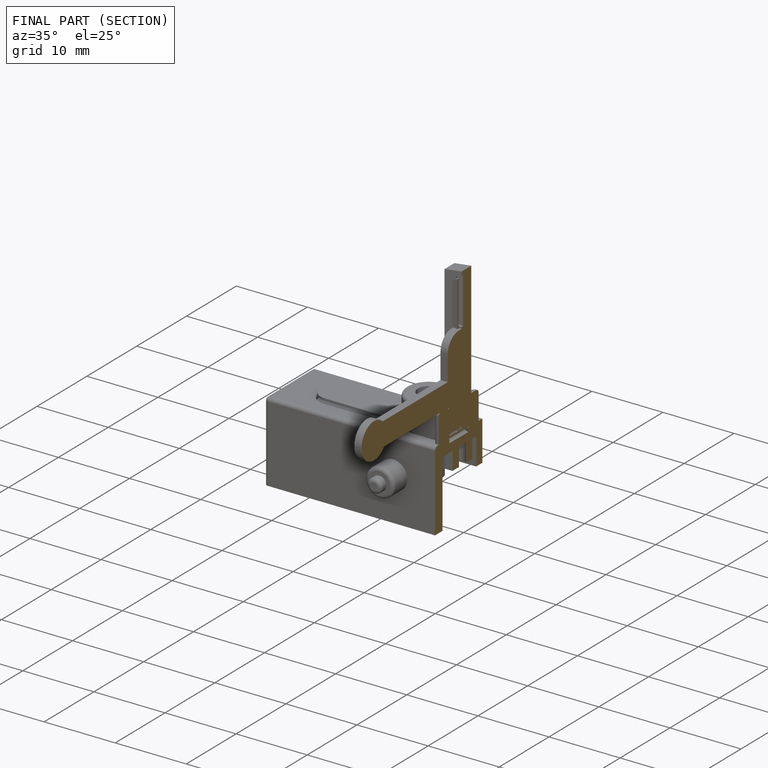
[diagram: finished part — half-section view (interior)]
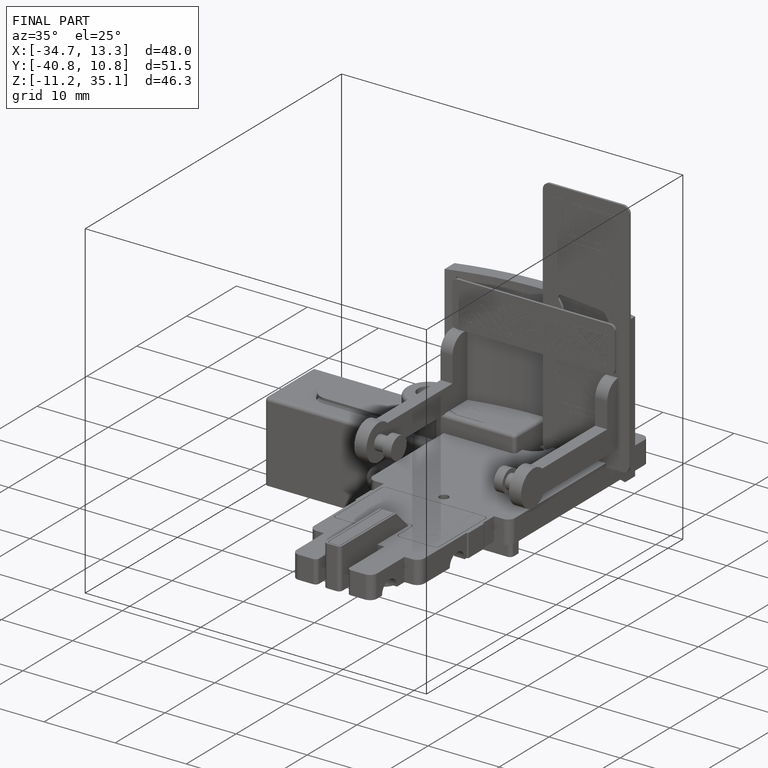
[diagram: finished part — iso view with bounding-box wireframe]
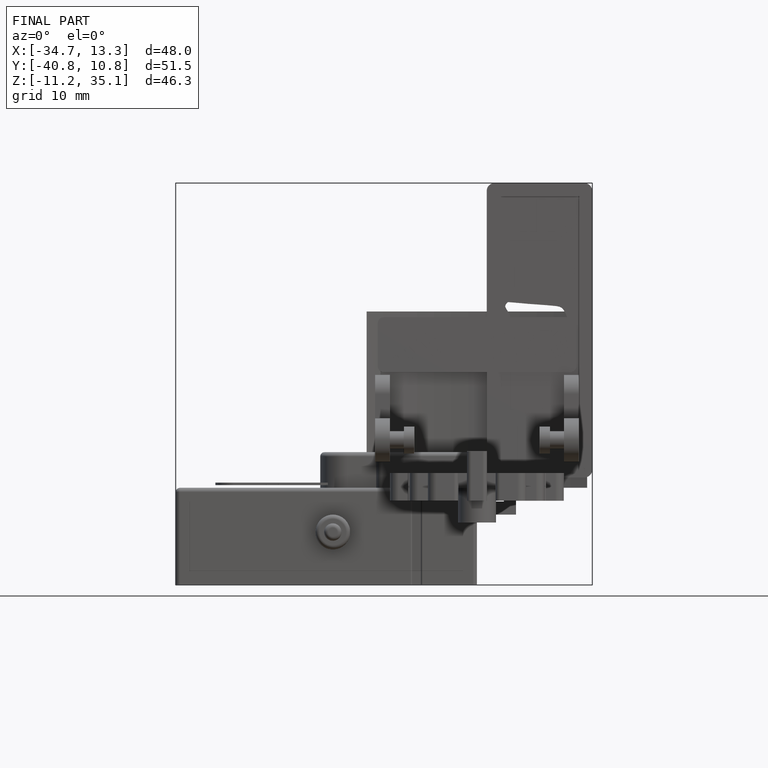
[diagram: finished part — front view with bounding-box wireframe]
